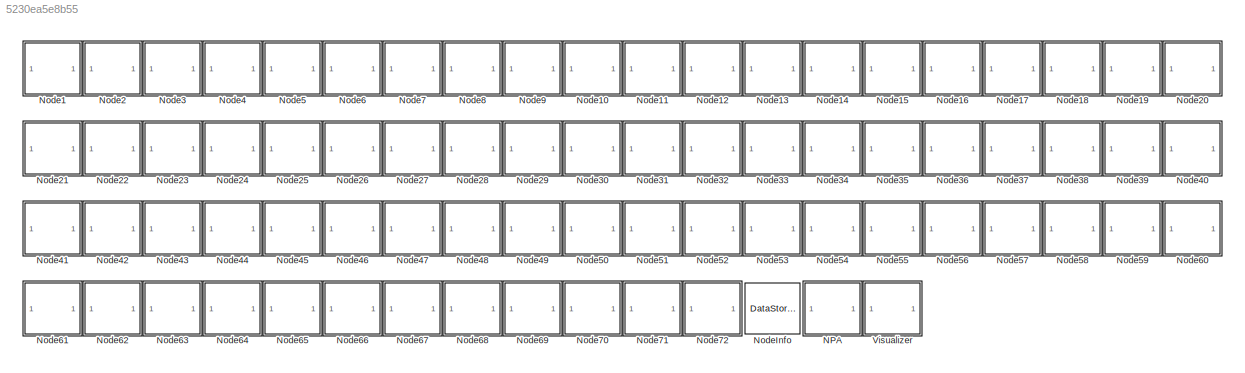
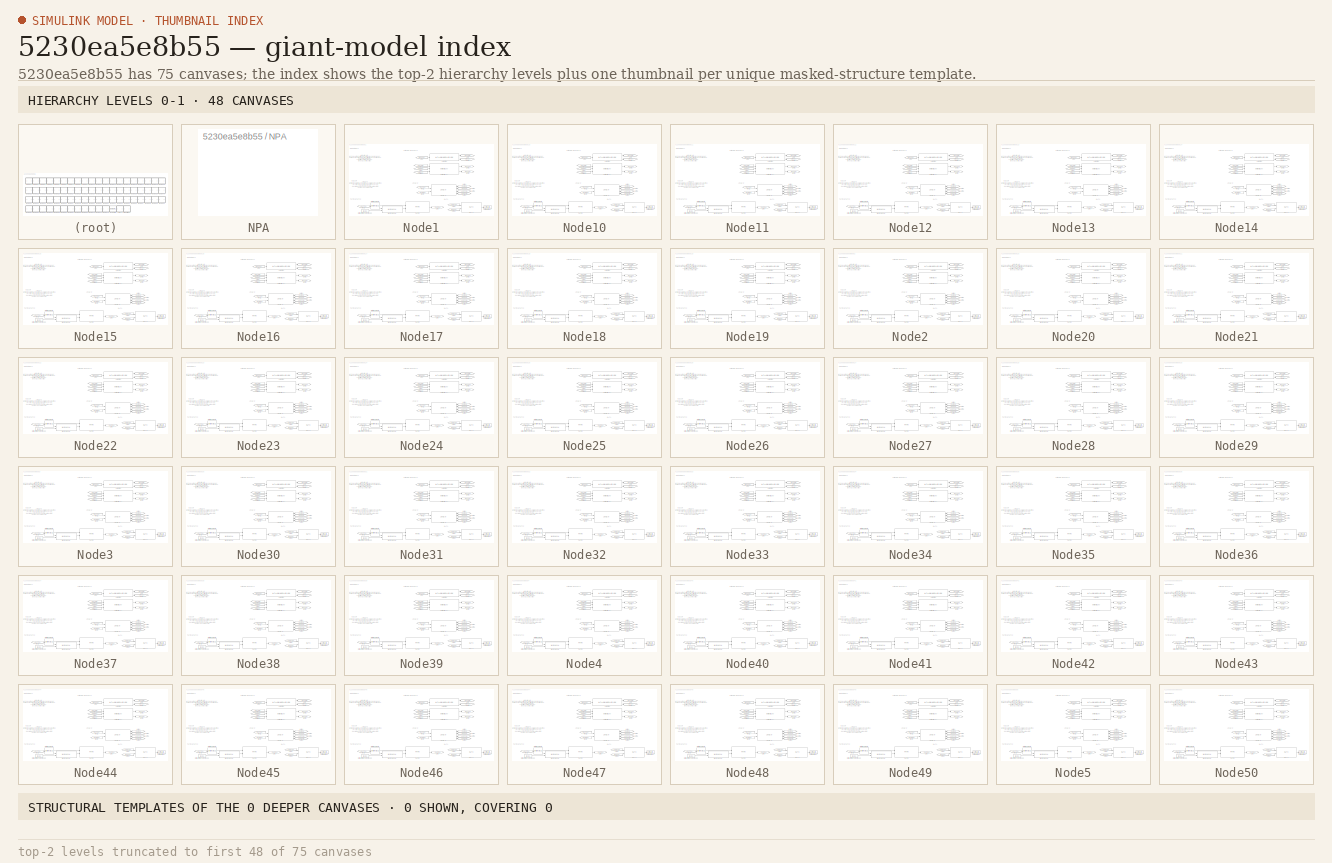
[diagram: thumbnail index - top-2 hierarchy levels (75 canvases (first 48 of 75 shown)) + 0 structural-template representatives of the remaining 0 canvases]
MODEL slx_5230ea5e8b55
KIND model
CONFIG AbsTol = auto
CONFIG EnableMultiTasking = off
CONFIG FixedStep = auto
CONFIG InitFcn = load('bleMeshBusObjects.mat');\nload('bleMeshDESNodePositions.mat');\nModelName = bdroot;\nhelperBLEMeshAssignNodeIDs(ModelName);\nNumberOfNodes = numel(helperBLEMeshGetNodeNamesList(ModelName));\n% Statistics\nopcode = 0; % For creating the table\nhelperBLEMeshUpdateStatistics(opcode);\nmeshNetworkGraph = helperBLEMeshVisualizeNetwork();\nrng('default');
CONFIG MaxStep = inf
CONFIG MinStep = auto
CONFIG PostLoadFcn = load('bleMeshBusObjects.mat');\nload('bleMeshDESNodePositions.mat');\nModelName = bdroot;\nhelperBLEMeshAssignNodeIDs(ModelName);\nNumberOfNodes = numel(helperBLEMeshGetNodeNamesList(ModelName));\n% Statistics\nopcode = 0; % For creating the table\nhelperBLEMeshUpdateStatistics(opcode);\nmeshNetworkGraph = helperBLEMeshVisualizeNetwork();
CONFIG RelTol = 1e-3
CONFIG SampleTimeConstraint = Unconstrained
CONFIG SolverName = VariableStepDiscrete
CONFIG StartFcn = if enableVisualization == 1\nmeshNetworkGraph.createNetwork();\nend
CONFIG StartTime = 0.0
CONFIG StopFcn = % Sort statisticsAtEachNode table\nlist = statisticsAtEachNode.Properties.RowNames;\nnodeNum = cellfun(@(x)sscanf(x,'Node%d'), list);\n[~,sortIdx] = sort(nodeNum);\nstatisticsAtEachNode = statisticsAtEachNode(sortIdx, :);\n\n% Fill node statisticsAtEachNode in a cell array as input to visualization object\nnodeStatistics = cell(1, NumberOfNodes);\nfor idx = 1:NumberOfNodes\n    stats = {\n        'Node Type...<+1389ch>
CONFIG StopTime = 5
BLOCK [SubSystem] NPA
  MaskHideContents = on
  Ports = []
  Priority = 100
  RequestExecContextInheritance = off
  Tag = a
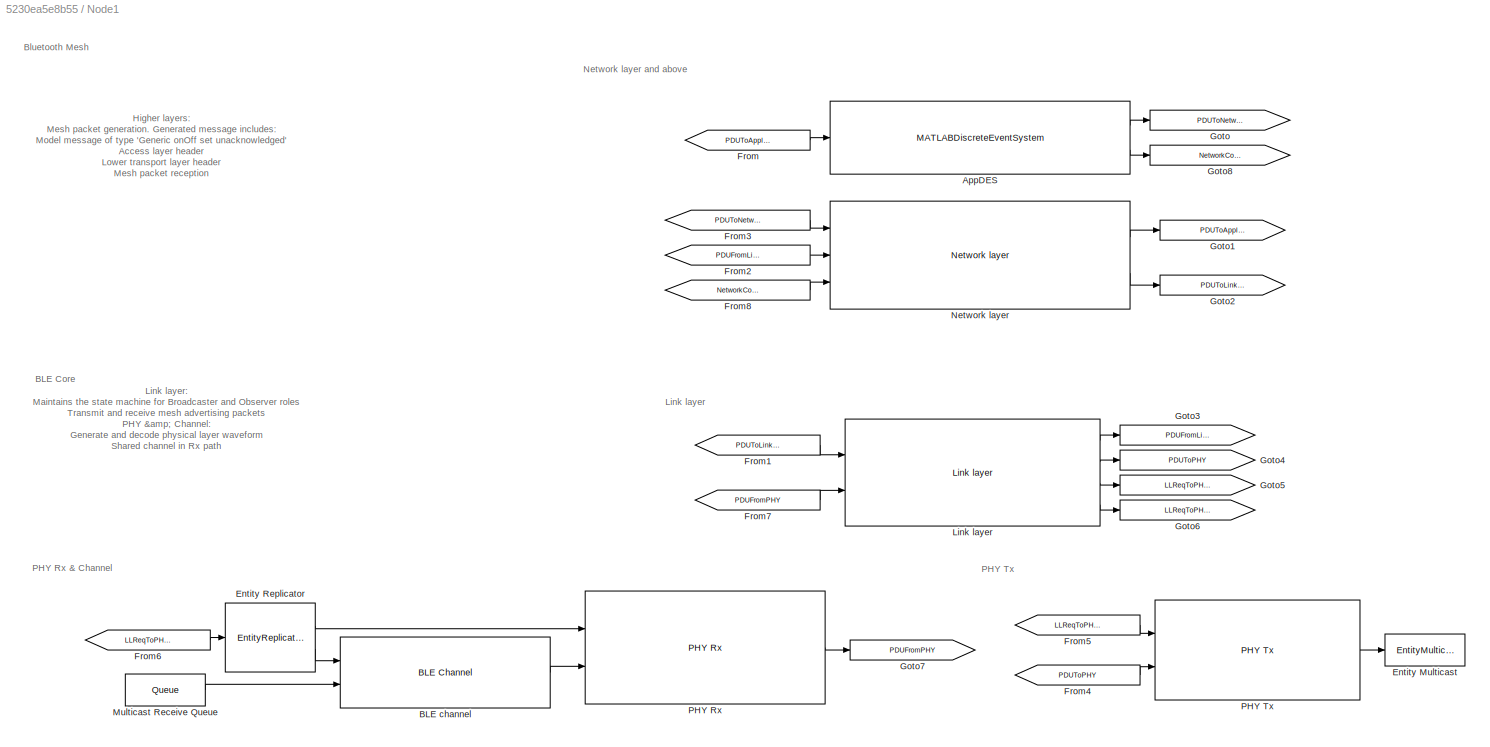
BLOCK [SubSystem] Node1
  Ports = []
  RequestExecContextInheritance = off
BLOCK [MATLABDiscreteEventSystem] Node1/AppDES
  ApplicationState = 0
  DestinationNode = 1
  InputPortMessageModes = m
  MaskDisplay = disp('AppDES');\nport_label('input',1,'transportPDUIn');\nport_label('output',1,'transportPDUOut');\nport_label('output',2,'networkConfig');
  MaskType = AppDES
  NodeID = 1
  OutputPortMessageModes = m,m
  Ports = [1, 2]
  SimulateUsing = Code generation
  SourceRate = 1
  System = AppDES
  TTL = 127
  TotalPackets = 1
BLOCK [Reference] Node1/BLE channel  REF=BLEMeshLib/BLE Channel
  Ports = [2, 1]
  SourceBlock = BLEMeshLib/BLE Channel
  SourceType = helperBLEChannelDES
BLOCK [EntityMulticast] Node1/Entity Multicast
  InputPortMessageModes = m
  MulticastTag = channel
BLOCK [EntityReplicator] Node1/Entity Replicator
  InputPortMap = u0
  InputPortMessageModes = m
  OutputPortMap = o0,o1
  OutputPortMessageModes = m,m
  Ports = [1, 2]
BLOCK [From] Node1/From
  GotoTag = PDUToApplication
BLOCK [From] Node1/From1
  GotoTag = PDUToLinkLayer
BLOCK [From] Node1/From2
  GotoTag = PDUFromLinkLayer
BLOCK [From] Node1/From3
  GotoTag = PDUToNetworkLayer
BLOCK [From] Node1/From4
  GotoTag = PDUToPHY
BLOCK [From] Node1/From5
  GotoTag = LLReqToPHYTx
BLOCK [From] Node1/From6
  GotoTag = LLReqToPHYRx
BLOCK [From] Node1/From7
  GotoTag = PDUFromPHY
BLOCK [From] Node1/From8
  GotoTag = NetworkConfig
BLOCK [Goto] Node1/Goto
  GotoTag = PDUToNetworkLayer
BLOCK [Goto] Node1/Goto1
  GotoTag = PDUToApplication
BLOCK [Goto] Node1/Goto2
  GotoTag = PDUToLinkLayer
BLOCK [Goto] Node1/Goto3
  GotoTag = PDUFromLinkLayer
BLOCK [Goto] Node1/Goto4
  GotoTag = PDUToPHY
BLOCK [Goto] Node1/Goto5
  GotoTag = LLReqToPHYTx
BLOCK [Goto] Node1/Goto6
  GotoTag = LLReqToPHYRx
BLOCK [Goto] Node1/Goto7
  GotoTag = PDUFromPHY
BLOCK [Goto] Node1/Goto8
  GotoTag = NetworkConfig
BLOCK [Reference] Node1/Link layer  REF=BLEMeshLib/Link layer
  Ports = [2, 4]
  SourceBlock = BLEMeshLib/Link layer
  SourceType = helperBLEMeshLinkLayerDES
BLOCK [Queue] Node1/Multicast Receive Queue
  EntityArrivalSource = Multicast
  MulticastTag = channel
  NameLocation = top
  OutputPortMap = o5
  OutputPortMessageModes = m
  Ports = [0, 1]
BLOCK [Reference] Node1/Network layer  REF=BLEMeshLib/Network layer
  Ports = [3, 2]
  SourceBlock = BLEMeshLib/Network layer
  SourceType = helperBLEMeshNetworkLayerDES
BLOCK [Reference] Node1/PHY Rx  REF=BLEMeshLib/PHY Rx
  Ports = [2, 1]
  SourceBlock = BLEMeshLib/PHY Rx
  SourceType = helperBLEPHYRxDES
BLOCK [Reference] Node1/PHY Tx  REF=BLEMeshLib/PHY Tx
  Ports = [2, 1]
  SourceBlock = BLEMeshLib/PHY Tx
  SourceType = helperBLEPHYTxDES
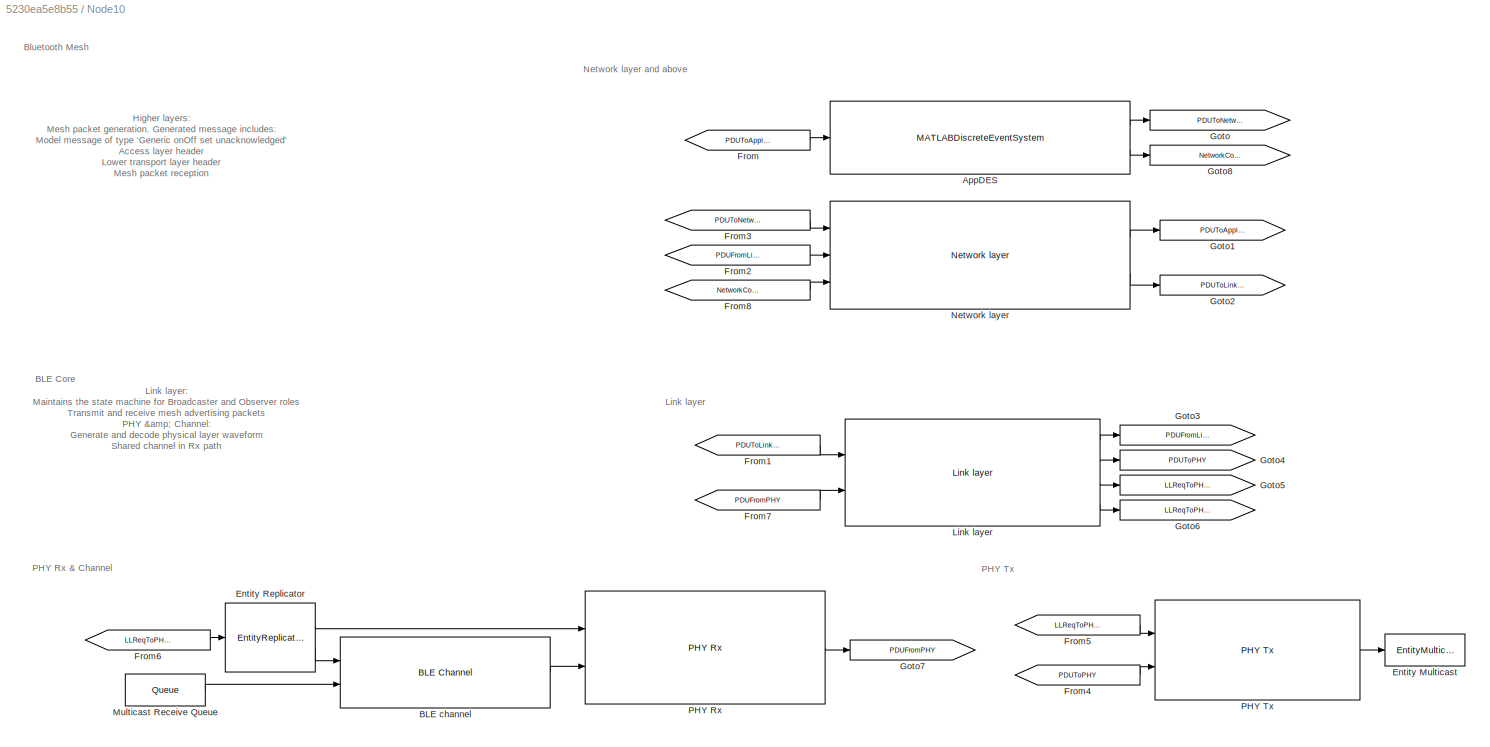
BLOCK [SubSystem] Node10
  Ports = []
  RequestExecContextInheritance = off
BLOCK [MATLABDiscreteEventSystem] Node10/AppDES
  ApplicationState = 0
  DestinationNode = 1
  InputPortMessageModes = m
  MaskDisplay = disp('AppDES');\nport_label('input',1,'transportPDUIn');\nport_label('output',1,'transportPDUOut');\nport_label('output',2,'networkConfig');
  MaskType = AppDES
  NodeID = 1
  OutputPortMessageModes = m,m
  Ports = [1, 2]
  SimulateUsing = Code generation
  SourceRate = 1
  System = AppDES
  TTL = 127
  TotalPackets = 1
BLOCK [Reference] Node10/BLE channel  REF=BLEMeshLib/BLE Channel
  Ports = [2, 1]
  SourceBlock = BLEMeshLib/BLE Channel
  SourceType = helperBLEChannelDES
BLOCK [EntityMulticast] Node10/Entity Multicast
  InputPortMessageModes = m
  MulticastTag = channel
BLOCK [EntityReplicator] Node10/Entity Replicator
  InputPortMap = u0
  InputPortMessageModes = m
  OutputPortMap = o0,o1
  OutputPortMessageModes = m,m
  Ports = [1, 2]
BLOCK [From] Node10/From
  GotoTag = PDUToApplication
BLOCK [From] Node10/From1
  GotoTag = PDUToLinkLayer
BLOCK [From] Node10/From2
  GotoTag = PDUFromLinkLayer
BLOCK [From] Node10/From3
  GotoTag = PDUToNetworkLayer
BLOCK [From] Node10/From4
  GotoTag = PDUToPHY
BLOCK [From] Node10/From5
  GotoTag = LLReqToPHYTx
BLOCK [From] Node10/From6
  GotoTag = LLReqToPHYRx
BLOCK [From] Node10/From7
  GotoTag = PDUFromPHY
BLOCK [From] Node10/From8
  GotoTag = NetworkConfig
BLOCK [Goto] Node10/Goto
  GotoTag = PDUToNetworkLayer
BLOCK [Goto] Node10/Goto1
  GotoTag = PDUToApplication
BLOCK [Goto] Node10/Goto2
  GotoTag = PDUToLinkLayer
BLOCK [Goto] Node10/Goto3
  GotoTag = PDUFromLinkLayer
BLOCK [Goto] Node10/Goto4
  GotoTag = PDUToPHY
BLOCK [Goto] Node10/Goto5
  GotoTag = LLReqToPHYTx
BLOCK [Goto] Node10/Goto6
  GotoTag = LLReqToPHYRx
BLOCK [Goto] Node10/Goto7
  GotoTag = PDUFromPHY
BLOCK [Goto] Node10/Goto8
  GotoTag = NetworkConfig
BLOCK [Reference] Node10/Link layer  REF=BLEMeshLib/Link layer
  Ports = [2, 4]
  SourceBlock = BLEMeshLib/Link layer
  SourceType = helperBLEMeshLinkLayerDES
BLOCK [Queue] Node10/Multicast Receive Queue
  EntityArrivalSource = Multicast
  MulticastTag = channel
  NameLocation = top
  OutputPortMap = o5
  OutputPortMessageModes = m
  Ports = [0, 1]
BLOCK [Reference] Node10/Network layer  REF=BLEMeshLib/Network layer
  Ports = [3, 2]
  SourceBlock = BLEMeshLib/Network layer
  SourceType = helperBLEMeshNetworkLayerDES
BLOCK [Reference] Node10/PHY Rx  REF=BLEMeshLib/PHY Rx
  Ports = [2, 1]
  SourceBlock = BLEMeshLib/PHY Rx
  SourceType = helperBLEPHYRxDES
BLOCK [Reference] Node10/PHY Tx  REF=BLEMeshLib/PHY Tx
  Ports = [2, 1]
  SourceBlock = BLEMeshLib/PHY Tx
  SourceType = helperBLEPHYTxDES
BLOCK [SubSystem] Node11
  Ports = []
  RequestExecContextInheritance = off
BLOCK [MATLABDiscreteEventSystem] Node11/AppDES
  ApplicationState = 0
  DestinationNode = 1
  InputPortMessageModes = m
  MaskDisplay = disp('AppDES');\nport_label('input',1,'transportPDUIn');\nport_label('output',1,'transportPDUOut');\nport_label('output',2,'networkConfig');
  MaskType = AppDES
  NodeID = 1
  OutputPortMessageModes = m,m
  Ports = [1, 2]
  SimulateUsing = Code generation
  SourceRate = 1
  System = AppDES
  TTL = 127
  TotalPackets = 1
BLOCK [Reference] Node11/BLE channel  REF=BLEMeshLib/BLE Channel
  Ports = [2, 1]
  SourceBlock = BLEMeshLib/BLE Channel
  SourceType = helperBLEChannelDES
BLOCK [EntityMulticast] Node11/Entity Multicast
  InputPortMessageModes = m
  MulticastTag = channel
BLOCK [EntityReplicator] Node11/Entity Replicator
  InputPortMap = u0
  InputPortMessageModes = m
  OutputPortMap = o0,o1
  OutputPortMessageModes = m,m
  Ports = [1, 2]
BLOCK [From] Node11/From
  GotoTag = PDUToApplication
BLOCK [From] Node11/From1
  GotoTag = PDUToLinkLayer
BLOCK [From] Node11/From2
  GotoTag = PDUFromLinkLayer
BLOCK [From] Node11/From3
  GotoTag = PDUToNetworkLayer
BLOCK [From] Node11/From4
  GotoTag = PDUToPHY
BLOCK [From] Node11/From5
  GotoTag = LLReqToPHYTx
BLOCK [From] Node11/From6
  GotoTag = LLReqToPHYRx
BLOCK [From] Node11/From7
  GotoTag = PDUFromPHY
BLOCK [From] Node11/From8
  GotoTag = NetworkConfig
BLOCK [Goto] Node11/Goto
  GotoTag = PDUToNetworkLayer
BLOCK [Goto] Node11/Goto1
  GotoTag = PDUToApplication
BLOCK [Goto] Node11/Goto2
  GotoTag = PDUToLinkLayer
BLOCK [Goto] Node11/Goto3
  GotoTag = PDUFromLinkLayer
BLOCK [Goto] Node11/Goto4
  GotoTag = PDUToPHY
BLOCK [Goto] Node11/Goto5
  GotoTag = LLReqToPHYTx
BLOCK [Goto] Node11/Goto6
  GotoTag = LLReqToPHYRx
BLOCK [Goto] Node11/Goto7
  GotoTag = PDUFromPHY
BLOCK [Goto] Node11/Goto8
  GotoTag = NetworkConfig
BLOCK [Reference] Node11/Link layer  REF=BLEMeshLib/Link layer
  Ports = [2, 4]
  SourceBlock = BLEMeshLib/Link layer
  SourceType = helperBLEMeshLinkLayerDES
BLOCK [Queue] Node11/Multicast Receive Queue
  EntityArrivalSource = Multicast
  MulticastTag = channel
  NameLocation = top
  OutputPortMap = o5
  OutputPortMessageModes = m
  Ports = [0, 1]
BLOCK [Reference] Node11/Network layer  REF=BLEMeshLib/Network layer
  Ports = [3, 2]
  SourceBlock = BLEMeshLib/Network layer
  SourceType = helperBLEMeshNetworkLayerDES
BLOCK [Reference] Node11/PHY Rx  REF=BLEMeshLib/PHY Rx
  Ports = [2, 1]
  SourceBlock = BLEMeshLib/PHY Rx
  SourceType = helperBLEPHYRxDES
BLOCK [Reference] Node11/PHY Tx  REF=BLEMeshLib/PHY Tx
  Ports = [2, 1]
  SourceBlock = BLEMeshLib/PHY Tx
  SourceType = helperBLEPHYTxDES
BLOCK [SubSystem] Node12
  Ports = []
  RequestExecContextInheritance = off
BLOCK [MATLABDiscreteEventSystem] Node12/AppDES
  ApplicationState = 0
  DestinationNode = 1
  InputPortMessageModes = m
  MaskDisplay = disp('AppDES');\nport_label('input',1,'transportPDUIn');\nport_label('output',1,'transportPDUOut');\nport_label('output',2,'networkConfig');
  MaskType = AppDES
  NodeID = 1
  OutputPortMessageModes = m,m
  Ports = [1, 2]
  SimulateUsing = Code generation
  SourceRate = 1
  System = AppDES
  TTL = 127
  TotalPackets = 1
BLOCK [Reference] Node12/BLE channel  REF=BLEMeshLib/BLE Channel
  Ports = [2, 1]
  SourceBlock = BLEMeshLib/BLE Channel
  SourceType = helperBLEChannelDES
BLOCK [EntityMulticast] Node12/Entity Multicast
  InputPortMessageModes = m
  MulticastTag = channel
BLOCK [EntityReplicator] Node12/Entity Replicator
  InputPortMap = u0
  InputPortMessageModes = m
  OutputPortMap = o0,o1
  OutputPortMessageModes = m,m
  Ports = [1, 2]
BLOCK [From] Node12/From
  GotoTag = PDUToApplication
BLOCK [From] Node12/From1
  GotoTag = PDUToLinkLayer
BLOCK [From] Node12/From2
  GotoTag = PDUFromLinkLayer
BLOCK [From] Node12/From3
  GotoTag = PDUToNetworkLayer
BLOCK [From] Node12/From4
  GotoTag = PDUToPHY
BLOCK [From] Node12/From5
  GotoTag = LLReqToPHYTx
BLOCK [From] Node12/From6
  GotoTag = LLReqToPHYRx
BLOCK [From] Node12/From7
  GotoTag = PDUFromPHY
BLOCK [From] Node12/From8
  GotoTag = NetworkConfig
BLOCK [Goto] Node12/Goto
  GotoTag = PDUToNetworkLayer
BLOCK [Goto] Node12/Goto1
  GotoTag = PDUToApplication
BLOCK [Goto] Node12/Goto2
  GotoTag = PDUToLinkLayer
BLOCK [Goto] Node12/Goto3
  GotoTag = PDUFromLinkLayer
BLOCK [Goto] Node12/Goto4
  GotoTag = PDUToPHY
BLOCK [Goto] Node12/Goto5
  GotoTag = LLReqToPHYTx
BLOCK [Goto] Node12/Goto6
  GotoTag = LLReqToPHYRx
BLOCK [Goto] Node12/Goto7
  GotoTag = PDUFromPHY
BLOCK [Goto] Node12/Goto8
  GotoTag = NetworkConfig
BLOCK [Reference] Node12/Link layer  REF=BLEMeshLib/Link layer
  Ports = [2, 4]
  SourceBlock = BLEMeshLib/Link layer
  SourceType = helperBLEMeshLinkLayerDES
BLOCK [Queue] Node12/Multicast Receive Queue
  EntityArrivalSource = Multicast
  MulticastTag = channel
  NameLocation = top
  OutputPortMap = o5
  OutputPortMessageModes = m
  Ports = [0, 1]
BLOCK [Reference] Node12/Network layer  REF=BLEMeshLib/Network layer
  Ports = [3, 2]
  SourceBlock = BLEMeshLib/Network layer
  SourceType = helperBLEMeshNetworkLayerDES
BLOCK [Reference] Node12/PHY Rx  REF=BLEMeshLib/PHY Rx
  Ports = [2, 1]
  SourceBlock = BLEMeshLib/PHY Rx
  SourceType = helperBLEPHYRxDES
BLOCK [Reference] Node12/PHY Tx  REF=BLEMeshLib/PHY Tx
  Ports = [2, 1]
  SourceBlock = BLEMeshLib/PHY Tx
  SourceType = helperBLEPHYTxDES
BLOCK [SubSystem] Node13
  Ports = []
  RequestExecContextInheritance = off
BLOCK [MATLABDiscreteEventSystem] Node13/AppDES
  ApplicationState = 0
  DestinationNode = 1
  InputPortMessageModes = m
  MaskDisplay = disp('AppDES');\nport_label('input',1,'transportPDUIn');\nport_label('output',1,'transportPDUOut');\nport_label('output',2,'networkConfig');
  MaskType = AppDES
  NodeID = 1
  OutputPortMessageModes = m,m
  Ports = [1, 2]
  SimulateUsing = Code generation
  SourceRate = 1
  System = AppDES
  TTL = 127
  TotalPackets = 1
BLOCK [Reference] Node13/BLE channel  REF=BLEMeshLib/BLE Channel
  Ports = [2, 1]
  SourceBlock = BLEMeshLib/BLE Channel
  SourceType = helperBLEChannelDES
BLOCK [EntityMulticast] Node13/Entity Multicast
  InputPortMessageModes = m
  MulticastTag = channel
BLOCK [EntityReplicator] Node13/Entity Replicator
  InputPortMap = u0
  InputPortMessageModes = m
  OutputPortMap = o0,o1
  OutputPortMessageModes = m,m
  Ports = [1, 2]
BLOCK [From] Node13/From
  GotoTag = PDUToApplication
BLOCK [From] Node13/From1
  GotoTag = PDUToLinkLayer
BLOCK [From] Node13/From2
  GotoTag = PDUFromLinkLayer
BLOCK [From] Node13/From3
  GotoTag = PDUToNetworkLayer
BLOCK [From] Node13/From4
  GotoTag = PDUToPHY
BLOCK [From] Node13/From5
  GotoTag = LLReqToPHYTx
BLOCK [From] Node13/From6
  GotoTag = LLReqToPHYRx
BLOCK [From] Node13/From7
  GotoTag = PDUFromPHY
BLOCK [From] Node13/From8
  GotoTag = NetworkConfig
BLOCK [Goto] Node13/Goto
  GotoTag = PDUToNetworkLayer
BLOCK [Goto] Node13/Goto1
  GotoTag = PDUToApplication
BLOCK [Goto] Node13/Goto2
  GotoTag = PDUToLinkLayer
BLOCK [Goto] Node13/Goto3
  GotoTag = PDUFromLinkLayer
BLOCK [Goto] Node13/Goto4
  GotoTag = PDUToPHY
BLOCK [Goto] Node13/Goto5
  GotoTag = LLReqToPHYTx
BLOCK [Goto] Node13/Goto6
  GotoTag = LLReqToPHYRx
BLOCK [Goto] Node13/Goto7
  GotoTag = PDUFromPHY
BLOCK [Goto] Node13/Goto8
  GotoTag = NetworkConfig
BLOCK [Reference] Node13/Link layer  REF=BLEMeshLib/Link layer
  Ports = [2, 4]
  SourceBlock = BLEMeshLib/Link layer
  SourceType = helperBLEMeshLinkLayerDES
BLOCK [Queue] Node13/Multicast Receive Queue
  EntityArrivalSource = Multicast
  MulticastTag = channel
  NameLocation = top
  OutputPortMap = o5
  OutputPortMessageModes = m
  Ports = [0, 1]
BLOCK [Reference] Node13/Network layer  REF=BLEMeshLib/Network layer
  Ports = [3, 2]
  SourceBlock = BLEMeshLib/Network layer
  SourceType = helperBLEMeshNetworkLayerDES
BLOCK [Reference] Node13/PHY Rx  REF=BLEMeshLib/PHY Rx
  Ports = [2, 1]
  SourceBlock = BLEMeshLib/PHY Rx
  SourceType = helperBLEPHYRxDES
BLOCK [Reference] Node13/PHY Tx  REF=BLEMeshLib/PHY Tx
  Ports = [2, 1]
  SourceBlock = BLEMeshLib/PHY Tx
  SourceType = helperBLEPHYTxDES
BLOCK [SubSystem] Node14
  Ports = []
  RequestExecContextInheritance = off
BLOCK [MATLABDiscreteEventSystem] Node14/AppDES
  ApplicationState = 0
  DestinationNode = 1
  InputPortMessageModes = m
  MaskDisplay = disp('AppDES');\nport_label('input',1,'transportPDUIn');\nport_label('output',1,'transportPDUOut');\nport_label('output',2,'networkConfig');
  MaskType = AppDES
  NodeID = 1
  OutputPortMessageModes = m,m
  Ports = [1, 2]
  SimulateUsing = Code generation
  SourceRate = 1
  System = AppDES
  TTL = 127
  TotalPackets = 1
BLOCK [Reference] Node14/BLE channel  REF=BLEMeshLib/BLE Channel
  Ports = [2, 1]
  SourceBlock = BLEMeshLib/BLE Channel
  SourceType = helperBLEChannelDES
BLOCK [EntityMulticast] Node14/Entity Multicast
  InputPortMessageModes = m
  MulticastTag = channel
BLOCK [EntityReplicator] Node14/Entity Replicator
  InputPortMap = u0
  InputPortMessageModes = m
  OutputPortMap = o0,o1
  OutputPortMessageModes = m,m
  Ports = [1, 2]
BLOCK [From] Node14/From
  GotoTag = PDUToApplication
BLOCK [From] Node14/From1
  GotoTag = PDUToLinkLayer
BLOCK [From] Node14/From2
  GotoTag = PDUFromLinkLayer
BLOCK [From] Node14/From3
  GotoTag = PDUToNetworkLayer
BLOCK [From] Node14/From4
  GotoTag = PDUToPHY
BLOCK [From] Node14/From5
  GotoTag = LLReqToPHYTx
BLOCK [From] Node14/From6
  GotoTag = LLReqToPHYRx
BLOCK [From] Node14/From7
  GotoTag = PDUFromPHY
BLOCK [From] Node14/From8
  GotoTag = NetworkConfig
BLOCK [Goto] Node14/Goto
  GotoTag = PDUToNetworkLayer
BLOCK [Goto] Node14/Goto1
  GotoTag = PDUToApplication
BLOCK [Goto] Node14/Goto2
  GotoTag = PDUToLinkLayer
BLOCK [Goto] Node14/Goto3
  GotoTag = PDUFromLinkLayer
BLOCK [Goto] Node14/Goto4
  GotoTag = PDUToPHY
BLOCK [Goto] Node14/Goto5
  GotoTag = LLReqToPHYTx
BLOCK [Goto] Node14/Goto6
  GotoTag = LLReqToPHYRx
BLOCK [Goto] Node14/Goto7
  GotoTag = PDUFromPHY
BLOCK [Goto] Node14/Goto8
  GotoTag = NetworkConfig
BLOCK [Reference] Node14/Link layer  REF=BLEMeshLib/Link layer
  Ports = [2, 4]
  SourceBlock = BLEMeshLib/Link layer
  SourceType = helperBLEMeshLinkLayerDES
BLOCK [Queue] Node14/Multicast Receive Queue
  EntityArrivalSource = Multicast
  MulticastTag = channel
  NameLocation = top
  OutputPortMap = o5
  OutputPortMessageModes = m
  Ports = [0, 1]
BLOCK [Reference] Node14/Network layer  REF=BLEMeshLib/Network layer
  Ports = [3, 2]
  SourceBlock = BLEMeshLib/Network layer
  SourceType = helperBLEMeshNetworkLayerDES
BLOCK [Reference] Node14/PHY Rx  REF=BLEMeshLib/PHY Rx
  Ports = [2, 1]
  SourceBlock = BLEMeshLib/PHY Rx
  SourceType = helperBLEPHYRxDES
BLOCK [Reference] Node14/PHY Tx  REF=BLEMeshLib/PHY Tx
  Ports = [2, 1]
  SourceBlock = BLEMeshLib/PHY Tx
  SourceType = helperBLEPHYTxDES
BLOCK [SubSystem] Node15
  Ports = []
  RequestExecContextInheritance = off
BLOCK [MATLABDiscreteEventSystem] Node15/AppDES
  ApplicationState = 0
  DestinationNode = 1
  InputPortMessageModes = m
  MaskDisplay = disp('AppDES');\nport_label('input',1,'transportPDUIn');\nport_label('output',1,'transportPDUOut');\nport_label('output',2,'networkConfig');
  MaskType = AppDES
  NodeID = 1
  OutputPortMessageModes = m,m
  Ports = [1, 2]
  SimulateUsing = Code generation
  SourceRate = 1
  System = AppDES
  TTL = 127
  TotalPackets = 1
BLOCK [Reference] Node15/BLE channel  REF=BLEMeshLib/BLE Channel
  Ports = [2, 1]
  SourceBlock = BLEMeshLib/BLE Channel
  SourceType = helperBLEChannelDES
BLOCK [EntityMulticast] Node15/Entity Multicast
  InputPortMessageModes = m
  MulticastTag = channel
BLOCK [EntityReplicator] Node15/Entity Replicator
  InputPortMap = u0
  InputPortMessageModes = m
  OutputPortMap = o0,o1
  OutputPortMessageModes = m,m
  Ports = [1, 2]
BLOCK [From] Node15/From
  GotoTag = PDUToApplication
BLOCK [From] Node15/From1
  GotoTag = PDUToLinkLayer
BLOCK [From] Node15/From2
  GotoTag = PDUFromLinkLayer
BLOCK [From] Node15/From3
  GotoTag = PDUToNetworkLayer
BLOCK [From] Node15/From4
  GotoTag = PDUToPHY
BLOCK [From] Node15/From5
  GotoTag = LLReqToPHYTx
BLOCK [From] Node15/From6
  GotoTag = LLReqToPHYRx
BLOCK [From] Node15/From7
  GotoTag = PDUFromPHY
BLOCK [From] Node15/From8
  GotoTag = NetworkConfig
BLOCK [Goto] Node15/Goto
  GotoTag = PDUToNetworkLayer
BLOCK [Goto] Node15/Goto1
  GotoTag = PDUToApplication
BLOCK [Goto] Node15/Goto2
  GotoTag = PDUToLinkLayer
BLOCK [Goto] Node15/Goto3
  GotoTag = PDUFromLinkLayer
BLOCK [Goto] Node15/Goto4
  GotoTag = PDUToPHY
BLOCK [Goto] Node15/Goto5
  GotoTag = LLReqToPHYTx
BLOCK [Goto] Node15/Goto6
  GotoTag = LLReqToPHYRx
BLOCK [Goto] Node15/Goto7
  GotoTag = PDUFromPHY
BLOCK [Goto] Node15/Goto8
  GotoTag = NetworkConfig
BLOCK [Reference] Node15/Link layer  REF=BLEMeshLib/Link layer
  Ports = [2, 4]
  SourceBlock = BLEMeshLib/Link layer
  SourceType = helperBLEMeshLinkLayerDES
BLOCK [Queue] Node15/Multicast Receive Queue
  EntityArrivalSource = Multicast
  MulticastTag = channel
  NameLocation = top
  OutputPortMap = o5
  OutputPortMessageModes = m
  Ports = [0, 1]
BLOCK [Reference] Node15/Network layer  REF=BLEMeshLib/Network layer
  Ports = [3, 2]
  SourceBlock = BLEMeshLib/Network layer
  SourceType = helperBLEMeshNetworkLayerDES
BLOCK [Reference] Node15/PHY Rx  REF=BLEMeshLib/PHY Rx
  Ports = [2, 1]
  SourceBlock = BLEMeshLib/PHY Rx
  SourceType = helperBLEPHYRxDES
BLOCK [Reference] Node15/PHY Tx  REF=BLEMeshLib/PHY Tx
  Ports = [2, 1]
  SourceBlock = BLEMeshLib/PHY Tx
  SourceType = helperBLEPHYTxDES
BLOCK [SubSystem] Node16
  Ports = []
  RequestExecContextInheritance = off
BLOCK [MATLABDiscreteEventSystem] Node16/AppDES
  ApplicationState = 0
  DestinationNode = 1
  InputPortMessageModes = m
  MaskDisplay = disp('AppDES');\nport_label('input',1,'transportPDUIn');\nport_label('output',1,'transportPDUOut');\nport_label('output',2,'networkConfig');
  MaskType = AppDES
  NodeID = 1
  OutputPortMessageModes = m,m
  Ports = [1, 2]
  SimulateUsing = Code generation
  SourceRate = 1
  System = AppDES
  TTL = 127
  TotalPackets = 1
BLOCK [Reference] Node16/BLE channel  REF=BLEMeshLib/BLE Channel
  Ports = [2, 1]
  SourceBlock = BLEMeshLib/BLE Channel
  SourceType = helperBLEChannelDES
BLOCK [EntityMulticast] Node16/Entity Multicast
  InputPortMessageModes = m
  MulticastTag = channel
BLOCK [EntityReplicator] Node16/Entity Replicator
  InputPortMap = u0
  InputPortMessageModes = m
  OutputPortMap = o0,o1
  OutputPortMessageModes = m,m
  Ports = [1, 2]
BLOCK [From] Node16/From
  GotoTag = PDUToApplication
BLOCK [From] Node16/From1
  GotoTag = PDUToLinkLayer
BLOCK [From] Node16/From2
  GotoTag = PDUFromLinkLayer
BLOCK [From] Node16/From3
  GotoTag = PDUToNetworkLayer
BLOCK [From] Node16/From4
  GotoTag = PDUToPHY
BLOCK [From] Node16/From5
  GotoTag = LLReqToPHYTx
BLOCK [From] Node16/From6
  GotoTag = LLReqToPHYRx
BLOCK [From] Node16/From7
  GotoTag = PDUFromPHY
BLOCK [From] Node16/From8
  GotoTag = NetworkConfig
BLOCK [Goto] Node16/Goto
  GotoTag = PDUToNetworkLayer
BLOCK [Goto] Node16/Goto1
  GotoTag = PDUToApplication
BLOCK [Goto] Node16/Goto2
  GotoTag = PDUToLinkLayer
BLOCK [Goto] Node16/Goto3
  GotoTag = PDUFromLinkLayer
BLOCK [Goto] Node16/Goto4
  GotoTag = PDUToPHY
BLOCK [Goto] Node16/Goto5
  GotoTag = LLReqToPHYTx
BLOCK [Goto] Node16/Goto6
  GotoTag = LLReqToPHYRx
BLOCK [Goto] Node16/Goto7
  GotoTag = PDUFromPHY
BLOCK [Goto] Node16/Goto8
  GotoTag = NetworkConfig
BLOCK [Reference] Node16/Link layer  REF=BLEMeshLib/Link layer
  Ports = [2, 4]
  SourceBlock = BLEMeshLib/Link layer
  SourceType = helperBLEMeshLinkLayerDES
BLOCK [Queue] Node16/Multicast Receive Queue
  EntityArrivalSource = Multicast
  MulticastTag = channel
  NameLocation = top
  OutputPortMap = o5
  OutputPortMessageModes = m
  Ports = [0, 1]
BLOCK [Reference] Node16/Network layer  REF=BLEMeshLib/Network layer
  Ports = [3, 2]
  SourceBlock = BLEMeshLib/Network layer
  SourceType = helperBLEMeshNetworkLayerDES
BLOCK [Reference] Node16/PHY Rx  REF=BLEMeshLib/PHY Rx
  Ports = [2, 1]
  SourceBlock = BLEMeshLib/PHY Rx
  SourceType = helperBLEPHYRxDES
BLOCK [Reference] Node16/PHY Tx  REF=BLEMeshLib/PHY Tx
  Ports = [2, 1]
  SourceBlock = BLEMeshLib/PHY Tx
  SourceType = helperBLEPHYTxDES
BLOCK [SubSystem] Node17
  Ports = []
  RequestExecContextInheritance = off
BLOCK [MATLABDiscreteEventSystem] Node17/AppDES
  ApplicationState = 0
  DestinationNode = 1
  InputPortMessageModes = m
  MaskDisplay = disp('AppDES');\nport_label('input',1,'transportPDUIn');\nport_label('output',1,'transportPDUOut');\nport_label('output',2,'networkConfig');
  MaskType = AppDES
  NodeID = 1
  OutputPortMessageModes = m,m
  Ports = [1, 2]
  SimulateUsing = Code generation
  SourceRate = 1
  System = AppDES
  TTL = 127
  TotalPackets = 1
BLOCK [Reference] Node17/BLE channel  REF=BLEMeshLib/BLE Channel
  Ports = [2, 1]
  SourceBlock = BLEMeshLib/BLE Channel
  SourceType = helperBLEChannelDES
BLOCK [EntityMulticast] Node17/Entity Multicast
  InputPortMessageModes = m
  MulticastTag = channel
BLOCK [EntityReplicator] Node17/Entity Replicator
  InputPortMap = u0
  InputPortMessageModes = m
  OutputPortMap = o0,o1
  OutputPortMessageModes = m,m
  Ports = [1, 2]
BLOCK [From] Node17/From
  GotoTag = PDUToApplication
BLOCK [From] Node17/From1
  GotoTag = PDUToLinkLayer
BLOCK [From] Node17/From2
  GotoTag = PDUFromLinkLayer
BLOCK [From] Node17/From3
  GotoTag = PDUToNetworkLayer
BLOCK [From] Node17/From4
  GotoTag = PDUToPHY
BLOCK [From] Node17/From5
  GotoTag = LLReqToPHYTx
BLOCK [From] Node17/From6
  GotoTag = LLReqToPHYRx
BLOCK [From] Node17/From7
  GotoTag = PDUFromPHY
BLOCK [From] Node17/From8
  GotoTag = NetworkConfig
BLOCK [Goto] Node17/Goto
  GotoTag = PDUToNetworkLayer
BLOCK [Goto] Node17/Goto1
  GotoTag = PDUToApplication
BLOCK [Goto] Node17/Goto2
  GotoTag = PDUToLinkLayer
BLOCK [Goto] Node17/Goto3
  GotoTag = PDUFromLinkLayer
BLOCK [Goto] Node17/Goto4
  GotoTag = PDUToPHY
BLOCK [Goto] Node17/Goto5
  GotoTag = LLReqToPHYTx
BLOCK [Goto] Node17/Goto6
  GotoTag = LLReqToPHYRx
BLOCK [Goto] Node17/Goto7
  GotoTag = PDUFromPHY
BLOCK [Goto] Node17/Goto8
  GotoTag = NetworkConfig
BLOCK [Reference] Node17/Link layer  REF=BLEMeshLib/Link layer
  Ports = [2, 4]
  SourceBlock = BLEMeshLib/Link layer
  SourceType = helperBLEMeshLinkLayerDES
BLOCK [Queue] Node17/Multicast Receive Queue
  EntityArrivalSource = Multicast
  MulticastTag = channel
  NameLocation = top
  OutputPortMap = o5
  OutputPortMessageModes = m
  Ports = [0, 1]
BLOCK [Reference] Node17/Network layer  REF=BLEMeshLib/Network layer
  Ports = [3, 2]
  SourceBlock = BLEMeshLib/Network layer
  SourceType = helperBLEMeshNetworkLayerDES
BLOCK [Reference] Node17/PHY Rx  REF=BLEMeshLib/PHY Rx
  Ports = [2, 1]
  SourceBlock = BLEMeshLib/PHY Rx
  SourceType = helperBLEPHYRxDES
BLOCK [Reference] Node17/PHY Tx  REF=BLEMeshLib/PHY Tx
  Ports = [2, 1]
  SourceBlock = BLEMeshLib/PHY Tx
  SourceType = helperBLEPHYTxDES
BLOCK [SubSystem] Node18
  Ports = []
  RequestExecContextInheritance = off
BLOCK [MATLABDiscreteEventSystem] Node18/AppDES
  ApplicationState = 0
  DestinationNode = 1
  InputPortMessageModes = m
  MaskDisplay = disp('AppDES');\nport_label('input',1,'transportPDUIn');\nport_label('output',1,'transportPDUOut');\nport_label('output',2,'networkConfig');
  MaskType = AppDES
  NodeID = 1
  OutputPortMessageModes = m,m
  Ports = [1, 2]
  SimulateUsing = Code generation
  SourceRate = 1
  System = AppDES
  TTL = 127
  TotalPackets = 1
BLOCK [Reference] Node18/BLE channel  REF=BLEMeshLib/BLE Channel
  Ports = [2, 1]
  SourceBlock = BLEMeshLib/BLE Channel
  SourceType = helperBLEChannelDES
BLOCK [EntityMulticast] Node18/Entity Multicast
  InputPortMessageModes = m
  MulticastTag = channel
BLOCK [EntityReplicator] Node18/Entity Replicator
  InputPortMap = u0
  InputPortMessageModes = m
  OutputPortMap = o0,o1
  OutputPortMessageModes = m,m
  Ports = [1, 2]
BLOCK [From] Node18/From
  GotoTag = PDUToApplication
BLOCK [From] Node18/From1
  GotoTag = PDUToLinkLayer
BLOCK [From] Node18/From2
  GotoTag = PDUFromLinkLayer
BLOCK [From] Node18/From3
  GotoTag = PDUToNetworkLayer
BLOCK [From] Node18/From4
  GotoTag = PDUToPHY
BLOCK [From] Node18/From5
  GotoTag = LLReqToPHYTx
BLOCK [From] Node18/From6
  GotoTag = LLReqToPHYRx
BLOCK [From] Node18/From7
  GotoTag = PDUFromPHY
BLOCK [From] Node18/From8
  GotoTag = NetworkConfig
BLOCK [Goto] Node18/Goto
  GotoTag = PDUToNetworkLayer
BLOCK [Goto] Node18/Goto1
  GotoTag = PDUToApplication
BLOCK [Goto] Node18/Goto2
  GotoTag = PDUToLinkLayer
BLOCK [Goto] Node18/Goto3
  GotoTag = PDUFromLinkLayer
BLOCK [Goto] Node18/Goto4
  GotoTag = PDUToPHY
BLOCK [Goto] Node18/Goto5
  GotoTag = LLReqToPHYTx
BLOCK [Goto] Node18/Goto6
  GotoTag = LLReqToPHYRx
BLOCK [Goto] Node18/Goto7
  GotoTag = PDUFromPHY
BLOCK [Goto] Node18/Goto8
  GotoTag = NetworkConfig
BLOCK [Reference] Node18/Link layer  REF=BLEMeshLib/Link layer
  Ports = [2, 4]
  SourceBlock = BLEMeshLib/Link layer
  SourceType = helperBLEMeshLinkLayerDES
BLOCK [Queue] Node18/Multicast Receive Queue
  EntityArrivalSource = Multicast
  MulticastTag = channel
  NameLocation = top
  OutputPortMap = o5
  OutputPortMessageModes = m
  Ports = [0, 1]
BLOCK [Reference] Node18/Network layer  REF=BLEMeshLib/Network layer
  Ports = [3, 2]
  SourceBlock = BLEMeshLib/Network layer
  SourceType = helperBLEMeshNetworkLayerDES
BLOCK [Reference] Node18/PHY Rx  REF=BLEMeshLib/PHY Rx
  Ports = [2, 1]
  SourceBlock = BLEMeshLib/PHY Rx
  SourceType = helperBLEPHYRxDES
BLOCK [Reference] Node18/PHY Tx  REF=BLEMeshLib/PHY Tx
  Ports = [2, 1]
  SourceBlock = BLEMeshLib/PHY Tx
  SourceType = helperBLEPHYTxDES
BLOCK [SubSystem] Node19
  Ports = []
  RequestExecContextInheritance = off
BLOCK [MATLABDiscreteEventSystem] Node19/AppDES
  ApplicationState = 0
  DestinationNode = 1
  InputPortMessageModes = m
  MaskDisplay = disp('AppDES');\nport_label('input',1,'transportPDUIn');\nport_label('output',1,'transportPDUOut');\nport_label('output',2,'networkConfig');
  MaskType = AppDES
  NodeID = 1
  OutputPortMessageModes = m,m
  Ports = [1, 2]
  SimulateUsing = Code generation
  SourceRate = 1
  System = AppDES
  TTL = 127
  TotalPackets = 1
BLOCK [Reference] Node19/BLE channel  REF=BLEMeshLib/BLE Channel
  Ports = [2, 1]
  SourceBlock = BLEMeshLib/BLE Channel
  SourceType = helperBLEChannelDES
BLOCK [EntityMulticast] Node19/Entity Multicast
  InputPortMessageModes = m
  MulticastTag = channel
BLOCK [EntityReplicator] Node19/Entity Replicator
  InputPortMap = u0
  InputPortMessageModes = m
  OutputPortMap = o0,o1
  OutputPortMessageModes = m,m
  Ports = [1, 2]
BLOCK [From] Node19/From
  GotoTag = PDUToApplication
BLOCK [From] Node19/From1
  GotoTag = PDUToLinkLayer
BLOCK [From] Node19/From2
  GotoTag = PDUFromLinkLayer
BLOCK [From] Node19/From3
  GotoTag = PDUToNetworkLayer
BLOCK [From] Node19/From4
  GotoTag = PDUToPHY
BLOCK [From] Node19/From5
  GotoTag = LLReqToPHYTx
BLOCK [From] Node19/From6
  GotoTag = LLReqToPHYRx
BLOCK [From] Node19/From7
  GotoTag = PDUFromPHY
BLOCK [From] Node19/From8
  GotoTag = NetworkConfig
BLOCK [Goto] Node19/Goto
  GotoTag = PDUToNetworkLayer
BLOCK [Goto] Node19/Goto1
  GotoTag = PDUToApplication
BLOCK [Goto] Node19/Goto2
  GotoTag = PDUToLinkLayer
BLOCK [Goto] Node19/Goto3
  GotoTag = PDUFromLinkLayer
BLOCK [Goto] Node19/Goto4
  GotoTag = PDUToPHY
BLOCK [Goto] Node19/Goto5
  GotoTag = LLReqToPHYTx
BLOCK [Goto] Node19/Goto6
  GotoTag = LLReqToPHYRx
BLOCK [Goto] Node19/Goto7
  GotoTag = PDUFromPHY
BLOCK [Goto] Node19/Goto8
  GotoTag = NetworkConfig
BLOCK [Reference] Node19/Link layer  REF=BLEMeshLib/Link layer
  Ports = [2, 4]
  SourceBlock = BLEMeshLib/Link layer
  SourceType = helperBLEMeshLinkLayerDES
BLOCK [Queue] Node19/Multicast Receive Queue
  EntityArrivalSource = Multicast
  MulticastTag = channel
  NameLocation = top
  OutputPortMap = o5
  OutputPortMessageModes = m
  Ports = [0, 1]
BLOCK [Reference] Node19/Network layer  REF=BLEMeshLib/Network layer
  Ports = [3, 2]
  SourceBlock = BLEMeshLib/Network layer
  SourceType = helperBLEMeshNetworkLayerDES
BLOCK [Reference] Node19/PHY Rx  REF=BLEMeshLib/PHY Rx
  Ports = [2, 1]
  SourceBlock = BLEMeshLib/PHY Rx
  SourceType = helperBLEPHYRxDES
BLOCK [Reference] Node19/PHY Tx  REF=BLEMeshLib/PHY Tx
  Ports = [2, 1]
  SourceBlock = BLEMeshLib/PHY Tx
  SourceType = helperBLEPHYTxDES
BLOCK [SubSystem] Node2
  Ports = []
  RequestExecContextInheritance = off
BLOCK [MATLABDiscreteEventSystem] Node2/AppDES
  ApplicationState = 0
  DestinationNode = 1
  InputPortMessageModes = m
  MaskDisplay = disp('AppDES');\nport_label('input',1,'transportPDUIn');\nport_label('output',1,'transportPDUOut');\nport_label('output',2,'networkConfig');
  MaskType = AppDES
  NodeID = 1
  OutputPortMessageModes = m,m
  Ports = [1, 2]
  SimulateUsing = Code generation
  SourceRate = 1
  System = AppDES
  TTL = 127
  TotalPackets = 1
BLOCK [Reference] Node2/BLE channel  REF=BLEMeshLib/BLE Channel
  Ports = [2, 1]
  SourceBlock = BLEMeshLib/BLE Channel
  SourceType = helperBLEChannelDES
BLOCK [EntityMulticast] Node2/Entity Multicast
  InputPortMessageModes = m
  MulticastTag = channel
BLOCK [EntityReplicator] Node2/Entity Replicator
  InputPortMap = u0
  InputPortMessageModes = m
  OutputPortMap = o0,o1
  OutputPortMessageModes = m,m
  Ports = [1, 2]
BLOCK [From] Node2/From
  GotoTag = PDUToApplication
BLOCK [From] Node2/From1
  GotoTag = PDUToLinkLayer
BLOCK [From] Node2/From2
  GotoTag = PDUFromLinkLayer
BLOCK [From] Node2/From3
  GotoTag = PDUToNetworkLayer
BLOCK [From] Node2/From4
  GotoTag = PDUToPHY
BLOCK [From] Node2/From5
  GotoTag = LLReqToPHYTx
BLOCK [From] Node2/From6
  GotoTag = LLReqToPHYRx
BLOCK [From] Node2/From7
  GotoTag = PDUFromPHY
BLOCK [From] Node2/From8
  GotoTag = NetworkConfig
BLOCK [Goto] Node2/Goto
  GotoTag = PDUToNetworkLayer
BLOCK [Goto] Node2/Goto1
  GotoTag = PDUToApplication
BLOCK [Goto] Node2/Goto2
  GotoTag = PDUToLinkLayer
BLOCK [Goto] Node2/Goto3
  GotoTag = PDUFromLinkLayer
BLOCK [Goto] Node2/Goto4
  GotoTag = PDUToPHY
BLOCK [Goto] Node2/Goto5
  GotoTag = LLReqToPHYTx
BLOCK [Goto] Node2/Goto6
  GotoTag = LLReqToPHYRx
BLOCK [Goto] Node2/Goto7
  GotoTag = PDUFromPHY
BLOCK [Goto] Node2/Goto8
  GotoTag = NetworkConfig
BLOCK [Reference] Node2/Link layer  REF=BLEMeshLib/Link layer
  Ports = [2, 4]
  SourceBlock = BLEMeshLib/Link layer
  SourceType = helperBLEMeshLinkLayerDES
BLOCK [Queue] Node2/Multicast Receive Queue
  EntityArrivalSource = Multicast
  MulticastTag = channel
  NameLocation = top
  OutputPortMap = o5
  OutputPortMessageModes = m
  Ports = [0, 1]
BLOCK [Reference] Node2/Network layer  REF=BLEMeshLib/Network layer
  Ports = [3, 2]
  SourceBlock = BLEMeshLib/Network layer
  SourceType = helperBLEMeshNetworkLayerDES
BLOCK [Reference] Node2/PHY Rx  REF=BLEMeshLib/PHY Rx
  Ports = [2, 1]
  SourceBlock = BLEMeshLib/PHY Rx
  SourceType = helperBLEPHYRxDES
BLOCK [Reference] Node2/PHY Tx  REF=BLEMeshLib/PHY Tx
  Ports = [2, 1]
  SourceBlock = BLEMeshLib/PHY Tx
  SourceType = helperBLEPHYTxDES
BLOCK [SubSystem] Node20
  Ports = []
  RequestExecContextInheritance = off
BLOCK [MATLABDiscreteEventSystem] Node20/AppDES
  ApplicationState = 0
  DestinationNode = 1
  InputPortMessageModes = m
  MaskDisplay = disp('AppDES');\nport_label('input',1,'transportPDUIn');\nport_label('output',1,'transportPDUOut');\nport_label('output',2,'networkConfig');
  MaskType = AppDES
  NodeID = 1
  OutputPortMessageModes = m,m
  Ports = [1, 2]
  SimulateUsing = Code generation
  SourceRate = 1
  System = AppDES
  TTL = 127
  TotalPackets = 1
BLOCK [Reference] Node20/BLE channel  REF=BLEMeshLib/BLE Channel
  Ports = [2, 1]
  SourceBlock = BLEMeshLib/BLE Channel
  SourceType = helperBLEChannelDES
BLOCK [EntityMulticast] Node20/Entity Multicast
  InputPortMessageModes = m
  MulticastTag = channel
BLOCK [EntityReplicator] Node20/Entity Replicator
  InputPortMap = u0
  InputPortMessageModes = m
  OutputPortMap = o0,o1
  OutputPortMessageModes = m,m
  Ports = [1, 2]
BLOCK [From] Node20/From
  GotoTag = PDUToApplication
BLOCK [From] Node20/From1
  GotoTag = PDUToLinkLayer
BLOCK [From] Node20/From2
  GotoTag = PDUFromLinkLayer
BLOCK [From] Node20/From3
  GotoTag = PDUToNetworkLayer
BLOCK [From] Node20/From4
  GotoTag = PDUToPHY
BLOCK [From] Node20/From5
  GotoTag = LLReqToPHYTx
BLOCK [From] Node20/From6
  GotoTag = LLReqToPHYRx
BLOCK [From] Node20/From7
  GotoTag = PDUFromPHY
BLOCK [From] Node20/From8
  GotoTag = NetworkConfig
BLOCK [Goto] Node20/Goto
  GotoTag = PDUToNetworkLayer
BLOCK [Goto] Node20/Goto1
  GotoTag = PDUToApplication
BLOCK [Goto] Node20/Goto2
  GotoTag = PDUToLinkLayer
BLOCK [Goto] Node20/Goto3
  GotoTag = PDUFromLinkLayer
BLOCK [Goto] Node20/Goto4
  GotoTag = PDUToPHY
BLOCK [Goto] Node20/Goto5
  GotoTag = LLReqToPHYTx
BLOCK [Goto] Node20/Goto6
  GotoTag = LLReqToPHYRx
BLOCK [Goto] Node20/Goto7
  GotoTag = PDUFromPHY
BLOCK [Goto] Node20/Goto8
  GotoTag = NetworkConfig
BLOCK [Reference] Node20/Link layer  REF=BLEMeshLib/Link layer
  Ports = [2, 4]
  SourceBlock = BLEMeshLib/Link layer
  SourceType = helperBLEMeshLinkLayerDES
BLOCK [Queue] Node20/Multicast Receive Queue
  EntityArrivalSource = Multicast
  MulticastTag = channel
  NameLocation = top
  OutputPortMap = o5
  OutputPortMessageModes = m
  Ports = [0, 1]
BLOCK [Reference] Node20/Network layer  REF=BLEMeshLib/Network layer
  Ports = [3, 2]
  SourceBlock = BLEMeshLib/Network layer
  SourceType = helperBLEMeshNetworkLayerDES
BLOCK [Reference] Node20/PHY Rx  REF=BLEMeshLib/PHY Rx
  Ports = [2, 1]
  SourceBlock = BLEMeshLib/PHY Rx
  SourceType = helperBLEPHYRxDES
BLOCK [Reference] Node20/PHY Tx  REF=BLEMeshLib/PHY Tx
  Ports = [2, 1]
  SourceBlock = BLEMeshLib/PHY Tx
  SourceType = helperBLEPHYTxDES
BLOCK [SubSystem] Node21
  Ports = []
  RequestExecContextInheritance = off
BLOCK [MATLABDiscreteEventSystem] Node21/AppDES
  ApplicationState = 0
  DestinationNode = 1
  InputPortMessageModes = m
  MaskDisplay = disp('AppDES');\nport_label('input',1,'transportPDUIn');\nport_label('output',1,'transportPDUOut');\nport_label('output',2,'networkConfig');
  MaskType = AppDES
  NodeID = 1
  OutputPortMessageModes = m,m
  Ports = [1, 2]
  SimulateUsing = Code generation
  SourceRate = 1
  System = AppDES
  TTL = 127
  TotalPackets = 1
BLOCK [Reference] Node21/BLE channel  REF=BLEMeshLib/BLE Channel
  Ports = [2, 1]
  SourceBlock = BLEMeshLib/BLE Channel
  SourceType = helperBLEChannelDES
BLOCK [EntityMulticast] Node21/Entity Multicast
  InputPortMessageModes = m
  MulticastTag = channel
BLOCK [EntityReplicator] Node21/Entity Replicator
  InputPortMap = u0
  InputPortMessageModes = m
  OutputPortMap = o0,o1
  OutputPortMessageModes = m,m
  Ports = [1, 2]
BLOCK [From] Node21/From
  GotoTag = PDUToApplication
BLOCK [From] Node21/From1
  GotoTag = PDUToLinkLayer
BLOCK [From] Node21/From2
  GotoTag = PDUFromLinkLayer
BLOCK [From] Node21/From3
  GotoTag = PDUToNetworkLayer
BLOCK [From] Node21/From4
  GotoTag = PDUToPHY
BLOCK [From] Node21/From5
  GotoTag = LLReqToPHYTx
BLOCK [From] Node21/From6
  GotoTag = LLReqToPHYRx
BLOCK [From] Node21/From7
  GotoTag = PDUFromPHY
BLOCK [From] Node21/From8
  GotoTag = NetworkConfig
BLOCK [Goto] Node21/Goto
  GotoTag = PDUToNetworkLayer
BLOCK [Goto] Node21/Goto1
  GotoTag = PDUToApplication
BLOCK [Goto] Node21/Goto2
  GotoTag = PDUToLinkLayer
BLOCK [Goto] Node21/Goto3
  GotoTag = PDUFromLinkLayer
BLOCK [Goto] Node21/Goto4
  GotoTag = PDUToPHY
BLOCK [Goto] Node21/Goto5
  GotoTag = LLReqToPHYTx
BLOCK [Goto] Node21/Goto6
  GotoTag = LLReqToPHYRx
BLOCK [Goto] Node21/Goto7
  GotoTag = PDUFromPHY
BLOCK [Goto] Node21/Goto8
  GotoTag = NetworkConfig
BLOCK [Reference] Node21/Link layer  REF=BLEMeshLib/Link layer
  Ports = [2, 4]
  SourceBlock = BLEMeshLib/Link layer
  SourceType = helperBLEMeshLinkLayerDES
BLOCK [Queue] Node21/Multicast Receive Queue
  EntityArrivalSource = Multicast
  MulticastTag = channel
  NameLocation = top
  OutputPortMap = o5
  OutputPortMessageModes = m
  Ports = [0, 1]
BLOCK [Reference] Node21/Network layer  REF=BLEMeshLib/Network layer
  Ports = [3, 2]
  SourceBlock = BLEMeshLib/Network layer
  SourceType = helperBLEMeshNetworkLayerDES
BLOCK [Reference] Node21/PHY Rx  REF=BLEMeshLib/PHY Rx
  Ports = [2, 1]
  SourceBlock = BLEMeshLib/PHY Rx
  SourceType = helperBLEPHYRxDES
BLOCK [Reference] Node21/PHY Tx  REF=BLEMeshLib/PHY Tx
  Ports = [2, 1]
  SourceBlock = BLEMeshLib/PHY Tx
  SourceType = helperBLEPHYTxDES
BLOCK [SubSystem] Node22
  Ports = []
  RequestExecContextInheritance = off
BLOCK [MATLABDiscreteEventSystem] Node22/AppDES
  ApplicationState = 0
  DestinationNode = 1
  InputPortMessageModes = m
  MaskDisplay = disp('AppDES');\nport_label('input',1,'transportPDUIn');\nport_label('output',1,'transportPDUOut');\nport_label('output',2,'networkConfig');
  MaskType = AppDES
  NodeID = 1
  OutputPortMessageModes = m,m
  Ports = [1, 2]
  SimulateUsing = Code generation
  SourceRate = 1
  System = AppDES
  TTL = 127
  TotalPackets = 1
BLOCK [Reference] Node22/BLE channel  REF=BLEMeshLib/BLE Channel
  Ports = [2, 1]
  SourceBlock = BLEMeshLib/BLE Channel
  SourceType = helperBLEChannelDES
BLOCK [EntityMulticast] Node22/Entity Multicast
  InputPortMessageModes = m
  MulticastTag = channel
BLOCK [EntityReplicator] Node22/Entity Replicator
  InputPortMap = u0
  InputPortMessageModes = m
  OutputPortMap = o0,o1
  OutputPortMessageModes = m,m
  Ports = [1, 2]
BLOCK [From] Node22/From
  GotoTag = PDUToApplication
BLOCK [From] Node22/From1
  GotoTag = PDUToLinkLayer
BLOCK [From] Node22/From2
  GotoTag = PDUFromLinkLayer
BLOCK [From] Node22/From3
  GotoTag = PDUToNetworkLayer
BLOCK [From] Node22/From4
  GotoTag = PDUToPHY
BLOCK [From] Node22/From5
  GotoTag = LLReqToPHYTx
BLOCK [From] Node22/From6
  GotoTag = LLReqToPHYRx
BLOCK [From] Node22/From7
  GotoTag = PDUFromPHY
BLOCK [From] Node22/From8
  GotoTag = NetworkConfig
BLOCK [Goto] Node22/Goto
  GotoTag = PDUToNetworkLayer
BLOCK [Goto] Node22/Goto1
  GotoTag = PDUToApplication
BLOCK [Goto] Node22/Goto2
  GotoTag = PDUToLinkLayer
BLOCK [Goto] Node22/Goto3
  GotoTag = PDUFromLinkLayer
BLOCK [Goto] Node22/Goto4
  GotoTag = PDUToPHY
BLOCK [Goto] Node22/Goto5
  GotoTag = LLReqToPHYTx
BLOCK [Goto] Node22/Goto6
  GotoTag = LLReqToPHYRx
BLOCK [Goto] Node22/Goto7
  GotoTag = PDUFromPHY
BLOCK [Goto] Node22/Goto8
  GotoTag = NetworkConfig
BLOCK [Reference] Node22/Link layer  REF=BLEMeshLib/Link layer
  Ports = [2, 4]
  SourceBlock = BLEMeshLib/Link layer
  SourceType = helperBLEMeshLinkLayerDES
BLOCK [Queue] Node22/Multicast Receive Queue
  EntityArrivalSource = Multicast
  MulticastTag = channel
  NameLocation = top
  OutputPortMap = o5
  OutputPortMessageModes = m
  Ports = [0, 1]
BLOCK [Reference] Node22/Network layer  REF=BLEMeshLib/Network layer
  Ports = [3, 2]
  SourceBlock = BLEMeshLib/Network layer
  SourceType = helperBLEMeshNetworkLayerDES
BLOCK [Reference] Node22/PHY Rx  REF=BLEMeshLib/PHY Rx
  Ports = [2, 1]
  SourceBlock = BLEMeshLib/PHY Rx
  SourceType = helperBLEPHYRxDES
BLOCK [Reference] Node22/PHY Tx  REF=BLEMeshLib/PHY Tx
  Ports = [2, 1]
  SourceBlock = BLEMeshLib/PHY Tx
  SourceType = helperBLEPHYTxDES
BLOCK [SubSystem] Node23
  Ports = []
  RequestExecContextInheritance = off
BLOCK [MATLABDiscreteEventSystem] Node23/AppDES
  ApplicationState = 0
  DestinationNode = 1
  InputPortMessageModes = m
  MaskDisplay = disp('AppDES');\nport_label('input',1,'transportPDUIn');\nport_label('output',1,'transportPDUOut');\nport_label('output',2,'networkConfig');
  MaskType = AppDES
  NodeID = 1
  OutputPortMessageModes = m,m
  Ports = [1, 2]
  SimulateUsing = Code generation
  SourceRate = 1
  System = AppDES
  TTL = 127
  TotalPackets = 1
BLOCK [Reference] Node23/BLE channel  REF=BLEMeshLib/BLE Channel
  Ports = [2, 1]
  SourceBlock = BLEMeshLib/BLE Channel
  SourceType = helperBLEChannelDES
BLOCK [EntityMulticast] Node23/Entity Multicast
  InputPortMessageModes = m
  MulticastTag = channel
BLOCK [EntityReplicator] Node23/Entity Replicator
  InputPortMap = u0
  InputPortMessageModes = m
  OutputPortMap = o0,o1
  OutputPortMessageModes = m,m
  Ports = [1, 2]
BLOCK [From] Node23/From
  GotoTag = PDUToApplication
BLOCK [From] Node23/From1
  GotoTag = PDUToLinkLayer
BLOCK [From] Node23/From2
  GotoTag = PDUFromLinkLayer
BLOCK [From] Node23/From3
  GotoTag = PDUToNetworkLayer
BLOCK [From] Node23/From4
  GotoTag = PDUToPHY
BLOCK [From] Node23/From5
  GotoTag = LLReqToPHYTx
BLOCK [From] Node23/From6
  GotoTag = LLReqToPHYRx
BLOCK [From] Node23/From7
  GotoTag = PDUFromPHY
BLOCK [From] Node23/From8
  GotoTag = NetworkConfig
BLOCK [Goto] Node23/Goto
  GotoTag = PDUToNetworkLayer
BLOCK [Goto] Node23/Goto1
  GotoTag = PDUToApplication
BLOCK [Goto] Node23/Goto2
  GotoTag = PDUToLinkLayer
BLOCK [Goto] Node23/Goto3
  GotoTag = PDUFromLinkLayer
BLOCK [Goto] Node23/Goto4
  GotoTag = PDUToPHY
BLOCK [Goto] Node23/Goto5
  GotoTag = LLReqToPHYTx
BLOCK [Goto] Node23/Goto6
  GotoTag = LLReqToPHYRx
BLOCK [Goto] Node23/Goto7
  GotoTag = PDUFromPHY
BLOCK [Goto] Node23/Goto8
  GotoTag = NetworkConfig
BLOCK [Reference] Node23/Link layer  REF=BLEMeshLib/Link layer
  Ports = [2, 4]
  SourceBlock = BLEMeshLib/Link layer
  SourceType = helperBLEMeshLinkLayerDES
BLOCK [Queue] Node23/Multicast Receive Queue
  EntityArrivalSource = Multicast
  MulticastTag = channel
  NameLocation = top
  OutputPortMap = o5
  OutputPortMessageModes = m
  Ports = [0, 1]
BLOCK [Reference] Node23/Network layer  REF=BLEMeshLib/Network layer
  Ports = [3, 2]
  SourceBlock = BLEMeshLib/Network layer
  SourceType = helperBLEMeshNetworkLayerDES
BLOCK [Reference] Node23/PHY Rx  REF=BLEMeshLib/PHY Rx
  Ports = [2, 1]
  SourceBlock = BLEMeshLib/PHY Rx
  SourceType = helperBLEPHYRxDES
BLOCK [Reference] Node23/PHY Tx  REF=BLEMeshLib/PHY Tx
  Ports = [2, 1]
  SourceBlock = BLEMeshLib/PHY Tx
  SourceType = helperBLEPHYTxDES
BLOCK [SubSystem] Node24
  Ports = []
  RequestExecContextInheritance = off
BLOCK [MATLABDiscreteEventSystem] Node24/AppDES
  ApplicationState = 0
  DestinationNode = 1
  InputPortMessageModes = m
  MaskDisplay = disp('AppDES');\nport_label('input',1,'transportPDUIn');\nport_label('output',1,'transportPDUOut');\nport_label('output',2,'networkConfig');
  MaskType = AppDES
  NodeID = 1
  OutputPortMessageModes = m,m
  Ports = [1, 2]
  SimulateUsing = Code generation
  SourceRate = 1
  System = AppDES
  TTL = 127
  TotalPackets = 1
BLOCK [Reference] Node24/BLE channel  REF=BLEMeshLib/BLE Channel
  Ports = [2, 1]
  SourceBlock = BLEMeshLib/BLE Channel
  SourceType = helperBLEChannelDES
BLOCK [EntityMulticast] Node24/Entity Multicast
  InputPortMessageModes = m
  MulticastTag = channel
BLOCK [EntityReplicator] Node24/Entity Replicator
  InputPortMap = u0
  InputPortMessageModes = m
  OutputPortMap = o0,o1
  OutputPortMessageModes = m,m
  Ports = [1, 2]
BLOCK [From] Node24/From
  GotoTag = PDUToApplication
BLOCK [From] Node24/From1
  GotoTag = PDUToLinkLayer
BLOCK [From] Node24/From2
  GotoTag = PDUFromLinkLayer
BLOCK [From] Node24/From3
  GotoTag = PDUToNetworkLayer
BLOCK [From] Node24/From4
  GotoTag = PDUToPHY
BLOCK [From] Node24/From5
  GotoTag = LLReqToPHYTx
BLOCK [From] Node24/From6
  GotoTag = LLReqToPHYRx
BLOCK [From] Node24/From7
  GotoTag = PDUFromPHY
BLOCK [From] Node24/From8
  GotoTag = NetworkConfig
BLOCK [Goto] Node24/Goto
  GotoTag = PDUToNetworkLayer
BLOCK [Goto] Node24/Goto1
  GotoTag = PDUToApplication
BLOCK [Goto] Node24/Goto2
  GotoTag = PDUToLinkLayer
BLOCK [Goto] Node24/Goto3
  GotoTag = PDUFromLinkLayer
BLOCK [Goto] Node24/Goto4
  GotoTag = PDUToPHY
BLOCK [Goto] Node24/Goto5
  GotoTag = LLReqToPHYTx
BLOCK [Goto] Node24/Goto6
  GotoTag = LLReqToPHYRx
BLOCK [Goto] Node24/Goto7
  GotoTag = PDUFromPHY
BLOCK [Goto] Node24/Goto8
  GotoTag = NetworkConfig
BLOCK [Reference] Node24/Link layer  REF=BLEMeshLib/Link layer
  Ports = [2, 4]
  SourceBlock = BLEMeshLib/Link layer
  SourceType = helperBLEMeshLinkLayerDES
BLOCK [Queue] Node24/Multicast Receive Queue
  EntityArrivalSource = Multicast
  MulticastTag = channel
  NameLocation = top
  OutputPortMap = o5
  OutputPortMessageModes = m
  Ports = [0, 1]
BLOCK [Reference] Node24/Network layer  REF=BLEMeshLib/Network layer
  Ports = [3, 2]
  SourceBlock = BLEMeshLib/Network layer
  SourceType = helperBLEMeshNetworkLayerDES
BLOCK [Reference] Node24/PHY Rx  REF=BLEMeshLib/PHY Rx
  Ports = [2, 1]
  SourceBlock = BLEMeshLib/PHY Rx
  SourceType = helperBLEPHYRxDES
BLOCK [Reference] Node24/PHY Tx  REF=BLEMeshLib/PHY Tx
  Ports = [2, 1]
  SourceBlock = BLEMeshLib/PHY Tx
  SourceType = helperBLEPHYTxDES
BLOCK [SubSystem] Node25
  Ports = []
  RequestExecContextInheritance = off
BLOCK [MATLABDiscreteEventSystem] Node25/AppDES
  ApplicationState = 0
  DestinationNode = 1
  InputPortMessageModes = m
  MaskDisplay = disp('AppDES');\nport_label('input',1,'transportPDUIn');\nport_label('output',1,'transportPDUOut');\nport_label('output',2,'networkConfig');
  MaskType = AppDES
  NodeID = 1
  OutputPortMessageModes = m,m
  Ports = [1, 2]
  SimulateUsing = Code generation
  SourceRate = 1
  System = AppDES
  TTL = 127
  TotalPackets = 1
BLOCK [Reference] Node25/BLE channel  REF=BLEMeshLib/BLE Channel
  Ports = [2, 1]
  SourceBlock = BLEMeshLib/BLE Channel
  SourceType = helperBLEChannelDES
BLOCK [EntityMulticast] Node25/Entity Multicast
  InputPortMessageModes = m
  MulticastTag = channel
BLOCK [EntityReplicator] Node25/Entity Replicator
  InputPortMap = u0
  InputPortMessageModes = m
  OutputPortMap = o0,o1
  OutputPortMessageModes = m,m
  Ports = [1, 2]
BLOCK [From] Node25/From
  GotoTag = PDUToApplication
BLOCK [From] Node25/From1
  GotoTag = PDUToLinkLayer
BLOCK [From] Node25/From2
  GotoTag = PDUFromLinkLayer
BLOCK [From] Node25/From3
  GotoTag = PDUToNetworkLayer
BLOCK [From] Node25/From4
  GotoTag = PDUToPHY
BLOCK [From] Node25/From5
  GotoTag = LLReqToPHYTx
BLOCK [From] Node25/From6
  GotoTag = LLReqToPHYRx
BLOCK [From] Node25/From7
  GotoTag = PDUFromPHY
BLOCK [From] Node25/From8
  GotoTag = NetworkConfig
BLOCK [Goto] Node25/Goto
  GotoTag = PDUToNetworkLayer
BLOCK [Goto] Node25/Goto1
  GotoTag = PDUToApplication
BLOCK [Goto] Node25/Goto2
  GotoTag = PDUToLinkLayer
BLOCK [Goto] Node25/Goto3
  GotoTag = PDUFromLinkLayer
BLOCK [Goto] Node25/Goto4
  GotoTag = PDUToPHY
BLOCK [Goto] Node25/Goto5
  GotoTag = LLReqToPHYTx
BLOCK [Goto] Node25/Goto6
  GotoTag = LLReqToPHYRx
BLOCK [Goto] Node25/Goto7
  GotoTag = PDUFromPHY
BLOCK [Goto] Node25/Goto8
  GotoTag = NetworkConfig
BLOCK [Reference] Node25/Link layer  REF=BLEMeshLib/Link layer
  Ports = [2, 4]
  SourceBlock = BLEMeshLib/Link layer
  SourceType = helperBLEMeshLinkLayerDES
BLOCK [Queue] Node25/Multicast Receive Queue
  EntityArrivalSource = Multicast
  MulticastTag = channel
  NameLocation = top
  OutputPortMap = o5
  OutputPortMessageModes = m
  Ports = [0, 1]
BLOCK [Reference] Node25/Network layer  REF=BLEMeshLib/Network layer
  Ports = [3, 2]
  SourceBlock = BLEMeshLib/Network layer
  SourceType = helperBLEMeshNetworkLayerDES
BLOCK [Reference] Node25/PHY Rx  REF=BLEMeshLib/PHY Rx
  Ports = [2, 1]
  SourceBlock = BLEMeshLib/PHY Rx
  SourceType = helperBLEPHYRxDES
BLOCK [Reference] Node25/PHY Tx  REF=BLEMeshLib/PHY Tx
  Ports = [2, 1]
  SourceBlock = BLEMeshLib/PHY Tx
  SourceType = helperBLEPHYTxDES
BLOCK [SubSystem] Node26
  Ports = []
  RequestExecContextInheritance = off
BLOCK [MATLABDiscreteEventSystem] Node26/AppDES
  ApplicationState = 0
  DestinationNode = 1
  InputPortMessageModes = m
  MaskDisplay = disp('AppDES');\nport_label('input',1,'transportPDUIn');\nport_label('output',1,'transportPDUOut');\nport_label('output',2,'networkConfig');
  MaskType = AppDES
  NodeID = 1
  OutputPortMessageModes = m,m
  Ports = [1, 2]
  SimulateUsing = Code generation
  SourceRate = 1
  System = AppDES
  TTL = 127
  TotalPackets = 1
BLOCK [Reference] Node26/BLE channel  REF=BLEMeshLib/BLE Channel
  Ports = [2, 1]
  SourceBlock = BLEMeshLib/BLE Channel
  SourceType = helperBLEChannelDES
BLOCK [EntityMulticast] Node26/Entity Multicast
  InputPortMessageModes = m
  MulticastTag = channel
BLOCK [EntityReplicator] Node26/Entity Replicator
  InputPortMap = u0
  InputPortMessageModes = m
  OutputPortMap = o0,o1
  OutputPortMessageModes = m,m
  Ports = [1, 2]
BLOCK [From] Node26/From
  GotoTag = PDUToApplication
BLOCK [From] Node26/From1
  GotoTag = PDUToLinkLayer
BLOCK [From] Node26/From2
  GotoTag = PDUFromLinkLayer
BLOCK [From] Node26/From3
  GotoTag = PDUToNetworkLayer
BLOCK [From] Node26/From4
  GotoTag = PDUToPHY
BLOCK [From] Node26/From5
  GotoTag = LLReqToPHYTx
BLOCK [From] Node26/From6
  GotoTag = LLReqToPHYRx
BLOCK [From] Node26/From7
  GotoTag = PDUFromPHY
BLOCK [From] Node26/From8
  GotoTag = NetworkConfig
BLOCK [Goto] Node26/Goto
  GotoTag = PDUToNetworkLayer
BLOCK [Goto] Node26/Goto1
  GotoTag = PDUToApplication
BLOCK [Goto] Node26/Goto2
  GotoTag = PDUToLinkLayer
BLOCK [Goto] Node26/Goto3
  GotoTag = PDUFromLinkLayer
BLOCK [Goto] Node26/Goto4
  GotoTag = PDUToPHY
BLOCK [Goto] Node26/Goto5
  GotoTag = LLReqToPHYTx
BLOCK [Goto] Node26/Goto6
  GotoTag = LLReqToPHYRx
BLOCK [Goto] Node26/Goto7
  GotoTag = PDUFromPHY
BLOCK [Goto] Node26/Goto8
  GotoTag = NetworkConfig
BLOCK [Reference] Node26/Link layer  REF=BLEMeshLib/Link layer
  Ports = [2, 4]
  SourceBlock = BLEMeshLib/Link layer
  SourceType = helperBLEMeshLinkLayerDES
BLOCK [Queue] Node26/Multicast Receive Queue
  EntityArrivalSource = Multicast
  MulticastTag = channel
  NameLocation = top
  OutputPortMap = o5
  OutputPortMessageModes = m
  Ports = [0, 1]
BLOCK [Reference] Node26/Network layer  REF=BLEMeshLib/Network layer
  Ports = [3, 2]
  SourceBlock = BLEMeshLib/Network layer
  SourceType = helperBLEMeshNetworkLayerDES
BLOCK [Reference] Node26/PHY Rx  REF=BLEMeshLib/PHY Rx
  Ports = [2, 1]
  SourceBlock = BLEMeshLib/PHY Rx
  SourceType = helperBLEPHYRxDES
BLOCK [Reference] Node26/PHY Tx  REF=BLEMeshLib/PHY Tx
  Ports = [2, 1]
  SourceBlock = BLEMeshLib/PHY Tx
  SourceType = helperBLEPHYTxDES
BLOCK [SubSystem] Node27
  Ports = []
  RequestExecContextInheritance = off
BLOCK [MATLABDiscreteEventSystem] Node27/AppDES
  ApplicationState = 0
  DestinationNode = 1
  InputPortMessageModes = m
  MaskDisplay = disp('AppDES');\nport_label('input',1,'transportPDUIn');\nport_label('output',1,'transportPDUOut');\nport_label('output',2,'networkConfig');
  MaskType = AppDES
  NodeID = 1
  OutputPortMessageModes = m,m
  Ports = [1, 2]
  SimulateUsing = Code generation
  SourceRate = 1
  System = AppDES
  TTL = 127
  TotalPackets = 1
BLOCK [Reference] Node27/BLE channel  REF=BLEMeshLib/BLE Channel
  Ports = [2, 1]
  SourceBlock = BLEMeshLib/BLE Channel
  SourceType = helperBLEChannelDES
BLOCK [EntityMulticast] Node27/Entity Multicast
  InputPortMessageModes = m
  MulticastTag = channel
BLOCK [EntityReplicator] Node27/Entity Replicator
  InputPortMap = u0
  InputPortMessageModes = m
  OutputPortMap = o0,o1
  OutputPortMessageModes = m,m
  Ports = [1, 2]
BLOCK [From] Node27/From
  GotoTag = PDUToApplication
BLOCK [From] Node27/From1
  GotoTag = PDUToLinkLayer
BLOCK [From] Node27/From2
  GotoTag = PDUFromLinkLayer
BLOCK [From] Node27/From3
  GotoTag = PDUToNetworkLayer
BLOCK [From] Node27/From4
  GotoTag = PDUToPHY
BLOCK [From] Node27/From5
  GotoTag = LLReqToPHYTx
BLOCK [From] Node27/From6
  GotoTag = LLReqToPHYRx
BLOCK [From] Node27/From7
  GotoTag = PDUFromPHY
BLOCK [From] Node27/From8
  GotoTag = NetworkConfig
BLOCK [Goto] Node27/Goto
  GotoTag = PDUToNetworkLayer
BLOCK [Goto] Node27/Goto1
  GotoTag = PDUToApplication
BLOCK [Goto] Node27/Goto2
  GotoTag = PDUToLinkLayer
BLOCK [Goto] Node27/Goto3
  GotoTag = PDUFromLinkLayer
BLOCK [Goto] Node27/Goto4
  GotoTag = PDUToPHY
BLOCK [Goto] Node27/Goto5
  GotoTag = LLReqToPHYTx
BLOCK [Goto] Node27/Goto6
  GotoTag = LLReqToPHYRx
BLOCK [Goto] Node27/Goto7
  GotoTag = PDUFromPHY
BLOCK [Goto] Node27/Goto8
  GotoTag = NetworkConfig
BLOCK [Reference] Node27/Link layer  REF=BLEMeshLib/Link layer
  Ports = [2, 4]
  SourceBlock = BLEMeshLib/Link layer
  SourceType = helperBLEMeshLinkLayerDES
BLOCK [Queue] Node27/Multicast Receive Queue
  EntityArrivalSource = Multicast
  MulticastTag = channel
  NameLocation = top
  OutputPortMap = o5
  OutputPortMessageModes = m
  Ports = [0, 1]
BLOCK [Reference] Node27/Network layer  REF=BLEMeshLib/Network layer
  Ports = [3, 2]
  SourceBlock = BLEMeshLib/Network layer
  SourceType = helperBLEMeshNetworkLayerDES
BLOCK [Reference] Node27/PHY Rx  REF=BLEMeshLib/PHY Rx
  Ports = [2, 1]
  SourceBlock = BLEMeshLib/PHY Rx
  SourceType = helperBLEPHYRxDES
BLOCK [Reference] Node27/PHY Tx  REF=BLEMeshLib/PHY Tx
  Ports = [2, 1]
  SourceBlock = BLEMeshLib/PHY Tx
  SourceType = helperBLEPHYTxDES
BLOCK [SubSystem] Node28
  Ports = []
  RequestExecContextInheritance = off
BLOCK [MATLABDiscreteEventSystem] Node28/AppDES
  ApplicationState = 0
  DestinationNode = 1
  InputPortMessageModes = m
  MaskDisplay = disp('AppDES');\nport_label('input',1,'transportPDUIn');\nport_label('output',1,'transportPDUOut');\nport_label('output',2,'networkConfig');
  MaskType = AppDES
  NodeID = 1
  OutputPortMessageModes = m,m
  Ports = [1, 2]
  SimulateUsing = Code generation
  SourceRate = 1
  System = AppDES
  TTL = 127
  TotalPackets = 1
BLOCK [Reference] Node28/BLE channel  REF=BLEMeshLib/BLE Channel
  Ports = [2, 1]
  SourceBlock = BLEMeshLib/BLE Channel
  SourceType = helperBLEChannelDES
BLOCK [EntityMulticast] Node28/Entity Multicast
  InputPortMessageModes = m
  MulticastTag = channel
BLOCK [EntityReplicator] Node28/Entity Replicator
  InputPortMap = u0
  InputPortMessageModes = m
  OutputPortMap = o0,o1
  OutputPortMessageModes = m,m
  Ports = [1, 2]
BLOCK [From] Node28/From
  GotoTag = PDUToApplication
BLOCK [From] Node28/From1
  GotoTag = PDUToLinkLayer
BLOCK [From] Node28/From2
  GotoTag = PDUFromLinkLayer
BLOCK [From] Node28/From3
  GotoTag = PDUToNetworkLayer
BLOCK [From] Node28/From4
  GotoTag = PDUToPHY
BLOCK [From] Node28/From5
  GotoTag = LLReqToPHYTx
BLOCK [From] Node28/From6
  GotoTag = LLReqToPHYRx
BLOCK [From] Node28/From7
  GotoTag = PDUFromPHY
BLOCK [From] Node28/From8
  GotoTag = NetworkConfig
BLOCK [Goto] Node28/Goto
  GotoTag = PDUToNetworkLayer
BLOCK [Goto] Node28/Goto1
  GotoTag = PDUToApplication
BLOCK [Goto] Node28/Goto2
  GotoTag = PDUToLinkLayer
BLOCK [Goto] Node28/Goto3
  GotoTag = PDUFromLinkLayer
BLOCK [Goto] Node28/Goto4
  GotoTag = PDUToPHY
BLOCK [Goto] Node28/Goto5
  GotoTag = LLReqToPHYTx
BLOCK [Goto] Node28/Goto6
  GotoTag = LLReqToPHYRx
BLOCK [Goto] Node28/Goto7
  GotoTag = PDUFromPHY
BLOCK [Goto] Node28/Goto8
  GotoTag = NetworkConfig
BLOCK [Reference] Node28/Link layer  REF=BLEMeshLib/Link layer
  Ports = [2, 4]
  SourceBlock = BLEMeshLib/Link layer
  SourceType = helperBLEMeshLinkLayerDES
BLOCK [Queue] Node28/Multicast Receive Queue
  EntityArrivalSource = Multicast
  MulticastTag = channel
  NameLocation = top
  OutputPortMap = o5
  OutputPortMessageModes = m
  Ports = [0, 1]
BLOCK [Reference] Node28/Network layer  REF=BLEMeshLib/Network layer
  Ports = [3, 2]
  SourceBlock = BLEMeshLib/Network layer
  SourceType = helperBLEMeshNetworkLayerDES
BLOCK [Reference] Node28/PHY Rx  REF=BLEMeshLib/PHY Rx
  Ports = [2, 1]
  SourceBlock = BLEMeshLib/PHY Rx
  SourceType = helperBLEPHYRxDES
BLOCK [Reference] Node28/PHY Tx  REF=BLEMeshLib/PHY Tx
  Ports = [2, 1]
  SourceBlock = BLEMeshLib/PHY Tx
  SourceType = helperBLEPHYTxDES
BLOCK [SubSystem] Node29
  Ports = []
  RequestExecContextInheritance = off
BLOCK [MATLABDiscreteEventSystem] Node29/AppDES
  ApplicationState = 0
  DestinationNode = 1
  InputPortMessageModes = m
  MaskDisplay = disp('AppDES');\nport_label('input',1,'transportPDUIn');\nport_label('output',1,'transportPDUOut');\nport_label('output',2,'networkConfig');
  MaskType = AppDES
  NodeID = 1
  OutputPortMessageModes = m,m
  Ports = [1, 2]
  SimulateUsing = Code generation
  SourceRate = 1
  System = AppDES
  TTL = 127
  TotalPackets = 1
BLOCK [Reference] Node29/BLE channel  REF=BLEMeshLib/BLE Channel
  Ports = [2, 1]
  SourceBlock = BLEMeshLib/BLE Channel
  SourceType = helperBLEChannelDES
BLOCK [EntityMulticast] Node29/Entity Multicast
  InputPortMessageModes = m
  MulticastTag = channel
BLOCK [EntityReplicator] Node29/Entity Replicator
  InputPortMap = u0
  InputPortMessageModes = m
  OutputPortMap = o0,o1
  OutputPortMessageModes = m,m
  Ports = [1, 2]
BLOCK [From] Node29/From
  GotoTag = PDUToApplication
BLOCK [From] Node29/From1
  GotoTag = PDUToLinkLayer
BLOCK [From] Node29/From2
  GotoTag = PDUFromLinkLayer
BLOCK [From] Node29/From3
  GotoTag = PDUToNetworkLayer
BLOCK [From] Node29/From4
  GotoTag = PDUToPHY
BLOCK [From] Node29/From5
  GotoTag = LLReqToPHYTx
BLOCK [From] Node29/From6
  GotoTag = LLReqToPHYRx
BLOCK [From] Node29/From7
  GotoTag = PDUFromPHY
BLOCK [From] Node29/From8
  GotoTag = NetworkConfig
BLOCK [Goto] Node29/Goto
  GotoTag = PDUToNetworkLayer
BLOCK [Goto] Node29/Goto1
  GotoTag = PDUToApplication
BLOCK [Goto] Node29/Goto2
  GotoTag = PDUToLinkLayer
BLOCK [Goto] Node29/Goto3
  GotoTag = PDUFromLinkLayer
BLOCK [Goto] Node29/Goto4
  GotoTag = PDUToPHY
BLOCK [Goto] Node29/Goto5
  GotoTag = LLReqToPHYTx
BLOCK [Goto] Node29/Goto6
  GotoTag = LLReqToPHYRx
BLOCK [Goto] Node29/Goto7
  GotoTag = PDUFromPHY
BLOCK [Goto] Node29/Goto8
  GotoTag = NetworkConfig
BLOCK [Reference] Node29/Link layer  REF=BLEMeshLib/Link layer
  Ports = [2, 4]
  SourceBlock = BLEMeshLib/Link layer
  SourceType = helperBLEMeshLinkLayerDES
BLOCK [Queue] Node29/Multicast Receive Queue
  EntityArrivalSource = Multicast
  MulticastTag = channel
  NameLocation = top
  OutputPortMap = o5
  OutputPortMessageModes = m
  Ports = [0, 1]
BLOCK [Reference] Node29/Network layer  REF=BLEMeshLib/Network layer
  Ports = [3, 2]
  SourceBlock = BLEMeshLib/Network layer
  SourceType = helperBLEMeshNetworkLayerDES
BLOCK [Reference] Node29/PHY Rx  REF=BLEMeshLib/PHY Rx
  Ports = [2, 1]
  SourceBlock = BLEMeshLib/PHY Rx
  SourceType = helperBLEPHYRxDES
BLOCK [Reference] Node29/PHY Tx  REF=BLEMeshLib/PHY Tx
  Ports = [2, 1]
  SourceBlock = BLEMeshLib/PHY Tx
  SourceType = helperBLEPHYTxDES
BLOCK [SubSystem] Node3
  Ports = []
  RequestExecContextInheritance = off
BLOCK [MATLABDiscreteEventSystem] Node3/AppDES
  ApplicationState = 0
  DestinationNode = 1
  InputPortMessageModes = m
  MaskDisplay = disp('AppDES');\nport_label('input',1,'transportPDUIn');\nport_label('output',1,'transportPDUOut');\nport_label('output',2,'networkConfig');
  MaskType = AppDES
  NodeID = 1
  OutputPortMessageModes = m,m
  Ports = [1, 2]
  SimulateUsing = Code generation
  SourceRate = 1
  System = AppDES
  TTL = 127
  TotalPackets = 1
BLOCK [Reference] Node3/BLE channel  REF=BLEMeshLib/BLE Channel
  Ports = [2, 1]
  SourceBlock = BLEMeshLib/BLE Channel
  SourceType = helperBLEChannelDES
BLOCK [EntityMulticast] Node3/Entity Multicast
  InputPortMessageModes = m
  MulticastTag = channel
BLOCK [EntityReplicator] Node3/Entity Replicator
  InputPortMap = u0
  InputPortMessageModes = m
  OutputPortMap = o0,o1
  OutputPortMessageModes = m,m
  Ports = [1, 2]
BLOCK [From] Node3/From
  GotoTag = PDUToApplication
BLOCK [From] Node3/From1
  GotoTag = PDUToLinkLayer
BLOCK [From] Node3/From2
  GotoTag = PDUFromLinkLayer
BLOCK [From] Node3/From3
  GotoTag = PDUToNetworkLayer
BLOCK [From] Node3/From4
  GotoTag = PDUToPHY
BLOCK [From] Node3/From5
  GotoTag = LLReqToPHYTx
BLOCK [From] Node3/From6
  GotoTag = LLReqToPHYRx
BLOCK [From] Node3/From7
  GotoTag = PDUFromPHY
BLOCK [From] Node3/From8
  GotoTag = NetworkConfig
BLOCK [Goto] Node3/Goto
  GotoTag = PDUToNetworkLayer
BLOCK [Goto] Node3/Goto1
  GotoTag = PDUToApplication
BLOCK [Goto] Node3/Goto2
  GotoTag = PDUToLinkLayer
BLOCK [Goto] Node3/Goto3
  GotoTag = PDUFromLinkLayer
BLOCK [Goto] Node3/Goto4
  GotoTag = PDUToPHY
BLOCK [Goto] Node3/Goto5
  GotoTag = LLReqToPHYTx
BLOCK [Goto] Node3/Goto6
  GotoTag = LLReqToPHYRx
BLOCK [Goto] Node3/Goto7
  GotoTag = PDUFromPHY
BLOCK [Goto] Node3/Goto8
  GotoTag = NetworkConfig
BLOCK [Reference] Node3/Link layer  REF=BLEMeshLib/Link layer
  Ports = [2, 4]
  SourceBlock = BLEMeshLib/Link layer
  SourceType = helperBLEMeshLinkLayerDES
BLOCK [Queue] Node3/Multicast Receive Queue
  EntityArrivalSource = Multicast
  MulticastTag = channel
  NameLocation = top
  OutputPortMap = o5
  OutputPortMessageModes = m
  Ports = [0, 1]
BLOCK [Reference] Node3/Network layer  REF=BLEMeshLib/Network layer
  Ports = [3, 2]
  SourceBlock = BLEMeshLib/Network layer
  SourceType = helperBLEMeshNetworkLayerDES
BLOCK [Reference] Node3/PHY Rx  REF=BLEMeshLib/PHY Rx
  Ports = [2, 1]
  SourceBlock = BLEMeshLib/PHY Rx
  SourceType = helperBLEPHYRxDES
BLOCK [Reference] Node3/PHY Tx  REF=BLEMeshLib/PHY Tx
  Ports = [2, 1]
  SourceBlock = BLEMeshLib/PHY Tx
  SourceType = helperBLEPHYTxDES
BLOCK [SubSystem] Node30
  Ports = []
  RequestExecContextInheritance = off
BLOCK [MATLABDiscreteEventSystem] Node30/AppDES
  ApplicationState = 0
  DestinationNode = 1
  InputPortMessageModes = m
  MaskDisplay = disp('AppDES');\nport_label('input',1,'transportPDUIn');\nport_label('output',1,'transportPDUOut');\nport_label('output',2,'networkConfig');
  MaskType = AppDES
  NodeID = 1
  OutputPortMessageModes = m,m
  Ports = [1, 2]
  SimulateUsing = Code generation
  SourceRate = 1
  System = AppDES
  TTL = 127
  TotalPackets = 1
BLOCK [Reference] Node30/BLE channel  REF=BLEMeshLib/BLE Channel
  Ports = [2, 1]
  SourceBlock = BLEMeshLib/BLE Channel
  SourceType = helperBLEChannelDES
BLOCK [EntityMulticast] Node30/Entity Multicast
  InputPortMessageModes = m
  MulticastTag = channel
BLOCK [EntityReplicator] Node30/Entity Replicator
  InputPortMap = u0
  InputPortMessageModes = m
  OutputPortMap = o0,o1
  OutputPortMessageModes = m,m
  Ports = [1, 2]
BLOCK [From] Node30/From
  GotoTag = PDUToApplication
BLOCK [From] Node30/From1
  GotoTag = PDUToLinkLayer
BLOCK [From] Node30/From2
  GotoTag = PDUFromLinkLayer
BLOCK [From] Node30/From3
  GotoTag = PDUToNetworkLayer
BLOCK [From] Node30/From4
  GotoTag = PDUToPHY
BLOCK [From] Node30/From5
  GotoTag = LLReqToPHYTx
BLOCK [From] Node30/From6
  GotoTag = LLReqToPHYRx
BLOCK [From] Node30/From7
  GotoTag = PDUFromPHY
BLOCK [From] Node30/From8
  GotoTag = NetworkConfig
BLOCK [Goto] Node30/Goto
  GotoTag = PDUToNetworkLayer
BLOCK [Goto] Node30/Goto1
  GotoTag = PDUToApplication
BLOCK [Goto] Node30/Goto2
  GotoTag = PDUToLinkLayer
BLOCK [Goto] Node30/Goto3
  GotoTag = PDUFromLinkLayer
BLOCK [Goto] Node30/Goto4
  GotoTag = PDUToPHY
BLOCK [Goto] Node30/Goto5
  GotoTag = LLReqToPHYTx
BLOCK [Goto] Node30/Goto6
  GotoTag = LLReqToPHYRx
BLOCK [Goto] Node30/Goto7
  GotoTag = PDUFromPHY
BLOCK [Goto] Node30/Goto8
  GotoTag = NetworkConfig
BLOCK [Reference] Node30/Link layer  REF=BLEMeshLib/Link layer
  Ports = [2, 4]
  SourceBlock = BLEMeshLib/Link layer
  SourceType = helperBLEMeshLinkLayerDES
BLOCK [Queue] Node30/Multicast Receive Queue
  EntityArrivalSource = Multicast
  MulticastTag = channel
  NameLocation = top
  OutputPortMap = o5
  OutputPortMessageModes = m
  Ports = [0, 1]
BLOCK [Reference] Node30/Network layer  REF=BLEMeshLib/Network layer
  Ports = [3, 2]
  SourceBlock = BLEMeshLib/Network layer
  SourceType = helperBLEMeshNetworkLayerDES
BLOCK [Reference] Node30/PHY Rx  REF=BLEMeshLib/PHY Rx
  Ports = [2, 1]
  SourceBlock = BLEMeshLib/PHY Rx
  SourceType = helperBLEPHYRxDES
BLOCK [Reference] Node30/PHY Tx  REF=BLEMeshLib/PHY Tx
  Ports = [2, 1]
  SourceBlock = BLEMeshLib/PHY Tx
  SourceType = helperBLEPHYTxDES
BLOCK [SubSystem] Node31
  Ports = []
  RequestExecContextInheritance = off
BLOCK [MATLABDiscreteEventSystem] Node31/AppDES
  ApplicationState = 0
  DestinationNode = 1
  InputPortMessageModes = m
  MaskDisplay = disp('AppDES');\nport_label('input',1,'transportPDUIn');\nport_label('output',1,'transportPDUOut');\nport_label('output',2,'networkConfig');
  MaskType = AppDES
  NodeID = 1
  OutputPortMessageModes = m,m
  Ports = [1, 2]
  SimulateUsing = Code generation
  SourceRate = 1
  System = AppDES
  TTL = 127
  TotalPackets = 1
BLOCK [Reference] Node31/BLE channel  REF=BLEMeshLib/BLE Channel
  Ports = [2, 1]
  SourceBlock = BLEMeshLib/BLE Channel
  SourceType = helperBLEChannelDES
BLOCK [EntityMulticast] Node31/Entity Multicast
  InputPortMessageModes = m
  MulticastTag = channel
BLOCK [EntityReplicator] Node31/Entity Replicator
  InputPortMap = u0
  InputPortMessageModes = m
  OutputPortMap = o0,o1
  OutputPortMessageModes = m,m
  Ports = [1, 2]
BLOCK [From] Node31/From
  GotoTag = PDUToApplication
BLOCK [From] Node31/From1
  GotoTag = PDUToLinkLayer
BLOCK [From] Node31/From2
  GotoTag = PDUFromLinkLayer
BLOCK [From] Node31/From3
  GotoTag = PDUToNetworkLayer
BLOCK [From] Node31/From4
  GotoTag = PDUToPHY
BLOCK [From] Node31/From5
  GotoTag = LLReqToPHYTx
BLOCK [From] Node31/From6
  GotoTag = LLReqToPHYRx
BLOCK [From] Node31/From7
  GotoTag = PDUFromPHY
BLOCK [From] Node31/From8
  GotoTag = NetworkConfig
BLOCK [Goto] Node31/Goto
  GotoTag = PDUToNetworkLayer
BLOCK [Goto] Node31/Goto1
  GotoTag = PDUToApplication
BLOCK [Goto] Node31/Goto2
  GotoTag = PDUToLinkLayer
BLOCK [Goto] Node31/Goto3
  GotoTag = PDUFromLinkLayer
BLOCK [Goto] Node31/Goto4
  GotoTag = PDUToPHY
BLOCK [Goto] Node31/Goto5
  GotoTag = LLReqToPHYTx
BLOCK [Goto] Node31/Goto6
  GotoTag = LLReqToPHYRx
BLOCK [Goto] Node31/Goto7
  GotoTag = PDUFromPHY
BLOCK [Goto] Node31/Goto8
  GotoTag = NetworkConfig
BLOCK [Reference] Node31/Link layer  REF=BLEMeshLib/Link layer
  Ports = [2, 4]
  SourceBlock = BLEMeshLib/Link layer
  SourceType = helperBLEMeshLinkLayerDES
BLOCK [Queue] Node31/Multicast Receive Queue
  EntityArrivalSource = Multicast
  MulticastTag = channel
  NameLocation = top
  OutputPortMap = o5
  OutputPortMessageModes = m
  Ports = [0, 1]
BLOCK [Reference] Node31/Network layer  REF=BLEMeshLib/Network layer
  Ports = [3, 2]
  SourceBlock = BLEMeshLib/Network layer
  SourceType = helperBLEMeshNetworkLayerDES
BLOCK [Reference] Node31/PHY Rx  REF=BLEMeshLib/PHY Rx
  Ports = [2, 1]
  SourceBlock = BLEMeshLib/PHY Rx
  SourceType = helperBLEPHYRxDES
BLOCK [Reference] Node31/PHY Tx  REF=BLEMeshLib/PHY Tx
  Ports = [2, 1]
  SourceBlock = BLEMeshLib/PHY Tx
  SourceType = helperBLEPHYTxDES
BLOCK [SubSystem] Node32
  Ports = []
  RequestExecContextInheritance = off
BLOCK [MATLABDiscreteEventSystem] Node32/AppDES
  ApplicationState = 0
  DestinationNode = 1
  InputPortMessageModes = m
  MaskDisplay = disp('AppDES');\nport_label('input',1,'transportPDUIn');\nport_label('output',1,'transportPDUOut');\nport_label('output',2,'networkConfig');
  MaskType = AppDES
  NodeID = 1
  OutputPortMessageModes = m,m
  Ports = [1, 2]
  SimulateUsing = Code generation
  SourceRate = 1
  System = AppDES
  TTL = 127
  TotalPackets = 1
BLOCK [Reference] Node32/BLE channel  REF=BLEMeshLib/BLE Channel
  Ports = [2, 1]
  SourceBlock = BLEMeshLib/BLE Channel
  SourceType = helperBLEChannelDES
BLOCK [EntityMulticast] Node32/Entity Multicast
  InputPortMessageModes = m
  MulticastTag = channel
BLOCK [EntityReplicator] Node32/Entity Replicator
  InputPortMap = u0
  InputPortMessageModes = m
  OutputPortMap = o0,o1
  OutputPortMessageModes = m,m
  Ports = [1, 2]
BLOCK [From] Node32/From
  GotoTag = PDUToApplication
BLOCK [From] Node32/From1
  GotoTag = PDUToLinkLayer
BLOCK [From] Node32/From2
  GotoTag = PDUFromLinkLayer
BLOCK [From] Node32/From3
  GotoTag = PDUToNetworkLayer
BLOCK [From] Node32/From4
  GotoTag = PDUToPHY
BLOCK [From] Node32/From5
  GotoTag = LLReqToPHYTx
BLOCK [From] Node32/From6
  GotoTag = LLReqToPHYRx
BLOCK [From] Node32/From7
  GotoTag = PDUFromPHY
BLOCK [From] Node32/From8
  GotoTag = NetworkConfig
BLOCK [Goto] Node32/Goto
  GotoTag = PDUToNetworkLayer
BLOCK [Goto] Node32/Goto1
  GotoTag = PDUToApplication
BLOCK [Goto] Node32/Goto2
  GotoTag = PDUToLinkLayer
BLOCK [Goto] Node32/Goto3
  GotoTag = PDUFromLinkLayer
BLOCK [Goto] Node32/Goto4
  GotoTag = PDUToPHY
BLOCK [Goto] Node32/Goto5
  GotoTag = LLReqToPHYTx
BLOCK [Goto] Node32/Goto6
  GotoTag = LLReqToPHYRx
BLOCK [Goto] Node32/Goto7
  GotoTag = PDUFromPHY
BLOCK [Goto] Node32/Goto8
  GotoTag = NetworkConfig
BLOCK [Reference] Node32/Link layer  REF=BLEMeshLib/Link layer
  Ports = [2, 4]
  SourceBlock = BLEMeshLib/Link layer
  SourceType = helperBLEMeshLinkLayerDES
BLOCK [Queue] Node32/Multicast Receive Queue
  EntityArrivalSource = Multicast
  MulticastTag = channel
  NameLocation = top
  OutputPortMap = o5
  OutputPortMessageModes = m
  Ports = [0, 1]
BLOCK [Reference] Node32/Network layer  REF=BLEMeshLib/Network layer
  Ports = [3, 2]
  SourceBlock = BLEMeshLib/Network layer
  SourceType = helperBLEMeshNetworkLayerDES
BLOCK [Reference] Node32/PHY Rx  REF=BLEMeshLib/PHY Rx
  Ports = [2, 1]
  SourceBlock = BLEMeshLib/PHY Rx
  SourceType = helperBLEPHYRxDES
BLOCK [Reference] Node32/PHY Tx  REF=BLEMeshLib/PHY Tx
  Ports = [2, 1]
  SourceBlock = BLEMeshLib/PHY Tx
  SourceType = helperBLEPHYTxDES
BLOCK [SubSystem] Node33
  Ports = []
  RequestExecContextInheritance = off
BLOCK [MATLABDiscreteEventSystem] Node33/AppDES
  ApplicationState = 0
  DestinationNode = 1
  InputPortMessageModes = m
  MaskDisplay = disp('AppDES');\nport_label('input',1,'transportPDUIn');\nport_label('output',1,'transportPDUOut');\nport_label('output',2,'networkConfig');
  MaskType = AppDES
  NodeID = 1
  OutputPortMessageModes = m,m
  Ports = [1, 2]
  SimulateUsing = Code generation
  SourceRate = 1
  System = AppDES
  TTL = 127
  TotalPackets = 1
BLOCK [Reference] Node33/BLE channel  REF=BLEMeshLib/BLE Channel
  Ports = [2, 1]
  SourceBlock = BLEMeshLib/BLE Channel
  SourceType = helperBLEChannelDES
BLOCK [EntityMulticast] Node33/Entity Multicast
  InputPortMessageModes = m
  MulticastTag = channel
BLOCK [EntityReplicator] Node33/Entity Replicator
  InputPortMap = u0
  InputPortMessageModes = m
  OutputPortMap = o0,o1
  OutputPortMessageModes = m,m
  Ports = [1, 2]
BLOCK [From] Node33/From
  GotoTag = PDUToApplication
BLOCK [From] Node33/From1
  GotoTag = PDUToLinkLayer
BLOCK [From] Node33/From2
  GotoTag = PDUFromLinkLayer
BLOCK [From] Node33/From3
  GotoTag = PDUToNetworkLayer
BLOCK [From] Node33/From4
  GotoTag = PDUToPHY
BLOCK [From] Node33/From5
  GotoTag = LLReqToPHYTx
BLOCK [From] Node33/From6
  GotoTag = LLReqToPHYRx
BLOCK [From] Node33/From7
  GotoTag = PDUFromPHY
BLOCK [From] Node33/From8
  GotoTag = NetworkConfig
BLOCK [Goto] Node33/Goto
  GotoTag = PDUToNetworkLayer
BLOCK [Goto] Node33/Goto1
  GotoTag = PDUToApplication
BLOCK [Goto] Node33/Goto2
  GotoTag = PDUToLinkLayer
BLOCK [Goto] Node33/Goto3
  GotoTag = PDUFromLinkLayer
BLOCK [Goto] Node33/Goto4
  GotoTag = PDUToPHY
BLOCK [Goto] Node33/Goto5
  GotoTag = LLReqToPHYTx
BLOCK [Goto] Node33/Goto6
  GotoTag = LLReqToPHYRx
BLOCK [Goto] Node33/Goto7
  GotoTag = PDUFromPHY
BLOCK [Goto] Node33/Goto8
  GotoTag = NetworkConfig
BLOCK [Reference] Node33/Link layer  REF=BLEMeshLib/Link layer
  Ports = [2, 4]
  SourceBlock = BLEMeshLib/Link layer
  SourceType = helperBLEMeshLinkLayerDES
BLOCK [Queue] Node33/Multicast Receive Queue
  EntityArrivalSource = Multicast
  MulticastTag = channel
  NameLocation = top
  OutputPortMap = o5
  OutputPortMessageModes = m
  Ports = [0, 1]
BLOCK [Reference] Node33/Network layer  REF=BLEMeshLib/Network layer
  Ports = [3, 2]
  SourceBlock = BLEMeshLib/Network layer
  SourceType = helperBLEMeshNetworkLayerDES
BLOCK [Reference] Node33/PHY Rx  REF=BLEMeshLib/PHY Rx
  Ports = [2, 1]
  SourceBlock = BLEMeshLib/PHY Rx
  SourceType = helperBLEPHYRxDES
BLOCK [Reference] Node33/PHY Tx  REF=BLEMeshLib/PHY Tx
  Ports = [2, 1]
  SourceBlock = BLEMeshLib/PHY Tx
  SourceType = helperBLEPHYTxDES
BLOCK [SubSystem] Node34
  Ports = []
  RequestExecContextInheritance = off
BLOCK [MATLABDiscreteEventSystem] Node34/AppDES
  ApplicationState = 0
  DestinationNode = 1
  InputPortMessageModes = m
  MaskDisplay = disp('AppDES');\nport_label('input',1,'transportPDUIn');\nport_label('output',1,'transportPDUOut');\nport_label('output',2,'networkConfig');
  MaskType = AppDES
  NodeID = 1
  OutputPortMessageModes = m,m
  Ports = [1, 2]
  SimulateUsing = Code generation
  SourceRate = 1
  System = AppDES
  TTL = 127
  TotalPackets = 1
BLOCK [Reference] Node34/BLE channel  REF=BLEMeshLib/BLE Channel
  Ports = [2, 1]
  SourceBlock = BLEMeshLib/BLE Channel
  SourceType = helperBLEChannelDES
BLOCK [EntityMulticast] Node34/Entity Multicast
  InputPortMessageModes = m
  MulticastTag = channel
BLOCK [EntityReplicator] Node34/Entity Replicator
  InputPortMap = u0
  InputPortMessageModes = m
  OutputPortMap = o0,o1
  OutputPortMessageModes = m,m
  Ports = [1, 2]
BLOCK [From] Node34/From
  GotoTag = PDUToApplication
BLOCK [From] Node34/From1
  GotoTag = PDUToLinkLayer
BLOCK [From] Node34/From2
  GotoTag = PDUFromLinkLayer
BLOCK [From] Node34/From3
  GotoTag = PDUToNetworkLayer
BLOCK [From] Node34/From4
  GotoTag = PDUToPHY
BLOCK [From] Node34/From5
  GotoTag = LLReqToPHYTx
BLOCK [From] Node34/From6
  GotoTag = LLReqToPHYRx
BLOCK [From] Node34/From7
  GotoTag = PDUFromPHY
BLOCK [From] Node34/From8
  GotoTag = NetworkConfig
BLOCK [Goto] Node34/Goto
  GotoTag = PDUToNetworkLayer
BLOCK [Goto] Node34/Goto1
  GotoTag = PDUToApplication
BLOCK [Goto] Node34/Goto2
  GotoTag = PDUToLinkLayer
BLOCK [Goto] Node34/Goto3
  GotoTag = PDUFromLinkLayer
BLOCK [Goto] Node34/Goto4
  GotoTag = PDUToPHY
BLOCK [Goto] Node34/Goto5
  GotoTag = LLReqToPHYTx
BLOCK [Goto] Node34/Goto6
  GotoTag = LLReqToPHYRx
BLOCK [Goto] Node34/Goto7
  GotoTag = PDUFromPHY
BLOCK [Goto] Node34/Goto8
  GotoTag = NetworkConfig
BLOCK [Reference] Node34/Link layer  REF=BLEMeshLib/Link layer
  Ports = [2, 4]
  SourceBlock = BLEMeshLib/Link layer
  SourceType = helperBLEMeshLinkLayerDES
BLOCK [Queue] Node34/Multicast Receive Queue
  EntityArrivalSource = Multicast
  MulticastTag = channel
  NameLocation = top
  OutputPortMap = o5
  OutputPortMessageModes = m
  Ports = [0, 1]
BLOCK [Reference] Node34/Network layer  REF=BLEMeshLib/Network layer
  Ports = [3, 2]
  SourceBlock = BLEMeshLib/Network layer
  SourceType = helperBLEMeshNetworkLayerDES
BLOCK [Reference] Node34/PHY Rx  REF=BLEMeshLib/PHY Rx
  Ports = [2, 1]
  SourceBlock = BLEMeshLib/PHY Rx
  SourceType = helperBLEPHYRxDES
BLOCK [Reference] Node34/PHY Tx  REF=BLEMeshLib/PHY Tx
  Ports = [2, 1]
  SourceBlock = BLEMeshLib/PHY Tx
  SourceType = helperBLEPHYTxDES
BLOCK [SubSystem] Node35
  Ports = []
  RequestExecContextInheritance = off
BLOCK [MATLABDiscreteEventSystem] Node35/AppDES
  ApplicationState = 0
  DestinationNode = 1
  InputPortMessageModes = m
  MaskDisplay = disp('AppDES');\nport_label('input',1,'transportPDUIn');\nport_label('output',1,'transportPDUOut');\nport_label('output',2,'networkConfig');
  MaskType = AppDES
  NodeID = 1
  OutputPortMessageModes = m,m
  Ports = [1, 2]
  SimulateUsing = Code generation
  SourceRate = 1
  System = AppDES
  TTL = 127
  TotalPackets = 1
BLOCK [Reference] Node35/BLE channel  REF=BLEMeshLib/BLE Channel
  Ports = [2, 1]
  SourceBlock = BLEMeshLib/BLE Channel
  SourceType = helperBLEChannelDES
BLOCK [EntityMulticast] Node35/Entity Multicast
  InputPortMessageModes = m
  MulticastTag = channel
BLOCK [EntityReplicator] Node35/Entity Replicator
  InputPortMap = u0
  InputPortMessageModes = m
  OutputPortMap = o0,o1
  OutputPortMessageModes = m,m
  Ports = [1, 2]
BLOCK [From] Node35/From
  GotoTag = PDUToApplication
BLOCK [From] Node35/From1
  GotoTag = PDUToLinkLayer
BLOCK [From] Node35/From2
  GotoTag = PDUFromLinkLayer
BLOCK [From] Node35/From3
  GotoTag = PDUToNetworkLayer
BLOCK [From] Node35/From4
  GotoTag = PDUToPHY
BLOCK [From] Node35/From5
  GotoTag = LLReqToPHYTx
BLOCK [From] Node35/From6
  GotoTag = LLReqToPHYRx
BLOCK [From] Node35/From7
  GotoTag = PDUFromPHY
BLOCK [From] Node35/From8
  GotoTag = NetworkConfig
BLOCK [Goto] Node35/Goto
  GotoTag = PDUToNetworkLayer
BLOCK [Goto] Node35/Goto1
  GotoTag = PDUToApplication
BLOCK [Goto] Node35/Goto2
  GotoTag = PDUToLinkLayer
BLOCK [Goto] Node35/Goto3
  GotoTag = PDUFromLinkLayer
BLOCK [Goto] Node35/Goto4
  GotoTag = PDUToPHY
BLOCK [Goto] Node35/Goto5
  GotoTag = LLReqToPHYTx
BLOCK [Goto] Node35/Goto6
  GotoTag = LLReqToPHYRx
BLOCK [Goto] Node35/Goto7
  GotoTag = PDUFromPHY
BLOCK [Goto] Node35/Goto8
  GotoTag = NetworkConfig
BLOCK [Reference] Node35/Link layer  REF=BLEMeshLib/Link layer
  Ports = [2, 4]
  SourceBlock = BLEMeshLib/Link layer
  SourceType = helperBLEMeshLinkLayerDES
BLOCK [Queue] Node35/Multicast Receive Queue
  EntityArrivalSource = Multicast
  MulticastTag = channel
  NameLocation = top
  OutputPortMap = o5
  OutputPortMessageModes = m
  Ports = [0, 1]
BLOCK [Reference] Node35/Network layer  REF=BLEMeshLib/Network layer
  Ports = [3, 2]
  SourceBlock = BLEMeshLib/Network layer
  SourceType = helperBLEMeshNetworkLayerDES
BLOCK [Reference] Node35/PHY Rx  REF=BLEMeshLib/PHY Rx
  Ports = [2, 1]
  SourceBlock = BLEMeshLib/PHY Rx
  SourceType = helperBLEPHYRxDES
BLOCK [Reference] Node35/PHY Tx  REF=BLEMeshLib/PHY Tx
  Ports = [2, 1]
  SourceBlock = BLEMeshLib/PHY Tx
  SourceType = helperBLEPHYTxDES
BLOCK [SubSystem] Node36
  Ports = []
  RequestExecContextInheritance = off
BLOCK [MATLABDiscreteEventSystem] Node36/AppDES
  ApplicationState = 0
  DestinationNode = 1
  InputPortMessageModes = m
  MaskDisplay = disp('AppDES');\nport_label('input',1,'transportPDUIn');\nport_label('output',1,'transportPDUOut');\nport_label('output',2,'networkConfig');
  MaskType = AppDES
  NodeID = 1
  OutputPortMessageModes = m,m
  Ports = [1, 2]
  SimulateUsing = Code generation
  SourceRate = 1
  System = AppDES
  TTL = 127
  TotalPackets = 1
BLOCK [Reference] Node36/BLE channel  REF=BLEMeshLib/BLE Channel
  Ports = [2, 1]
  SourceBlock = BLEMeshLib/BLE Channel
  SourceType = helperBLEChannelDES
BLOCK [EntityMulticast] Node36/Entity Multicast
  InputPortMessageModes = m
  MulticastTag = channel
BLOCK [EntityReplicator] Node36/Entity Replicator
  InputPortMap = u0
  InputPortMessageModes = m
  OutputPortMap = o0,o1
  OutputPortMessageModes = m,m
  Ports = [1, 2]
BLOCK [From] Node36/From
  GotoTag = PDUToApplication
BLOCK [From] Node36/From1
  GotoTag = PDUToLinkLayer
BLOCK [From] Node36/From2
  GotoTag = PDUFromLinkLayer
BLOCK [From] Node36/From3
  GotoTag = PDUToNetworkLayer
BLOCK [From] Node36/From4
  GotoTag = PDUToPHY
BLOCK [From] Node36/From5
  GotoTag = LLReqToPHYTx
BLOCK [From] Node36/From6
  GotoTag = LLReqToPHYRx
BLOCK [From] Node36/From7
  GotoTag = PDUFromPHY
BLOCK [From] Node36/From8
  GotoTag = NetworkConfig
BLOCK [Goto] Node36/Goto
  GotoTag = PDUToNetworkLayer
BLOCK [Goto] Node36/Goto1
  GotoTag = PDUToApplication
BLOCK [Goto] Node36/Goto2
  GotoTag = PDUToLinkLayer
BLOCK [Goto] Node36/Goto3
  GotoTag = PDUFromLinkLayer
BLOCK [Goto] Node36/Goto4
  GotoTag = PDUToPHY
BLOCK [Goto] Node36/Goto5
  GotoTag = LLReqToPHYTx
BLOCK [Goto] Node36/Goto6
  GotoTag = LLReqToPHYRx
BLOCK [Goto] Node36/Goto7
  GotoTag = PDUFromPHY
BLOCK [Goto] Node36/Goto8
  GotoTag = NetworkConfig
BLOCK [Reference] Node36/Link layer  REF=BLEMeshLib/Link layer
  Ports = [2, 4]
  SourceBlock = BLEMeshLib/Link layer
  SourceType = helperBLEMeshLinkLayerDES
BLOCK [Queue] Node36/Multicast Receive Queue
  EntityArrivalSource = Multicast
  MulticastTag = channel
  NameLocation = top
  OutputPortMap = o5
  OutputPortMessageModes = m
  Ports = [0, 1]
BLOCK [Reference] Node36/Network layer  REF=BLEMeshLib/Network layer
  Ports = [3, 2]
  SourceBlock = BLEMeshLib/Network layer
  SourceType = helperBLEMeshNetworkLayerDES
BLOCK [Reference] Node36/PHY Rx  REF=BLEMeshLib/PHY Rx
  Ports = [2, 1]
  SourceBlock = BLEMeshLib/PHY Rx
  SourceType = helperBLEPHYRxDES
BLOCK [Reference] Node36/PHY Tx  REF=BLEMeshLib/PHY Tx
  Ports = [2, 1]
  SourceBlock = BLEMeshLib/PHY Tx
  SourceType = helperBLEPHYTxDES
BLOCK [SubSystem] Node37
  Ports = []
  RequestExecContextInheritance = off
BLOCK [MATLABDiscreteEventSystem] Node37/AppDES
  ApplicationState = 0
  DestinationNode = 1
  InputPortMessageModes = m
  MaskDisplay = disp('AppDES');\nport_label('input',1,'transportPDUIn');\nport_label('output',1,'transportPDUOut');\nport_label('output',2,'networkConfig');
  MaskType = AppDES
  NodeID = 1
  OutputPortMessageModes = m,m
  Ports = [1, 2]
  SimulateUsing = Code generation
  SourceRate = 1
  System = AppDES
  TTL = 127
  TotalPackets = 1
BLOCK [Reference] Node37/BLE channel  REF=BLEMeshLib/BLE Channel
  Ports = [2, 1]
  SourceBlock = BLEMeshLib/BLE Channel
  SourceType = helperBLEChannelDES
BLOCK [EntityMulticast] Node37/Entity Multicast
  InputPortMessageModes = m
  MulticastTag = channel
BLOCK [EntityReplicator] Node37/Entity Replicator
  InputPortMap = u0
  InputPortMessageModes = m
  OutputPortMap = o0,o1
  OutputPortMessageModes = m,m
  Ports = [1, 2]
BLOCK [From] Node37/From
  GotoTag = PDUToApplication
BLOCK [From] Node37/From1
  GotoTag = PDUToLinkLayer
BLOCK [From] Node37/From2
  GotoTag = PDUFromLinkLayer
BLOCK [From] Node37/From3
  GotoTag = PDUToNetworkLayer
BLOCK [From] Node37/From4
  GotoTag = PDUToPHY
BLOCK [From] Node37/From5
  GotoTag = LLReqToPHYTx
BLOCK [From] Node37/From6
  GotoTag = LLReqToPHYRx
BLOCK [From] Node37/From7
  GotoTag = PDUFromPHY
BLOCK [From] Node37/From8
  GotoTag = NetworkConfig
BLOCK [Goto] Node37/Goto
  GotoTag = PDUToNetworkLayer
BLOCK [Goto] Node37/Goto1
  GotoTag = PDUToApplication
BLOCK [Goto] Node37/Goto2
  GotoTag = PDUToLinkLayer
BLOCK [Goto] Node37/Goto3
  GotoTag = PDUFromLinkLayer
BLOCK [Goto] Node37/Goto4
  GotoTag = PDUToPHY
BLOCK [Goto] Node37/Goto5
  GotoTag = LLReqToPHYTx
BLOCK [Goto] Node37/Goto6
  GotoTag = LLReqToPHYRx
BLOCK [Goto] Node37/Goto7
  GotoTag = PDUFromPHY
BLOCK [Goto] Node37/Goto8
  GotoTag = NetworkConfig
BLOCK [Reference] Node37/Link layer  REF=BLEMeshLib/Link layer
  Ports = [2, 4]
  SourceBlock = BLEMeshLib/Link layer
  SourceType = helperBLEMeshLinkLayerDES
BLOCK [Queue] Node37/Multicast Receive Queue
  EntityArrivalSource = Multicast
  MulticastTag = channel
  NameLocation = top
  OutputPortMap = o5
  OutputPortMessageModes = m
  Ports = [0, 1]
BLOCK [Reference] Node37/Network layer  REF=BLEMeshLib/Network layer
  Ports = [3, 2]
  SourceBlock = BLEMeshLib/Network layer
  SourceType = helperBLEMeshNetworkLayerDES
BLOCK [Reference] Node37/PHY Rx  REF=BLEMeshLib/PHY Rx
  Ports = [2, 1]
  SourceBlock = BLEMeshLib/PHY Rx
  SourceType = helperBLEPHYRxDES
BLOCK [Reference] Node37/PHY Tx  REF=BLEMeshLib/PHY Tx
  Ports = [2, 1]
  SourceBlock = BLEMeshLib/PHY Tx
  SourceType = helperBLEPHYTxDES
BLOCK [SubSystem] Node38
  Ports = []
  RequestExecContextInheritance = off
BLOCK [MATLABDiscreteEventSystem] Node38/AppDES
  ApplicationState = 0
  DestinationNode = 1
  InputPortMessageModes = m
  MaskDisplay = disp('AppDES');\nport_label('input',1,'transportPDUIn');\nport_label('output',1,'transportPDUOut');\nport_label('output',2,'networkConfig');
  MaskType = AppDES
  NodeID = 1
  OutputPortMessageModes = m,m
  Ports = [1, 2]
  SimulateUsing = Code generation
  SourceRate = 1
  System = AppDES
  TTL = 127
  TotalPackets = 1
BLOCK [Reference] Node38/BLE channel  REF=BLEMeshLib/BLE Channel
  Ports = [2, 1]
  SourceBlock = BLEMeshLib/BLE Channel
  SourceType = helperBLEChannelDES
BLOCK [EntityMulticast] Node38/Entity Multicast
  InputPortMessageModes = m
  MulticastTag = channel
BLOCK [EntityReplicator] Node38/Entity Replicator
  InputPortMap = u0
  InputPortMessageModes = m
  OutputPortMap = o0,o1
  OutputPortMessageModes = m,m
  Ports = [1, 2]
BLOCK [From] Node38/From
  GotoTag = PDUToApplication
BLOCK [From] Node38/From1
  GotoTag = PDUToLinkLayer
BLOCK [From] Node38/From2
  GotoTag = PDUFromLinkLayer
BLOCK [From] Node38/From3
  GotoTag = PDUToNetworkLayer
BLOCK [From] Node38/From4
  GotoTag = PDUToPHY
BLOCK [From] Node38/From5
  GotoTag = LLReqToPHYTx
BLOCK [From] Node38/From6
  GotoTag = LLReqToPHYRx
BLOCK [From] Node38/From7
  GotoTag = PDUFromPHY
BLOCK [From] Node38/From8
  GotoTag = NetworkConfig
BLOCK [Goto] Node38/Goto
  GotoTag = PDUToNetworkLayer
BLOCK [Goto] Node38/Goto1
  GotoTag = PDUToApplication
BLOCK [Goto] Node38/Goto2
  GotoTag = PDUToLinkLayer
BLOCK [Goto] Node38/Goto3
  GotoTag = PDUFromLinkLayer
BLOCK [Goto] Node38/Goto4
  GotoTag = PDUToPHY
BLOCK [Goto] Node38/Goto5
  GotoTag = LLReqToPHYTx
BLOCK [Goto] Node38/Goto6
  GotoTag = LLReqToPHYRx
BLOCK [Goto] Node38/Goto7
  GotoTag = PDUFromPHY
BLOCK [Goto] Node38/Goto8
  GotoTag = NetworkConfig
BLOCK [Reference] Node38/Link layer  REF=BLEMeshLib/Link layer
  Ports = [2, 4]
  SourceBlock = BLEMeshLib/Link layer
  SourceType = helperBLEMeshLinkLayerDES
BLOCK [Queue] Node38/Multicast Receive Queue
  EntityArrivalSource = Multicast
  MulticastTag = channel
  NameLocation = top
  OutputPortMap = o5
  OutputPortMessageModes = m
  Ports = [0, 1]
BLOCK [Reference] Node38/Network layer  REF=BLEMeshLib/Network layer
  Ports = [3, 2]
  SourceBlock = BLEMeshLib/Network layer
  SourceType = helperBLEMeshNetworkLayerDES
BLOCK [Reference] Node38/PHY Rx  REF=BLEMeshLib/PHY Rx
  Ports = [2, 1]
  SourceBlock = BLEMeshLib/PHY Rx
  SourceType = helperBLEPHYRxDES
BLOCK [Reference] Node38/PHY Tx  REF=BLEMeshLib/PHY Tx
  Ports = [2, 1]
  SourceBlock = BLEMeshLib/PHY Tx
  SourceType = helperBLEPHYTxDES
BLOCK [SubSystem] Node39
  Ports = []
  RequestExecContextInheritance = off
BLOCK [MATLABDiscreteEventSystem] Node39/AppDES
  ApplicationState = 0
  DestinationNode = 1
  InputPortMessageModes = m
  MaskDisplay = disp('AppDES');\nport_label('input',1,'transportPDUIn');\nport_label('output',1,'transportPDUOut');\nport_label('output',2,'networkConfig');
  MaskType = AppDES
  NodeID = 1
  OutputPortMessageModes = m,m
  Ports = [1, 2]
  SimulateUsing = Code generation
  SourceRate = 1
  System = AppDES
  TTL = 127
  TotalPackets = 1
BLOCK [Reference] Node39/BLE channel  REF=BLEMeshLib/BLE Channel
  Ports = [2, 1]
  SourceBlock = BLEMeshLib/BLE Channel
  SourceType = helperBLEChannelDES
BLOCK [EntityMulticast] Node39/Entity Multicast
  InputPortMessageModes = m
  MulticastTag = channel
BLOCK [EntityReplicator] Node39/Entity Replicator
  InputPortMap = u0
  InputPortMessageModes = m
  OutputPortMap = o0,o1
  OutputPortMessageModes = m,m
  Ports = [1, 2]
BLOCK [From] Node39/From
  GotoTag = PDUToApplication
BLOCK [From] Node39/From1
  GotoTag = PDUToLinkLayer
BLOCK [From] Node39/From2
  GotoTag = PDUFromLinkLayer
BLOCK [From] Node39/From3
  GotoTag = PDUToNetworkLayer
BLOCK [From] Node39/From4
  GotoTag = PDUToPHY
BLOCK [From] Node39/From5
  GotoTag = LLReqToPHYTx
BLOCK [From] Node39/From6
  GotoTag = LLReqToPHYRx
BLOCK [From] Node39/From7
  GotoTag = PDUFromPHY
BLOCK [From] Node39/From8
  GotoTag = NetworkConfig
BLOCK [Goto] Node39/Goto
  GotoTag = PDUToNetworkLayer
BLOCK [Goto] Node39/Goto1
  GotoTag = PDUToApplication
BLOCK [Goto] Node39/Goto2
  GotoTag = PDUToLinkLayer
BLOCK [Goto] Node39/Goto3
  GotoTag = PDUFromLinkLayer
BLOCK [Goto] Node39/Goto4
  GotoTag = PDUToPHY
BLOCK [Goto] Node39/Goto5
  GotoTag = LLReqToPHYTx
BLOCK [Goto] Node39/Goto6
  GotoTag = LLReqToPHYRx
BLOCK [Goto] Node39/Goto7
  GotoTag = PDUFromPHY
BLOCK [Goto] Node39/Goto8
  GotoTag = NetworkConfig
BLOCK [Reference] Node39/Link layer  REF=BLEMeshLib/Link layer
  Ports = [2, 4]
  SourceBlock = BLEMeshLib/Link layer
  SourceType = helperBLEMeshLinkLayerDES
BLOCK [Queue] Node39/Multicast Receive Queue
  EntityArrivalSource = Multicast
  MulticastTag = channel
  NameLocation = top
  OutputPortMap = o5
  OutputPortMessageModes = m
  Ports = [0, 1]
BLOCK [Reference] Node39/Network layer  REF=BLEMeshLib/Network layer
  Ports = [3, 2]
  SourceBlock = BLEMeshLib/Network layer
  SourceType = helperBLEMeshNetworkLayerDES
BLOCK [Reference] Node39/PHY Rx  REF=BLEMeshLib/PHY Rx
  Ports = [2, 1]
  SourceBlock = BLEMeshLib/PHY Rx
  SourceType = helperBLEPHYRxDES
BLOCK [Reference] Node39/PHY Tx  REF=BLEMeshLib/PHY Tx
  Ports = [2, 1]
  SourceBlock = BLEMeshLib/PHY Tx
  SourceType = helperBLEPHYTxDES
BLOCK [SubSystem] Node4
  Ports = []
  RequestExecContextInheritance = off
BLOCK [MATLABDiscreteEventSystem] Node4/AppDES
  ApplicationState = 0
  DestinationNode = 1
  InputPortMessageModes = m
  MaskDisplay = disp('AppDES');\nport_label('input',1,'transportPDUIn');\nport_label('output',1,'transportPDUOut');\nport_label('output',2,'networkConfig');
  MaskType = AppDES
  NodeID = 1
  OutputPortMessageModes = m,m
  Ports = [1, 2]
  SimulateUsing = Code generation
  SourceRate = 1
  System = AppDES
  TTL = 127
  TotalPackets = 1
BLOCK [Reference] Node4/BLE channel  REF=BLEMeshLib/BLE Channel
  Ports = [2, 1]
  SourceBlock = BLEMeshLib/BLE Channel
  SourceType = helperBLEChannelDES
BLOCK [EntityMulticast] Node4/Entity Multicast
  InputPortMessageModes = m
  MulticastTag = channel
BLOCK [EntityReplicator] Node4/Entity Replicator
  InputPortMap = u0
  InputPortMessageModes = m
  OutputPortMap = o0,o1
  OutputPortMessageModes = m,m
  Ports = [1, 2]
BLOCK [From] Node4/From
  GotoTag = PDUToApplication
BLOCK [From] Node4/From1
  GotoTag = PDUToLinkLayer
BLOCK [From] Node4/From2
  GotoTag = PDUFromLinkLayer
BLOCK [From] Node4/From3
  GotoTag = PDUToNetworkLayer
BLOCK [From] Node4/From4
  GotoTag = PDUToPHY
BLOCK [From] Node4/From5
  GotoTag = LLReqToPHYTx
BLOCK [From] Node4/From6
  GotoTag = LLReqToPHYRx
BLOCK [From] Node4/From7
  GotoTag = PDUFromPHY
BLOCK [From] Node4/From8
  GotoTag = NetworkConfig
BLOCK [Goto] Node4/Goto
  GotoTag = PDUToNetworkLayer
BLOCK [Goto] Node4/Goto1
  GotoTag = PDUToApplication
BLOCK [Goto] Node4/Goto2
  GotoTag = PDUToLinkLayer
BLOCK [Goto] Node4/Goto3
  GotoTag = PDUFromLinkLayer
BLOCK [Goto] Node4/Goto4
  GotoTag = PDUToPHY
BLOCK [Goto] Node4/Goto5
  GotoTag = LLReqToPHYTx
BLOCK [Goto] Node4/Goto6
  GotoTag = LLReqToPHYRx
BLOCK [Goto] Node4/Goto7
  GotoTag = PDUFromPHY
BLOCK [Goto] Node4/Goto8
  GotoTag = NetworkConfig
BLOCK [Reference] Node4/Link layer  REF=BLEMeshLib/Link layer
  Ports = [2, 4]
  SourceBlock = BLEMeshLib/Link layer
  SourceType = helperBLEMeshLinkLayerDES
BLOCK [Queue] Node4/Multicast Receive Queue
  EntityArrivalSource = Multicast
  MulticastTag = channel
  NameLocation = top
  OutputPortMap = o5
  OutputPortMessageModes = m
  Ports = [0, 1]
BLOCK [Reference] Node4/Network layer  REF=BLEMeshLib/Network layer
  Ports = [3, 2]
  SourceBlock = BLEMeshLib/Network layer
  SourceType = helperBLEMeshNetworkLayerDES
BLOCK [Reference] Node4/PHY Rx  REF=BLEMeshLib/PHY Rx
  Ports = [2, 1]
  SourceBlock = BLEMeshLib/PHY Rx
  SourceType = helperBLEPHYRxDES
BLOCK [Reference] Node4/PHY Tx  REF=BLEMeshLib/PHY Tx
  Ports = [2, 1]
  SourceBlock = BLEMeshLib/PHY Tx
  SourceType = helperBLEPHYTxDES
BLOCK [SubSystem] Node40
  Ports = []
  RequestExecContextInheritance = off
BLOCK [MATLABDiscreteEventSystem] Node40/AppDES
  ApplicationState = 0
  DestinationNode = 1
  InputPortMessageModes = m
  MaskDisplay = disp('AppDES');\nport_label('input',1,'transportPDUIn');\nport_label('output',1,'transportPDUOut');\nport_label('output',2,'networkConfig');
  MaskType = AppDES
  NodeID = 1
  OutputPortMessageModes = m,m
  Ports = [1, 2]
  SimulateUsing = Code generation
  SourceRate = 1
  System = AppDES
  TTL = 127
  TotalPackets = 1
BLOCK [Reference] Node40/BLE channel  REF=BLEMeshLib/BLE Channel
  Ports = [2, 1]
  SourceBlock = BLEMeshLib/BLE Channel
  SourceType = helperBLEChannelDES
BLOCK [EntityMulticast] Node40/Entity Multicast
  InputPortMessageModes = m
  MulticastTag = channel
BLOCK [EntityReplicator] Node40/Entity Replicator
  InputPortMap = u0
  InputPortMessageModes = m
  OutputPortMap = o0,o1
  OutputPortMessageModes = m,m
  Ports = [1, 2]
BLOCK [From] Node40/From
  GotoTag = PDUToApplication
BLOCK [From] Node40/From1
  GotoTag = PDUToLinkLayer
BLOCK [From] Node40/From2
  GotoTag = PDUFromLinkLayer
BLOCK [From] Node40/From3
  GotoTag = PDUToNetworkLayer
BLOCK [From] Node40/From4
  GotoTag = PDUToPHY
BLOCK [From] Node40/From5
  GotoTag = LLReqToPHYTx
BLOCK [From] Node40/From6
  GotoTag = LLReqToPHYRx
BLOCK [From] Node40/From7
  GotoTag = PDUFromPHY
BLOCK [From] Node40/From8
  GotoTag = NetworkConfig
BLOCK [Goto] Node40/Goto
  GotoTag = PDUToNetworkLayer
BLOCK [Goto] Node40/Goto1
  GotoTag = PDUToApplication
BLOCK [Goto] Node40/Goto2
  GotoTag = PDUToLinkLayer
BLOCK [Goto] Node40/Goto3
  GotoTag = PDUFromLinkLayer
BLOCK [Goto] Node40/Goto4
  GotoTag = PDUToPHY
BLOCK [Goto] Node40/Goto5
  GotoTag = LLReqToPHYTx
BLOCK [Goto] Node40/Goto6
  GotoTag = LLReqToPHYRx
BLOCK [Goto] Node40/Goto7
  GotoTag = PDUFromPHY
BLOCK [Goto] Node40/Goto8
  GotoTag = NetworkConfig
BLOCK [Reference] Node40/Link layer  REF=BLEMeshLib/Link layer
  Ports = [2, 4]
  SourceBlock = BLEMeshLib/Link layer
  SourceType = helperBLEMeshLinkLayerDES
BLOCK [Queue] Node40/Multicast Receive Queue
  EntityArrivalSource = Multicast
  MulticastTag = channel
  NameLocation = top
  OutputPortMap = o5
  OutputPortMessageModes = m
  Ports = [0, 1]
BLOCK [Reference] Node40/Network layer  REF=BLEMeshLib/Network layer
  Ports = [3, 2]
  SourceBlock = BLEMeshLib/Network layer
  SourceType = helperBLEMeshNetworkLayerDES
BLOCK [Reference] Node40/PHY Rx  REF=BLEMeshLib/PHY Rx
  Ports = [2, 1]
  SourceBlock = BLEMeshLib/PHY Rx
  SourceType = helperBLEPHYRxDES
BLOCK [Reference] Node40/PHY Tx  REF=BLEMeshLib/PHY Tx
  Ports = [2, 1]
  SourceBlock = BLEMeshLib/PHY Tx
  SourceType = helperBLEPHYTxDES
BLOCK [SubSystem] Node41
  Ports = []
  RequestExecContextInheritance = off
BLOCK [MATLABDiscreteEventSystem] Node41/AppDES
  ApplicationState = 0
  DestinationNode = 1
  InputPortMessageModes = m
  MaskDisplay = disp('AppDES');\nport_label('input',1,'transportPDUIn');\nport_label('output',1,'transportPDUOut');\nport_label('output',2,'networkConfig');
  MaskType = AppDES
  NodeID = 1
  OutputPortMessageModes = m,m
  Ports = [1, 2]
  SimulateUsing = Code generation
  SourceRate = 1
  System = AppDES
  TTL = 127
  TotalPackets = 1
BLOCK [Reference] Node41/BLE channel  REF=BLEMeshLib/BLE Channel
  Ports = [2, 1]
  SourceBlock = BLEMeshLib/BLE Channel
  SourceType = helperBLEChannelDES
BLOCK [EntityMulticast] Node41/Entity Multicast
  InputPortMessageModes = m
  MulticastTag = channel
BLOCK [EntityReplicator] Node41/Entity Replicator
  InputPortMap = u0
  InputPortMessageModes = m
  OutputPortMap = o0,o1
  OutputPortMessageModes = m,m
  Ports = [1, 2]
BLOCK [From] Node41/From
  GotoTag = PDUToApplication
BLOCK [From] Node41/From1
  GotoTag = PDUToLinkLayer
BLOCK [From] Node41/From2
  GotoTag = PDUFromLinkLayer
BLOCK [From] Node41/From3
  GotoTag = PDUToNetworkLayer
BLOCK [From] Node41/From4
  GotoTag = PDUToPHY
BLOCK [From] Node41/From5
  GotoTag = LLReqToPHYTx
BLOCK [From] Node41/From6
  GotoTag = LLReqToPHYRx
BLOCK [From] Node41/From7
  GotoTag = PDUFromPHY
BLOCK [From] Node41/From8
  GotoTag = NetworkConfig
BLOCK [Goto] Node41/Goto
  GotoTag = PDUToNetworkLayer
BLOCK [Goto] Node41/Goto1
  GotoTag = PDUToApplication
BLOCK [Goto] Node41/Goto2
  GotoTag = PDUToLinkLayer
BLOCK [Goto] Node41/Goto3
  GotoTag = PDUFromLinkLayer
BLOCK [Goto] Node41/Goto4
  GotoTag = PDUToPHY
BLOCK [Goto] Node41/Goto5
  GotoTag = LLReqToPHYTx
BLOCK [Goto] Node41/Goto6
  GotoTag = LLReqToPHYRx
BLOCK [Goto] Node41/Goto7
  GotoTag = PDUFromPHY
BLOCK [Goto] Node41/Goto8
  GotoTag = NetworkConfig
BLOCK [Reference] Node41/Link layer  REF=BLEMeshLib/Link layer
  Ports = [2, 4]
  SourceBlock = BLEMeshLib/Link layer
  SourceType = helperBLEMeshLinkLayerDES
BLOCK [Queue] Node41/Multicast Receive Queue
  EntityArrivalSource = Multicast
  MulticastTag = channel
  NameLocation = top
  OutputPortMap = o5
  OutputPortMessageModes = m
  Ports = [0, 1]
BLOCK [Reference] Node41/Network layer  REF=BLEMeshLib/Network layer
  Ports = [3, 2]
  SourceBlock = BLEMeshLib/Network layer
  SourceType = helperBLEMeshNetworkLayerDES
BLOCK [Reference] Node41/PHY Rx  REF=BLEMeshLib/PHY Rx
  Ports = [2, 1]
  SourceBlock = BLEMeshLib/PHY Rx
  SourceType = helperBLEPHYRxDES
BLOCK [Reference] Node41/PHY Tx  REF=BLEMeshLib/PHY Tx
  Ports = [2, 1]
  SourceBlock = BLEMeshLib/PHY Tx
  SourceType = helperBLEPHYTxDES
BLOCK [SubSystem] Node42
  Ports = []
  RequestExecContextInheritance = off
BLOCK [MATLABDiscreteEventSystem] Node42/AppDES
  ApplicationState = 0
  DestinationNode = 1
  InputPortMessageModes = m
  MaskDisplay = disp('AppDES');\nport_label('input',1,'transportPDUIn');\nport_label('output',1,'transportPDUOut');\nport_label('output',2,'networkConfig');
  MaskType = AppDES
  NodeID = 1
  OutputPortMessageModes = m,m
  Ports = [1, 2]
  SimulateUsing = Code generation
  SourceRate = 1
  System = AppDES
  TTL = 127
  TotalPackets = 1
BLOCK [Reference] Node42/BLE channel  REF=BLEMeshLib/BLE Channel
  Ports = [2, 1]
  SourceBlock = BLEMeshLib/BLE Channel
  SourceType = helperBLEChannelDES
BLOCK [EntityMulticast] Node42/Entity Multicast
  InputPortMessageModes = m
  MulticastTag = channel
BLOCK [EntityReplicator] Node42/Entity Replicator
  InputPortMap = u0
  InputPortMessageModes = m
  OutputPortMap = o0,o1
  OutputPortMessageModes = m,m
  Ports = [1, 2]
BLOCK [From] Node42/From
  GotoTag = PDUToApplication
BLOCK [From] Node42/From1
  GotoTag = PDUToLinkLayer
BLOCK [From] Node42/From2
  GotoTag = PDUFromLinkLayer
BLOCK [From] Node42/From3
  GotoTag = PDUToNetworkLayer
BLOCK [From] Node42/From4
  GotoTag = PDUToPHY
BLOCK [From] Node42/From5
  GotoTag = LLReqToPHYTx
BLOCK [From] Node42/From6
  GotoTag = LLReqToPHYRx
BLOCK [From] Node42/From7
  GotoTag = PDUFromPHY
BLOCK [From] Node42/From8
  GotoTag = NetworkConfig
BLOCK [Goto] Node42/Goto
  GotoTag = PDUToNetworkLayer
BLOCK [Goto] Node42/Goto1
  GotoTag = PDUToApplication
BLOCK [Goto] Node42/Goto2
  GotoTag = PDUToLinkLayer
BLOCK [Goto] Node42/Goto3
  GotoTag = PDUFromLinkLayer
BLOCK [Goto] Node42/Goto4
  GotoTag = PDUToPHY
BLOCK [Goto] Node42/Goto5
  GotoTag = LLReqToPHYTx
BLOCK [Goto] Node42/Goto6
  GotoTag = LLReqToPHYRx
BLOCK [Goto] Node42/Goto7
  GotoTag = PDUFromPHY
BLOCK [Goto] Node42/Goto8
  GotoTag = NetworkConfig
BLOCK [Reference] Node42/Link layer  REF=BLEMeshLib/Link layer
  Ports = [2, 4]
  SourceBlock = BLEMeshLib/Link layer
  SourceType = helperBLEMeshLinkLayerDES
BLOCK [Queue] Node42/Multicast Receive Queue
  EntityArrivalSource = Multicast
  MulticastTag = channel
  NameLocation = top
  OutputPortMap = o5
  OutputPortMessageModes = m
  Ports = [0, 1]
BLOCK [Reference] Node42/Network layer  REF=BLEMeshLib/Network layer
  Ports = [3, 2]
  SourceBlock = BLEMeshLib/Network layer
  SourceType = helperBLEMeshNetworkLayerDES
BLOCK [Reference] Node42/PHY Rx  REF=BLEMeshLib/PHY Rx
  Ports = [2, 1]
  SourceBlock = BLEMeshLib/PHY Rx
  SourceType = helperBLEPHYRxDES
BLOCK [Reference] Node42/PHY Tx  REF=BLEMeshLib/PHY Tx
  Ports = [2, 1]
  SourceBlock = BLEMeshLib/PHY Tx
  SourceType = helperBLEPHYTxDES
BLOCK [SubSystem] Node43
  Ports = []
  RequestExecContextInheritance = off
BLOCK [MATLABDiscreteEventSystem] Node43/AppDES
  ApplicationState = 0
  DestinationNode = 1
  InputPortMessageModes = m
  MaskDisplay = disp('AppDES');\nport_label('input',1,'transportPDUIn');\nport_label('output',1,'transportPDUOut');\nport_label('output',2,'networkConfig');
  MaskType = AppDES
  NodeID = 1
  OutputPortMessageModes = m,m
  Ports = [1, 2]
  SimulateUsing = Code generation
  SourceRate = 1
  System = AppDES
  TTL = 127
  TotalPackets = 1
BLOCK [Reference] Node43/BLE channel  REF=BLEMeshLib/BLE Channel
  Ports = [2, 1]
  SourceBlock = BLEMeshLib/BLE Channel
  SourceType = helperBLEChannelDES
BLOCK [EntityMulticast] Node43/Entity Multicast
  InputPortMessageModes = m
  MulticastTag = channel
BLOCK [EntityReplicator] Node43/Entity Replicator
  InputPortMap = u0
  InputPortMessageModes = m
  OutputPortMap = o0,o1
  OutputPortMessageModes = m,m
  Ports = [1, 2]
BLOCK [From] Node43/From
  GotoTag = PDUToApplication
BLOCK [From] Node43/From1
  GotoTag = PDUToLinkLayer
BLOCK [From] Node43/From2
  GotoTag = PDUFromLinkLayer
BLOCK [From] Node43/From3
  GotoTag = PDUToNetworkLayer
BLOCK [From] Node43/From4
  GotoTag = PDUToPHY
BLOCK [From] Node43/From5
  GotoTag = LLReqToPHYTx
BLOCK [From] Node43/From6
  GotoTag = LLReqToPHYRx
BLOCK [From] Node43/From7
  GotoTag = PDUFromPHY
BLOCK [From] Node43/From8
  GotoTag = NetworkConfig
BLOCK [Goto] Node43/Goto
  GotoTag = PDUToNetworkLayer
BLOCK [Goto] Node43/Goto1
  GotoTag = PDUToApplication
BLOCK [Goto] Node43/Goto2
  GotoTag = PDUToLinkLayer
BLOCK [Goto] Node43/Goto3
  GotoTag = PDUFromLinkLayer
BLOCK [Goto] Node43/Goto4
  GotoTag = PDUToPHY
BLOCK [Goto] Node43/Goto5
  GotoTag = LLReqToPHYTx
BLOCK [Goto] Node43/Goto6
  GotoTag = LLReqToPHYRx
BLOCK [Goto] Node43/Goto7
  GotoTag = PDUFromPHY
BLOCK [Goto] Node43/Goto8
  GotoTag = NetworkConfig
BLOCK [Reference] Node43/Link layer  REF=BLEMeshLib/Link layer
  Ports = [2, 4]
  SourceBlock = BLEMeshLib/Link layer
  SourceType = helperBLEMeshLinkLayerDES
BLOCK [Queue] Node43/Multicast Receive Queue
  EntityArrivalSource = Multicast
  MulticastTag = channel
  NameLocation = top
  OutputPortMap = o5
  OutputPortMessageModes = m
  Ports = [0, 1]
BLOCK [Reference] Node43/Network layer  REF=BLEMeshLib/Network layer
  Ports = [3, 2]
  SourceBlock = BLEMeshLib/Network layer
  SourceType = helperBLEMeshNetworkLayerDES
BLOCK [Reference] Node43/PHY Rx  REF=BLEMeshLib/PHY Rx
  Ports = [2, 1]
  SourceBlock = BLEMeshLib/PHY Rx
  SourceType = helperBLEPHYRxDES
BLOCK [Reference] Node43/PHY Tx  REF=BLEMeshLib/PHY Tx
  Ports = [2, 1]
  SourceBlock = BLEMeshLib/PHY Tx
  SourceType = helperBLEPHYTxDES
BLOCK [SubSystem] Node44
  Ports = []
  RequestExecContextInheritance = off
BLOCK [MATLABDiscreteEventSystem] Node44/AppDES
  ApplicationState = 0
  DestinationNode = 1
  InputPortMessageModes = m
  MaskDisplay = disp('AppDES');\nport_label('input',1,'transportPDUIn');\nport_label('output',1,'transportPDUOut');\nport_label('output',2,'networkConfig');
  MaskType = AppDES
  NodeID = 1
  OutputPortMessageModes = m,m
  Ports = [1, 2]
  SimulateUsing = Code generation
  SourceRate = 1
  System = AppDES
  TTL = 127
  TotalPackets = 1
BLOCK [Reference] Node44/BLE channel  REF=BLEMeshLib/BLE Channel
  Ports = [2, 1]
  SourceBlock = BLEMeshLib/BLE Channel
  SourceType = helperBLEChannelDES
BLOCK [EntityMulticast] Node44/Entity Multicast
  InputPortMessageModes = m
  MulticastTag = channel
BLOCK [EntityReplicator] Node44/Entity Replicator
  InputPortMap = u0
  InputPortMessageModes = m
  OutputPortMap = o0,o1
  OutputPortMessageModes = m,m
  Ports = [1, 2]
BLOCK [From] Node44/From
  GotoTag = PDUToApplication
BLOCK [From] Node44/From1
  GotoTag = PDUToLinkLayer
BLOCK [From] Node44/From2
  GotoTag = PDUFromLinkLayer
BLOCK [From] Node44/From3
  GotoTag = PDUToNetworkLayer
BLOCK [From] Node44/From4
  GotoTag = PDUToPHY
BLOCK [From] Node44/From5
  GotoTag = LLReqToPHYTx
BLOCK [From] Node44/From6
  GotoTag = LLReqToPHYRx
BLOCK [From] Node44/From7
  GotoTag = PDUFromPHY
BLOCK [From] Node44/From8
  GotoTag = NetworkConfig
BLOCK [Goto] Node44/Goto
  GotoTag = PDUToNetworkLayer
BLOCK [Goto] Node44/Goto1
  GotoTag = PDUToApplication
BLOCK [Goto] Node44/Goto2
  GotoTag = PDUToLinkLayer
BLOCK [Goto] Node44/Goto3
  GotoTag = PDUFromLinkLayer
BLOCK [Goto] Node44/Goto4
  GotoTag = PDUToPHY
BLOCK [Goto] Node44/Goto5
  GotoTag = LLReqToPHYTx
BLOCK [Goto] Node44/Goto6
  GotoTag = LLReqToPHYRx
BLOCK [Goto] Node44/Goto7
  GotoTag = PDUFromPHY
BLOCK [Goto] Node44/Goto8
  GotoTag = NetworkConfig
BLOCK [Reference] Node44/Link layer  REF=BLEMeshLib/Link layer
  Ports = [2, 4]
  SourceBlock = BLEMeshLib/Link layer
  SourceType = helperBLEMeshLinkLayerDES
BLOCK [Queue] Node44/Multicast Receive Queue
  EntityArrivalSource = Multicast
  MulticastTag = channel
  NameLocation = top
  OutputPortMap = o5
  OutputPortMessageModes = m
  Ports = [0, 1]
BLOCK [Reference] Node44/Network layer  REF=BLEMeshLib/Network layer
  Ports = [3, 2]
  SourceBlock = BLEMeshLib/Network layer
  SourceType = helperBLEMeshNetworkLayerDES
BLOCK [Reference] Node44/PHY Rx  REF=BLEMeshLib/PHY Rx
  Ports = [2, 1]
  SourceBlock = BLEMeshLib/PHY Rx
  SourceType = helperBLEPHYRxDES
BLOCK [Reference] Node44/PHY Tx  REF=BLEMeshLib/PHY Tx
  Ports = [2, 1]
  SourceBlock = BLEMeshLib/PHY Tx
  SourceType = helperBLEPHYTxDES
BLOCK [SubSystem] Node45
  Ports = []
  RequestExecContextInheritance = off
BLOCK [MATLABDiscreteEventSystem] Node45/AppDES
  ApplicationState = 0
  DestinationNode = 1
  InputPortMessageModes = m
  MaskDisplay = disp('AppDES');\nport_label('input',1,'transportPDUIn');\nport_label('output',1,'transportPDUOut');\nport_label('output',2,'networkConfig');
  MaskType = AppDES
  NodeID = 1
  OutputPortMessageModes = m,m
  Ports = [1, 2]
  SimulateUsing = Code generation
  SourceRate = 1
  System = AppDES
  TTL = 127
  TotalPackets = 1
BLOCK [Reference] Node45/BLE channel  REF=BLEMeshLib/BLE Channel
  Ports = [2, 1]
  SourceBlock = BLEMeshLib/BLE Channel
  SourceType = helperBLEChannelDES
BLOCK [EntityMulticast] Node45/Entity Multicast
  InputPortMessageModes = m
  MulticastTag = channel
BLOCK [EntityReplicator] Node45/Entity Replicator
  InputPortMap = u0
  InputPortMessageModes = m
  OutputPortMap = o0,o1
  OutputPortMessageModes = m,m
  Ports = [1, 2]
BLOCK [From] Node45/From
  GotoTag = PDUToApplication
BLOCK [From] Node45/From1
  GotoTag = PDUToLinkLayer
BLOCK [From] Node45/From2
  GotoTag = PDUFromLinkLayer
BLOCK [From] Node45/From3
  GotoTag = PDUToNetworkLayer
BLOCK [From] Node45/From4
  GotoTag = PDUToPHY
BLOCK [From] Node45/From5
  GotoTag = LLReqToPHYTx
BLOCK [From] Node45/From6
  GotoTag = LLReqToPHYRx
BLOCK [From] Node45/From7
  GotoTag = PDUFromPHY
BLOCK [From] Node45/From8
  GotoTag = NetworkConfig
BLOCK [Goto] Node45/Goto
  GotoTag = PDUToNetworkLayer
BLOCK [Goto] Node45/Goto1
  GotoTag = PDUToApplication
BLOCK [Goto] Node45/Goto2
  GotoTag = PDUToLinkLayer
BLOCK [Goto] Node45/Goto3
  GotoTag = PDUFromLinkLayer
BLOCK [Goto] Node45/Goto4
  GotoTag = PDUToPHY
BLOCK [Goto] Node45/Goto5
  GotoTag = LLReqToPHYTx
BLOCK [Goto] Node45/Goto6
  GotoTag = LLReqToPHYRx
BLOCK [Goto] Node45/Goto7
  GotoTag = PDUFromPHY
BLOCK [Goto] Node45/Goto8
  GotoTag = NetworkConfig
BLOCK [Reference] Node45/Link layer  REF=BLEMeshLib/Link layer
  Ports = [2, 4]
  SourceBlock = BLEMeshLib/Link layer
  SourceType = helperBLEMeshLinkLayerDES
BLOCK [Queue] Node45/Multicast Receive Queue
  EntityArrivalSource = Multicast
  MulticastTag = channel
  NameLocation = top
  OutputPortMap = o5
  OutputPortMessageModes = m
  Ports = [0, 1]
BLOCK [Reference] Node45/Network layer  REF=BLEMeshLib/Network layer
  Ports = [3, 2]
  SourceBlock = BLEMeshLib/Network layer
  SourceType = helperBLEMeshNetworkLayerDES
BLOCK [Reference] Node45/PHY Rx  REF=BLEMeshLib/PHY Rx
  Ports = [2, 1]
  SourceBlock = BLEMeshLib/PHY Rx
  SourceType = helperBLEPHYRxDES
BLOCK [Reference] Node45/PHY Tx  REF=BLEMeshLib/PHY Tx
  Ports = [2, 1]
  SourceBlock = BLEMeshLib/PHY Tx
  SourceType = helperBLEPHYTxDES
BLOCK [SubSystem] Node46
  Ports = []
  RequestExecContextInheritance = off
BLOCK [MATLABDiscreteEventSystem] Node46/AppDES
  ApplicationState = 0
  DestinationNode = 1
  InputPortMessageModes = m
  MaskDisplay = disp('AppDES');\nport_label('input',1,'transportPDUIn');\nport_label('output',1,'transportPDUOut');\nport_label('output',2,'networkConfig');
  MaskType = AppDES
  NodeID = 1
  OutputPortMessageModes = m,m
  Ports = [1, 2]
  SimulateUsing = Code generation
  SourceRate = 1
  System = AppDES
  TTL = 127
  TotalPackets = 1
BLOCK [Reference] Node46/BLE channel  REF=BLEMeshLib/BLE Channel
  Ports = [2, 1]
  SourceBlock = BLEMeshLib/BLE Channel
  SourceType = helperBLEChannelDES
BLOCK [EntityMulticast] Node46/Entity Multicast
  InputPortMessageModes = m
  MulticastTag = channel
BLOCK [EntityReplicator] Node46/Entity Replicator
  InputPortMap = u0
  InputPortMessageModes = m
  OutputPortMap = o0,o1
  OutputPortMessageModes = m,m
  Ports = [1, 2]
BLOCK [From] Node46/From
  GotoTag = PDUToApplication
BLOCK [From] Node46/From1
  GotoTag = PDUToLinkLayer
BLOCK [From] Node46/From2
  GotoTag = PDUFromLinkLayer
BLOCK [From] Node46/From3
  GotoTag = PDUToNetworkLayer
BLOCK [From] Node46/From4
  GotoTag = PDUToPHY
BLOCK [From] Node46/From5
  GotoTag = LLReqToPHYTx
BLOCK [From] Node46/From6
  GotoTag = LLReqToPHYRx
BLOCK [From] Node46/From7
  GotoTag = PDUFromPHY
BLOCK [From] Node46/From8
  GotoTag = NetworkConfig
BLOCK [Goto] Node46/Goto
  GotoTag = PDUToNetworkLayer
BLOCK [Goto] Node46/Goto1
  GotoTag = PDUToApplication
BLOCK [Goto] Node46/Goto2
  GotoTag = PDUToLinkLayer
BLOCK [Goto] Node46/Goto3
  GotoTag = PDUFromLinkLayer
BLOCK [Goto] Node46/Goto4
  GotoTag = PDUToPHY
BLOCK [Goto] Node46/Goto5
  GotoTag = LLReqToPHYTx
BLOCK [Goto] Node46/Goto6
  GotoTag = LLReqToPHYRx
BLOCK [Goto] Node46/Goto7
  GotoTag = PDUFromPHY
BLOCK [Goto] Node46/Goto8
  GotoTag = NetworkConfig
BLOCK [Reference] Node46/Link layer  REF=BLEMeshLib/Link layer
  Ports = [2, 4]
  SourceBlock = BLEMeshLib/Link layer
  SourceType = helperBLEMeshLinkLayerDES
BLOCK [Queue] Node46/Multicast Receive Queue
  EntityArrivalSource = Multicast
  MulticastTag = channel
  NameLocation = top
  OutputPortMap = o5
  OutputPortMessageModes = m
  Ports = [0, 1]
BLOCK [Reference] Node46/Network layer  REF=BLEMeshLib/Network layer
  Ports = [3, 2]
  SourceBlock = BLEMeshLib/Network layer
  SourceType = helperBLEMeshNetworkLayerDES
BLOCK [Reference] Node46/PHY Rx  REF=BLEMeshLib/PHY Rx
  Ports = [2, 1]
  SourceBlock = BLEMeshLib/PHY Rx
  SourceType = helperBLEPHYRxDES
BLOCK [Reference] Node46/PHY Tx  REF=BLEMeshLib/PHY Tx
  Ports = [2, 1]
  SourceBlock = BLEMeshLib/PHY Tx
  SourceType = helperBLEPHYTxDES
BLOCK [SubSystem] Node47
  Ports = []
  RequestExecContextInheritance = off
BLOCK [MATLABDiscreteEventSystem] Node47/AppDES
  ApplicationState = 0
  DestinationNode = 1
  InputPortMessageModes = m
  MaskDisplay = disp('AppDES');\nport_label('input',1,'transportPDUIn');\nport_label('output',1,'transportPDUOut');\nport_label('output',2,'networkConfig');
  MaskType = AppDES
  NodeID = 1
  OutputPortMessageModes = m,m
  Ports = [1, 2]
  SimulateUsing = Code generation
  SourceRate = 1
  System = AppDES
  TTL = 127
  TotalPackets = 1
BLOCK [Reference] Node47/BLE channel  REF=BLEMeshLib/BLE Channel
  Ports = [2, 1]
  SourceBlock = BLEMeshLib/BLE Channel
  SourceType = helperBLEChannelDES
BLOCK [EntityMulticast] Node47/Entity Multicast
  InputPortMessageModes = m
  MulticastTag = channel
BLOCK [EntityReplicator] Node47/Entity Replicator
  InputPortMap = u0
  InputPortMessageModes = m
  OutputPortMap = o0,o1
  OutputPortMessageModes = m,m
  Ports = [1, 2]
BLOCK [From] Node47/From
  GotoTag = PDUToApplication
BLOCK [From] Node47/From1
  GotoTag = PDUToLinkLayer
BLOCK [From] Node47/From2
  GotoTag = PDUFromLinkLayer
BLOCK [From] Node47/From3
  GotoTag = PDUToNetworkLayer
BLOCK [From] Node47/From4
  GotoTag = PDUToPHY
BLOCK [From] Node47/From5
  GotoTag = LLReqToPHYTx
BLOCK [From] Node47/From6
  GotoTag = LLReqToPHYRx
BLOCK [From] Node47/From7
  GotoTag = PDUFromPHY
BLOCK [From] Node47/From8
  GotoTag = NetworkConfig
BLOCK [Goto] Node47/Goto
  GotoTag = PDUToNetworkLayer
BLOCK [Goto] Node47/Goto1
  GotoTag = PDUToApplication
BLOCK [Goto] Node47/Goto2
  GotoTag = PDUToLinkLayer
BLOCK [Goto] Node47/Goto3
  GotoTag = PDUFromLinkLayer
BLOCK [Goto] Node47/Goto4
  GotoTag = PDUToPHY
BLOCK [Goto] Node47/Goto5
  GotoTag = LLReqToPHYTx
BLOCK [Goto] Node47/Goto6
  GotoTag = LLReqToPHYRx
BLOCK [Goto] Node47/Goto7
  GotoTag = PDUFromPHY
BLOCK [Goto] Node47/Goto8
  GotoTag = NetworkConfig
BLOCK [Reference] Node47/Link layer  REF=BLEMeshLib/Link layer
  Ports = [2, 4]
  SourceBlock = BLEMeshLib/Link layer
  SourceType = helperBLEMeshLinkLayerDES
BLOCK [Queue] Node47/Multicast Receive Queue
  EntityArrivalSource = Multicast
  MulticastTag = channel
  NameLocation = top
  OutputPortMap = o5
  OutputPortMessageModes = m
  Ports = [0, 1]
BLOCK [Reference] Node47/Network layer  REF=BLEMeshLib/Network layer
  Ports = [3, 2]
  SourceBlock = BLEMeshLib/Network layer
  SourceType = helperBLEMeshNetworkLayerDES
BLOCK [Reference] Node47/PHY Rx  REF=BLEMeshLib/PHY Rx
  Ports = [2, 1]
  SourceBlock = BLEMeshLib/PHY Rx
  SourceType = helperBLEPHYRxDES
BLOCK [Reference] Node47/PHY Tx  REF=BLEMeshLib/PHY Tx
  Ports = [2, 1]
  SourceBlock = BLEMeshLib/PHY Tx
  SourceType = helperBLEPHYTxDES
BLOCK [SubSystem] Node48
  Ports = []
  RequestExecContextInheritance = off
BLOCK [MATLABDiscreteEventSystem] Node48/AppDES
  ApplicationState = 0
  DestinationNode = 1
  InputPortMessageModes = m
  MaskDisplay = disp('AppDES');\nport_label('input',1,'transportPDUIn');\nport_label('output',1,'transportPDUOut');\nport_label('output',2,'networkConfig');
  MaskType = AppDES
  NodeID = 1
  OutputPortMessageModes = m,m
  Ports = [1, 2]
  SimulateUsing = Code generation
  SourceRate = 1
  System = AppDES
  TTL = 127
  TotalPackets = 1
BLOCK [Reference] Node48/BLE channel  REF=BLEMeshLib/BLE Channel
  Ports = [2, 1]
  SourceBlock = BLEMeshLib/BLE Channel
  SourceType = helperBLEChannelDES
BLOCK [EntityMulticast] Node48/Entity Multicast
  InputPortMessageModes = m
  MulticastTag = channel
BLOCK [EntityReplicator] Node48/Entity Replicator
  InputPortMap = u0
  InputPortMessageModes = m
  OutputPortMap = o0,o1
  OutputPortMessageModes = m,m
  Ports = [1, 2]
BLOCK [From] Node48/From
  GotoTag = PDUToApplication
BLOCK [From] Node48/From1
  GotoTag = PDUToLinkLayer
BLOCK [From] Node48/From2
  GotoTag = PDUFromLinkLayer
BLOCK [From] Node48/From3
  GotoTag = PDUToNetworkLayer
BLOCK [From] Node48/From4
  GotoTag = PDUToPHY
BLOCK [From] Node48/From5
  GotoTag = LLReqToPHYTx
BLOCK [From] Node48/From6
  GotoTag = LLReqToPHYRx
BLOCK [From] Node48/From7
  GotoTag = PDUFromPHY
BLOCK [From] Node48/From8
  GotoTag = NetworkConfig
BLOCK [Goto] Node48/Goto
  GotoTag = PDUToNetworkLayer
BLOCK [Goto] Node48/Goto1
  GotoTag = PDUToApplication
BLOCK [Goto] Node48/Goto2
  GotoTag = PDUToLinkLayer
BLOCK [Goto] Node48/Goto3
  GotoTag = PDUFromLinkLayer
BLOCK [Goto] Node48/Goto4
  GotoTag = PDUToPHY
BLOCK [Goto] Node48/Goto5
  GotoTag = LLReqToPHYTx
BLOCK [Goto] Node48/Goto6
  GotoTag = LLReqToPHYRx
BLOCK [Goto] Node48/Goto7
  GotoTag = PDUFromPHY
BLOCK [Goto] Node48/Goto8
  GotoTag = NetworkConfig
BLOCK [Reference] Node48/Link layer  REF=BLEMeshLib/Link layer
  Ports = [2, 4]
  SourceBlock = BLEMeshLib/Link layer
  SourceType = helperBLEMeshLinkLayerDES
BLOCK [Queue] Node48/Multicast Receive Queue
  EntityArrivalSource = Multicast
  MulticastTag = channel
  NameLocation = top
  OutputPortMap = o5
  OutputPortMessageModes = m
  Ports = [0, 1]
BLOCK [Reference] Node48/Network layer  REF=BLEMeshLib/Network layer
  Ports = [3, 2]
  SourceBlock = BLEMeshLib/Network layer
  SourceType = helperBLEMeshNetworkLayerDES
BLOCK [Reference] Node48/PHY Rx  REF=BLEMeshLib/PHY Rx
  Ports = [2, 1]
  SourceBlock = BLEMeshLib/PHY Rx
  SourceType = helperBLEPHYRxDES
BLOCK [Reference] Node48/PHY Tx  REF=BLEMeshLib/PHY Tx
  Ports = [2, 1]
  SourceBlock = BLEMeshLib/PHY Tx
  SourceType = helperBLEPHYTxDES
BLOCK [SubSystem] Node49
  Ports = []
  RequestExecContextInheritance = off
BLOCK [MATLABDiscreteEventSystem] Node49/AppDES
  ApplicationState = 0
  DestinationNode = 1
  InputPortMessageModes = m
  MaskDisplay = disp('AppDES');\nport_label('input',1,'transportPDUIn');\nport_label('output',1,'transportPDUOut');\nport_label('output',2,'networkConfig');
  MaskType = AppDES
  NodeID = 1
  OutputPortMessageModes = m,m
  Ports = [1, 2]
  SimulateUsing = Code generation
  SourceRate = 1
  System = AppDES
  TTL = 127
  TotalPackets = 1
BLOCK [Reference] Node49/BLE channel  REF=BLEMeshLib/BLE Channel
  Ports = [2, 1]
  SourceBlock = BLEMeshLib/BLE Channel
  SourceType = helperBLEChannelDES
BLOCK [EntityMulticast] Node49/Entity Multicast
  InputPortMessageModes = m
  MulticastTag = channel
BLOCK [EntityReplicator] Node49/Entity Replicator
  InputPortMap = u0
  InputPortMessageModes = m
  OutputPortMap = o0,o1
  OutputPortMessageModes = m,m
  Ports = [1, 2]
BLOCK [From] Node49/From
  GotoTag = PDUToApplication
BLOCK [From] Node49/From1
  GotoTag = PDUToLinkLayer
BLOCK [From] Node49/From2
  GotoTag = PDUFromLinkLayer
BLOCK [From] Node49/From3
  GotoTag = PDUToNetworkLayer
BLOCK [From] Node49/From4
  GotoTag = PDUToPHY
BLOCK [From] Node49/From5
  GotoTag = LLReqToPHYTx
BLOCK [From] Node49/From6
  GotoTag = LLReqToPHYRx
BLOCK [From] Node49/From7
  GotoTag = PDUFromPHY
BLOCK [From] Node49/From8
  GotoTag = NetworkConfig
BLOCK [Goto] Node49/Goto
  GotoTag = PDUToNetworkLayer
BLOCK [Goto] Node49/Goto1
  GotoTag = PDUToApplication
BLOCK [Goto] Node49/Goto2
  GotoTag = PDUToLinkLayer
BLOCK [Goto] Node49/Goto3
  GotoTag = PDUFromLinkLayer
BLOCK [Goto] Node49/Goto4
  GotoTag = PDUToPHY
BLOCK [Goto] Node49/Goto5
  GotoTag = LLReqToPHYTx
BLOCK [Goto] Node49/Goto6
  GotoTag = LLReqToPHYRx
BLOCK [Goto] Node49/Goto7
  GotoTag = PDUFromPHY
BLOCK [Goto] Node49/Goto8
  GotoTag = NetworkConfig
BLOCK [Reference] Node49/Link layer  REF=BLEMeshLib/Link layer
  Ports = [2, 4]
  SourceBlock = BLEMeshLib/Link layer
  SourceType = helperBLEMeshLinkLayerDES
BLOCK [Queue] Node49/Multicast Receive Queue
  EntityArrivalSource = Multicast
  MulticastTag = channel
  NameLocation = top
  OutputPortMap = o5
  OutputPortMessageModes = m
  Ports = [0, 1]
BLOCK [Reference] Node49/Network layer  REF=BLEMeshLib/Network layer
  Ports = [3, 2]
  SourceBlock = BLEMeshLib/Network layer
  SourceType = helperBLEMeshNetworkLayerDES
BLOCK [Reference] Node49/PHY Rx  REF=BLEMeshLib/PHY Rx
  Ports = [2, 1]
  SourceBlock = BLEMeshLib/PHY Rx
  SourceType = helperBLEPHYRxDES
BLOCK [Reference] Node49/PHY Tx  REF=BLEMeshLib/PHY Tx
  Ports = [2, 1]
  SourceBlock = BLEMeshLib/PHY Tx
  SourceType = helperBLEPHYTxDES
BLOCK [SubSystem] Node5
  Ports = []
  RequestExecContextInheritance = off
BLOCK [MATLABDiscreteEventSystem] Node5/AppDES
  ApplicationState = 0
  DestinationNode = 1
  InputPortMessageModes = m
  MaskDisplay = disp('AppDES');\nport_label('input',1,'transportPDUIn');\nport_label('output',1,'transportPDUOut');\nport_label('output',2,'networkConfig');
  MaskType = AppDES
  NodeID = 1
  OutputPortMessageModes = m,m
  Ports = [1, 2]
  SimulateUsing = Code generation
  SourceRate = 1
  System = AppDES
  TTL = 127
  TotalPackets = 1
BLOCK [Reference] Node5/BLE channel  REF=BLEMeshLib/BLE Channel
  Ports = [2, 1]
  SourceBlock = BLEMeshLib/BLE Channel
  SourceType = helperBLEChannelDES
BLOCK [EntityMulticast] Node5/Entity Multicast
  InputPortMessageModes = m
  MulticastTag = channel
BLOCK [EntityReplicator] Node5/Entity Replicator
  InputPortMap = u0
  InputPortMessageModes = m
  OutputPortMap = o0,o1
  OutputPortMessageModes = m,m
  Ports = [1, 2]
BLOCK [From] Node5/From
  GotoTag = PDUToApplication
BLOCK [From] Node5/From1
  GotoTag = PDUToLinkLayer
BLOCK [From] Node5/From2
  GotoTag = PDUFromLinkLayer
BLOCK [From] Node5/From3
  GotoTag = PDUToNetworkLayer
BLOCK [From] Node5/From4
  GotoTag = PDUToPHY
BLOCK [From] Node5/From5
  GotoTag = LLReqToPHYTx
BLOCK [From] Node5/From6
  GotoTag = LLReqToPHYRx
BLOCK [From] Node5/From7
  GotoTag = PDUFromPHY
BLOCK [From] Node5/From8
  GotoTag = NetworkConfig
BLOCK [Goto] Node5/Goto
  GotoTag = PDUToNetworkLayer
BLOCK [Goto] Node5/Goto1
  GotoTag = PDUToApplication
BLOCK [Goto] Node5/Goto2
  GotoTag = PDUToLinkLayer
BLOCK [Goto] Node5/Goto3
  GotoTag = PDUFromLinkLayer
BLOCK [Goto] Node5/Goto4
  GotoTag = PDUToPHY
BLOCK [Goto] Node5/Goto5
  GotoTag = LLReqToPHYTx
BLOCK [Goto] Node5/Goto6
  GotoTag = LLReqToPHYRx
BLOCK [Goto] Node5/Goto7
  GotoTag = PDUFromPHY
BLOCK [Goto] Node5/Goto8
  GotoTag = NetworkConfig
BLOCK [Reference] Node5/Link layer  REF=BLEMeshLib/Link layer
  Ports = [2, 4]
  SourceBlock = BLEMeshLib/Link layer
  SourceType = helperBLEMeshLinkLayerDES
BLOCK [Queue] Node5/Multicast Receive Queue
  EntityArrivalSource = Multicast
  MulticastTag = channel
  NameLocation = top
  OutputPortMap = o5
  OutputPortMessageModes = m
  Ports = [0, 1]
BLOCK [Reference] Node5/Network layer  REF=BLEMeshLib/Network layer
  Ports = [3, 2]
  SourceBlock = BLEMeshLib/Network layer
  SourceType = helperBLEMeshNetworkLayerDES
BLOCK [Reference] Node5/PHY Rx  REF=BLEMeshLib/PHY Rx
  Ports = [2, 1]
  SourceBlock = BLEMeshLib/PHY Rx
  SourceType = helperBLEPHYRxDES
BLOCK [Reference] Node5/PHY Tx  REF=BLEMeshLib/PHY Tx
  Ports = [2, 1]
  SourceBlock = BLEMeshLib/PHY Tx
  SourceType = helperBLEPHYTxDES
BLOCK [SubSystem] Node50
  Ports = []
  RequestExecContextInheritance = off
BLOCK [MATLABDiscreteEventSystem] Node50/AppDES
  ApplicationState = 0
  DestinationNode = 1
  InputPortMessageModes = m
  MaskDisplay = disp('AppDES');\nport_label('input',1,'transportPDUIn');\nport_label('output',1,'transportPDUOut');\nport_label('output',2,'networkConfig');
  MaskType = AppDES
  NodeID = 1
  OutputPortMessageModes = m,m
  Ports = [1, 2]
  SimulateUsing = Code generation
  SourceRate = 1
  System = AppDES
  TTL = 127
  TotalPackets = 1
BLOCK [Reference] Node50/BLE channel  REF=BLEMeshLib/BLE Channel
  Ports = [2, 1]
  SourceBlock = BLEMeshLib/BLE Channel
  SourceType = helperBLEChannelDES
BLOCK [EntityMulticast] Node50/Entity Multicast
  InputPortMessageModes = m
  MulticastTag = channel
BLOCK [EntityReplicator] Node50/Entity Replicator
  InputPortMap = u0
  InputPortMessageModes = m
  OutputPortMap = o0,o1
  OutputPortMessageModes = m,m
  Ports = [1, 2]
BLOCK [From] Node50/From
  GotoTag = PDUToApplication
BLOCK [From] Node50/From1
  GotoTag = PDUToLinkLayer
BLOCK [From] Node50/From2
  GotoTag = PDUFromLinkLayer
BLOCK [From] Node50/From3
  GotoTag = PDUToNetworkLayer
BLOCK [From] Node50/From4
  GotoTag = PDUToPHY
BLOCK [From] Node50/From5
  GotoTag = LLReqToPHYTx
BLOCK [From] Node50/From6
  GotoTag = LLReqToPHYRx
BLOCK [From] Node50/From7
  GotoTag = PDUFromPHY
BLOCK [From] Node50/From8
  GotoTag = NetworkConfig
BLOCK [Goto] Node50/Goto
  GotoTag = PDUToNetworkLayer
BLOCK [Goto] Node50/Goto1
  GotoTag = PDUToApplication
BLOCK [Goto] Node50/Goto2
  GotoTag = PDUToLinkLayer
BLOCK [Goto] Node50/Goto3
  GotoTag = PDUFromLinkLayer
BLOCK [Goto] Node50/Goto4
  GotoTag = PDUToPHY
BLOCK [Goto] Node50/Goto5
  GotoTag = LLReqToPHYTx
BLOCK [Goto] Node50/Goto6
  GotoTag = LLReqToPHYRx
BLOCK [Goto] Node50/Goto7
  GotoTag = PDUFromPHY
BLOCK [Goto] Node50/Goto8
  GotoTag = NetworkConfig
BLOCK [Reference] Node50/Link layer  REF=BLEMeshLib/Link layer
  Ports = [2, 4]
  SourceBlock = BLEMeshLib/Link layer
  SourceType = helperBLEMeshLinkLayerDES
BLOCK [Queue] Node50/Multicast Receive Queue
  EntityArrivalSource = Multicast
  MulticastTag = channel
  NameLocation = top
  OutputPortMap = o5
  OutputPortMessageModes = m
  Ports = [0, 1]
BLOCK [Reference] Node50/Network layer  REF=BLEMeshLib/Network layer
  Ports = [3, 2]
  SourceBlock = BLEMeshLib/Network layer
  SourceType = helperBLEMeshNetworkLayerDES
BLOCK [Reference] Node50/PHY Rx  REF=BLEMeshLib/PHY Rx
  Ports = [2, 1]
  SourceBlock = BLEMeshLib/PHY Rx
  SourceType = helperBLEPHYRxDES
BLOCK [Reference] Node50/PHY Tx  REF=BLEMeshLib/PHY Tx
  Ports = [2, 1]
  SourceBlock = BLEMeshLib/PHY Tx
  SourceType = helperBLEPHYTxDES
BLOCK [SubSystem] Node51
  Ports = []
  RequestExecContextInheritance = off
BLOCK [MATLABDiscreteEventSystem] Node51/AppDES
  ApplicationState = 0
  DestinationNode = 1
  InputPortMessageModes = m
  MaskDisplay = disp('AppDES');\nport_label('input',1,'transportPDUIn');\nport_label('output',1,'transportPDUOut');\nport_label('output',2,'networkConfig');
  MaskType = AppDES
  NodeID = 1
  OutputPortMessageModes = m,m
  Ports = [1, 2]
  SimulateUsing = Code generation
  SourceRate = 1
  System = AppDES
  TTL = 127
  TotalPackets = 1
BLOCK [Reference] Node51/BLE channel  REF=BLEMeshLib/BLE Channel
  Ports = [2, 1]
  SourceBlock = BLEMeshLib/BLE Channel
  SourceType = helperBLEChannelDES
BLOCK [EntityMulticast] Node51/Entity Multicast
  InputPortMessageModes = m
  MulticastTag = channel
BLOCK [EntityReplicator] Node51/Entity Replicator
  InputPortMap = u0
  InputPortMessageModes = m
  OutputPortMap = o0,o1
  OutputPortMessageModes = m,m
  Ports = [1, 2]
BLOCK [From] Node51/From
  GotoTag = PDUToApplication
BLOCK [From] Node51/From1
  GotoTag = PDUToLinkLayer
BLOCK [From] Node51/From2
  GotoTag = PDUFromLinkLayer
BLOCK [From] Node51/From3
  GotoTag = PDUToNetworkLayer
BLOCK [From] Node51/From4
  GotoTag = PDUToPHY
BLOCK [From] Node51/From5
  GotoTag = LLReqToPHYTx
BLOCK [From] Node51/From6
  GotoTag = LLReqToPHYRx
BLOCK [From] Node51/From7
  GotoTag = PDUFromPHY
BLOCK [From] Node51/From8
  GotoTag = NetworkConfig
BLOCK [Goto] Node51/Goto
  GotoTag = PDUToNetworkLayer
BLOCK [Goto] Node51/Goto1
  GotoTag = PDUToApplication
BLOCK [Goto] Node51/Goto2
  GotoTag = PDUToLinkLayer
BLOCK [Goto] Node51/Goto3
  GotoTag = PDUFromLinkLayer
BLOCK [Goto] Node51/Goto4
  GotoTag = PDUToPHY
BLOCK [Goto] Node51/Goto5
  GotoTag = LLReqToPHYTx
BLOCK [Goto] Node51/Goto6
  GotoTag = LLReqToPHYRx
BLOCK [Goto] Node51/Goto7
  GotoTag = PDUFromPHY
BLOCK [Goto] Node51/Goto8
  GotoTag = NetworkConfig
BLOCK [Reference] Node51/Link layer  REF=BLEMeshLib/Link layer
  Ports = [2, 4]
  SourceBlock = BLEMeshLib/Link layer
  SourceType = helperBLEMeshLinkLayerDES
BLOCK [Queue] Node51/Multicast Receive Queue
  EntityArrivalSource = Multicast
  MulticastTag = channel
  NameLocation = top
  OutputPortMap = o5
  OutputPortMessageModes = m
  Ports = [0, 1]
BLOCK [Reference] Node51/Network layer  REF=BLEMeshLib/Network layer
  Ports = [3, 2]
  SourceBlock = BLEMeshLib/Network layer
  SourceType = helperBLEMeshNetworkLayerDES
BLOCK [Reference] Node51/PHY Rx  REF=BLEMeshLib/PHY Rx
  Ports = [2, 1]
  SourceBlock = BLEMeshLib/PHY Rx
  SourceType = helperBLEPHYRxDES
BLOCK [Reference] Node51/PHY Tx  REF=BLEMeshLib/PHY Tx
  Ports = [2, 1]
  SourceBlock = BLEMeshLib/PHY Tx
  SourceType = helperBLEPHYTxDES
BLOCK [SubSystem] Node52
  Ports = []
  RequestExecContextInheritance = off
BLOCK [MATLABDiscreteEventSystem] Node52/AppDES
  ApplicationState = 0
  DestinationNode = 1
  InputPortMessageModes = m
  MaskDisplay = disp('AppDES');\nport_label('input',1,'transportPDUIn');\nport_label('output',1,'transportPDUOut');\nport_label('output',2,'networkConfig');
  MaskType = AppDES
  NodeID = 1
  OutputPortMessageModes = m,m
  Ports = [1, 2]
  SimulateUsing = Code generation
  SourceRate = 1
  System = AppDES
  TTL = 127
  TotalPackets = 1
BLOCK [Reference] Node52/BLE channel  REF=BLEMeshLib/BLE Channel
  Ports = [2, 1]
  SourceBlock = BLEMeshLib/BLE Channel
  SourceType = helperBLEChannelDES
BLOCK [EntityMulticast] Node52/Entity Multicast
  InputPortMessageModes = m
  MulticastTag = channel
BLOCK [EntityReplicator] Node52/Entity Replicator
  InputPortMap = u0
  InputPortMessageModes = m
  OutputPortMap = o0,o1
  OutputPortMessageModes = m,m
  Ports = [1, 2]
BLOCK [From] Node52/From
  GotoTag = PDUToApplication
BLOCK [From] Node52/From1
  GotoTag = PDUToLinkLayer
BLOCK [From] Node52/From2
  GotoTag = PDUFromLinkLayer
BLOCK [From] Node52/From3
  GotoTag = PDUToNetworkLayer
BLOCK [From] Node52/From4
  GotoTag = PDUToPHY
BLOCK [From] Node52/From5
  GotoTag = LLReqToPHYTx
BLOCK [From] Node52/From6
  GotoTag = LLReqToPHYRx
BLOCK [From] Node52/From7
  GotoTag = PDUFromPHY
BLOCK [From] Node52/From8
  GotoTag = NetworkConfig
BLOCK [Goto] Node52/Goto
  GotoTag = PDUToNetworkLayer
BLOCK [Goto] Node52/Goto1
  GotoTag = PDUToApplication
BLOCK [Goto] Node52/Goto2
  GotoTag = PDUToLinkLayer
BLOCK [Goto] Node52/Goto3
  GotoTag = PDUFromLinkLayer
BLOCK [Goto] Node52/Goto4
  GotoTag = PDUToPHY
BLOCK [Goto] Node52/Goto5
  GotoTag = LLReqToPHYTx
BLOCK [Goto] Node52/Goto6
  GotoTag = LLReqToPHYRx
BLOCK [Goto] Node52/Goto7
  GotoTag = PDUFromPHY
BLOCK [Goto] Node52/Goto8
  GotoTag = NetworkConfig
BLOCK [Reference] Node52/Link layer  REF=BLEMeshLib/Link layer
  Ports = [2, 4]
  SourceBlock = BLEMeshLib/Link layer
  SourceType = helperBLEMeshLinkLayerDES
BLOCK [Queue] Node52/Multicast Receive Queue
  EntityArrivalSource = Multicast
  MulticastTag = channel
  NameLocation = top
  OutputPortMap = o5
  OutputPortMessageModes = m
  Ports = [0, 1]
BLOCK [Reference] Node52/Network layer  REF=BLEMeshLib/Network layer
  Ports = [3, 2]
  SourceBlock = BLEMeshLib/Network layer
  SourceType = helperBLEMeshNetworkLayerDES
BLOCK [Reference] Node52/PHY Rx  REF=BLEMeshLib/PHY Rx
  Ports = [2, 1]
  SourceBlock = BLEMeshLib/PHY Rx
  SourceType = helperBLEPHYRxDES
BLOCK [Reference] Node52/PHY Tx  REF=BLEMeshLib/PHY Tx
  Ports = [2, 1]
  SourceBlock = BLEMeshLib/PHY Tx
  SourceType = helperBLEPHYTxDES
BLOCK [SubSystem] Node53
  Ports = []
  RequestExecContextInheritance = off
BLOCK [MATLABDiscreteEventSystem] Node53/AppDES
  ApplicationState = 0
  DestinationNode = 1
  InputPortMessageModes = m
  MaskDisplay = disp('AppDES');\nport_label('input',1,'transportPDUIn');\nport_label('output',1,'transportPDUOut');\nport_label('output',2,'networkConfig');
  MaskType = AppDES
  NodeID = 1
  OutputPortMessageModes = m,m
  Ports = [1, 2]
  SimulateUsing = Code generation
  SourceRate = 1
  System = AppDES
  TTL = 127
  TotalPackets = 1
BLOCK [Reference] Node53/BLE channel  REF=BLEMeshLib/BLE Channel
  Ports = [2, 1]
  SourceBlock = BLEMeshLib/BLE Channel
  SourceType = helperBLEChannelDES
BLOCK [EntityMulticast] Node53/Entity Multicast
  InputPortMessageModes = m
  MulticastTag = channel
BLOCK [EntityReplicator] Node53/Entity Replicator
  InputPortMap = u0
  InputPortMessageModes = m
  OutputPortMap = o0,o1
  OutputPortMessageModes = m,m
  Ports = [1, 2]
BLOCK [From] Node53/From
  GotoTag = PDUToApplication
BLOCK [From] Node53/From1
  GotoTag = PDUToLinkLayer
BLOCK [From] Node53/From2
  GotoTag = PDUFromLinkLayer
BLOCK [From] Node53/From3
  GotoTag = PDUToNetworkLayer
BLOCK [From] Node53/From4
  GotoTag = PDUToPHY
BLOCK [From] Node53/From5
  GotoTag = LLReqToPHYTx
BLOCK [From] Node53/From6
  GotoTag = LLReqToPHYRx
BLOCK [From] Node53/From7
  GotoTag = PDUFromPHY
BLOCK [From] Node53/From8
  GotoTag = NetworkConfig
BLOCK [Goto] Node53/Goto
  GotoTag = PDUToNetworkLayer
BLOCK [Goto] Node53/Goto1
  GotoTag = PDUToApplication
BLOCK [Goto] Node53/Goto2
  GotoTag = PDUToLinkLayer
BLOCK [Goto] Node53/Goto3
  GotoTag = PDUFromLinkLayer
BLOCK [Goto] Node53/Goto4
  GotoTag = PDUToPHY
BLOCK [Goto] Node53/Goto5
  GotoTag = LLReqToPHYTx
BLOCK [Goto] Node53/Goto6
  GotoTag = LLReqToPHYRx
BLOCK [Goto] Node53/Goto7
  GotoTag = PDUFromPHY
BLOCK [Goto] Node53/Goto8
  GotoTag = NetworkConfig
BLOCK [Reference] Node53/Link layer  REF=BLEMeshLib/Link layer
  Ports = [2, 4]
  SourceBlock = BLEMeshLib/Link layer
  SourceType = helperBLEMeshLinkLayerDES
BLOCK [Queue] Node53/Multicast Receive Queue
  EntityArrivalSource = Multicast
  MulticastTag = channel
  NameLocation = top
  OutputPortMap = o5
  OutputPortMessageModes = m
  Ports = [0, 1]
BLOCK [Reference] Node53/Network layer  REF=BLEMeshLib/Network layer
  Ports = [3, 2]
  SourceBlock = BLEMeshLib/Network layer
  SourceType = helperBLEMeshNetworkLayerDES
BLOCK [Reference] Node53/PHY Rx  REF=BLEMeshLib/PHY Rx
  Ports = [2, 1]
  SourceBlock = BLEMeshLib/PHY Rx
  SourceType = helperBLEPHYRxDES
BLOCK [Reference] Node53/PHY Tx  REF=BLEMeshLib/PHY Tx
  Ports = [2, 1]
  SourceBlock = BLEMeshLib/PHY Tx
  SourceType = helperBLEPHYTxDES
BLOCK [SubSystem] Node54
  Ports = []
  RequestExecContextInheritance = off
BLOCK [MATLABDiscreteEventSystem] Node54/AppDES
  ApplicationState = 0
  DestinationNode = 1
  InputPortMessageModes = m
  MaskDisplay = disp('AppDES');\nport_label('input',1,'transportPDUIn');\nport_label('output',1,'transportPDUOut');\nport_label('output',2,'networkConfig');
  MaskType = AppDES
  NodeID = 1
  OutputPortMessageModes = m,m
  Ports = [1, 2]
  SimulateUsing = Code generation
  SourceRate = 1
  System = AppDES
  TTL = 127
  TotalPackets = 1
BLOCK [Reference] Node54/BLE channel  REF=BLEMeshLib/BLE Channel
  Ports = [2, 1]
  SourceBlock = BLEMeshLib/BLE Channel
  SourceType = helperBLEChannelDES
BLOCK [EntityMulticast] Node54/Entity Multicast
  InputPortMessageModes = m
  MulticastTag = channel
BLOCK [EntityReplicator] Node54/Entity Replicator
  InputPortMap = u0
  InputPortMessageModes = m
  OutputPortMap = o0,o1
  OutputPortMessageModes = m,m
  Ports = [1, 2]
BLOCK [From] Node54/From
  GotoTag = PDUToApplication
BLOCK [From] Node54/From1
  GotoTag = PDUToLinkLayer
BLOCK [From] Node54/From2
  GotoTag = PDUFromLinkLayer
BLOCK [From] Node54/From3
  GotoTag = PDUToNetworkLayer
BLOCK [From] Node54/From4
  GotoTag = PDUToPHY
BLOCK [From] Node54/From5
  GotoTag = LLReqToPHYTx
BLOCK [From] Node54/From6
  GotoTag = LLReqToPHYRx
BLOCK [From] Node54/From7
  GotoTag = PDUFromPHY
BLOCK [From] Node54/From8
  GotoTag = NetworkConfig
BLOCK [Goto] Node54/Goto
  GotoTag = PDUToNetworkLayer
BLOCK [Goto] Node54/Goto1
  GotoTag = PDUToApplication
BLOCK [Goto] Node54/Goto2
  GotoTag = PDUToLinkLayer
BLOCK [Goto] Node54/Goto3
  GotoTag = PDUFromLinkLayer
BLOCK [Goto] Node54/Goto4
  GotoTag = PDUToPHY
BLOCK [Goto] Node54/Goto5
  GotoTag = LLReqToPHYTx
BLOCK [Goto] Node54/Goto6
  GotoTag = LLReqToPHYRx
BLOCK [Goto] Node54/Goto7
  GotoTag = PDUFromPHY
BLOCK [Goto] Node54/Goto8
  GotoTag = NetworkConfig
BLOCK [Reference] Node54/Link layer  REF=BLEMeshLib/Link layer
  Ports = [2, 4]
  SourceBlock = BLEMeshLib/Link layer
  SourceType = helperBLEMeshLinkLayerDES
BLOCK [Queue] Node54/Multicast Receive Queue
  EntityArrivalSource = Multicast
  MulticastTag = channel
  NameLocation = top
  OutputPortMap = o5
  OutputPortMessageModes = m
  Ports = [0, 1]
BLOCK [Reference] Node54/Network layer  REF=BLEMeshLib/Network layer
  Ports = [3, 2]
  SourceBlock = BLEMeshLib/Network layer
  SourceType = helperBLEMeshNetworkLayerDES
BLOCK [Reference] Node54/PHY Rx  REF=BLEMeshLib/PHY Rx
  Ports = [2, 1]
  SourceBlock = BLEMeshLib/PHY Rx
  SourceType = helperBLEPHYRxDES
BLOCK [Reference] Node54/PHY Tx  REF=BLEMeshLib/PHY Tx
  Ports = [2, 1]
  SourceBlock = BLEMeshLib/PHY Tx
  SourceType = helperBLEPHYTxDES
BLOCK [SubSystem] Node55
  Ports = []
  RequestExecContextInheritance = off
BLOCK [MATLABDiscreteEventSystem] Node55/AppDES
  ApplicationState = 0
  DestinationNode = 1
  InputPortMessageModes = m
  MaskDisplay = disp('AppDES');\nport_label('input',1,'transportPDUIn');\nport_label('output',1,'transportPDUOut');\nport_label('output',2,'networkConfig');
  MaskType = AppDES
  NodeID = 1
  OutputPortMessageModes = m,m
  Ports = [1, 2]
  SimulateUsing = Code generation
  SourceRate = 1
  System = AppDES
  TTL = 127
  TotalPackets = 1
BLOCK [Reference] Node55/BLE channel  REF=BLEMeshLib/BLE Channel
  Ports = [2, 1]
  SourceBlock = BLEMeshLib/BLE Channel
  SourceType = helperBLEChannelDES
BLOCK [EntityMulticast] Node55/Entity Multicast
  InputPortMessageModes = m
  MulticastTag = channel
BLOCK [EntityReplicator] Node55/Entity Replicator
  InputPortMap = u0
  InputPortMessageModes = m
  OutputPortMap = o0,o1
  OutputPortMessageModes = m,m
  Ports = [1, 2]
BLOCK [From] Node55/From
  GotoTag = PDUToApplication
BLOCK [From] Node55/From1
  GotoTag = PDUToLinkLayer
BLOCK [From] Node55/From2
  GotoTag = PDUFromLinkLayer
BLOCK [From] Node55/From3
  GotoTag = PDUToNetworkLayer
BLOCK [From] Node55/From4
  GotoTag = PDUToPHY
BLOCK [From] Node55/From5
  GotoTag = LLReqToPHYTx
BLOCK [From] Node55/From6
  GotoTag = LLReqToPHYRx
BLOCK [From] Node55/From7
  GotoTag = PDUFromPHY
BLOCK [From] Node55/From8
  GotoTag = NetworkConfig
BLOCK [Goto] Node55/Goto
  GotoTag = PDUToNetworkLayer
BLOCK [Goto] Node55/Goto1
  GotoTag = PDUToApplication
BLOCK [Goto] Node55/Goto2
  GotoTag = PDUToLinkLayer
BLOCK [Goto] Node55/Goto3
  GotoTag = PDUFromLinkLayer
BLOCK [Goto] Node55/Goto4
  GotoTag = PDUToPHY
BLOCK [Goto] Node55/Goto5
  GotoTag = LLReqToPHYTx
BLOCK [Goto] Node55/Goto6
  GotoTag = LLReqToPHYRx
BLOCK [Goto] Node55/Goto7
  GotoTag = PDUFromPHY
BLOCK [Goto] Node55/Goto8
  GotoTag = NetworkConfig
BLOCK [Reference] Node55/Link layer  REF=BLEMeshLib/Link layer
  Ports = [2, 4]
  SourceBlock = BLEMeshLib/Link layer
  SourceType = helperBLEMeshLinkLayerDES
BLOCK [Queue] Node55/Multicast Receive Queue
  EntityArrivalSource = Multicast
  MulticastTag = channel
  NameLocation = top
  OutputPortMap = o5
  OutputPortMessageModes = m
  Ports = [0, 1]
BLOCK [Reference] Node55/Network layer  REF=BLEMeshLib/Network layer
  Ports = [3, 2]
  SourceBlock = BLEMeshLib/Network layer
  SourceType = helperBLEMeshNetworkLayerDES
BLOCK [Reference] Node55/PHY Rx  REF=BLEMeshLib/PHY Rx
  Ports = [2, 1]
  SourceBlock = BLEMeshLib/PHY Rx
  SourceType = helperBLEPHYRxDES
BLOCK [Reference] Node55/PHY Tx  REF=BLEMeshLib/PHY Tx
  Ports = [2, 1]
  SourceBlock = BLEMeshLib/PHY Tx
  SourceType = helperBLEPHYTxDES
BLOCK [SubSystem] Node56
  Ports = []
  RequestExecContextInheritance = off
BLOCK [MATLABDiscreteEventSystem] Node56/AppDES
  ApplicationState = 0
  DestinationNode = 1
  InputPortMessageModes = m
  MaskDisplay = disp('AppDES');\nport_label('input',1,'transportPDUIn');\nport_label('output',1,'transportPDUOut');\nport_label('output',2,'networkConfig');
  MaskType = AppDES
  NodeID = 1
  OutputPortMessageModes = m,m
  Ports = [1, 2]
  SimulateUsing = Code generation
  SourceRate = 1
  System = AppDES
  TTL = 127
  TotalPackets = 1
BLOCK [Reference] Node56/BLE channel  REF=BLEMeshLib/BLE Channel
  Ports = [2, 1]
  SourceBlock = BLEMeshLib/BLE Channel
  SourceType = helperBLEChannelDES
BLOCK [EntityMulticast] Node56/Entity Multicast
  InputPortMessageModes = m
  MulticastTag = channel
BLOCK [EntityReplicator] Node56/Entity Replicator
  InputPortMap = u0
  InputPortMessageModes = m
  OutputPortMap = o0,o1
  OutputPortMessageModes = m,m
  Ports = [1, 2]
BLOCK [From] Node56/From
  GotoTag = PDUToApplication
BLOCK [From] Node56/From1
  GotoTag = PDUToLinkLayer
BLOCK [From] Node56/From2
  GotoTag = PDUFromLinkLayer
BLOCK [From] Node56/From3
  GotoTag = PDUToNetworkLayer
BLOCK [From] Node56/From4
  GotoTag = PDUToPHY
BLOCK [From] Node56/From5
  GotoTag = LLReqToPHYTx
BLOCK [From] Node56/From6
  GotoTag = LLReqToPHYRx
BLOCK [From] Node56/From7
  GotoTag = PDUFromPHY
BLOCK [From] Node56/From8
  GotoTag = NetworkConfig
BLOCK [Goto] Node56/Goto
  GotoTag = PDUToNetworkLayer
BLOCK [Goto] Node56/Goto1
  GotoTag = PDUToApplication
BLOCK [Goto] Node56/Goto2
  GotoTag = PDUToLinkLayer
BLOCK [Goto] Node56/Goto3
  GotoTag = PDUFromLinkLayer
BLOCK [Goto] Node56/Goto4
  GotoTag = PDUToPHY
BLOCK [Goto] Node56/Goto5
  GotoTag = LLReqToPHYTx
BLOCK [Goto] Node56/Goto6
  GotoTag = LLReqToPHYRx
BLOCK [Goto] Node56/Goto7
  GotoTag = PDUFromPHY
BLOCK [Goto] Node56/Goto8
  GotoTag = NetworkConfig
BLOCK [Reference] Node56/Link layer  REF=BLEMeshLib/Link layer
  Ports = [2, 4]
  SourceBlock = BLEMeshLib/Link layer
  SourceType = helperBLEMeshLinkLayerDES
BLOCK [Queue] Node56/Multicast Receive Queue
  EntityArrivalSource = Multicast
  MulticastTag = channel
  NameLocation = top
  OutputPortMap = o5
  OutputPortMessageModes = m
  Ports = [0, 1]
BLOCK [Reference] Node56/Network layer  REF=BLEMeshLib/Network layer
  Ports = [3, 2]
  SourceBlock = BLEMeshLib/Network layer
  SourceType = helperBLEMeshNetworkLayerDES
BLOCK [Reference] Node56/PHY Rx  REF=BLEMeshLib/PHY Rx
  Ports = [2, 1]
  SourceBlock = BLEMeshLib/PHY Rx
  SourceType = helperBLEPHYRxDES
BLOCK [Reference] Node56/PHY Tx  REF=BLEMeshLib/PHY Tx
  Ports = [2, 1]
  SourceBlock = BLEMeshLib/PHY Tx
  SourceType = helperBLEPHYTxDES
BLOCK [SubSystem] Node57
  Ports = []
  RequestExecContextInheritance = off
BLOCK [MATLABDiscreteEventSystem] Node57/AppDES
  ApplicationState = 0
  DestinationNode = 1
  InputPortMessageModes = m
  MaskDisplay = disp('AppDES');\nport_label('input',1,'transportPDUIn');\nport_label('output',1,'transportPDUOut');\nport_label('output',2,'networkConfig');
  MaskType = AppDES
  NodeID = 1
  OutputPortMessageModes = m,m
  Ports = [1, 2]
  SimulateUsing = Code generation
  SourceRate = 1
  System = AppDES
  TTL = 127
  TotalPackets = 1
BLOCK [Reference] Node57/BLE channel  REF=BLEMeshLib/BLE Channel
  Ports = [2, 1]
  SourceBlock = BLEMeshLib/BLE Channel
  SourceType = helperBLEChannelDES
BLOCK [EntityMulticast] Node57/Entity Multicast
  InputPortMessageModes = m
  MulticastTag = channel
BLOCK [EntityReplicator] Node57/Entity Replicator
  InputPortMap = u0
  InputPortMessageModes = m
  OutputPortMap = o0,o1
  OutputPortMessageModes = m,m
  Ports = [1, 2]
BLOCK [From] Node57/From
  GotoTag = PDUToApplication
BLOCK [From] Node57/From1
  GotoTag = PDUToLinkLayer
BLOCK [From] Node57/From2
  GotoTag = PDUFromLinkLayer
BLOCK [From] Node57/From3
  GotoTag = PDUToNetworkLayer
BLOCK [From] Node57/From4
  GotoTag = PDUToPHY
BLOCK [From] Node57/From5
  GotoTag = LLReqToPHYTx
BLOCK [From] Node57/From6
  GotoTag = LLReqToPHYRx
BLOCK [From] Node57/From7
  GotoTag = PDUFromPHY
BLOCK [From] Node57/From8
  GotoTag = NetworkConfig
BLOCK [Goto] Node57/Goto
  GotoTag = PDUToNetworkLayer
BLOCK [Goto] Node57/Goto1
  GotoTag = PDUToApplication
BLOCK [Goto] Node57/Goto2
  GotoTag = PDUToLinkLayer
BLOCK [Goto] Node57/Goto3
  GotoTag = PDUFromLinkLayer
BLOCK [Goto] Node57/Goto4
  GotoTag = PDUToPHY
BLOCK [Goto] Node57/Goto5
  GotoTag = LLReqToPHYTx
BLOCK [Goto] Node57/Goto6
  GotoTag = LLReqToPHYRx
BLOCK [Goto] Node57/Goto7
  GotoTag = PDUFromPHY
BLOCK [Goto] Node57/Goto8
  GotoTag = NetworkConfig
BLOCK [Reference] Node57/Link layer  REF=BLEMeshLib/Link layer
  Ports = [2, 4]
  SourceBlock = BLEMeshLib/Link layer
  SourceType = helperBLEMeshLinkLayerDES
BLOCK [Queue] Node57/Multicast Receive Queue
  EntityArrivalSource = Multicast
  MulticastTag = channel
  NameLocation = top
  OutputPortMap = o5
  OutputPortMessageModes = m
  Ports = [0, 1]
BLOCK [Reference] Node57/Network layer  REF=BLEMeshLib/Network layer
  Ports = [3, 2]
  SourceBlock = BLEMeshLib/Network layer
  SourceType = helperBLEMeshNetworkLayerDES
BLOCK [Reference] Node57/PHY Rx  REF=BLEMeshLib/PHY Rx
  Ports = [2, 1]
  SourceBlock = BLEMeshLib/PHY Rx
  SourceType = helperBLEPHYRxDES
BLOCK [Reference] Node57/PHY Tx  REF=BLEMeshLib/PHY Tx
  Ports = [2, 1]
  SourceBlock = BLEMeshLib/PHY Tx
  SourceType = helperBLEPHYTxDES
BLOCK [SubSystem] Node58
  Ports = []
  RequestExecContextInheritance = off
BLOCK [MATLABDiscreteEventSystem] Node58/AppDES
  ApplicationState = 0
  DestinationNode = 1
  InputPortMessageModes = m
  MaskDisplay = disp('AppDES');\nport_label('input',1,'transportPDUIn');\nport_label('output',1,'transportPDUOut');\nport_label('output',2,'networkConfig');
  MaskType = AppDES
  NodeID = 1
  OutputPortMessageModes = m,m
  Ports = [1, 2]
  SimulateUsing = Code generation
  SourceRate = 1
  System = AppDES
  TTL = 127
  TotalPackets = 1
BLOCK [Reference] Node58/BLE channel  REF=BLEMeshLib/BLE Channel
  Ports = [2, 1]
  SourceBlock = BLEMeshLib/BLE Channel
  SourceType = helperBLEChannelDES
BLOCK [EntityMulticast] Node58/Entity Multicast
  InputPortMessageModes = m
  MulticastTag = channel
BLOCK [EntityReplicator] Node58/Entity Replicator
  InputPortMap = u0
  InputPortMessageModes = m
  OutputPortMap = o0,o1
  OutputPortMessageModes = m,m
  Ports = [1, 2]
BLOCK [From] Node58/From
  GotoTag = PDUToApplication
BLOCK [From] Node58/From1
  GotoTag = PDUToLinkLayer
BLOCK [From] Node58/From2
  GotoTag = PDUFromLinkLayer
BLOCK [From] Node58/From3
  GotoTag = PDUToNetworkLayer
BLOCK [From] Node58/From4
  GotoTag = PDUToPHY
BLOCK [From] Node58/From5
  GotoTag = LLReqToPHYTx
BLOCK [From] Node58/From6
  GotoTag = LLReqToPHYRx
BLOCK [From] Node58/From7
  GotoTag = PDUFromPHY
BLOCK [From] Node58/From8
  GotoTag = NetworkConfig
BLOCK [Goto] Node58/Goto
  GotoTag = PDUToNetworkLayer
BLOCK [Goto] Node58/Goto1
  GotoTag = PDUToApplication
BLOCK [Goto] Node58/Goto2
  GotoTag = PDUToLinkLayer
BLOCK [Goto] Node58/Goto3
  GotoTag = PDUFromLinkLayer
BLOCK [Goto] Node58/Goto4
  GotoTag = PDUToPHY
BLOCK [Goto] Node58/Goto5
  GotoTag = LLReqToPHYTx
BLOCK [Goto] Node58/Goto6
  GotoTag = LLReqToPHYRx
BLOCK [Goto] Node58/Goto7
  GotoTag = PDUFromPHY
BLOCK [Goto] Node58/Goto8
  GotoTag = NetworkConfig
BLOCK [Reference] Node58/Link layer  REF=BLEMeshLib/Link layer
  Ports = [2, 4]
  SourceBlock = BLEMeshLib/Link layer
  SourceType = helperBLEMeshLinkLayerDES
BLOCK [Queue] Node58/Multicast Receive Queue
  EntityArrivalSource = Multicast
  MulticastTag = channel
  NameLocation = top
  OutputPortMap = o5
  OutputPortMessageModes = m
  Ports = [0, 1]
BLOCK [Reference] Node58/Network layer  REF=BLEMeshLib/Network layer
  Ports = [3, 2]
  SourceBlock = BLEMeshLib/Network layer
  SourceType = helperBLEMeshNetworkLayerDES
BLOCK [Reference] Node58/PHY Rx  REF=BLEMeshLib/PHY Rx
  Ports = [2, 1]
  SourceBlock = BLEMeshLib/PHY Rx
  SourceType = helperBLEPHYRxDES
BLOCK [Reference] Node58/PHY Tx  REF=BLEMeshLib/PHY Tx
  Ports = [2, 1]
  SourceBlock = BLEMeshLib/PHY Tx
  SourceType = helperBLEPHYTxDES
BLOCK [SubSystem] Node59
  Ports = []
  RequestExecContextInheritance = off
BLOCK [MATLABDiscreteEventSystem] Node59/AppDES
  ApplicationState = 0
  DestinationNode = 1
  InputPortMessageModes = m
  MaskDisplay = disp('AppDES');\nport_label('input',1,'transportPDUIn');\nport_label('output',1,'transportPDUOut');\nport_label('output',2,'networkConfig');
  MaskType = AppDES
  NodeID = 1
  OutputPortMessageModes = m,m
  Ports = [1, 2]
  SimulateUsing = Code generation
  SourceRate = 1
  System = AppDES
  TTL = 127
  TotalPackets = 1
BLOCK [Reference] Node59/BLE channel  REF=BLEMeshLib/BLE Channel
  Ports = [2, 1]
  SourceBlock = BLEMeshLib/BLE Channel
  SourceType = helperBLEChannelDES
BLOCK [EntityMulticast] Node59/Entity Multicast
  InputPortMessageModes = m
  MulticastTag = channel
BLOCK [EntityReplicator] Node59/Entity Replicator
  InputPortMap = u0
  InputPortMessageModes = m
  OutputPortMap = o0,o1
  OutputPortMessageModes = m,m
  Ports = [1, 2]
BLOCK [From] Node59/From
  GotoTag = PDUToApplication
BLOCK [From] Node59/From1
  GotoTag = PDUToLinkLayer
BLOCK [From] Node59/From2
  GotoTag = PDUFromLinkLayer
BLOCK [From] Node59/From3
  GotoTag = PDUToNetworkLayer
BLOCK [From] Node59/From4
  GotoTag = PDUToPHY
BLOCK [From] Node59/From5
  GotoTag = LLReqToPHYTx
BLOCK [From] Node59/From6
  GotoTag = LLReqToPHYRx
BLOCK [From] Node59/From7
  GotoTag = PDUFromPHY
BLOCK [From] Node59/From8
  GotoTag = NetworkConfig
BLOCK [Goto] Node59/Goto
  GotoTag = PDUToNetworkLayer
BLOCK [Goto] Node59/Goto1
  GotoTag = PDUToApplication
BLOCK [Goto] Node59/Goto2
  GotoTag = PDUToLinkLayer
BLOCK [Goto] Node59/Goto3
  GotoTag = PDUFromLinkLayer
BLOCK [Goto] Node59/Goto4
  GotoTag = PDUToPHY
BLOCK [Goto] Node59/Goto5
  GotoTag = LLReqToPHYTx
BLOCK [Goto] Node59/Goto6
  GotoTag = LLReqToPHYRx
BLOCK [Goto] Node59/Goto7
  GotoTag = PDUFromPHY
BLOCK [Goto] Node59/Goto8
  GotoTag = NetworkConfig
BLOCK [Reference] Node59/Link layer  REF=BLEMeshLib/Link layer
  Ports = [2, 4]
  SourceBlock = BLEMeshLib/Link layer
  SourceType = helperBLEMeshLinkLayerDES
BLOCK [Queue] Node59/Multicast Receive Queue
  EntityArrivalSource = Multicast
  MulticastTag = channel
  NameLocation = top
  OutputPortMap = o5
  OutputPortMessageModes = m
  Ports = [0, 1]
BLOCK [Reference] Node59/Network layer  REF=BLEMeshLib/Network layer
  Ports = [3, 2]
  SourceBlock = BLEMeshLib/Network layer
  SourceType = helperBLEMeshNetworkLayerDES
BLOCK [Reference] Node59/PHY Rx  REF=BLEMeshLib/PHY Rx
  Ports = [2, 1]
  SourceBlock = BLEMeshLib/PHY Rx
  SourceType = helperBLEPHYRxDES
BLOCK [Reference] Node59/PHY Tx  REF=BLEMeshLib/PHY Tx
  Ports = [2, 1]
  SourceBlock = BLEMeshLib/PHY Tx
  SourceType = helperBLEPHYTxDES
BLOCK [SubSystem] Node6
  Ports = []
  RequestExecContextInheritance = off
BLOCK [MATLABDiscreteEventSystem] Node6/AppDES
  ApplicationState = 0
  DestinationNode = 1
  InputPortMessageModes = m
  MaskDisplay = disp('AppDES');\nport_label('input',1,'transportPDUIn');\nport_label('output',1,'transportPDUOut');\nport_label('output',2,'networkConfig');
  MaskType = AppDES
  NodeID = 1
  OutputPortMessageModes = m,m
  Ports = [1, 2]
  SimulateUsing = Code generation
  SourceRate = 1
  System = AppDES
  TTL = 127
  TotalPackets = 1
BLOCK [Reference] Node6/BLE channel  REF=BLEMeshLib/BLE Channel
  Ports = [2, 1]
  SourceBlock = BLEMeshLib/BLE Channel
  SourceType = helperBLEChannelDES
BLOCK [EntityMulticast] Node6/Entity Multicast
  InputPortMessageModes = m
  MulticastTag = channel
BLOCK [EntityReplicator] Node6/Entity Replicator
  InputPortMap = u0
  InputPortMessageModes = m
  OutputPortMap = o0,o1
  OutputPortMessageModes = m,m
  Ports = [1, 2]
BLOCK [From] Node6/From
  GotoTag = PDUToApplication
BLOCK [From] Node6/From1
  GotoTag = PDUToLinkLayer
BLOCK [From] Node6/From2
  GotoTag = PDUFromLinkLayer
BLOCK [From] Node6/From3
  GotoTag = PDUToNetworkLayer
BLOCK [From] Node6/From4
  GotoTag = PDUToPHY
BLOCK [From] Node6/From5
  GotoTag = LLReqToPHYTx
BLOCK [From] Node6/From6
  GotoTag = LLReqToPHYRx
BLOCK [From] Node6/From7
  GotoTag = PDUFromPHY
BLOCK [From] Node6/From8
  GotoTag = NetworkConfig
BLOCK [Goto] Node6/Goto
  GotoTag = PDUToNetworkLayer
BLOCK [Goto] Node6/Goto1
  GotoTag = PDUToApplication
BLOCK [Goto] Node6/Goto2
  GotoTag = PDUToLinkLayer
BLOCK [Goto] Node6/Goto3
  GotoTag = PDUFromLinkLayer
BLOCK [Goto] Node6/Goto4
  GotoTag = PDUToPHY
BLOCK [Goto] Node6/Goto5
  GotoTag = LLReqToPHYTx
BLOCK [Goto] Node6/Goto6
  GotoTag = LLReqToPHYRx
BLOCK [Goto] Node6/Goto7
  GotoTag = PDUFromPHY
BLOCK [Goto] Node6/Goto8
  GotoTag = NetworkConfig
BLOCK [Reference] Node6/Link layer  REF=BLEMeshLib/Link layer
  Ports = [2, 4]
  SourceBlock = BLEMeshLib/Link layer
  SourceType = helperBLEMeshLinkLayerDES
BLOCK [Queue] Node6/Multicast Receive Queue
  EntityArrivalSource = Multicast
  MulticastTag = channel
  NameLocation = top
  OutputPortMap = o5
  OutputPortMessageModes = m
  Ports = [0, 1]
BLOCK [Reference] Node6/Network layer  REF=BLEMeshLib/Network layer
  Ports = [3, 2]
  SourceBlock = BLEMeshLib/Network layer
  SourceType = helperBLEMeshNetworkLayerDES
BLOCK [Reference] Node6/PHY Rx  REF=BLEMeshLib/PHY Rx
  Ports = [2, 1]
  SourceBlock = BLEMeshLib/PHY Rx
  SourceType = helperBLEPHYRxDES
BLOCK [Reference] Node6/PHY Tx  REF=BLEMeshLib/PHY Tx
  Ports = [2, 1]
  SourceBlock = BLEMeshLib/PHY Tx
  SourceType = helperBLEPHYTxDES
BLOCK [SubSystem] Node60
  Ports = []
  RequestExecContextInheritance = off
BLOCK [MATLABDiscreteEventSystem] Node60/AppDES
  ApplicationState = 0
  DestinationNode = 1
  InputPortMessageModes = m
  MaskDisplay = disp('AppDES');\nport_label('input',1,'transportPDUIn');\nport_label('output',1,'transportPDUOut');\nport_label('output',2,'networkConfig');
  MaskType = AppDES
  NodeID = 1
  OutputPortMessageModes = m,m
  Ports = [1, 2]
  SimulateUsing = Code generation
  SourceRate = 1
  System = AppDES
  TTL = 127
  TotalPackets = 1
BLOCK [Reference] Node60/BLE channel  REF=BLEMeshLib/BLE Channel
  Ports = [2, 1]
  SourceBlock = BLEMeshLib/BLE Channel
  SourceType = helperBLEChannelDES
BLOCK [EntityMulticast] Node60/Entity Multicast
  InputPortMessageModes = m
  MulticastTag = channel
BLOCK [EntityReplicator] Node60/Entity Replicator
  InputPortMap = u0
  InputPortMessageModes = m
  OutputPortMap = o0,o1
  OutputPortMessageModes = m,m
  Ports = [1, 2]
BLOCK [From] Node60/From
  GotoTag = PDUToApplication
BLOCK [From] Node60/From1
  GotoTag = PDUToLinkLayer
BLOCK [From] Node60/From2
  GotoTag = PDUFromLinkLayer
BLOCK [From] Node60/From3
  GotoTag = PDUToNetworkLayer
BLOCK [From] Node60/From4
  GotoTag = PDUToPHY
BLOCK [From] Node60/From5
  GotoTag = LLReqToPHYTx
BLOCK [From] Node60/From6
  GotoTag = LLReqToPHYRx
BLOCK [From] Node60/From7
  GotoTag = PDUFromPHY
BLOCK [From] Node60/From8
  GotoTag = NetworkConfig
BLOCK [Goto] Node60/Goto
  GotoTag = PDUToNetworkLayer
BLOCK [Goto] Node60/Goto1
  GotoTag = PDUToApplication
BLOCK [Goto] Node60/Goto2
  GotoTag = PDUToLinkLayer
BLOCK [Goto] Node60/Goto3
  GotoTag = PDUFromLinkLayer
BLOCK [Goto] Node60/Goto4
  GotoTag = PDUToPHY
BLOCK [Goto] Node60/Goto5
  GotoTag = LLReqToPHYTx
BLOCK [Goto] Node60/Goto6
  GotoTag = LLReqToPHYRx
BLOCK [Goto] Node60/Goto7
  GotoTag = PDUFromPHY
BLOCK [Goto] Node60/Goto8
  GotoTag = NetworkConfig
BLOCK [Reference] Node60/Link layer  REF=BLEMeshLib/Link layer
  Ports = [2, 4]
  SourceBlock = BLEMeshLib/Link layer
  SourceType = helperBLEMeshLinkLayerDES
BLOCK [Queue] Node60/Multicast Receive Queue
  EntityArrivalSource = Multicast
  MulticastTag = channel
  NameLocation = top
  OutputPortMap = o5
  OutputPortMessageModes = m
  Ports = [0, 1]
BLOCK [Reference] Node60/Network layer  REF=BLEMeshLib/Network layer
  Ports = [3, 2]
  SourceBlock = BLEMeshLib/Network layer
  SourceType = helperBLEMeshNetworkLayerDES
BLOCK [Reference] Node60/PHY Rx  REF=BLEMeshLib/PHY Rx
  Ports = [2, 1]
  SourceBlock = BLEMeshLib/PHY Rx
  SourceType = helperBLEPHYRxDES
BLOCK [Reference] Node60/PHY Tx  REF=BLEMeshLib/PHY Tx
  Ports = [2, 1]
  SourceBlock = BLEMeshLib/PHY Tx
  SourceType = helperBLEPHYTxDES
BLOCK [SubSystem] Node61
  Ports = []
  RequestExecContextInheritance = off
BLOCK [MATLABDiscreteEventSystem] Node61/AppDES
  ApplicationState = 0
  DestinationNode = 1
  InputPortMessageModes = m
  MaskDisplay = disp('AppDES');\nport_label('input',1,'transportPDUIn');\nport_label('output',1,'transportPDUOut');\nport_label('output',2,'networkConfig');
  MaskType = AppDES
  NodeID = 1
  OutputPortMessageModes = m,m
  Ports = [1, 2]
  SimulateUsing = Code generation
  SourceRate = 1
  System = AppDES
  TTL = 127
  TotalPackets = 1
BLOCK [Reference] Node61/BLE channel  REF=BLEMeshLib/BLE Channel
  Ports = [2, 1]
  SourceBlock = BLEMeshLib/BLE Channel
  SourceType = helperBLEChannelDES
BLOCK [EntityMulticast] Node61/Entity Multicast
  InputPortMessageModes = m
  MulticastTag = channel
BLOCK [EntityReplicator] Node61/Entity Replicator
  InputPortMap = u0
  InputPortMessageModes = m
  OutputPortMap = o0,o1
  OutputPortMessageModes = m,m
  Ports = [1, 2]
BLOCK [From] Node61/From
  GotoTag = PDUToApplication
BLOCK [From] Node61/From1
  GotoTag = PDUToLinkLayer
BLOCK [From] Node61/From2
  GotoTag = PDUFromLinkLayer
BLOCK [From] Node61/From3
  GotoTag = PDUToNetworkLayer
BLOCK [From] Node61/From4
  GotoTag = PDUToPHY
BLOCK [From] Node61/From5
  GotoTag = LLReqToPHYTx
BLOCK [From] Node61/From6
  GotoTag = LLReqToPHYRx
BLOCK [From] Node61/From7
  GotoTag = PDUFromPHY
BLOCK [From] Node61/From8
  GotoTag = NetworkConfig
BLOCK [Goto] Node61/Goto
  GotoTag = PDUToNetworkLayer
BLOCK [Goto] Node61/Goto1
  GotoTag = PDUToApplication
BLOCK [Goto] Node61/Goto2
  GotoTag = PDUToLinkLayer
BLOCK [Goto] Node61/Goto3
  GotoTag = PDUFromLinkLayer
BLOCK [Goto] Node61/Goto4
  GotoTag = PDUToPHY
BLOCK [Goto] Node61/Goto5
  GotoTag = LLReqToPHYTx
BLOCK [Goto] Node61/Goto6
  GotoTag = LLReqToPHYRx
BLOCK [Goto] Node61/Goto7
  GotoTag = PDUFromPHY
BLOCK [Goto] Node61/Goto8
  GotoTag = NetworkConfig
BLOCK [Reference] Node61/Link layer  REF=BLEMeshLib/Link layer
  Ports = [2, 4]
  SourceBlock = BLEMeshLib/Link layer
  SourceType = helperBLEMeshLinkLayerDES
BLOCK [Queue] Node61/Multicast Receive Queue
  EntityArrivalSource = Multicast
  MulticastTag = channel
  NameLocation = top
  OutputPortMap = o5
  OutputPortMessageModes = m
  Ports = [0, 1]
BLOCK [Reference] Node61/Network layer  REF=BLEMeshLib/Network layer
  Ports = [3, 2]
  SourceBlock = BLEMeshLib/Network layer
  SourceType = helperBLEMeshNetworkLayerDES
BLOCK [Reference] Node61/PHY Rx  REF=BLEMeshLib/PHY Rx
  Ports = [2, 1]
  SourceBlock = BLEMeshLib/PHY Rx
  SourceType = helperBLEPHYRxDES
BLOCK [Reference] Node61/PHY Tx  REF=BLEMeshLib/PHY Tx
  Ports = [2, 1]
  SourceBlock = BLEMeshLib/PHY Tx
  SourceType = helperBLEPHYTxDES
BLOCK [SubSystem] Node62
  Ports = []
  RequestExecContextInheritance = off
BLOCK [MATLABDiscreteEventSystem] Node62/AppDES
  ApplicationState = 0
  DestinationNode = 1
  InputPortMessageModes = m
  MaskDisplay = disp('AppDES');\nport_label('input',1,'transportPDUIn');\nport_label('output',1,'transportPDUOut');\nport_label('output',2,'networkConfig');
  MaskType = AppDES
  NodeID = 1
  OutputPortMessageModes = m,m
  Ports = [1, 2]
  SimulateUsing = Code generation
  SourceRate = 1
  System = AppDES
  TTL = 127
  TotalPackets = 1
BLOCK [Reference] Node62/BLE channel  REF=BLEMeshLib/BLE Channel
  Ports = [2, 1]
  SourceBlock = BLEMeshLib/BLE Channel
  SourceType = helperBLEChannelDES
BLOCK [EntityMulticast] Node62/Entity Multicast
  InputPortMessageModes = m
  MulticastTag = channel
BLOCK [EntityReplicator] Node62/Entity Replicator
  InputPortMap = u0
  InputPortMessageModes = m
  OutputPortMap = o0,o1
  OutputPortMessageModes = m,m
  Ports = [1, 2]
BLOCK [From] Node62/From
  GotoTag = PDUToApplication
BLOCK [From] Node62/From1
  GotoTag = PDUToLinkLayer
BLOCK [From] Node62/From2
  GotoTag = PDUFromLinkLayer
BLOCK [From] Node62/From3
  GotoTag = PDUToNetworkLayer
BLOCK [From] Node62/From4
  GotoTag = PDUToPHY
BLOCK [From] Node62/From5
  GotoTag = LLReqToPHYTx
BLOCK [From] Node62/From6
  GotoTag = LLReqToPHYRx
BLOCK [From] Node62/From7
  GotoTag = PDUFromPHY
BLOCK [From] Node62/From8
  GotoTag = NetworkConfig
BLOCK [Goto] Node62/Goto
  GotoTag = PDUToNetworkLayer
BLOCK [Goto] Node62/Goto1
  GotoTag = PDUToApplication
BLOCK [Goto] Node62/Goto2
  GotoTag = PDUToLinkLayer
BLOCK [Goto] Node62/Goto3
  GotoTag = PDUFromLinkLayer
BLOCK [Goto] Node62/Goto4
  GotoTag = PDUToPHY
BLOCK [Goto] Node62/Goto5
  GotoTag = LLReqToPHYTx
BLOCK [Goto] Node62/Goto6
  GotoTag = LLReqToPHYRx
BLOCK [Goto] Node62/Goto7
  GotoTag = PDUFromPHY
BLOCK [Goto] Node62/Goto8
  GotoTag = NetworkConfig
BLOCK [Reference] Node62/Link layer  REF=BLEMeshLib/Link layer
  Ports = [2, 4]
  SourceBlock = BLEMeshLib/Link layer
  SourceType = helperBLEMeshLinkLayerDES
BLOCK [Queue] Node62/Multicast Receive Queue
  EntityArrivalSource = Multicast
  MulticastTag = channel
  NameLocation = top
  OutputPortMap = o5
  OutputPortMessageModes = m
  Ports = [0, 1]
BLOCK [Reference] Node62/Network layer  REF=BLEMeshLib/Network layer
  Ports = [3, 2]
  SourceBlock = BLEMeshLib/Network layer
  SourceType = helperBLEMeshNetworkLayerDES
BLOCK [Reference] Node62/PHY Rx  REF=BLEMeshLib/PHY Rx
  Ports = [2, 1]
  SourceBlock = BLEMeshLib/PHY Rx
  SourceType = helperBLEPHYRxDES
BLOCK [Reference] Node62/PHY Tx  REF=BLEMeshLib/PHY Tx
  Ports = [2, 1]
  SourceBlock = BLEMeshLib/PHY Tx
  SourceType = helperBLEPHYTxDES
BLOCK [SubSystem] Node63
  Ports = []
  RequestExecContextInheritance = off
BLOCK [MATLABDiscreteEventSystem] Node63/AppDES
  ApplicationState = 0
  DestinationNode = 1
  InputPortMessageModes = m
  MaskDisplay = disp('AppDES');\nport_label('input',1,'transportPDUIn');\nport_label('output',1,'transportPDUOut');\nport_label('output',2,'networkConfig');
  MaskType = AppDES
  NodeID = 1
  OutputPortMessageModes = m,m
  Ports = [1, 2]
  SimulateUsing = Code generation
  SourceRate = 1
  System = AppDES
  TTL = 127
  TotalPackets = 1
BLOCK [Reference] Node63/BLE channel  REF=BLEMeshLib/BLE Channel
  Ports = [2, 1]
  SourceBlock = BLEMeshLib/BLE Channel
  SourceType = helperBLEChannelDES
BLOCK [EntityMulticast] Node63/Entity Multicast
  InputPortMessageModes = m
  MulticastTag = channel
BLOCK [EntityReplicator] Node63/Entity Replicator
  InputPortMap = u0
  InputPortMessageModes = m
  OutputPortMap = o0,o1
  OutputPortMessageModes = m,m
  Ports = [1, 2]
BLOCK [From] Node63/From
  GotoTag = PDUToApplication
BLOCK [From] Node63/From1
  GotoTag = PDUToLinkLayer
BLOCK [From] Node63/From2
  GotoTag = PDUFromLinkLayer
BLOCK [From] Node63/From3
  GotoTag = PDUToNetworkLayer
BLOCK [From] Node63/From4
  GotoTag = PDUToPHY
BLOCK [From] Node63/From5
  GotoTag = LLReqToPHYTx
BLOCK [From] Node63/From6
  GotoTag = LLReqToPHYRx
BLOCK [From] Node63/From7
  GotoTag = PDUFromPHY
BLOCK [From] Node63/From8
  GotoTag = NetworkConfig
BLOCK [Goto] Node63/Goto
  GotoTag = PDUToNetworkLayer
BLOCK [Goto] Node63/Goto1
  GotoTag = PDUToApplication
BLOCK [Goto] Node63/Goto2
  GotoTag = PDUToLinkLayer
BLOCK [Goto] Node63/Goto3
  GotoTag = PDUFromLinkLayer
BLOCK [Goto] Node63/Goto4
  GotoTag = PDUToPHY
BLOCK [Goto] Node63/Goto5
  GotoTag = LLReqToPHYTx
BLOCK [Goto] Node63/Goto6
  GotoTag = LLReqToPHYRx
BLOCK [Goto] Node63/Goto7
  GotoTag = PDUFromPHY
BLOCK [Goto] Node63/Goto8
  GotoTag = NetworkConfig
BLOCK [Reference] Node63/Link layer  REF=BLEMeshLib/Link layer
  Ports = [2, 4]
  SourceBlock = BLEMeshLib/Link layer
  SourceType = helperBLEMeshLinkLayerDES
BLOCK [Queue] Node63/Multicast Receive Queue
  EntityArrivalSource = Multicast
  MulticastTag = channel
  NameLocation = top
  OutputPortMap = o5
  OutputPortMessageModes = m
  Ports = [0, 1]
BLOCK [Reference] Node63/Network layer  REF=BLEMeshLib/Network layer
  Ports = [3, 2]
  SourceBlock = BLEMeshLib/Network layer
  SourceType = helperBLEMeshNetworkLayerDES
BLOCK [Reference] Node63/PHY Rx  REF=BLEMeshLib/PHY Rx
  Ports = [2, 1]
  SourceBlock = BLEMeshLib/PHY Rx
  SourceType = helperBLEPHYRxDES
BLOCK [Reference] Node63/PHY Tx  REF=BLEMeshLib/PHY Tx
  Ports = [2, 1]
  SourceBlock = BLEMeshLib/PHY Tx
  SourceType = helperBLEPHYTxDES
BLOCK [SubSystem] Node64
  Ports = []
  RequestExecContextInheritance = off
BLOCK [MATLABDiscreteEventSystem] Node64/AppDES
  ApplicationState = 0
  DestinationNode = 1
  InputPortMessageModes = m
  MaskDisplay = disp('AppDES');\nport_label('input',1,'transportPDUIn');\nport_label('output',1,'transportPDUOut');\nport_label('output',2,'networkConfig');
  MaskType = AppDES
  NodeID = 1
  OutputPortMessageModes = m,m
  Ports = [1, 2]
  SimulateUsing = Code generation
  SourceRate = 1
  System = AppDES
  TTL = 127
  TotalPackets = 1
BLOCK [Reference] Node64/BLE channel  REF=BLEMeshLib/BLE Channel
  Ports = [2, 1]
  SourceBlock = BLEMeshLib/BLE Channel
  SourceType = helperBLEChannelDES
BLOCK [EntityMulticast] Node64/Entity Multicast
  InputPortMessageModes = m
  MulticastTag = channel
BLOCK [EntityReplicator] Node64/Entity Replicator
  InputPortMap = u0
  InputPortMessageModes = m
  OutputPortMap = o0,o1
  OutputPortMessageModes = m,m
  Ports = [1, 2]
BLOCK [From] Node64/From
  GotoTag = PDUToApplication
BLOCK [From] Node64/From1
  GotoTag = PDUToLinkLayer
BLOCK [From] Node64/From2
  GotoTag = PDUFromLinkLayer
BLOCK [From] Node64/From3
  GotoTag = PDUToNetworkLayer
BLOCK [From] Node64/From4
  GotoTag = PDUToPHY
BLOCK [From] Node64/From5
  GotoTag = LLReqToPHYTx
BLOCK [From] Node64/From6
  GotoTag = LLReqToPHYRx
BLOCK [From] Node64/From7
  GotoTag = PDUFromPHY
BLOCK [From] Node64/From8
  GotoTag = NetworkConfig
BLOCK [Goto] Node64/Goto
  GotoTag = PDUToNetworkLayer
BLOCK [Goto] Node64/Goto1
  GotoTag = PDUToApplication
BLOCK [Goto] Node64/Goto2
  GotoTag = PDUToLinkLayer
BLOCK [Goto] Node64/Goto3
  GotoTag = PDUFromLinkLayer
BLOCK [Goto] Node64/Goto4
  GotoTag = PDUToPHY
BLOCK [Goto] Node64/Goto5
  GotoTag = LLReqToPHYTx
BLOCK [Goto] Node64/Goto6
  GotoTag = LLReqToPHYRx
BLOCK [Goto] Node64/Goto7
  GotoTag = PDUFromPHY
BLOCK [Goto] Node64/Goto8
  GotoTag = NetworkConfig
BLOCK [Reference] Node64/Link layer  REF=BLEMeshLib/Link layer
  Ports = [2, 4]
  SourceBlock = BLEMeshLib/Link layer
  SourceType = helperBLEMeshLinkLayerDES
BLOCK [Queue] Node64/Multicast Receive Queue
  EntityArrivalSource = Multicast
  MulticastTag = channel
  NameLocation = top
  OutputPortMap = o5
  OutputPortMessageModes = m
  Ports = [0, 1]
BLOCK [Reference] Node64/Network layer  REF=BLEMeshLib/Network layer
  Ports = [3, 2]
  SourceBlock = BLEMeshLib/Network layer
  SourceType = helperBLEMeshNetworkLayerDES
BLOCK [Reference] Node64/PHY Rx  REF=BLEMeshLib/PHY Rx
  Ports = [2, 1]
  SourceBlock = BLEMeshLib/PHY Rx
  SourceType = helperBLEPHYRxDES
BLOCK [Reference] Node64/PHY Tx  REF=BLEMeshLib/PHY Tx
  Ports = [2, 1]
  SourceBlock = BLEMeshLib/PHY Tx
  SourceType = helperBLEPHYTxDES
BLOCK [SubSystem] Node65
  Ports = []
  RequestExecContextInheritance = off
BLOCK [MATLABDiscreteEventSystem] Node65/AppDES
  ApplicationState = 0
  DestinationNode = 1
  InputPortMessageModes = m
  MaskDisplay = disp('AppDES');\nport_label('input',1,'transportPDUIn');\nport_label('output',1,'transportPDUOut');\nport_label('output',2,'networkConfig');
  MaskType = AppDES
  NodeID = 1
  OutputPortMessageModes = m,m
  Ports = [1, 2]
  SimulateUsing = Code generation
  SourceRate = 1
  System = AppDES
  TTL = 127
  TotalPackets = 1
BLOCK [Reference] Node65/BLE channel  REF=BLEMeshLib/BLE Channel
  Ports = [2, 1]
  SourceBlock = BLEMeshLib/BLE Channel
  SourceType = helperBLEChannelDES
BLOCK [EntityMulticast] Node65/Entity Multicast
  InputPortMessageModes = m
  MulticastTag = channel
BLOCK [EntityReplicator] Node65/Entity Replicator
  InputPortMap = u0
  InputPortMessageModes = m
  OutputPortMap = o0,o1
  OutputPortMessageModes = m,m
  Ports = [1, 2]
BLOCK [From] Node65/From
  GotoTag = PDUToApplication
BLOCK [From] Node65/From1
  GotoTag = PDUToLinkLayer
BLOCK [From] Node65/From2
  GotoTag = PDUFromLinkLayer
BLOCK [From] Node65/From3
  GotoTag = PDUToNetworkLayer
BLOCK [From] Node65/From4
  GotoTag = PDUToPHY
BLOCK [From] Node65/From5
  GotoTag = LLReqToPHYTx
BLOCK [From] Node65/From6
  GotoTag = LLReqToPHYRx
BLOCK [From] Node65/From7
  GotoTag = PDUFromPHY
BLOCK [From] Node65/From8
  GotoTag = NetworkConfig
BLOCK [Goto] Node65/Goto
  GotoTag = PDUToNetworkLayer
BLOCK [Goto] Node65/Goto1
  GotoTag = PDUToApplication
BLOCK [Goto] Node65/Goto2
  GotoTag = PDUToLinkLayer
BLOCK [Goto] Node65/Goto3
  GotoTag = PDUFromLinkLayer
BLOCK [Goto] Node65/Goto4
  GotoTag = PDUToPHY
BLOCK [Goto] Node65/Goto5
  GotoTag = LLReqToPHYTx
BLOCK [Goto] Node65/Goto6
  GotoTag = LLReqToPHYRx
BLOCK [Goto] Node65/Goto7
  GotoTag = PDUFromPHY
BLOCK [Goto] Node65/Goto8
  GotoTag = NetworkConfig
BLOCK [Reference] Node65/Link layer  REF=BLEMeshLib/Link layer
  Ports = [2, 4]
  SourceBlock = BLEMeshLib/Link layer
  SourceType = helperBLEMeshLinkLayerDES
BLOCK [Queue] Node65/Multicast Receive Queue
  EntityArrivalSource = Multicast
  MulticastTag = channel
  NameLocation = top
  OutputPortMap = o5
  OutputPortMessageModes = m
  Ports = [0, 1]
BLOCK [Reference] Node65/Network layer  REF=BLEMeshLib/Network layer
  Ports = [3, 2]
  SourceBlock = BLEMeshLib/Network layer
  SourceType = helperBLEMeshNetworkLayerDES
BLOCK [Reference] Node65/PHY Rx  REF=BLEMeshLib/PHY Rx
  Ports = [2, 1]
  SourceBlock = BLEMeshLib/PHY Rx
  SourceType = helperBLEPHYRxDES
BLOCK [Reference] Node65/PHY Tx  REF=BLEMeshLib/PHY Tx
  Ports = [2, 1]
  SourceBlock = BLEMeshLib/PHY Tx
  SourceType = helperBLEPHYTxDES
BLOCK [SubSystem] Node66
  Ports = []
  RequestExecContextInheritance = off
BLOCK [MATLABDiscreteEventSystem] Node66/AppDES
  ApplicationState = 0
  DestinationNode = 1
  InputPortMessageModes = m
  MaskDisplay = disp('AppDES');\nport_label('input',1,'transportPDUIn');\nport_label('output',1,'transportPDUOut');\nport_label('output',2,'networkConfig');
  MaskType = AppDES
  NodeID = 1
  OutputPortMessageModes = m,m
  Ports = [1, 2]
  SimulateUsing = Code generation
  SourceRate = 1
  System = AppDES
  TTL = 127
  TotalPackets = 1
BLOCK [Reference] Node66/BLE channel  REF=BLEMeshLib/BLE Channel
  Ports = [2, 1]
  SourceBlock = BLEMeshLib/BLE Channel
  SourceType = helperBLEChannelDES
BLOCK [EntityMulticast] Node66/Entity Multicast
  InputPortMessageModes = m
  MulticastTag = channel
BLOCK [EntityReplicator] Node66/Entity Replicator
  InputPortMap = u0
  InputPortMessageModes = m
  OutputPortMap = o0,o1
  OutputPortMessageModes = m,m
  Ports = [1, 2]
BLOCK [From] Node66/From
  GotoTag = PDUToApplication
BLOCK [From] Node66/From1
  GotoTag = PDUToLinkLayer
BLOCK [From] Node66/From2
  GotoTag = PDUFromLinkLayer
BLOCK [From] Node66/From3
  GotoTag = PDUToNetworkLayer
BLOCK [From] Node66/From4
  GotoTag = PDUToPHY
BLOCK [From] Node66/From5
  GotoTag = LLReqToPHYTx
BLOCK [From] Node66/From6
  GotoTag = LLReqToPHYRx
BLOCK [From] Node66/From7
  GotoTag = PDUFromPHY
BLOCK [From] Node66/From8
  GotoTag = NetworkConfig
BLOCK [Goto] Node66/Goto
  GotoTag = PDUToNetworkLayer
BLOCK [Goto] Node66/Goto1
  GotoTag = PDUToApplication
BLOCK [Goto] Node66/Goto2
  GotoTag = PDUToLinkLayer
BLOCK [Goto] Node66/Goto3
  GotoTag = PDUFromLinkLayer
BLOCK [Goto] Node66/Goto4
  GotoTag = PDUToPHY
BLOCK [Goto] Node66/Goto5
  GotoTag = LLReqToPHYTx
BLOCK [Goto] Node66/Goto6
  GotoTag = LLReqToPHYRx
BLOCK [Goto] Node66/Goto7
  GotoTag = PDUFromPHY
BLOCK [Goto] Node66/Goto8
  GotoTag = NetworkConfig
BLOCK [Reference] Node66/Link layer  REF=BLEMeshLib/Link layer
  Ports = [2, 4]
  SourceBlock = BLEMeshLib/Link layer
  SourceType = helperBLEMeshLinkLayerDES
BLOCK [Queue] Node66/Multicast Receive Queue
  EntityArrivalSource = Multicast
  MulticastTag = channel
  NameLocation = top
  OutputPortMap = o5
  OutputPortMessageModes = m
  Ports = [0, 1]
BLOCK [Reference] Node66/Network layer  REF=BLEMeshLib/Network layer
  Ports = [3, 2]
  SourceBlock = BLEMeshLib/Network layer
  SourceType = helperBLEMeshNetworkLayerDES
BLOCK [Reference] Node66/PHY Rx  REF=BLEMeshLib/PHY Rx
  Ports = [2, 1]
  SourceBlock = BLEMeshLib/PHY Rx
  SourceType = helperBLEPHYRxDES
BLOCK [Reference] Node66/PHY Tx  REF=BLEMeshLib/PHY Tx
  Ports = [2, 1]
  SourceBlock = BLEMeshLib/PHY Tx
  SourceType = helperBLEPHYTxDES
BLOCK [SubSystem] Node67
  Ports = []
  RequestExecContextInheritance = off
BLOCK [MATLABDiscreteEventSystem] Node67/AppDES
  ApplicationState = 0
  DestinationNode = 1
  InputPortMessageModes = m
  MaskDisplay = disp('AppDES');\nport_label('input',1,'transportPDUIn');\nport_label('output',1,'transportPDUOut');\nport_label('output',2,'networkConfig');
  MaskType = AppDES
  NodeID = 1
  OutputPortMessageModes = m,m
  Ports = [1, 2]
  SimulateUsing = Code generation
  SourceRate = 1
  System = AppDES
  TTL = 127
  TotalPackets = 1
BLOCK [Reference] Node67/BLE channel  REF=BLEMeshLib/BLE Channel
  Ports = [2, 1]
  SourceBlock = BLEMeshLib/BLE Channel
  SourceType = helperBLEChannelDES
BLOCK [EntityMulticast] Node67/Entity Multicast
  InputPortMessageModes = m
  MulticastTag = channel
BLOCK [EntityReplicator] Node67/Entity Replicator
  InputPortMap = u0
  InputPortMessageModes = m
  OutputPortMap = o0,o1
  OutputPortMessageModes = m,m
  Ports = [1, 2]
BLOCK [From] Node67/From
  GotoTag = PDUToApplication
BLOCK [From] Node67/From1
  GotoTag = PDUToLinkLayer
BLOCK [From] Node67/From2
  GotoTag = PDUFromLinkLayer
BLOCK [From] Node67/From3
  GotoTag = PDUToNetworkLayer
BLOCK [From] Node67/From4
  GotoTag = PDUToPHY
BLOCK [From] Node67/From5
  GotoTag = LLReqToPHYTx
BLOCK [From] Node67/From6
  GotoTag = LLReqToPHYRx
BLOCK [From] Node67/From7
  GotoTag = PDUFromPHY
BLOCK [From] Node67/From8
  GotoTag = NetworkConfig
BLOCK [Goto] Node67/Goto
  GotoTag = PDUToNetworkLayer
BLOCK [Goto] Node67/Goto1
  GotoTag = PDUToApplication
BLOCK [Goto] Node67/Goto2
  GotoTag = PDUToLinkLayer
BLOCK [Goto] Node67/Goto3
  GotoTag = PDUFromLinkLayer
BLOCK [Goto] Node67/Goto4
  GotoTag = PDUToPHY
BLOCK [Goto] Node67/Goto5
  GotoTag = LLReqToPHYTx
BLOCK [Goto] Node67/Goto6
  GotoTag = LLReqToPHYRx
BLOCK [Goto] Node67/Goto7
  GotoTag = PDUFromPHY
BLOCK [Goto] Node67/Goto8
  GotoTag = NetworkConfig
BLOCK [Reference] Node67/Link layer  REF=BLEMeshLib/Link layer
  Ports = [2, 4]
  SourceBlock = BLEMeshLib/Link layer
  SourceType = helperBLEMeshLinkLayerDES
BLOCK [Queue] Node67/Multicast Receive Queue
  EntityArrivalSource = Multicast
  MulticastTag = channel
  NameLocation = top
  OutputPortMap = o5
  OutputPortMessageModes = m
  Ports = [0, 1]
BLOCK [Reference] Node67/Network layer  REF=BLEMeshLib/Network layer
  Ports = [3, 2]
  SourceBlock = BLEMeshLib/Network layer
  SourceType = helperBLEMeshNetworkLayerDES
BLOCK [Reference] Node67/PHY Rx  REF=BLEMeshLib/PHY Rx
  Ports = [2, 1]
  SourceBlock = BLEMeshLib/PHY Rx
  SourceType = helperBLEPHYRxDES
BLOCK [Reference] Node67/PHY Tx  REF=BLEMeshLib/PHY Tx
  Ports = [2, 1]
  SourceBlock = BLEMeshLib/PHY Tx
  SourceType = helperBLEPHYTxDES
BLOCK [SubSystem] Node68
  Ports = []
  RequestExecContextInheritance = off
BLOCK [MATLABDiscreteEventSystem] Node68/AppDES
  ApplicationState = 0
  DestinationNode = 1
  InputPortMessageModes = m
  MaskDisplay = disp('AppDES');\nport_label('input',1,'transportPDUIn');\nport_label('output',1,'transportPDUOut');\nport_label('output',2,'networkConfig');
  MaskType = AppDES
  NodeID = 1
  OutputPortMessageModes = m,m
  Ports = [1, 2]
  SimulateUsing = Code generation
  SourceRate = 1
  System = AppDES
  TTL = 127
  TotalPackets = 1
BLOCK [Reference] Node68/BLE channel  REF=BLEMeshLib/BLE Channel
  Ports = [2, 1]
  SourceBlock = BLEMeshLib/BLE Channel
  SourceType = helperBLEChannelDES
BLOCK [EntityMulticast] Node68/Entity Multicast
  InputPortMessageModes = m
  MulticastTag = channel
BLOCK [EntityReplicator] Node68/Entity Replicator
  InputPortMap = u0
  InputPortMessageModes = m
  OutputPortMap = o0,o1
  OutputPortMessageModes = m,m
  Ports = [1, 2]
BLOCK [From] Node68/From
  GotoTag = PDUToApplication
BLOCK [From] Node68/From1
  GotoTag = PDUToLinkLayer
BLOCK [From] Node68/From2
  GotoTag = PDUFromLinkLayer
BLOCK [From] Node68/From3
  GotoTag = PDUToNetworkLayer
BLOCK [From] Node68/From4
  GotoTag = PDUToPHY
BLOCK [From] Node68/From5
  GotoTag = LLReqToPHYTx
BLOCK [From] Node68/From6
  GotoTag = LLReqToPHYRx
BLOCK [From] Node68/From7
  GotoTag = PDUFromPHY
BLOCK [From] Node68/From8
  GotoTag = NetworkConfig
BLOCK [Goto] Node68/Goto
  GotoTag = PDUToNetworkLayer
BLOCK [Goto] Node68/Goto1
  GotoTag = PDUToApplication
BLOCK [Goto] Node68/Goto2
  GotoTag = PDUToLinkLayer
BLOCK [Goto] Node68/Goto3
  GotoTag = PDUFromLinkLayer
BLOCK [Goto] Node68/Goto4
  GotoTag = PDUToPHY
BLOCK [Goto] Node68/Goto5
  GotoTag = LLReqToPHYTx
BLOCK [Goto] Node68/Goto6
  GotoTag = LLReqToPHYRx
BLOCK [Goto] Node68/Goto7
  GotoTag = PDUFromPHY
BLOCK [Goto] Node68/Goto8
  GotoTag = NetworkConfig
BLOCK [Reference] Node68/Link layer  REF=BLEMeshLib/Link layer
  Ports = [2, 4]
  SourceBlock = BLEMeshLib/Link layer
  SourceType = helperBLEMeshLinkLayerDES
BLOCK [Queue] Node68/Multicast Receive Queue
  EntityArrivalSource = Multicast
  MulticastTag = channel
  NameLocation = top
  OutputPortMap = o5
  OutputPortMessageModes = m
  Ports = [0, 1]
BLOCK [Reference] Node68/Network layer  REF=BLEMeshLib/Network layer
  Ports = [3, 2]
  SourceBlock = BLEMeshLib/Network layer
  SourceType = helperBLEMeshNetworkLayerDES
BLOCK [Reference] Node68/PHY Rx  REF=BLEMeshLib/PHY Rx
  Ports = [2, 1]
  SourceBlock = BLEMeshLib/PHY Rx
  SourceType = helperBLEPHYRxDES
BLOCK [Reference] Node68/PHY Tx  REF=BLEMeshLib/PHY Tx
  Ports = [2, 1]
  SourceBlock = BLEMeshLib/PHY Tx
  SourceType = helperBLEPHYTxDES
BLOCK [SubSystem] Node69
  Ports = []
  RequestExecContextInheritance = off
BLOCK [MATLABDiscreteEventSystem] Node69/AppDES
  ApplicationState = 0
  DestinationNode = 1
  InputPortMessageModes = m
  MaskDisplay = disp('AppDES');\nport_label('input',1,'transportPDUIn');\nport_label('output',1,'transportPDUOut');\nport_label('output',2,'networkConfig');
  MaskType = AppDES
  NodeID = 1
  OutputPortMessageModes = m,m
  Ports = [1, 2]
  SimulateUsing = Code generation
  SourceRate = 1
  System = AppDES
  TTL = 127
  TotalPackets = 1
BLOCK [Reference] Node69/BLE channel  REF=BLEMeshLib/BLE Channel
  Ports = [2, 1]
  SourceBlock = BLEMeshLib/BLE Channel
  SourceType = helperBLEChannelDES
BLOCK [EntityMulticast] Node69/Entity Multicast
  InputPortMessageModes = m
  MulticastTag = channel
BLOCK [EntityReplicator] Node69/Entity Replicator
  InputPortMap = u0
  InputPortMessageModes = m
  OutputPortMap = o0,o1
  OutputPortMessageModes = m,m
  Ports = [1, 2]
BLOCK [From] Node69/From
  GotoTag = PDUToApplication
BLOCK [From] Node69/From1
  GotoTag = PDUToLinkLayer
BLOCK [From] Node69/From2
  GotoTag = PDUFromLinkLayer
BLOCK [From] Node69/From3
  GotoTag = PDUToNetworkLayer
BLOCK [From] Node69/From4
  GotoTag = PDUToPHY
BLOCK [From] Node69/From5
  GotoTag = LLReqToPHYTx
BLOCK [From] Node69/From6
  GotoTag = LLReqToPHYRx
BLOCK [From] Node69/From7
  GotoTag = PDUFromPHY
BLOCK [From] Node69/From8
  GotoTag = NetworkConfig
BLOCK [Goto] Node69/Goto
  GotoTag = PDUToNetworkLayer
BLOCK [Goto] Node69/Goto1
  GotoTag = PDUToApplication
BLOCK [Goto] Node69/Goto2
  GotoTag = PDUToLinkLayer
BLOCK [Goto] Node69/Goto3
  GotoTag = PDUFromLinkLayer
BLOCK [Goto] Node69/Goto4
  GotoTag = PDUToPHY
BLOCK [Goto] Node69/Goto5
  GotoTag = LLReqToPHYTx
BLOCK [Goto] Node69/Goto6
  GotoTag = LLReqToPHYRx
BLOCK [Goto] Node69/Goto7
  GotoTag = PDUFromPHY
BLOCK [Goto] Node69/Goto8
  GotoTag = NetworkConfig
BLOCK [Reference] Node69/Link layer  REF=BLEMeshLib/Link layer
  Ports = [2, 4]
  SourceBlock = BLEMeshLib/Link layer
  SourceType = helperBLEMeshLinkLayerDES
BLOCK [Queue] Node69/Multicast Receive Queue
  EntityArrivalSource = Multicast
  MulticastTag = channel
  NameLocation = top
  OutputPortMap = o5
  OutputPortMessageModes = m
  Ports = [0, 1]
BLOCK [Reference] Node69/Network layer  REF=BLEMeshLib/Network layer
  Ports = [3, 2]
  SourceBlock = BLEMeshLib/Network layer
  SourceType = helperBLEMeshNetworkLayerDES
BLOCK [Reference] Node69/PHY Rx  REF=BLEMeshLib/PHY Rx
  Ports = [2, 1]
  SourceBlock = BLEMeshLib/PHY Rx
  SourceType = helperBLEPHYRxDES
BLOCK [Reference] Node69/PHY Tx  REF=BLEMeshLib/PHY Tx
  Ports = [2, 1]
  SourceBlock = BLEMeshLib/PHY Tx
  SourceType = helperBLEPHYTxDES
BLOCK [SubSystem] Node7
  Ports = []
  RequestExecContextInheritance = off
BLOCK [MATLABDiscreteEventSystem] Node7/AppDES
  ApplicationState = 0
  DestinationNode = 1
  InputPortMessageModes = m
  MaskDisplay = disp('AppDES');\nport_label('input',1,'transportPDUIn');\nport_label('output',1,'transportPDUOut');\nport_label('output',2,'networkConfig');
  MaskType = AppDES
  NodeID = 1
  OutputPortMessageModes = m,m
  Ports = [1, 2]
  SimulateUsing = Code generation
  SourceRate = 1
  System = AppDES
  TTL = 127
  TotalPackets = 1
BLOCK [Reference] Node7/BLE channel  REF=BLEMeshLib/BLE Channel
  Ports = [2, 1]
  SourceBlock = BLEMeshLib/BLE Channel
  SourceType = helperBLEChannelDES
BLOCK [EntityMulticast] Node7/Entity Multicast
  InputPortMessageModes = m
  MulticastTag = channel
BLOCK [EntityReplicator] Node7/Entity Replicator
  InputPortMap = u0
  InputPortMessageModes = m
  OutputPortMap = o0,o1
  OutputPortMessageModes = m,m
  Ports = [1, 2]
BLOCK [From] Node7/From
  GotoTag = PDUToApplication
BLOCK [From] Node7/From1
  GotoTag = PDUToLinkLayer
BLOCK [From] Node7/From2
  GotoTag = PDUFromLinkLayer
BLOCK [From] Node7/From3
  GotoTag = PDUToNetworkLayer
BLOCK [From] Node7/From4
  GotoTag = PDUToPHY
BLOCK [From] Node7/From5
  GotoTag = LLReqToPHYTx
BLOCK [From] Node7/From6
  GotoTag = LLReqToPHYRx
BLOCK [From] Node7/From7
  GotoTag = PDUFromPHY
BLOCK [From] Node7/From8
  GotoTag = NetworkConfig
BLOCK [Goto] Node7/Goto
  GotoTag = PDUToNetworkLayer
BLOCK [Goto] Node7/Goto1
  GotoTag = PDUToApplication
BLOCK [Goto] Node7/Goto2
  GotoTag = PDUToLinkLayer
BLOCK [Goto] Node7/Goto3
  GotoTag = PDUFromLinkLayer
BLOCK [Goto] Node7/Goto4
  GotoTag = PDUToPHY
BLOCK [Goto] Node7/Goto5
  GotoTag = LLReqToPHYTx
BLOCK [Goto] Node7/Goto6
  GotoTag = LLReqToPHYRx
BLOCK [Goto] Node7/Goto7
  GotoTag = PDUFromPHY
BLOCK [Goto] Node7/Goto8
  GotoTag = NetworkConfig
BLOCK [Reference] Node7/Link layer  REF=BLEMeshLib/Link layer
  Ports = [2, 4]
  SourceBlock = BLEMeshLib/Link layer
  SourceType = helperBLEMeshLinkLayerDES
BLOCK [Queue] Node7/Multicast Receive Queue
  EntityArrivalSource = Multicast
  MulticastTag = channel
  NameLocation = top
  OutputPortMap = o5
  OutputPortMessageModes = m
  Ports = [0, 1]
BLOCK [Reference] Node7/Network layer  REF=BLEMeshLib/Network layer
  Ports = [3, 2]
  SourceBlock = BLEMeshLib/Network layer
  SourceType = helperBLEMeshNetworkLayerDES
BLOCK [Reference] Node7/PHY Rx  REF=BLEMeshLib/PHY Rx
  Ports = [2, 1]
  SourceBlock = BLEMeshLib/PHY Rx
  SourceType = helperBLEPHYRxDES
BLOCK [Reference] Node7/PHY Tx  REF=BLEMeshLib/PHY Tx
  Ports = [2, 1]
  SourceBlock = BLEMeshLib/PHY Tx
  SourceType = helperBLEPHYTxDES
BLOCK [SubSystem] Node70
  Ports = []
  RequestExecContextInheritance = off
BLOCK [MATLABDiscreteEventSystem] Node70/AppDES
  ApplicationState = 0
  DestinationNode = 1
  InputPortMessageModes = m
  MaskDisplay = disp('AppDES');\nport_label('input',1,'transportPDUIn');\nport_label('output',1,'transportPDUOut');\nport_label('output',2,'networkConfig');
  MaskType = AppDES
  NodeID = 1
  OutputPortMessageModes = m,m
  Ports = [1, 2]
  SimulateUsing = Code generation
  SourceRate = 1
  System = AppDES
  TTL = 127
  TotalPackets = 1
BLOCK [Reference] Node70/BLE channel  REF=BLEMeshLib/BLE Channel
  Ports = [2, 1]
  SourceBlock = BLEMeshLib/BLE Channel
  SourceType = helperBLEChannelDES
BLOCK [EntityMulticast] Node70/Entity Multicast
  InputPortMessageModes = m
  MulticastTag = channel
BLOCK [EntityReplicator] Node70/Entity Replicator
  InputPortMap = u0
  InputPortMessageModes = m
  OutputPortMap = o0,o1
  OutputPortMessageModes = m,m
  Ports = [1, 2]
BLOCK [From] Node70/From
  GotoTag = PDUToApplication
BLOCK [From] Node70/From1
  GotoTag = PDUToLinkLayer
BLOCK [From] Node70/From2
  GotoTag = PDUFromLinkLayer
BLOCK [From] Node70/From3
  GotoTag = PDUToNetworkLayer
BLOCK [From] Node70/From4
  GotoTag = PDUToPHY
BLOCK [From] Node70/From5
  GotoTag = LLReqToPHYTx
BLOCK [From] Node70/From6
  GotoTag = LLReqToPHYRx
BLOCK [From] Node70/From7
  GotoTag = PDUFromPHY
BLOCK [From] Node70/From8
  GotoTag = NetworkConfig
BLOCK [Goto] Node70/Goto
  GotoTag = PDUToNetworkLayer
BLOCK [Goto] Node70/Goto1
  GotoTag = PDUToApplication
BLOCK [Goto] Node70/Goto2
  GotoTag = PDUToLinkLayer
BLOCK [Goto] Node70/Goto3
  GotoTag = PDUFromLinkLayer
BLOCK [Goto] Node70/Goto4
  GotoTag = PDUToPHY
BLOCK [Goto] Node70/Goto5
  GotoTag = LLReqToPHYTx
BLOCK [Goto] Node70/Goto6
  GotoTag = LLReqToPHYRx
BLOCK [Goto] Node70/Goto7
  GotoTag = PDUFromPHY
BLOCK [Goto] Node70/Goto8
  GotoTag = NetworkConfig
BLOCK [Reference] Node70/Link layer  REF=BLEMeshLib/Link layer
  Ports = [2, 4]
  SourceBlock = BLEMeshLib/Link layer
  SourceType = helperBLEMeshLinkLayerDES
BLOCK [Queue] Node70/Multicast Receive Queue
  EntityArrivalSource = Multicast
  MulticastTag = channel
  NameLocation = top
  OutputPortMap = o5
  OutputPortMessageModes = m
  Ports = [0, 1]
BLOCK [Reference] Node70/Network layer  REF=BLEMeshLib/Network layer
  Ports = [3, 2]
  SourceBlock = BLEMeshLib/Network layer
  SourceType = helperBLEMeshNetworkLayerDES
BLOCK [Reference] Node70/PHY Rx  REF=BLEMeshLib/PHY Rx
  Ports = [2, 1]
  SourceBlock = BLEMeshLib/PHY Rx
  SourceType = helperBLEPHYRxDES
BLOCK [Reference] Node70/PHY Tx  REF=BLEMeshLib/PHY Tx
  Ports = [2, 1]
  SourceBlock = BLEMeshLib/PHY Tx
  SourceType = helperBLEPHYTxDES
BLOCK [SubSystem] Node71
  Ports = []
  RequestExecContextInheritance = off
BLOCK [MATLABDiscreteEventSystem] Node71/AppDES
  ApplicationState = 0
  DestinationNode = 1
  InputPortMessageModes = m
  MaskDisplay = disp('AppDES');\nport_label('input',1,'transportPDUIn');\nport_label('output',1,'transportPDUOut');\nport_label('output',2,'networkConfig');
  MaskType = AppDES
  NodeID = 1
  OutputPortMessageModes = m,m
  Ports = [1, 2]
  SimulateUsing = Code generation
  SourceRate = 1
  System = AppDES
  TTL = 127
  TotalPackets = 1
BLOCK [Reference] Node71/BLE channel  REF=BLEMeshLib/BLE Channel
  Ports = [2, 1]
  SourceBlock = BLEMeshLib/BLE Channel
  SourceType = helperBLEChannelDES
BLOCK [EntityMulticast] Node71/Entity Multicast
  InputPortMessageModes = m
  MulticastTag = channel
BLOCK [EntityReplicator] Node71/Entity Replicator
  InputPortMap = u0
  InputPortMessageModes = m
  OutputPortMap = o0,o1
  OutputPortMessageModes = m,m
  Ports = [1, 2]
BLOCK [From] Node71/From
  GotoTag = PDUToApplication
BLOCK [From] Node71/From1
  GotoTag = PDUToLinkLayer
BLOCK [From] Node71/From2
  GotoTag = PDUFromLinkLayer
BLOCK [From] Node71/From3
  GotoTag = PDUToNetworkLayer
BLOCK [From] Node71/From4
  GotoTag = PDUToPHY
BLOCK [From] Node71/From5
  GotoTag = LLReqToPHYTx
BLOCK [From] Node71/From6
  GotoTag = LLReqToPHYRx
BLOCK [From] Node71/From7
  GotoTag = PDUFromPHY
BLOCK [From] Node71/From8
  GotoTag = NetworkConfig
BLOCK [Goto] Node71/Goto
  GotoTag = PDUToNetworkLayer
BLOCK [Goto] Node71/Goto1
  GotoTag = PDUToApplication
BLOCK [Goto] Node71/Goto2
  GotoTag = PDUToLinkLayer
BLOCK [Goto] Node71/Goto3
  GotoTag = PDUFromLinkLayer
BLOCK [Goto] Node71/Goto4
  GotoTag = PDUToPHY
BLOCK [Goto] Node71/Goto5
  GotoTag = LLReqToPHYTx
BLOCK [Goto] Node71/Goto6
  GotoTag = LLReqToPHYRx
BLOCK [Goto] Node71/Goto7
  GotoTag = PDUFromPHY
BLOCK [Goto] Node71/Goto8
  GotoTag = NetworkConfig
BLOCK [Reference] Node71/Link layer  REF=BLEMeshLib/Link layer
  Ports = [2, 4]
  SourceBlock = BLEMeshLib/Link layer
  SourceType = helperBLEMeshLinkLayerDES
BLOCK [Queue] Node71/Multicast Receive Queue
  EntityArrivalSource = Multicast
  MulticastTag = channel
  NameLocation = top
  OutputPortMap = o5
  OutputPortMessageModes = m
  Ports = [0, 1]
BLOCK [Reference] Node71/Network layer  REF=BLEMeshLib/Network layer
  Ports = [3, 2]
  SourceBlock = BLEMeshLib/Network layer
  SourceType = helperBLEMeshNetworkLayerDES
BLOCK [Reference] Node71/PHY Rx  REF=BLEMeshLib/PHY Rx
  Ports = [2, 1]
  SourceBlock = BLEMeshLib/PHY Rx
  SourceType = helperBLEPHYRxDES
BLOCK [Reference] Node71/PHY Tx  REF=BLEMeshLib/PHY Tx
  Ports = [2, 1]
  SourceBlock = BLEMeshLib/PHY Tx
  SourceType = helperBLEPHYTxDES
BLOCK [SubSystem] Node72
  Ports = []
  RequestExecContextInheritance = off
BLOCK [MATLABDiscreteEventSystem] Node72/AppDES
  ApplicationState = 0
  DestinationNode = 1
  InputPortMessageModes = m
  MaskDisplay = disp('AppDES');\nport_label('input',1,'transportPDUIn');\nport_label('output',1,'transportPDUOut');\nport_label('output',2,'networkConfig');
  MaskType = AppDES
  NodeID = 1
  OutputPortMessageModes = m,m
  Ports = [1, 2]
  SimulateUsing = Code generation
  SourceRate = 1
  System = AppDES
  TTL = 127
  TotalPackets = 1
BLOCK [Reference] Node72/BLE channel  REF=BLEMeshLib/BLE Channel
  Ports = [2, 1]
  SourceBlock = BLEMeshLib/BLE Channel
  SourceType = helperBLEChannelDES
BLOCK [EntityMulticast] Node72/Entity Multicast
  InputPortMessageModes = m
  MulticastTag = channel
BLOCK [EntityReplicator] Node72/Entity Replicator
  InputPortMap = u0
  InputPortMessageModes = m
  OutputPortMap = o0,o1
  OutputPortMessageModes = m,m
  Ports = [1, 2]
BLOCK [From] Node72/From
  GotoTag = PDUToApplication
BLOCK [From] Node72/From1
  GotoTag = PDUToLinkLayer
BLOCK [From] Node72/From2
  GotoTag = PDUFromLinkLayer
BLOCK [From] Node72/From3
  GotoTag = PDUToNetworkLayer
BLOCK [From] Node72/From4
  GotoTag = PDUToPHY
BLOCK [From] Node72/From5
  GotoTag = LLReqToPHYTx
BLOCK [From] Node72/From6
  GotoTag = LLReqToPHYRx
BLOCK [From] Node72/From7
  GotoTag = PDUFromPHY
BLOCK [From] Node72/From8
  GotoTag = NetworkConfig
BLOCK [Goto] Node72/Goto
  GotoTag = PDUToNetworkLayer
BLOCK [Goto] Node72/Goto1
  GotoTag = PDUToApplication
BLOCK [Goto] Node72/Goto2
  GotoTag = PDUToLinkLayer
BLOCK [Goto] Node72/Goto3
  GotoTag = PDUFromLinkLayer
BLOCK [Goto] Node72/Goto4
  GotoTag = PDUToPHY
BLOCK [Goto] Node72/Goto5
  GotoTag = LLReqToPHYTx
BLOCK [Goto] Node72/Goto6
  GotoTag = LLReqToPHYRx
BLOCK [Goto] Node72/Goto7
  GotoTag = PDUFromPHY
BLOCK [Goto] Node72/Goto8
  GotoTag = NetworkConfig
BLOCK [Reference] Node72/Link layer  REF=BLEMeshLib/Link layer
  Ports = [2, 4]
  SourceBlock = BLEMeshLib/Link layer
  SourceType = helperBLEMeshLinkLayerDES
BLOCK [Queue] Node72/Multicast Receive Queue
  EntityArrivalSource = Multicast
  MulticastTag = channel
  NameLocation = top
  OutputPortMap = o5
  OutputPortMessageModes = m
  Ports = [0, 1]
BLOCK [Reference] Node72/Network layer  REF=BLEMeshLib/Network layer
  Ports = [3, 2]
  SourceBlock = BLEMeshLib/Network layer
  SourceType = helperBLEMeshNetworkLayerDES
BLOCK [Reference] Node72/PHY Rx  REF=BLEMeshLib/PHY Rx
  Ports = [2, 1]
  SourceBlock = BLEMeshLib/PHY Rx
  SourceType = helperBLEPHYRxDES
BLOCK [Reference] Node72/PHY Tx  REF=BLEMeshLib/PHY Tx
  Ports = [2, 1]
  SourceBlock = BLEMeshLib/PHY Tx
  SourceType = helperBLEPHYTxDES
BLOCK [SubSystem] Node8
  Ports = []
  RequestExecContextInheritance = off
BLOCK [MATLABDiscreteEventSystem] Node8/AppDES
  ApplicationState = 0
  DestinationNode = 1
  InputPortMessageModes = m
  MaskDisplay = disp('AppDES');\nport_label('input',1,'transportPDUIn');\nport_label('output',1,'transportPDUOut');\nport_label('output',2,'networkConfig');
  MaskType = AppDES
  NodeID = 1
  OutputPortMessageModes = m,m
  Ports = [1, 2]
  SimulateUsing = Code generation
  SourceRate = 1
  System = AppDES
  TTL = 127
  TotalPackets = 1
BLOCK [Reference] Node8/BLE channel  REF=BLEMeshLib/BLE Channel
  Ports = [2, 1]
  SourceBlock = BLEMeshLib/BLE Channel
  SourceType = helperBLEChannelDES
BLOCK [EntityMulticast] Node8/Entity Multicast
  InputPortMessageModes = m
  MulticastTag = channel
BLOCK [EntityReplicator] Node8/Entity Replicator
  InputPortMap = u0
  InputPortMessageModes = m
  OutputPortMap = o0,o1
  OutputPortMessageModes = m,m
  Ports = [1, 2]
BLOCK [From] Node8/From
  GotoTag = PDUToApplication
BLOCK [From] Node8/From1
  GotoTag = PDUToLinkLayer
BLOCK [From] Node8/From2
  GotoTag = PDUFromLinkLayer
BLOCK [From] Node8/From3
  GotoTag = PDUToNetworkLayer
BLOCK [From] Node8/From4
  GotoTag = PDUToPHY
BLOCK [From] Node8/From5
  GotoTag = LLReqToPHYTx
BLOCK [From] Node8/From6
  GotoTag = LLReqToPHYRx
BLOCK [From] Node8/From7
  GotoTag = PDUFromPHY
BLOCK [From] Node8/From8
  GotoTag = NetworkConfig
BLOCK [Goto] Node8/Goto
  GotoTag = PDUToNetworkLayer
BLOCK [Goto] Node8/Goto1
  GotoTag = PDUToApplication
BLOCK [Goto] Node8/Goto2
  GotoTag = PDUToLinkLayer
BLOCK [Goto] Node8/Goto3
  GotoTag = PDUFromLinkLayer
BLOCK [Goto] Node8/Goto4
  GotoTag = PDUToPHY
BLOCK [Goto] Node8/Goto5
  GotoTag = LLReqToPHYTx
BLOCK [Goto] Node8/Goto6
  GotoTag = LLReqToPHYRx
BLOCK [Goto] Node8/Goto7
  GotoTag = PDUFromPHY
BLOCK [Goto] Node8/Goto8
  GotoTag = NetworkConfig
BLOCK [Reference] Node8/Link layer  REF=BLEMeshLib/Link layer
  Ports = [2, 4]
  SourceBlock = BLEMeshLib/Link layer
  SourceType = helperBLEMeshLinkLayerDES
BLOCK [Queue] Node8/Multicast Receive Queue
  EntityArrivalSource = Multicast
  MulticastTag = channel
  NameLocation = top
  OutputPortMap = o5
  OutputPortMessageModes = m
  Ports = [0, 1]
BLOCK [Reference] Node8/Network layer  REF=BLEMeshLib/Network layer
  Ports = [3, 2]
  SourceBlock = BLEMeshLib/Network layer
  SourceType = helperBLEMeshNetworkLayerDES
BLOCK [Reference] Node8/PHY Rx  REF=BLEMeshLib/PHY Rx
  Ports = [2, 1]
  SourceBlock = BLEMeshLib/PHY Rx
  SourceType = helperBLEPHYRxDES
BLOCK [Reference] Node8/PHY Tx  REF=BLEMeshLib/PHY Tx
  Ports = [2, 1]
  SourceBlock = BLEMeshLib/PHY Tx
  SourceType = helperBLEPHYTxDES
BLOCK [SubSystem] Node9
  Ports = []
  RequestExecContextInheritance = off
BLOCK [MATLABDiscreteEventSystem] Node9/AppDES
  ApplicationState = 0
  DestinationNode = 1
  InputPortMessageModes = m
  MaskDisplay = disp('AppDES');\nport_label('input',1,'transportPDUIn');\nport_label('output',1,'transportPDUOut');\nport_label('output',2,'networkConfig');
  MaskType = AppDES
  NodeID = 1
  OutputPortMessageModes = m,m
  Ports = [1, 2]
  SimulateUsing = Code generation
  SourceRate = 1
  System = AppDES
  TTL = 127
  TotalPackets = 1
BLOCK [Reference] Node9/BLE channel  REF=BLEMeshLib/BLE Channel
  Ports = [2, 1]
  SourceBlock = BLEMeshLib/BLE Channel
  SourceType = helperBLEChannelDES
BLOCK [EntityMulticast] Node9/Entity Multicast
  InputPortMessageModes = m
  MulticastTag = channel
BLOCK [EntityReplicator] Node9/Entity Replicator
  InputPortMap = u0
  InputPortMessageModes = m
  OutputPortMap = o0,o1
  OutputPortMessageModes = m,m
  Ports = [1, 2]
BLOCK [From] Node9/From
  GotoTag = PDUToApplication
BLOCK [From] Node9/From1
  GotoTag = PDUToLinkLayer
BLOCK [From] Node9/From2
  GotoTag = PDUFromLinkLayer
BLOCK [From] Node9/From3
  GotoTag = PDUToNetworkLayer
BLOCK [From] Node9/From4
  GotoTag = PDUToPHY
BLOCK [From] Node9/From5
  GotoTag = LLReqToPHYTx
BLOCK [From] Node9/From6
  GotoTag = LLReqToPHYRx
BLOCK [From] Node9/From7
  GotoTag = PDUFromPHY
BLOCK [From] Node9/From8
  GotoTag = NetworkConfig
BLOCK [Goto] Node9/Goto
  GotoTag = PDUToNetworkLayer
BLOCK [Goto] Node9/Goto1
  GotoTag = PDUToApplication
BLOCK [Goto] Node9/Goto2
  GotoTag = PDUToLinkLayer
BLOCK [Goto] Node9/Goto3
  GotoTag = PDUFromLinkLayer
BLOCK [Goto] Node9/Goto4
  GotoTag = PDUToPHY
BLOCK [Goto] Node9/Goto5
  GotoTag = LLReqToPHYTx
BLOCK [Goto] Node9/Goto6
  GotoTag = LLReqToPHYRx
BLOCK [Goto] Node9/Goto7
  GotoTag = PDUFromPHY
BLOCK [Goto] Node9/Goto8
  GotoTag = NetworkConfig
BLOCK [Reference] Node9/Link layer  REF=BLEMeshLib/Link layer
  Ports = [2, 4]
  SourceBlock = BLEMeshLib/Link layer
  SourceType = helperBLEMeshLinkLayerDES
BLOCK [Queue] Node9/Multicast Receive Queue
  EntityArrivalSource = Multicast
  MulticastTag = channel
  NameLocation = top
  OutputPortMap = o5
  OutputPortMessageModes = m
  Ports = [0, 1]
BLOCK [Reference] Node9/Network layer  REF=BLEMeshLib/Network layer
  Ports = [3, 2]
  SourceBlock = BLEMeshLib/Network layer
  SourceType = helperBLEMeshNetworkLayerDES
BLOCK [Reference] Node9/PHY Rx  REF=BLEMeshLib/PHY Rx
  Ports = [2, 1]
  SourceBlock = BLEMeshLib/PHY Rx
  SourceType = helperBLEPHYRxDES
BLOCK [Reference] Node9/PHY Tx  REF=BLEMeshLib/PHY Tx
  Ports = [2, 1]
  SourceBlock = BLEMeshLib/PHY Tx
  SourceType = helperBLEPHYTxDES
BLOCK [DataStoreMemory] NodeInfo
  DataStoreName = NodeInfo
  Dimensions = NumberOfNodes
  OutDataTypeStr = Bus: NodeInfo
  ReadBeforeWriteMsg = warning
  ShowAdditionalParam = off
  WriteAfterReadMsg = warning
  WriteAfterWriteMsg = warning
BLOCK [SubSystem] Visualizer
  MaskHideContents = on
  Ports = []
  Priority = 100
  RequestExecContextInheritance = off
  Tag = a
ANNOTATION Node1: Higher layers: Mesh packet generation. Generated message includes: Model message of type 'Generic onOff set unacknowledged' Access layer header Lower transport layer header Mesh packet reception Network layer: Generate and decode network PDU Transmit network PDU using advertising bearer network interface Relays network PDU using advertising bearer network interface Send decoded information to lowe...<+17ch>
ANNOTATION Node1: Link layer: Maintains the state machine for Broadcaster and Observer roles Transmit and receive mesh advertising packets PHY & Channel: Generate and decode physical layer waveform Shared channel in Rx path Channel impairments Free-space path loss Range propagation loss Interference
ANNOTATION Node1: BLE Core
ANNOTATION Node1: Bluetooth Mesh
ANNOTATION Node1: Link layer
ANNOTATION Node1: Network layer and above
ANNOTATION Node1: PHY Rx & Channel
ANNOTATION Node1: PHY Tx
ANNOTATION Node10: Higher layers: Mesh packet generation. Generated message includes: Model message of type 'Generic onOff set unacknowledged' Access layer header Lower transport layer header Mesh packet reception Network layer: Generate and decode network PDU Transmit network PDU using advertising bearer network interface Relays network PDU using advertising bearer network interface Send decoded information to lowe...<+17ch>
ANNOTATION Node10: Link layer: Maintains the state machine for Broadcaster and Observer roles Transmit and receive mesh advertising packets PHY & Channel: Generate and decode physical layer waveform Shared channel in Rx path Channel impairments Free-space path loss Range propagation loss Interference
ANNOTATION Node10: BLE Core
ANNOTATION Node10: Bluetooth Mesh
ANNOTATION Node10: Link layer
ANNOTATION Node10: Network layer and above
ANNOTATION Node10: PHY Rx & Channel
ANNOTATION Node10: PHY Tx
ANNOTATION Node11: Higher layers: Mesh packet generation. Generated message includes: Model message of type 'Generic onOff set unacknowledged' Access layer header Lower transport layer header Mesh packet reception Network layer: Generate and decode network PDU Transmit network PDU using advertising bearer network interface Relays network PDU using advertising bearer network interface Send decoded information to lowe...<+17ch>
ANNOTATION Node11: Link layer: Maintains the state machine for Broadcaster and Observer roles Transmit and receive mesh advertising packets PHY & Channel: Generate and decode physical layer waveform Shared channel in Rx path Channel impairments Free-space path loss Range propagation loss Interference
ANNOTATION Node11: BLE Core
ANNOTATION Node11: Bluetooth Mesh
ANNOTATION Node11: Link layer
ANNOTATION Node11: Network layer and above
ANNOTATION Node11: PHY Rx & Channel
ANNOTATION Node11: PHY Tx
ANNOTATION Node12: Higher layers: Mesh packet generation. Generated message includes: Model message of type 'Generic onOff set unacknowledged' Access layer header Lower transport layer header Mesh packet reception Network layer: Generate and decode network PDU Transmit network PDU using advertising bearer network interface Relays network PDU using advertising bearer network interface Send decoded information to lowe...<+17ch>
ANNOTATION Node12: Link layer: Maintains the state machine for Broadcaster and Observer roles Transmit and receive mesh advertising packets PHY & Channel: Generate and decode physical layer waveform Shared channel in Rx path Channel impairments Free-space path loss Range propagation loss Interference
ANNOTATION Node12: BLE Core
ANNOTATION Node12: Bluetooth Mesh
ANNOTATION Node12: Link layer
ANNOTATION Node12: Network layer and above
ANNOTATION Node12: PHY Rx & Channel
ANNOTATION Node12: PHY Tx
ANNOTATION Node13: Higher layers: Mesh packet generation. Generated message includes: Model message of type 'Generic onOff set unacknowledged' Access layer header Lower transport layer header Mesh packet reception Network layer: Generate and decode network PDU Transmit network PDU using advertising bearer network interface Relays network PDU using advertising bearer network interface Send decoded information to lowe...<+17ch>
ANNOTATION Node13: Link layer: Maintains the state machine for Broadcaster and Observer roles Transmit and receive mesh advertising packets PHY & Channel: Generate and decode physical layer waveform Shared channel in Rx path Channel impairments Free-space path loss Range propagation loss Interference
ANNOTATION Node13: BLE Core
ANNOTATION Node13: Bluetooth Mesh
ANNOTATION Node13: Link layer
ANNOTATION Node13: Network layer and above
ANNOTATION Node13: PHY Rx & Channel
ANNOTATION Node13: PHY Tx
ANNOTATION Node14: Higher layers: Mesh packet generation. Generated message includes: Model message of type 'Generic onOff set unacknowledged' Access layer header Lower transport layer header Mesh packet reception Network layer: Generate and decode network PDU Transmit network PDU using advertising bearer network interface Relays network PDU using advertising bearer network interface Send decoded information to lowe...<+17ch>
ANNOTATION Node14: Link layer: Maintains the state machine for Broadcaster and Observer roles Transmit and receive mesh advertising packets PHY & Channel: Generate and decode physical layer waveform Shared channel in Rx path Channel impairments Free-space path loss Range propagation loss Interference
ANNOTATION Node14: BLE Core
ANNOTATION Node14: Bluetooth Mesh
ANNOTATION Node14: Link layer
ANNOTATION Node14: Network layer and above
ANNOTATION Node14: PHY Rx & Channel
ANNOTATION Node14: PHY Tx
ANNOTATION Node15: Higher layers: Mesh packet generation. Generated message includes: Model message of type 'Generic onOff set unacknowledged' Access layer header Lower transport layer header Mesh packet reception Network layer: Generate and decode network PDU Transmit network PDU using advertising bearer network interface Relays network PDU using advertising bearer network interface Send decoded information to lowe...<+17ch>
ANNOTATION Node15: Link layer: Maintains the state machine for Broadcaster and Observer roles Transmit and receive mesh advertising packets PHY & Channel: Generate and decode physical layer waveform Shared channel in Rx path Channel impairments Free-space path loss Range propagation loss Interference
ANNOTATION Node15: BLE Core
ANNOTATION Node15: Bluetooth Mesh
ANNOTATION Node15: Link layer
ANNOTATION Node15: Network layer and above
ANNOTATION Node15: PHY Rx & Channel
ANNOTATION Node15: PHY Tx
ANNOTATION Node16: Higher layers: Mesh packet generation. Generated message includes: Model message of type 'Generic onOff set unacknowledged' Access layer header Lower transport layer header Mesh packet reception Network layer: Generate and decode network PDU Transmit network PDU using advertising bearer network interface Relays network PDU using advertising bearer network interface Send decoded information to lowe...<+17ch>
ANNOTATION Node16: Link layer: Maintains the state machine for Broadcaster and Observer roles Transmit and receive mesh advertising packets PHY & Channel: Generate and decode physical layer waveform Shared channel in Rx path Channel impairments Free-space path loss Range propagation loss Interference
ANNOTATION Node16: BLE Core
ANNOTATION Node16: Bluetooth Mesh
ANNOTATION Node16: Link layer
ANNOTATION Node16: Network layer and above
ANNOTATION Node16: PHY Rx & Channel
ANNOTATION Node16: PHY Tx
ANNOTATION Node17: Higher layers: Mesh packet generation. Generated message includes: Model message of type 'Generic onOff set unacknowledged' Access layer header Lower transport layer header Mesh packet reception Network layer: Generate and decode network PDU Transmit network PDU using advertising bearer network interface Relays network PDU using advertising bearer network interface Send decoded information to lowe...<+17ch>
ANNOTATION Node17: Link layer: Maintains the state machine for Broadcaster and Observer roles Transmit and receive mesh advertising packets PHY & Channel: Generate and decode physical layer waveform Shared channel in Rx path Channel impairments Free-space path loss Range propagation loss Interference
ANNOTATION Node17: BLE Core
ANNOTATION Node17: Bluetooth Mesh
ANNOTATION Node17: Link layer
ANNOTATION Node17: Network layer and above
ANNOTATION Node17: PHY Rx & Channel
ANNOTATION Node17: PHY Tx
ANNOTATION Node18: Higher layers: Mesh packet generation. Generated message includes: Model message of type 'Generic onOff set unacknowledged' Access layer header Lower transport layer header Mesh packet reception Network layer: Generate and decode network PDU Transmit network PDU using advertising bearer network interface Relays network PDU using advertising bearer network interface Send decoded information to lowe...<+17ch>
ANNOTATION Node18: Link layer: Maintains the state machine for Broadcaster and Observer roles Transmit and receive mesh advertising packets PHY & Channel: Generate and decode physical layer waveform Shared channel in Rx path Channel impairments Free-space path loss Range propagation loss Interference
ANNOTATION Node18: BLE Core
ANNOTATION Node18: Bluetooth Mesh
ANNOTATION Node18: Link layer
ANNOTATION Node18: Network layer and above
ANNOTATION Node18: PHY Rx & Channel
ANNOTATION Node18: PHY Tx
ANNOTATION Node19: Higher layers: Mesh packet generation. Generated message includes: Model message of type 'Generic onOff set unacknowledged' Access layer header Lower transport layer header Mesh packet reception Network layer: Generate and decode network PDU Transmit network PDU using advertising bearer network interface Relays network PDU using advertising bearer network interface Send decoded information to lowe...<+17ch>
ANNOTATION Node19: Link layer: Maintains the state machine for Broadcaster and Observer roles Transmit and receive mesh advertising packets PHY & Channel: Generate and decode physical layer waveform Shared channel in Rx path Channel impairments Free-space path loss Range propagation loss Interference
ANNOTATION Node19: BLE Core
ANNOTATION Node19: Bluetooth Mesh
ANNOTATION Node19: Link layer
ANNOTATION Node19: Network layer and above
ANNOTATION Node19: PHY Rx & Channel
ANNOTATION Node19: PHY Tx
ANNOTATION Node2: Higher layers: Mesh packet generation. Generated message includes: Model message of type 'Generic onOff set unacknowledged' Access layer header Lower transport layer header Mesh packet reception Network layer: Generate and decode network PDU Transmit network PDU using advertising bearer network interface Relays network PDU using advertising bearer network interface Send decoded information to lowe...<+17ch>
ANNOTATION Node2: Link layer: Maintains the state machine for Broadcaster and Observer roles Transmit and receive mesh advertising packets PHY & Channel: Generate and decode physical layer waveform Shared channel in Rx path Channel impairments Free-space path loss Range propagation loss Interference
ANNOTATION Node2: BLE Core
ANNOTATION Node2: Bluetooth Mesh
ANNOTATION Node2: Link layer
ANNOTATION Node2: Network layer and above
ANNOTATION Node2: PHY Rx & Channel
ANNOTATION Node2: PHY Tx
ANNOTATION Node20: Higher layers: Mesh packet generation. Generated message includes: Model message of type 'Generic onOff set unacknowledged' Access layer header Lower transport layer header Mesh packet reception Network layer: Generate and decode network PDU Transmit network PDU using advertising bearer network interface Relays network PDU using advertising bearer network interface Send decoded information to lowe...<+17ch>
ANNOTATION Node20: Link layer: Maintains the state machine for Broadcaster and Observer roles Transmit and receive mesh advertising packets PHY & Channel: Generate and decode physical layer waveform Shared channel in Rx path Channel impairments Free-space path loss Range propagation loss Interference
ANNOTATION Node20: BLE Core
ANNOTATION Node20: Bluetooth Mesh
ANNOTATION Node20: Link layer
ANNOTATION Node20: Network layer and above
ANNOTATION Node20: PHY Rx & Channel
ANNOTATION Node20: PHY Tx
ANNOTATION Node21: Higher layers: Mesh packet generation. Generated message includes: Model message of type 'Generic onOff set unacknowledged' Access layer header Lower transport layer header Mesh packet reception Network layer: Generate and decode network PDU Transmit network PDU using advertising bearer network interface Relays network PDU using advertising bearer network interface Send decoded information to lowe...<+17ch>
ANNOTATION Node21: Link layer: Maintains the state machine for Broadcaster and Observer roles Transmit and receive mesh advertising packets PHY & Channel: Generate and decode physical layer waveform Shared channel in Rx path Channel impairments Free-space path loss Range propagation loss Interference
ANNOTATION Node21: BLE Core
ANNOTATION Node21: Bluetooth Mesh
ANNOTATION Node21: Link layer
ANNOTATION Node21: Network layer and above
ANNOTATION Node21: PHY Rx & Channel
ANNOTATION Node21: PHY Tx
ANNOTATION Node22: Higher layers: Mesh packet generation. Generated message includes: Model message of type 'Generic onOff set unacknowledged' Access layer header Lower transport layer header Mesh packet reception Network layer: Generate and decode network PDU Transmit network PDU using advertising bearer network interface Relays network PDU using advertising bearer network interface Send decoded information to lowe...<+17ch>
ANNOTATION Node22: Link layer: Maintains the state machine for Broadcaster and Observer roles Transmit and receive mesh advertising packets PHY & Channel: Generate and decode physical layer waveform Shared channel in Rx path Channel impairments Free-space path loss Range propagation loss Interference
ANNOTATION Node22: BLE Core
ANNOTATION Node22: Bluetooth Mesh
ANNOTATION Node22: Link layer
ANNOTATION Node22: Network layer and above
ANNOTATION Node22: PHY Rx & Channel
ANNOTATION Node22: PHY Tx
ANNOTATION Node23: Higher layers: Mesh packet generation. Generated message includes: Model message of type 'Generic onOff set unacknowledged' Access layer header Lower transport layer header Mesh packet reception Network layer: Generate and decode network PDU Transmit network PDU using advertising bearer network interface Relays network PDU using advertising bearer network interface Send decoded information to lowe...<+17ch>
ANNOTATION Node23: Link layer: Maintains the state machine for Broadcaster and Observer roles Transmit and receive mesh advertising packets PHY & Channel: Generate and decode physical layer waveform Shared channel in Rx path Channel impairments Free-space path loss Range propagation loss Interference
ANNOTATION Node23: BLE Core
ANNOTATION Node23: Bluetooth Mesh
ANNOTATION Node23: Link layer
ANNOTATION Node23: Network layer and above
ANNOTATION Node23: PHY Rx & Channel
ANNOTATION Node23: PHY Tx
ANNOTATION Node24: Higher layers: Mesh packet generation. Generated message includes: Model message of type 'Generic onOff set unacknowledged' Access layer header Lower transport layer header Mesh packet reception Network layer: Generate and decode network PDU Transmit network PDU using advertising bearer network interface Relays network PDU using advertising bearer network interface Send decoded information to lowe...<+17ch>
ANNOTATION Node24: Link layer: Maintains the state machine for Broadcaster and Observer roles Transmit and receive mesh advertising packets PHY & Channel: Generate and decode physical layer waveform Shared channel in Rx path Channel impairments Free-space path loss Range propagation loss Interference
ANNOTATION Node24: BLE Core
ANNOTATION Node24: Bluetooth Mesh
ANNOTATION Node24: Link layer
ANNOTATION Node24: Network layer and above
ANNOTATION Node24: PHY Rx & Channel
ANNOTATION Node24: PHY Tx
ANNOTATION Node25: Higher layers: Mesh packet generation. Generated message includes: Model message of type 'Generic onOff set unacknowledged' Access layer header Lower transport layer header Mesh packet reception Network layer: Generate and decode network PDU Transmit network PDU using advertising bearer network interface Relays network PDU using advertising bearer network interface Send decoded information to lowe...<+17ch>
ANNOTATION Node25: Link layer: Maintains the state machine for Broadcaster and Observer roles Transmit and receive mesh advertising packets PHY & Channel: Generate and decode physical layer waveform Shared channel in Rx path Channel impairments Free-space path loss Range propagation loss Interference
ANNOTATION Node25: BLE Core
ANNOTATION Node25: Bluetooth Mesh
ANNOTATION Node25: Link layer
ANNOTATION Node25: Network layer and above
ANNOTATION Node25: PHY Rx & Channel
ANNOTATION Node25: PHY Tx
ANNOTATION Node26: Higher layers: Mesh packet generation. Generated message includes: Model message of type 'Generic onOff set unacknowledged' Access layer header Lower transport layer header Mesh packet reception Network layer: Generate and decode network PDU Transmit network PDU using advertising bearer network interface Relays network PDU using advertising bearer network interface Send decoded information to lowe...<+17ch>
ANNOTATION Node26: Link layer: Maintains the state machine for Broadcaster and Observer roles Transmit and receive mesh advertising packets PHY & Channel: Generate and decode physical layer waveform Shared channel in Rx path Channel impairments Free-space path loss Range propagation loss Interference
ANNOTATION Node26: BLE Core
ANNOTATION Node26: Bluetooth Mesh
ANNOTATION Node26: Link layer
ANNOTATION Node26: Network layer and above
ANNOTATION Node26: PHY Rx & Channel
ANNOTATION Node26: PHY Tx
ANNOTATION Node27: Higher layers: Mesh packet generation. Generated message includes: Model message of type 'Generic onOff set unacknowledged' Access layer header Lower transport layer header Mesh packet reception Network layer: Generate and decode network PDU Transmit network PDU using advertising bearer network interface Relays network PDU using advertising bearer network interface Send decoded information to lowe...<+17ch>
ANNOTATION Node27: Link layer: Maintains the state machine for Broadcaster and Observer roles Transmit and receive mesh advertising packets PHY & Channel: Generate and decode physical layer waveform Shared channel in Rx path Channel impairments Free-space path loss Range propagation loss Interference
ANNOTATION Node27: BLE Core
ANNOTATION Node27: Bluetooth Mesh
ANNOTATION Node27: Link layer
ANNOTATION Node27: Network layer and above
ANNOTATION Node27: PHY Rx & Channel
ANNOTATION Node27: PHY Tx
ANNOTATION Node28: Higher layers: Mesh packet generation. Generated message includes: Model message of type 'Generic onOff set unacknowledged' Access layer header Lower transport layer header Mesh packet reception Network layer: Generate and decode network PDU Transmit network PDU using advertising bearer network interface Relays network PDU using advertising bearer network interface Send decoded information to lowe...<+17ch>
ANNOTATION Node28: Link layer: Maintains the state machine for Broadcaster and Observer roles Transmit and receive mesh advertising packets PHY & Channel: Generate and decode physical layer waveform Shared channel in Rx path Channel impairments Free-space path loss Range propagation loss Interference
ANNOTATION Node28: BLE Core
ANNOTATION Node28: Bluetooth Mesh
ANNOTATION Node28: Link layer
ANNOTATION Node28: Network layer and above
ANNOTATION Node28: PHY Rx & Channel
ANNOTATION Node28: PHY Tx
ANNOTATION Node29: Higher layers: Mesh packet generation. Generated message includes: Model message of type 'Generic onOff set unacknowledged' Access layer header Lower transport layer header Mesh packet reception Network layer: Generate and decode network PDU Transmit network PDU using advertising bearer network interface Relays network PDU using advertising bearer network interface Send decoded information to lowe...<+17ch>
ANNOTATION Node29: Link layer: Maintains the state machine for Broadcaster and Observer roles Transmit and receive mesh advertising packets PHY & Channel: Generate and decode physical layer waveform Shared channel in Rx path Channel impairments Free-space path loss Range propagation loss Interference
ANNOTATION Node29: BLE Core
ANNOTATION Node29: Bluetooth Mesh
ANNOTATION Node29: Link layer
ANNOTATION Node29: Network layer and above
ANNOTATION Node29: PHY Rx & Channel
ANNOTATION Node29: PHY Tx
ANNOTATION Node3: Higher layers: Mesh packet generation. Generated message includes: Model message of type 'Generic onOff set unacknowledged' Access layer header Lower transport layer header Mesh packet reception Network layer: Generate and decode network PDU Transmit network PDU using advertising bearer network interface Relays network PDU using advertising bearer network interface Send decoded information to lowe...<+17ch>
ANNOTATION Node3: Link layer: Maintains the state machine for Broadcaster and Observer roles Transmit and receive mesh advertising packets PHY & Channel: Generate and decode physical layer waveform Shared channel in Rx path Channel impairments Free-space path loss Range propagation loss Interference
ANNOTATION Node3: BLE Core
ANNOTATION Node3: Bluetooth Mesh
ANNOTATION Node3: Link layer
ANNOTATION Node3: Network layer and above
ANNOTATION Node3: PHY Rx & Channel
ANNOTATION Node3: PHY Tx
ANNOTATION Node30: Higher layers: Mesh packet generation. Generated message includes: Model message of type 'Generic onOff set unacknowledged' Access layer header Lower transport layer header Mesh packet reception Network layer: Generate and decode network PDU Transmit network PDU using advertising bearer network interface Relays network PDU using advertising bearer network interface Send decoded information to lowe...<+17ch>
ANNOTATION Node30: Link layer: Maintains the state machine for Broadcaster and Observer roles Transmit and receive mesh advertising packets PHY & Channel: Generate and decode physical layer waveform Shared channel in Rx path Channel impairments Free-space path loss Range propagation loss Interference
ANNOTATION Node30: BLE Core
ANNOTATION Node30: Bluetooth Mesh
ANNOTATION Node30: Link layer
ANNOTATION Node30: Network layer and above
ANNOTATION Node30: PHY Rx & Channel
ANNOTATION Node30: PHY Tx
ANNOTATION Node31: Higher layers: Mesh packet generation. Generated message includes: Model message of type 'Generic onOff set unacknowledged' Access layer header Lower transport layer header Mesh packet reception Network layer: Generate and decode network PDU Transmit network PDU using advertising bearer network interface Relays network PDU using advertising bearer network interface Send decoded information to lowe...<+17ch>
ANNOTATION Node31: Link layer: Maintains the state machine for Broadcaster and Observer roles Transmit and receive mesh advertising packets PHY & Channel: Generate and decode physical layer waveform Shared channel in Rx path Channel impairments Free-space path loss Range propagation loss Interference
ANNOTATION Node31: BLE Core
ANNOTATION Node31: Bluetooth Mesh
ANNOTATION Node31: Link layer
ANNOTATION Node31: Network layer and above
ANNOTATION Node31: PHY Rx & Channel
ANNOTATION Node31: PHY Tx
ANNOTATION Node32: Higher layers: Mesh packet generation. Generated message includes: Model message of type 'Generic onOff set unacknowledged' Access layer header Lower transport layer header Mesh packet reception Network layer: Generate and decode network PDU Transmit network PDU using advertising bearer network interface Relays network PDU using advertising bearer network interface Send decoded information to lowe...<+17ch>
ANNOTATION Node32: Link layer: Maintains the state machine for Broadcaster and Observer roles Transmit and receive mesh advertising packets PHY & Channel: Generate and decode physical layer waveform Shared channel in Rx path Channel impairments Free-space path loss Range propagation loss Interference
ANNOTATION Node32: BLE Core
ANNOTATION Node32: Bluetooth Mesh
ANNOTATION Node32: Link layer
ANNOTATION Node32: Network layer and above
ANNOTATION Node32: PHY Rx & Channel
ANNOTATION Node32: PHY Tx
ANNOTATION Node33: Higher layers: Mesh packet generation. Generated message includes: Model message of type 'Generic onOff set unacknowledged' Access layer header Lower transport layer header Mesh packet reception Network layer: Generate and decode network PDU Transmit network PDU using advertising bearer network interface Relays network PDU using advertising bearer network interface Send decoded information to lowe...<+17ch>
ANNOTATION Node33: Link layer: Maintains the state machine for Broadcaster and Observer roles Transmit and receive mesh advertising packets PHY & Channel: Generate and decode physical layer waveform Shared channel in Rx path Channel impairments Free-space path loss Range propagation loss Interference
ANNOTATION Node33: BLE Core
ANNOTATION Node33: Bluetooth Mesh
ANNOTATION Node33: Link layer
ANNOTATION Node33: Network layer and above
ANNOTATION Node33: PHY Rx & Channel
ANNOTATION Node33: PHY Tx
ANNOTATION Node34: Higher layers: Mesh packet generation. Generated message includes: Model message of type 'Generic onOff set unacknowledged' Access layer header Lower transport layer header Mesh packet reception Network layer: Generate and decode network PDU Transmit network PDU using advertising bearer network interface Relays network PDU using advertising bearer network interface Send decoded information to lowe...<+17ch>
ANNOTATION Node34: Link layer: Maintains the state machine for Broadcaster and Observer roles Transmit and receive mesh advertising packets PHY & Channel: Generate and decode physical layer waveform Shared channel in Rx path Channel impairments Free-space path loss Range propagation loss Interference
ANNOTATION Node34: BLE Core
ANNOTATION Node34: Bluetooth Mesh
ANNOTATION Node34: Link layer
ANNOTATION Node34: Network layer and above
ANNOTATION Node34: PHY Rx & Channel
ANNOTATION Node34: PHY Tx
ANNOTATION Node35: Higher layers: Mesh packet generation. Generated message includes: Model message of type 'Generic onOff set unacknowledged' Access layer header Lower transport layer header Mesh packet reception Network layer: Generate and decode network PDU Transmit network PDU using advertising bearer network interface Relays network PDU using advertising bearer network interface Send decoded information to lowe...<+17ch>
ANNOTATION Node35: Link layer: Maintains the state machine for Broadcaster and Observer roles Transmit and receive mesh advertising packets PHY & Channel: Generate and decode physical layer waveform Shared channel in Rx path Channel impairments Free-space path loss Range propagation loss Interference
ANNOTATION Node35: BLE Core
ANNOTATION Node35: Bluetooth Mesh
ANNOTATION Node35: Link layer
ANNOTATION Node35: Network layer and above
ANNOTATION Node35: PHY Rx & Channel
ANNOTATION Node35: PHY Tx
ANNOTATION Node36: Higher layers: Mesh packet generation. Generated message includes: Model message of type 'Generic onOff set unacknowledged' Access layer header Lower transport layer header Mesh packet reception Network layer: Generate and decode network PDU Transmit network PDU using advertising bearer network interface Relays network PDU using advertising bearer network interface Send decoded information to lowe...<+17ch>
ANNOTATION Node36: Link layer: Maintains the state machine for Broadcaster and Observer roles Transmit and receive mesh advertising packets PHY & Channel: Generate and decode physical layer waveform Shared channel in Rx path Channel impairments Free-space path loss Range propagation loss Interference
ANNOTATION Node36: BLE Core
ANNOTATION Node36: Bluetooth Mesh
ANNOTATION Node36: Link layer
ANNOTATION Node36: Network layer and above
ANNOTATION Node36: PHY Rx & Channel
ANNOTATION Node36: PHY Tx
ANNOTATION Node37: Higher layers: Mesh packet generation. Generated message includes: Model message of type 'Generic onOff set unacknowledged' Access layer header Lower transport layer header Mesh packet reception Network layer: Generate and decode network PDU Transmit network PDU using advertising bearer network interface Relays network PDU using advertising bearer network interface Send decoded information to lowe...<+17ch>
ANNOTATION Node37: Link layer: Maintains the state machine for Broadcaster and Observer roles Transmit and receive mesh advertising packets PHY & Channel: Generate and decode physical layer waveform Shared channel in Rx path Channel impairments Free-space path loss Range propagation loss Interference
ANNOTATION Node37: BLE Core
ANNOTATION Node37: Bluetooth Mesh
ANNOTATION Node37: Link layer
ANNOTATION Node37: Network layer and above
ANNOTATION Node37: PHY Rx & Channel
ANNOTATION Node37: PHY Tx
ANNOTATION Node38: Higher layers: Mesh packet generation. Generated message includes: Model message of type 'Generic onOff set unacknowledged' Access layer header Lower transport layer header Mesh packet reception Network layer: Generate and decode network PDU Transmit network PDU using advertising bearer network interface Relays network PDU using advertising bearer network interface Send decoded information to lowe...<+17ch>
ANNOTATION Node38: Link layer: Maintains the state machine for Broadcaster and Observer roles Transmit and receive mesh advertising packets PHY & Channel: Generate and decode physical layer waveform Shared channel in Rx path Channel impairments Free-space path loss Range propagation loss Interference
ANNOTATION Node38: BLE Core
ANNOTATION Node38: Bluetooth Mesh
ANNOTATION Node38: Link layer
ANNOTATION Node38: Network layer and above
ANNOTATION Node38: PHY Rx & Channel
ANNOTATION Node38: PHY Tx
ANNOTATION Node39: Higher layers: Mesh packet generation. Generated message includes: Model message of type 'Generic onOff set unacknowledged' Access layer header Lower transport layer header Mesh packet reception Network layer: Generate and decode network PDU Transmit network PDU using advertising bearer network interface Relays network PDU using advertising bearer network interface Send decoded information to lowe...<+17ch>
ANNOTATION Node39: Link layer: Maintains the state machine for Broadcaster and Observer roles Transmit and receive mesh advertising packets PHY & Channel: Generate and decode physical layer waveform Shared channel in Rx path Channel impairments Free-space path loss Range propagation loss Interference
ANNOTATION Node39: BLE Core
ANNOTATION Node39: Bluetooth Mesh
ANNOTATION Node39: Link layer
ANNOTATION Node39: Network layer and above
ANNOTATION Node39: PHY Rx & Channel
ANNOTATION Node39: PHY Tx
ANNOTATION Node4: Higher layers: Mesh packet generation. Generated message includes: Model message of type 'Generic onOff set unacknowledged' Access layer header Lower transport layer header Mesh packet reception Network layer: Generate and decode network PDU Transmit network PDU using advertising bearer network interface Relays network PDU using advertising bearer network interface Send decoded information to lowe...<+17ch>
ANNOTATION Node4: Link layer: Maintains the state machine for Broadcaster and Observer roles Transmit and receive mesh advertising packets PHY & Channel: Generate and decode physical layer waveform Shared channel in Rx path Channel impairments Free-space path loss Range propagation loss Interference
ANNOTATION Node4: BLE Core
ANNOTATION Node4: Bluetooth Mesh
ANNOTATION Node4: Link layer
ANNOTATION Node4: Network layer and above
ANNOTATION Node4: PHY Rx & Channel
ANNOTATION Node4: PHY Tx
ANNOTATION Node40: Higher layers: Mesh packet generation. Generated message includes: Model message of type 'Generic onOff set unacknowledged' Access layer header Lower transport layer header Mesh packet reception Network layer: Generate and decode network PDU Transmit network PDU using advertising bearer network interface Relays network PDU using advertising bearer network interface Send decoded information to lowe...<+17ch>
ANNOTATION Node40: Link layer: Maintains the state machine for Broadcaster and Observer roles Transmit and receive mesh advertising packets PHY & Channel: Generate and decode physical layer waveform Shared channel in Rx path Channel impairments Free-space path loss Range propagation loss Interference
ANNOTATION Node40: BLE Core
ANNOTATION Node40: Bluetooth Mesh
ANNOTATION Node40: Link layer
ANNOTATION Node40: Network layer and above
ANNOTATION Node40: PHY Rx & Channel
ANNOTATION Node40: PHY Tx
ANNOTATION Node41: Higher layers: Mesh packet generation. Generated message includes: Model message of type 'Generic onOff set unacknowledged' Access layer header Lower transport layer header Mesh packet reception Network layer: Generate and decode network PDU Transmit network PDU using advertising bearer network interface Relays network PDU using advertising bearer network interface Send decoded information to lowe...<+17ch>
ANNOTATION Node41: Link layer: Maintains the state machine for Broadcaster and Observer roles Transmit and receive mesh advertising packets PHY & Channel: Generate and decode physical layer waveform Shared channel in Rx path Channel impairments Free-space path loss Range propagation loss Interference
ANNOTATION Node41: BLE Core
ANNOTATION Node41: Bluetooth Mesh
ANNOTATION Node41: Link layer
ANNOTATION Node41: Network layer and above
ANNOTATION Node41: PHY Rx & Channel
ANNOTATION Node41: PHY Tx
ANNOTATION Node42: Higher layers: Mesh packet generation. Generated message includes: Model message of type 'Generic onOff set unacknowledged' Access layer header Lower transport layer header Mesh packet reception Network layer: Generate and decode network PDU Transmit network PDU using advertising bearer network interface Relays network PDU using advertising bearer network interface Send decoded information to lowe...<+17ch>
ANNOTATION Node42: Link layer: Maintains the state machine for Broadcaster and Observer roles Transmit and receive mesh advertising packets PHY & Channel: Generate and decode physical layer waveform Shared channel in Rx path Channel impairments Free-space path loss Range propagation loss Interference
ANNOTATION Node42: BLE Core
ANNOTATION Node42: Bluetooth Mesh
ANNOTATION Node42: Link layer
ANNOTATION Node42: Network layer and above
ANNOTATION Node42: PHY Rx & Channel
ANNOTATION Node42: PHY Tx
ANNOTATION Node43: Higher layers: Mesh packet generation. Generated message includes: Model message of type 'Generic onOff set unacknowledged' Access layer header Lower transport layer header Mesh packet reception Network layer: Generate and decode network PDU Transmit network PDU using advertising bearer network interface Relays network PDU using advertising bearer network interface Send decoded information to lowe...<+17ch>
ANNOTATION Node43: Link layer: Maintains the state machine for Broadcaster and Observer roles Transmit and receive mesh advertising packets PHY & Channel: Generate and decode physical layer waveform Shared channel in Rx path Channel impairments Free-space path loss Range propagation loss Interference
ANNOTATION Node43: BLE Core
ANNOTATION Node43: Bluetooth Mesh
ANNOTATION Node43: Link layer
ANNOTATION Node43: Network layer and above
ANNOTATION Node43: PHY Rx & Channel
ANNOTATION Node43: PHY Tx
ANNOTATION Node44: Higher layers: Mesh packet generation. Generated message includes: Model message of type 'Generic onOff set unacknowledged' Access layer header Lower transport layer header Mesh packet reception Network layer: Generate and decode network PDU Transmit network PDU using advertising bearer network interface Relays network PDU using advertising bearer network interface Send decoded information to lowe...<+17ch>
ANNOTATION Node44: Link layer: Maintains the state machine for Broadcaster and Observer roles Transmit and receive mesh advertising packets PHY & Channel: Generate and decode physical layer waveform Shared channel in Rx path Channel impairments Free-space path loss Range propagation loss Interference
ANNOTATION Node44: BLE Core
ANNOTATION Node44: Bluetooth Mesh
ANNOTATION Node44: Link layer
ANNOTATION Node44: Network layer and above
ANNOTATION Node44: PHY Rx & Channel
ANNOTATION Node44: PHY Tx
ANNOTATION Node45: Higher layers: Mesh packet generation. Generated message includes: Model message of type 'Generic onOff set unacknowledged' Access layer header Lower transport layer header Mesh packet reception Network layer: Generate and decode network PDU Transmit network PDU using advertising bearer network interface Relays network PDU using advertising bearer network interface Send decoded information to lowe...<+17ch>
ANNOTATION Node45: Link layer: Maintains the state machine for Broadcaster and Observer roles Transmit and receive mesh advertising packets PHY & Channel: Generate and decode physical layer waveform Shared channel in Rx path Channel impairments Free-space path loss Range propagation loss Interference
ANNOTATION Node45: BLE Core
ANNOTATION Node45: Bluetooth Mesh
ANNOTATION Node45: Link layer
ANNOTATION Node45: Network layer and above
ANNOTATION Node45: PHY Rx & Channel
ANNOTATION Node45: PHY Tx
ANNOTATION Node46: Higher layers: Mesh packet generation. Generated message includes: Model message of type 'Generic onOff set unacknowledged' Access layer header Lower transport layer header Mesh packet reception Network layer: Generate and decode network PDU Transmit network PDU using advertising bearer network interface Relays network PDU using advertising bearer network interface Send decoded information to lowe...<+17ch>
ANNOTATION Node46: Link layer: Maintains the state machine for Broadcaster and Observer roles Transmit and receive mesh advertising packets PHY & Channel: Generate and decode physical layer waveform Shared channel in Rx path Channel impairments Free-space path loss Range propagation loss Interference
ANNOTATION Node46: BLE Core
ANNOTATION Node46: Bluetooth Mesh
ANNOTATION Node46: Link layer
ANNOTATION Node46: Network layer and above
ANNOTATION Node46: PHY Rx & Channel
ANNOTATION Node46: PHY Tx
ANNOTATION Node47: Higher layers: Mesh packet generation. Generated message includes: Model message of type 'Generic onOff set unacknowledged' Access layer header Lower transport layer header Mesh packet reception Network layer: Generate and decode network PDU Transmit network PDU using advertising bearer network interface Relays network PDU using advertising bearer network interface Send decoded information to lowe...<+17ch>
ANNOTATION Node47: Link layer: Maintains the state machine for Broadcaster and Observer roles Transmit and receive mesh advertising packets PHY & Channel: Generate and decode physical layer waveform Shared channel in Rx path Channel impairments Free-space path loss Range propagation loss Interference
ANNOTATION Node47: BLE Core
ANNOTATION Node47: Bluetooth Mesh
ANNOTATION Node47: Link layer
ANNOTATION Node47: Network layer and above
ANNOTATION Node47: PHY Rx & Channel
ANNOTATION Node47: PHY Tx
ANNOTATION Node48: Higher layers: Mesh packet generation. Generated message includes: Model message of type 'Generic onOff set unacknowledged' Access layer header Lower transport layer header Mesh packet reception Network layer: Generate and decode network PDU Transmit network PDU using advertising bearer network interface Relays network PDU using advertising bearer network interface Send decoded information to lowe...<+17ch>
ANNOTATION Node48: Link layer: Maintains the state machine for Broadcaster and Observer roles Transmit and receive mesh advertising packets PHY & Channel: Generate and decode physical layer waveform Shared channel in Rx path Channel impairments Free-space path loss Range propagation loss Interference
ANNOTATION Node48: BLE Core
ANNOTATION Node48: Bluetooth Mesh
ANNOTATION Node48: Link layer
ANNOTATION Node48: Network layer and above
ANNOTATION Node48: PHY Rx & Channel
ANNOTATION Node48: PHY Tx
ANNOTATION Node49: Higher layers: Mesh packet generation. Generated message includes: Model message of type 'Generic onOff set unacknowledged' Access layer header Lower transport layer header Mesh packet reception Network layer: Generate and decode network PDU Transmit network PDU using advertising bearer network interface Relays network PDU using advertising bearer network interface Send decoded information to lowe...<+17ch>
ANNOTATION Node49: Link layer: Maintains the state machine for Broadcaster and Observer roles Transmit and receive mesh advertising packets PHY & Channel: Generate and decode physical layer waveform Shared channel in Rx path Channel impairments Free-space path loss Range propagation loss Interference
ANNOTATION Node49: BLE Core
ANNOTATION Node49: Bluetooth Mesh
ANNOTATION Node49: Link layer
ANNOTATION Node49: Network layer and above
ANNOTATION Node49: PHY Rx & Channel
ANNOTATION Node49: PHY Tx
ANNOTATION Node5: Higher layers: Mesh packet generation. Generated message includes: Model message of type 'Generic onOff set unacknowledged' Access layer header Lower transport layer header Mesh packet reception Network layer: Generate and decode network PDU Transmit network PDU using advertising bearer network interface Relays network PDU using advertising bearer network interface Send decoded information to lowe...<+17ch>
ANNOTATION Node5: Link layer: Maintains the state machine for Broadcaster and Observer roles Transmit and receive mesh advertising packets PHY & Channel: Generate and decode physical layer waveform Shared channel in Rx path Channel impairments Free-space path loss Range propagation loss Interference
ANNOTATION Node5: BLE Core
ANNOTATION Node5: Bluetooth Mesh
ANNOTATION Node5: Link layer
ANNOTATION Node5: Network layer and above
ANNOTATION Node5: PHY Rx & Channel
ANNOTATION Node5: PHY Tx
ANNOTATION Node50: Higher layers: Mesh packet generation. Generated message includes: Model message of type 'Generic onOff set unacknowledged' Access layer header Lower transport layer header Mesh packet reception Network layer: Generate and decode network PDU Transmit network PDU using advertising bearer network interface Relays network PDU using advertising bearer network interface Send decoded information to lowe...<+17ch>
ANNOTATION Node50: Link layer: Maintains the state machine for Broadcaster and Observer roles Transmit and receive mesh advertising packets PHY & Channel: Generate and decode physical layer waveform Shared channel in Rx path Channel impairments Free-space path loss Range propagation loss Interference
ANNOTATION Node50: BLE Core
ANNOTATION Node50: Bluetooth Mesh
ANNOTATION Node50: Link layer
ANNOTATION Node50: Network layer and above
ANNOTATION Node50: PHY Rx & Channel
ANNOTATION Node50: PHY Tx
ANNOTATION Node51: Higher layers: Mesh packet generation. Generated message includes: Model message of type 'Generic onOff set unacknowledged' Access layer header Lower transport layer header Mesh packet reception Network layer: Generate and decode network PDU Transmit network PDU using advertising bearer network interface Relays network PDU using advertising bearer network interface Send decoded information to lowe...<+17ch>
ANNOTATION Node51: Link layer: Maintains the state machine for Broadcaster and Observer roles Transmit and receive mesh advertising packets PHY & Channel: Generate and decode physical layer waveform Shared channel in Rx path Channel impairments Free-space path loss Range propagation loss Interference
ANNOTATION Node51: BLE Core
ANNOTATION Node51: Bluetooth Mesh
ANNOTATION Node51: Link layer
ANNOTATION Node51: Network layer and above
ANNOTATION Node51: PHY Rx & Channel
ANNOTATION Node51: PHY Tx
ANNOTATION Node52: Higher layers: Mesh packet generation. Generated message includes: Model message of type 'Generic onOff set unacknowledged' Access layer header Lower transport layer header Mesh packet reception Network layer: Generate and decode network PDU Transmit network PDU using advertising bearer network interface Relays network PDU using advertising bearer network interface Send decoded information to lowe...<+17ch>
ANNOTATION Node52: Link layer: Maintains the state machine for Broadcaster and Observer roles Transmit and receive mesh advertising packets PHY & Channel: Generate and decode physical layer waveform Shared channel in Rx path Channel impairments Free-space path loss Range propagation loss Interference
ANNOTATION Node52: BLE Core
ANNOTATION Node52: Bluetooth Mesh
ANNOTATION Node52: Link layer
ANNOTATION Node52: Network layer and above
ANNOTATION Node52: PHY Rx & Channel
ANNOTATION Node52: PHY Tx
ANNOTATION Node53: Higher layers: Mesh packet generation. Generated message includes: Model message of type 'Generic onOff set unacknowledged' Access layer header Lower transport layer header Mesh packet reception Network layer: Generate and decode network PDU Transmit network PDU using advertising bearer network interface Relays network PDU using advertising bearer network interface Send decoded information to lowe...<+17ch>
ANNOTATION Node53: Link layer: Maintains the state machine for Broadcaster and Observer roles Transmit and receive mesh advertising packets PHY & Channel: Generate and decode physical layer waveform Shared channel in Rx path Channel impairments Free-space path loss Range propagation loss Interference
ANNOTATION Node53: BLE Core
ANNOTATION Node53: Bluetooth Mesh
ANNOTATION Node53: Link layer
ANNOTATION Node53: Network layer and above
ANNOTATION Node53: PHY Rx & Channel
ANNOTATION Node53: PHY Tx
ANNOTATION Node54: Higher layers: Mesh packet generation. Generated message includes: Model message of type 'Generic onOff set unacknowledged' Access layer header Lower transport layer header Mesh packet reception Network layer: Generate and decode network PDU Transmit network PDU using advertising bearer network interface Relays network PDU using advertising bearer network interface Send decoded information to lowe...<+17ch>
ANNOTATION Node54: Link layer: Maintains the state machine for Broadcaster and Observer roles Transmit and receive mesh advertising packets PHY & Channel: Generate and decode physical layer waveform Shared channel in Rx path Channel impairments Free-space path loss Range propagation loss Interference
ANNOTATION Node54: BLE Core
ANNOTATION Node54: Bluetooth Mesh
ANNOTATION Node54: Link layer
ANNOTATION Node54: Network layer and above
ANNOTATION Node54: PHY Rx & Channel
ANNOTATION Node54: PHY Tx
ANNOTATION Node55: Higher layers: Mesh packet generation. Generated message includes: Model message of type 'Generic onOff set unacknowledged' Access layer header Lower transport layer header Mesh packet reception Network layer: Generate and decode network PDU Transmit network PDU using advertising bearer network interface Relays network PDU using advertising bearer network interface Send decoded information to lowe...<+17ch>
ANNOTATION Node55: Link layer: Maintains the state machine for Broadcaster and Observer roles Transmit and receive mesh advertising packets PHY & Channel: Generate and decode physical layer waveform Shared channel in Rx path Channel impairments Free-space path loss Range propagation loss Interference
ANNOTATION Node55: BLE Core
ANNOTATION Node55: Bluetooth Mesh
ANNOTATION Node55: Link layer
ANNOTATION Node55: Network layer and above
ANNOTATION Node55: PHY Rx & Channel
ANNOTATION Node55: PHY Tx
ANNOTATION Node56: Higher layers: Mesh packet generation. Generated message includes: Model message of type 'Generic onOff set unacknowledged' Access layer header Lower transport layer header Mesh packet reception Network layer: Generate and decode network PDU Transmit network PDU using advertising bearer network interface Relays network PDU using advertising bearer network interface Send decoded information to lowe...<+17ch>
ANNOTATION Node56: Link layer: Maintains the state machine for Broadcaster and Observer roles Transmit and receive mesh advertising packets PHY & Channel: Generate and decode physical layer waveform Shared channel in Rx path Channel impairments Free-space path loss Range propagation loss Interference
ANNOTATION Node56: BLE Core
ANNOTATION Node56: Bluetooth Mesh
ANNOTATION Node56: Link layer
ANNOTATION Node56: Network layer and above
ANNOTATION Node56: PHY Rx & Channel
ANNOTATION Node56: PHY Tx
ANNOTATION Node57: Higher layers: Mesh packet generation. Generated message includes: Model message of type 'Generic onOff set unacknowledged' Access layer header Lower transport layer header Mesh packet reception Network layer: Generate and decode network PDU Transmit network PDU using advertising bearer network interface Relays network PDU using advertising bearer network interface Send decoded information to lowe...<+17ch>
ANNOTATION Node57: Link layer: Maintains the state machine for Broadcaster and Observer roles Transmit and receive mesh advertising packets PHY & Channel: Generate and decode physical layer waveform Shared channel in Rx path Channel impairments Free-space path loss Range propagation loss Interference
ANNOTATION Node57: BLE Core
ANNOTATION Node57: Bluetooth Mesh
ANNOTATION Node57: Link layer
ANNOTATION Node57: Network layer and above
ANNOTATION Node57: PHY Rx & Channel
ANNOTATION Node57: PHY Tx
ANNOTATION Node58: Higher layers: Mesh packet generation. Generated message includes: Model message of type 'Generic onOff set unacknowledged' Access layer header Lower transport layer header Mesh packet reception Network layer: Generate and decode network PDU Transmit network PDU using advertising bearer network interface Relays network PDU using advertising bearer network interface Send decoded information to lowe...<+17ch>
ANNOTATION Node58: Link layer: Maintains the state machine for Broadcaster and Observer roles Transmit and receive mesh advertising packets PHY & Channel: Generate and decode physical layer waveform Shared channel in Rx path Channel impairments Free-space path loss Range propagation loss Interference
ANNOTATION Node58: BLE Core
ANNOTATION Node58: Bluetooth Mesh
ANNOTATION Node58: Link layer
ANNOTATION Node58: Network layer and above
ANNOTATION Node58: PHY Rx & Channel
ANNOTATION Node58: PHY Tx
ANNOTATION Node59: Higher layers: Mesh packet generation. Generated message includes: Model message of type 'Generic onOff set unacknowledged' Access layer header Lower transport layer header Mesh packet reception Network layer: Generate and decode network PDU Transmit network PDU using advertising bearer network interface Relays network PDU using advertising bearer network interface Send decoded information to lowe...<+17ch>
ANNOTATION Node59: Link layer: Maintains the state machine for Broadcaster and Observer roles Transmit and receive mesh advertising packets PHY & Channel: Generate and decode physical layer waveform Shared channel in Rx path Channel impairments Free-space path loss Range propagation loss Interference
ANNOTATION Node59: BLE Core
ANNOTATION Node59: Bluetooth Mesh
ANNOTATION Node59: Link layer
ANNOTATION Node59: Network layer and above
ANNOTATION Node59: PHY Rx & Channel
ANNOTATION Node59: PHY Tx
ANNOTATION Node6: Higher layers: Mesh packet generation. Generated message includes: Model message of type 'Generic onOff set unacknowledged' Access layer header Lower transport layer header Mesh packet reception Network layer: Generate and decode network PDU Transmit network PDU using advertising bearer network interface Relays network PDU using advertising bearer network interface Send decoded information to lowe...<+17ch>
ANNOTATION Node6: Link layer: Maintains the state machine for Broadcaster and Observer roles Transmit and receive mesh advertising packets PHY & Channel: Generate and decode physical layer waveform Shared channel in Rx path Channel impairments Free-space path loss Range propagation loss Interference
ANNOTATION Node6: BLE Core
ANNOTATION Node6: Bluetooth Mesh
ANNOTATION Node6: Link layer
ANNOTATION Node6: Network layer and above
ANNOTATION Node6: PHY Rx & Channel
ANNOTATION Node6: PHY Tx
ANNOTATION Node60: Higher layers: Mesh packet generation. Generated message includes: Model message of type 'Generic onOff set unacknowledged' Access layer header Lower transport layer header Mesh packet reception Network layer: Generate and decode network PDU Transmit network PDU using advertising bearer network interface Relays network PDU using advertising bearer network interface Send decoded information to lowe...<+17ch>
ANNOTATION Node60: Link layer: Maintains the state machine for Broadcaster and Observer roles Transmit and receive mesh advertising packets PHY & Channel: Generate and decode physical layer waveform Shared channel in Rx path Channel impairments Free-space path loss Range propagation loss Interference
ANNOTATION Node60: BLE Core
ANNOTATION Node60: Bluetooth Mesh
ANNOTATION Node60: Link layer
ANNOTATION Node60: Network layer and above
ANNOTATION Node60: PHY Rx & Channel
ANNOTATION Node60: PHY Tx
ANNOTATION Node61: Higher layers: Mesh packet generation. Generated message includes: Model message of type 'Generic onOff set unacknowledged' Access layer header Lower transport layer header Mesh packet reception Network layer: Generate and decode network PDU Transmit network PDU using advertising bearer network interface Relays network PDU using advertising bearer network interface Send decoded information to lowe...<+17ch>
ANNOTATION Node61: Link layer: Maintains the state machine for Broadcaster and Observer roles Transmit and receive mesh advertising packets PHY & Channel: Generate and decode physical layer waveform Shared channel in Rx path Channel impairments Free-space path loss Range propagation loss Interference
ANNOTATION Node61: BLE Core
ANNOTATION Node61: Bluetooth Mesh
ANNOTATION Node61: Link layer
ANNOTATION Node61: Network layer and above
ANNOTATION Node61: PHY Rx & Channel
ANNOTATION Node61: PHY Tx
ANNOTATION Node62: Higher layers: Mesh packet generation. Generated message includes: Model message of type 'Generic onOff set unacknowledged' Access layer header Lower transport layer header Mesh packet reception Network layer: Generate and decode network PDU Transmit network PDU using advertising bearer network interface Relays network PDU using advertising bearer network interface Send decoded information to lowe...<+17ch>
ANNOTATION Node62: Link layer: Maintains the state machine for Broadcaster and Observer roles Transmit and receive mesh advertising packets PHY & Channel: Generate and decode physical layer waveform Shared channel in Rx path Channel impairments Free-space path loss Range propagation loss Interference
ANNOTATION Node62: BLE Core
ANNOTATION Node62: Bluetooth Mesh
ANNOTATION Node62: Link layer
ANNOTATION Node62: Network layer and above
ANNOTATION Node62: PHY Rx & Channel
ANNOTATION Node62: PHY Tx
ANNOTATION Node63: Higher layers: Mesh packet generation. Generated message includes: Model message of type 'Generic onOff set unacknowledged' Access layer header Lower transport layer header Mesh packet reception Network layer: Generate and decode network PDU Transmit network PDU using advertising bearer network interface Relays network PDU using advertising bearer network interface Send decoded information to lowe...<+17ch>
ANNOTATION Node63: Link layer: Maintains the state machine for Broadcaster and Observer roles Transmit and receive mesh advertising packets PHY & Channel: Generate and decode physical layer waveform Shared channel in Rx path Channel impairments Free-space path loss Range propagation loss Interference
ANNOTATION Node63: BLE Core
ANNOTATION Node63: Bluetooth Mesh
ANNOTATION Node63: Link layer
ANNOTATION Node63: Network layer and above
ANNOTATION Node63: PHY Rx & Channel
ANNOTATION Node63: PHY Tx
ANNOTATION Node64: Higher layers: Mesh packet generation. Generated message includes: Model message of type 'Generic onOff set unacknowledged' Access layer header Lower transport layer header Mesh packet reception Network layer: Generate and decode network PDU Transmit network PDU using advertising bearer network interface Relays network PDU using advertising bearer network interface Send decoded information to lowe...<+17ch>
ANNOTATION Node64: Link layer: Maintains the state machine for Broadcaster and Observer roles Transmit and receive mesh advertising packets PHY & Channel: Generate and decode physical layer waveform Shared channel in Rx path Channel impairments Free-space path loss Range propagation loss Interference
ANNOTATION Node64: BLE Core
ANNOTATION Node64: Bluetooth Mesh
ANNOTATION Node64: Link layer
ANNOTATION Node64: Network layer and above
ANNOTATION Node64: PHY Rx & Channel
ANNOTATION Node64: PHY Tx
ANNOTATION Node65: Higher layers: Mesh packet generation. Generated message includes: Model message of type 'Generic onOff set unacknowledged' Access layer header Lower transport layer header Mesh packet reception Network layer: Generate and decode network PDU Transmit network PDU using advertising bearer network interface Relays network PDU using advertising bearer network interface Send decoded information to lowe...<+17ch>
ANNOTATION Node65: Link layer: Maintains the state machine for Broadcaster and Observer roles Transmit and receive mesh advertising packets PHY & Channel: Generate and decode physical layer waveform Shared channel in Rx path Channel impairments Free-space path loss Range propagation loss Interference
ANNOTATION Node65: BLE Core
ANNOTATION Node65: Bluetooth Mesh
ANNOTATION Node65: Link layer
ANNOTATION Node65: Network layer and above
ANNOTATION Node65: PHY Rx & Channel
ANNOTATION Node65: PHY Tx
ANNOTATION Node66: Higher layers: Mesh packet generation. Generated message includes: Model message of type 'Generic onOff set unacknowledged' Access layer header Lower transport layer header Mesh packet reception Network layer: Generate and decode network PDU Transmit network PDU using advertising bearer network interface Relays network PDU using advertising bearer network interface Send decoded information to lowe...<+17ch>
ANNOTATION Node66: Link layer: Maintains the state machine for Broadcaster and Observer roles Transmit and receive mesh advertising packets PHY & Channel: Generate and decode physical layer waveform Shared channel in Rx path Channel impairments Free-space path loss Range propagation loss Interference
ANNOTATION Node66: BLE Core
ANNOTATION Node66: Bluetooth Mesh
ANNOTATION Node66: Link layer
ANNOTATION Node66: Network layer and above
ANNOTATION Node66: PHY Rx & Channel
ANNOTATION Node66: PHY Tx
ANNOTATION Node67: Higher layers: Mesh packet generation. Generated message includes: Model message of type 'Generic onOff set unacknowledged' Access layer header Lower transport layer header Mesh packet reception Network layer: Generate and decode network PDU Transmit network PDU using advertising bearer network interface Relays network PDU using advertising bearer network interface Send decoded information to lowe...<+17ch>
ANNOTATION Node67: Link layer: Maintains the state machine for Broadcaster and Observer roles Transmit and receive mesh advertising packets PHY & Channel: Generate and decode physical layer waveform Shared channel in Rx path Channel impairments Free-space path loss Range propagation loss Interference
ANNOTATION Node67: BLE Core
ANNOTATION Node67: Bluetooth Mesh
ANNOTATION Node67: Link layer
ANNOTATION Node67: Network layer and above
ANNOTATION Node67: PHY Rx & Channel
ANNOTATION Node67: PHY Tx
ANNOTATION Node68: Higher layers: Mesh packet generation. Generated message includes: Model message of type 'Generic onOff set unacknowledged' Access layer header Lower transport layer header Mesh packet reception Network layer: Generate and decode network PDU Transmit network PDU using advertising bearer network interface Relays network PDU using advertising bearer network interface Send decoded information to lowe...<+17ch>
ANNOTATION Node68: Link layer: Maintains the state machine for Broadcaster and Observer roles Transmit and receive mesh advertising packets PHY & Channel: Generate and decode physical layer waveform Shared channel in Rx path Channel impairments Free-space path loss Range propagation loss Interference
ANNOTATION Node68: BLE Core
ANNOTATION Node68: Bluetooth Mesh
ANNOTATION Node68: Link layer
ANNOTATION Node68: Network layer and above
ANNOTATION Node68: PHY Rx & Channel
ANNOTATION Node68: PHY Tx
ANNOTATION Node69: Higher layers: Mesh packet generation. Generated message includes: Model message of type 'Generic onOff set unacknowledged' Access layer header Lower transport layer header Mesh packet reception Network layer: Generate and decode network PDU Transmit network PDU using advertising bearer network interface Relays network PDU using advertising bearer network interface Send decoded information to lowe...<+17ch>
ANNOTATION Node69: Link layer: Maintains the state machine for Broadcaster and Observer roles Transmit and receive mesh advertising packets PHY & Channel: Generate and decode physical layer waveform Shared channel in Rx path Channel impairments Free-space path loss Range propagation loss Interference
ANNOTATION Node69: BLE Core
ANNOTATION Node69: Bluetooth Mesh
ANNOTATION Node69: Link layer
ANNOTATION Node69: Network layer and above
ANNOTATION Node69: PHY Rx & Channel
ANNOTATION Node69: PHY Tx
ANNOTATION Node7: Higher layers: Mesh packet generation. Generated message includes: Model message of type 'Generic onOff set unacknowledged' Access layer header Lower transport layer header Mesh packet reception Network layer: Generate and decode network PDU Transmit network PDU using advertising bearer network interface Relays network PDU using advertising bearer network interface Send decoded information to lowe...<+17ch>
ANNOTATION Node7: Link layer: Maintains the state machine for Broadcaster and Observer roles Transmit and receive mesh advertising packets PHY & Channel: Generate and decode physical layer waveform Shared channel in Rx path Channel impairments Free-space path loss Range propagation loss Interference
ANNOTATION Node7: BLE Core
ANNOTATION Node7: Bluetooth Mesh
ANNOTATION Node7: Link layer
ANNOTATION Node7: Network layer and above
ANNOTATION Node7: PHY Rx & Channel
ANNOTATION Node7: PHY Tx
ANNOTATION Node70: Higher layers: Mesh packet generation. Generated message includes: Model message of type 'Generic onOff set unacknowledged' Access layer header Lower transport layer header Mesh packet reception Network layer: Generate and decode network PDU Transmit network PDU using advertising bearer network interface Relays network PDU using advertising bearer network interface Send decoded information to lowe...<+17ch>
ANNOTATION Node70: Link layer: Maintains the state machine for Broadcaster and Observer roles Transmit and receive mesh advertising packets PHY & Channel: Generate and decode physical layer waveform Shared channel in Rx path Channel impairments Free-space path loss Range propagation loss Interference
ANNOTATION Node70: BLE Core
ANNOTATION Node70: Bluetooth Mesh
ANNOTATION Node70: Link layer
ANNOTATION Node70: Network layer and above
ANNOTATION Node70: PHY Rx & Channel
ANNOTATION Node70: PHY Tx
ANNOTATION Node71: Higher layers: Mesh packet generation. Generated message includes: Model message of type 'Generic onOff set unacknowledged' Access layer header Lower transport layer header Mesh packet reception Network layer: Generate and decode network PDU Transmit network PDU using advertising bearer network interface Relays network PDU using advertising bearer network interface Send decoded information to lowe...<+17ch>
ANNOTATION Node71: Link layer: Maintains the state machine for Broadcaster and Observer roles Transmit and receive mesh advertising packets PHY & Channel: Generate and decode physical layer waveform Shared channel in Rx path Channel impairments Free-space path loss Range propagation loss Interference
ANNOTATION Node71: BLE Core
ANNOTATION Node71: Bluetooth Mesh
ANNOTATION Node71: Link layer
ANNOTATION Node71: Network layer and above
ANNOTATION Node71: PHY Rx & Channel
ANNOTATION Node71: PHY Tx
ANNOTATION Node72: Higher layers: Mesh packet generation. Generated message includes: Model message of type 'Generic onOff set unacknowledged' Access layer header Lower transport layer header Mesh packet reception Network layer: Generate and decode network PDU Transmit network PDU using advertising bearer network interface Relays network PDU using advertising bearer network interface Send decoded information to lowe...<+17ch>
ANNOTATION Node72: Link layer: Maintains the state machine for Broadcaster and Observer roles Transmit and receive mesh advertising packets PHY & Channel: Generate and decode physical layer waveform Shared channel in Rx path Channel impairments Free-space path loss Range propagation loss Interference
ANNOTATION Node72: BLE Core
ANNOTATION Node72: Bluetooth Mesh
ANNOTATION Node72: Link layer
ANNOTATION Node72: Network layer and above
ANNOTATION Node72: PHY Rx & Channel
ANNOTATION Node72: PHY Tx
ANNOTATION Node8: Higher layers: Mesh packet generation. Generated message includes: Model message of type 'Generic onOff set unacknowledged' Access layer header Lower transport layer header Mesh packet reception Network layer: Generate and decode network PDU Transmit network PDU using advertising bearer network interface Relays network PDU using advertising bearer network interface Send decoded information to lowe...<+17ch>
ANNOTATION Node8: Link layer: Maintains the state machine for Broadcaster and Observer roles Transmit and receive mesh advertising packets PHY & Channel: Generate and decode physical layer waveform Shared channel in Rx path Channel impairments Free-space path loss Range propagation loss Interference
ANNOTATION Node8: BLE Core
ANNOTATION Node8: Bluetooth Mesh
ANNOTATION Node8: Link layer
ANNOTATION Node8: Network layer and above
ANNOTATION Node8: PHY Rx & Channel
ANNOTATION Node8: PHY Tx
ANNOTATION Node9: Higher layers: Mesh packet generation. Generated message includes: Model message of type 'Generic onOff set unacknowledged' Access layer header Lower transport layer header Mesh packet reception Network layer: Generate and decode network PDU Transmit network PDU using advertising bearer network interface Relays network PDU using advertising bearer network interface Send decoded information to lowe...<+17ch>
ANNOTATION Node9: Link layer: Maintains the state machine for Broadcaster and Observer roles Transmit and receive mesh advertising packets PHY & Channel: Generate and decode physical layer waveform Shared channel in Rx path Channel impairments Free-space path loss Range propagation loss Interference
ANNOTATION Node9: BLE Core
ANNOTATION Node9: Bluetooth Mesh
ANNOTATION Node9: Link layer
ANNOTATION Node9: Network layer and above
ANNOTATION Node9: PHY Rx & Channel
ANNOTATION Node9: PHY Tx
LINE Node1/AppDES:1 -> Node1/Goto:1
LINE Node1/AppDES:2 -> Node1/Goto8:1
LINE Node1/BLE channel:1 -> Node1/PHY Rx:2
LINE Node1/Entity Replicator:1 -> Node1/PHY Rx:1
LINE Node1/Entity Replicator:2 -> Node1/BLE channel:1
LINE Node1/From1:1 -> Node1/Link layer:1
LINE Node1/From2:1 -> Node1/Network layer:2
LINE Node1/From3:1 -> Node1/Network layer:1
LINE Node1/From4:1 -> Node1/PHY Tx:2
LINE Node1/From5:1 -> Node1/PHY Tx:1
LINE Node1/From6:1 -> Node1/Entity Replicator:1
LINE Node1/From7:1 -> Node1/Link layer:2
LINE Node1/From8:1 -> Node1/Network layer:3
LINE Node1/From:1 -> Node1/AppDES:1
LINE Node1/Link layer:1 -> Node1/Goto3:1
LINE Node1/Link layer:2 -> Node1/Goto4:1
LINE Node1/Link layer:3 -> Node1/Goto5:1
LINE Node1/Link layer:4 -> Node1/Goto6:1
LINE Node1/Multicast Receive Queue:1 -> Node1/BLE channel:2
LINE Node1/Network layer:1 -> Node1/Goto1:1
LINE Node1/Network layer:2 -> Node1/Goto2:1
LINE Node1/PHY Rx:1 -> Node1/Goto7:1
LINE Node1/PHY Tx:1 -> Node1/Entity Multicast:1
LINE Node10/AppDES:1 -> Node10/Goto:1
LINE Node10/AppDES:2 -> Node10/Goto8:1
LINE Node10/BLE channel:1 -> Node10/PHY Rx:2
LINE Node10/Entity Replicator:1 -> Node10/PHY Rx:1
LINE Node10/Entity Replicator:2 -> Node10/BLE channel:1
LINE Node10/From1:1 -> Node10/Link layer:1
LINE Node10/From2:1 -> Node10/Network layer:2
LINE Node10/From3:1 -> Node10/Network layer:1
LINE Node10/From4:1 -> Node10/PHY Tx:2
LINE Node10/From5:1 -> Node10/PHY Tx:1
LINE Node10/From6:1 -> Node10/Entity Replicator:1
LINE Node10/From7:1 -> Node10/Link layer:2
LINE Node10/From8:1 -> Node10/Network layer:3
LINE Node10/From:1 -> Node10/AppDES:1
LINE Node10/Link layer:1 -> Node10/Goto3:1
LINE Node10/Link layer:2 -> Node10/Goto4:1
LINE Node10/Link layer:3 -> Node10/Goto5:1
LINE Node10/Link layer:4 -> Node10/Goto6:1
LINE Node10/Multicast Receive Queue:1 -> Node10/BLE channel:2
LINE Node10/Network layer:1 -> Node10/Goto1:1
LINE Node10/Network layer:2 -> Node10/Goto2:1
LINE Node10/PHY Rx:1 -> Node10/Goto7:1
LINE Node10/PHY Tx:1 -> Node10/Entity Multicast:1
LINE Node11/AppDES:1 -> Node11/Goto:1
LINE Node11/AppDES:2 -> Node11/Goto8:1
LINE Node11/BLE channel:1 -> Node11/PHY Rx:2
LINE Node11/Entity Replicator:1 -> Node11/PHY Rx:1
LINE Node11/Entity Replicator:2 -> Node11/BLE channel:1
LINE Node11/From1:1 -> Node11/Link layer:1
LINE Node11/From2:1 -> Node11/Network layer:2
LINE Node11/From3:1 -> Node11/Network layer:1
LINE Node11/From4:1 -> Node11/PHY Tx:2
LINE Node11/From5:1 -> Node11/PHY Tx:1
LINE Node11/From6:1 -> Node11/Entity Replicator:1
LINE Node11/From7:1 -> Node11/Link layer:2
LINE Node11/From8:1 -> Node11/Network layer:3
LINE Node11/From:1 -> Node11/AppDES:1
LINE Node11/Link layer:1 -> Node11/Goto3:1
LINE Node11/Link layer:2 -> Node11/Goto4:1
LINE Node11/Link layer:3 -> Node11/Goto5:1
LINE Node11/Link layer:4 -> Node11/Goto6:1
LINE Node11/Multicast Receive Queue:1 -> Node11/BLE channel:2
LINE Node11/Network layer:1 -> Node11/Goto1:1
LINE Node11/Network layer:2 -> Node11/Goto2:1
LINE Node11/PHY Rx:1 -> Node11/Goto7:1
LINE Node11/PHY Tx:1 -> Node11/Entity Multicast:1
LINE Node12/AppDES:1 -> Node12/Goto:1
LINE Node12/AppDES:2 -> Node12/Goto8:1
LINE Node12/BLE channel:1 -> Node12/PHY Rx:2
LINE Node12/Entity Replicator:1 -> Node12/PHY Rx:1
LINE Node12/Entity Replicator:2 -> Node12/BLE channel:1
LINE Node12/From1:1 -> Node12/Link layer:1
LINE Node12/From2:1 -> Node12/Network layer:2
LINE Node12/From3:1 -> Node12/Network layer:1
LINE Node12/From4:1 -> Node12/PHY Tx:2
LINE Node12/From5:1 -> Node12/PHY Tx:1
LINE Node12/From6:1 -> Node12/Entity Replicator:1
LINE Node12/From7:1 -> Node12/Link layer:2
LINE Node12/From8:1 -> Node12/Network layer:3
LINE Node12/From:1 -> Node12/AppDES:1
LINE Node12/Link layer:1 -> Node12/Goto3:1
LINE Node12/Link layer:2 -> Node12/Goto4:1
LINE Node12/Link layer:3 -> Node12/Goto5:1
LINE Node12/Link layer:4 -> Node12/Goto6:1
LINE Node12/Multicast Receive Queue:1 -> Node12/BLE channel:2
LINE Node12/Network layer:1 -> Node12/Goto1:1
LINE Node12/Network layer:2 -> Node12/Goto2:1
LINE Node12/PHY Rx:1 -> Node12/Goto7:1
LINE Node12/PHY Tx:1 -> Node12/Entity Multicast:1
LINE Node13/AppDES:1 -> Node13/Goto:1
LINE Node13/AppDES:2 -> Node13/Goto8:1
LINE Node13/BLE channel:1 -> Node13/PHY Rx:2
LINE Node13/Entity Replicator:1 -> Node13/PHY Rx:1
LINE Node13/Entity Replicator:2 -> Node13/BLE channel:1
LINE Node13/From1:1 -> Node13/Link layer:1
LINE Node13/From2:1 -> Node13/Network layer:2
LINE Node13/From3:1 -> Node13/Network layer:1
LINE Node13/From4:1 -> Node13/PHY Tx:2
LINE Node13/From5:1 -> Node13/PHY Tx:1
LINE Node13/From6:1 -> Node13/Entity Replicator:1
LINE Node13/From7:1 -> Node13/Link layer:2
LINE Node13/From8:1 -> Node13/Network layer:3
LINE Node13/From:1 -> Node13/AppDES:1
LINE Node13/Link layer:1 -> Node13/Goto3:1
LINE Node13/Link layer:2 -> Node13/Goto4:1
LINE Node13/Link layer:3 -> Node13/Goto5:1
LINE Node13/Link layer:4 -> Node13/Goto6:1
LINE Node13/Multicast Receive Queue:1 -> Node13/BLE channel:2
LINE Node13/Network layer:1 -> Node13/Goto1:1
LINE Node13/Network layer:2 -> Node13/Goto2:1
LINE Node13/PHY Rx:1 -> Node13/Goto7:1
LINE Node13/PHY Tx:1 -> Node13/Entity Multicast:1
LINE Node14/AppDES:1 -> Node14/Goto:1
LINE Node14/AppDES:2 -> Node14/Goto8:1
LINE Node14/BLE channel:1 -> Node14/PHY Rx:2
LINE Node14/Entity Replicator:1 -> Node14/PHY Rx:1
LINE Node14/Entity Replicator:2 -> Node14/BLE channel:1
LINE Node14/From1:1 -> Node14/Link layer:1
LINE Node14/From2:1 -> Node14/Network layer:2
LINE Node14/From3:1 -> Node14/Network layer:1
LINE Node14/From4:1 -> Node14/PHY Tx:2
LINE Node14/From5:1 -> Node14/PHY Tx:1
LINE Node14/From6:1 -> Node14/Entity Replicator:1
LINE Node14/From7:1 -> Node14/Link layer:2
LINE Node14/From8:1 -> Node14/Network layer:3
LINE Node14/From:1 -> Node14/AppDES:1
LINE Node14/Link layer:1 -> Node14/Goto3:1
LINE Node14/Link layer:2 -> Node14/Goto4:1
LINE Node14/Link layer:3 -> Node14/Goto5:1
LINE Node14/Link layer:4 -> Node14/Goto6:1
LINE Node14/Multicast Receive Queue:1 -> Node14/BLE channel:2
LINE Node14/Network layer:1 -> Node14/Goto1:1
LINE Node14/Network layer:2 -> Node14/Goto2:1
LINE Node14/PHY Rx:1 -> Node14/Goto7:1
LINE Node14/PHY Tx:1 -> Node14/Entity Multicast:1
LINE Node15/AppDES:1 -> Node15/Goto:1
LINE Node15/AppDES:2 -> Node15/Goto8:1
LINE Node15/BLE channel:1 -> Node15/PHY Rx:2
LINE Node15/Entity Replicator:1 -> Node15/PHY Rx:1
LINE Node15/Entity Replicator:2 -> Node15/BLE channel:1
LINE Node15/From1:1 -> Node15/Link layer:1
LINE Node15/From2:1 -> Node15/Network layer:2
LINE Node15/From3:1 -> Node15/Network layer:1
LINE Node15/From4:1 -> Node15/PHY Tx:2
LINE Node15/From5:1 -> Node15/PHY Tx:1
LINE Node15/From6:1 -> Node15/Entity Replicator:1
LINE Node15/From7:1 -> Node15/Link layer:2
LINE Node15/From8:1 -> Node15/Network layer:3
LINE Node15/From:1 -> Node15/AppDES:1
LINE Node15/Link layer:1 -> Node15/Goto3:1
LINE Node15/Link layer:2 -> Node15/Goto4:1
LINE Node15/Link layer:3 -> Node15/Goto5:1
LINE Node15/Link layer:4 -> Node15/Goto6:1
LINE Node15/Multicast Receive Queue:1 -> Node15/BLE channel:2
LINE Node15/Network layer:1 -> Node15/Goto1:1
LINE Node15/Network layer:2 -> Node15/Goto2:1
LINE Node15/PHY Rx:1 -> Node15/Goto7:1
LINE Node15/PHY Tx:1 -> Node15/Entity Multicast:1
LINE Node16/AppDES:1 -> Node16/Goto:1
LINE Node16/AppDES:2 -> Node16/Goto8:1
LINE Node16/BLE channel:1 -> Node16/PHY Rx:2
LINE Node16/Entity Replicator:1 -> Node16/PHY Rx:1
LINE Node16/Entity Replicator:2 -> Node16/BLE channel:1
LINE Node16/From1:1 -> Node16/Link layer:1
LINE Node16/From2:1 -> Node16/Network layer:2
LINE Node16/From3:1 -> Node16/Network layer:1
LINE Node16/From4:1 -> Node16/PHY Tx:2
LINE Node16/From5:1 -> Node16/PHY Tx:1
LINE Node16/From6:1 -> Node16/Entity Replicator:1
LINE Node16/From7:1 -> Node16/Link layer:2
LINE Node16/From8:1 -> Node16/Network layer:3
LINE Node16/From:1 -> Node16/AppDES:1
LINE Node16/Link layer:1 -> Node16/Goto3:1
LINE Node16/Link layer:2 -> Node16/Goto4:1
LINE Node16/Link layer:3 -> Node16/Goto5:1
LINE Node16/Link layer:4 -> Node16/Goto6:1
LINE Node16/Multicast Receive Queue:1 -> Node16/BLE channel:2
LINE Node16/Network layer:1 -> Node16/Goto1:1
LINE Node16/Network layer:2 -> Node16/Goto2:1
LINE Node16/PHY Rx:1 -> Node16/Goto7:1
LINE Node16/PHY Tx:1 -> Node16/Entity Multicast:1
LINE Node17/AppDES:1 -> Node17/Goto:1
LINE Node17/AppDES:2 -> Node17/Goto8:1
LINE Node17/BLE channel:1 -> Node17/PHY Rx:2
LINE Node17/Entity Replicator:1 -> Node17/PHY Rx:1
LINE Node17/Entity Replicator:2 -> Node17/BLE channel:1
LINE Node17/From1:1 -> Node17/Link layer:1
LINE Node17/From2:1 -> Node17/Network layer:2
LINE Node17/From3:1 -> Node17/Network layer:1
LINE Node17/From4:1 -> Node17/PHY Tx:2
LINE Node17/From5:1 -> Node17/PHY Tx:1
LINE Node17/From6:1 -> Node17/Entity Replicator:1
LINE Node17/From7:1 -> Node17/Link layer:2
LINE Node17/From8:1 -> Node17/Network layer:3
LINE Node17/From:1 -> Node17/AppDES:1
LINE Node17/Link layer:1 -> Node17/Goto3:1
LINE Node17/Link layer:2 -> Node17/Goto4:1
LINE Node17/Link layer:3 -> Node17/Goto5:1
LINE Node17/Link layer:4 -> Node17/Goto6:1
LINE Node17/Multicast Receive Queue:1 -> Node17/BLE channel:2
LINE Node17/Network layer:1 -> Node17/Goto1:1
LINE Node17/Network layer:2 -> Node17/Goto2:1
LINE Node17/PHY Rx:1 -> Node17/Goto7:1
LINE Node17/PHY Tx:1 -> Node17/Entity Multicast:1
LINE Node18/AppDES:1 -> Node18/Goto:1
LINE Node18/AppDES:2 -> Node18/Goto8:1
LINE Node18/BLE channel:1 -> Node18/PHY Rx:2
LINE Node18/Entity Replicator:1 -> Node18/PHY Rx:1
LINE Node18/Entity Replicator:2 -> Node18/BLE channel:1
LINE Node18/From1:1 -> Node18/Link layer:1
LINE Node18/From2:1 -> Node18/Network layer:2
LINE Node18/From3:1 -> Node18/Network layer:1
LINE Node18/From4:1 -> Node18/PHY Tx:2
LINE Node18/From5:1 -> Node18/PHY Tx:1
LINE Node18/From6:1 -> Node18/Entity Replicator:1
LINE Node18/From7:1 -> Node18/Link layer:2
LINE Node18/From8:1 -> Node18/Network layer:3
LINE Node18/From:1 -> Node18/AppDES:1
LINE Node18/Link layer:1 -> Node18/Goto3:1
LINE Node18/Link layer:2 -> Node18/Goto4:1
LINE Node18/Link layer:3 -> Node18/Goto5:1
LINE Node18/Link layer:4 -> Node18/Goto6:1
LINE Node18/Multicast Receive Queue:1 -> Node18/BLE channel:2
LINE Node18/Network layer:1 -> Node18/Goto1:1
LINE Node18/Network layer:2 -> Node18/Goto2:1
LINE Node18/PHY Rx:1 -> Node18/Goto7:1
LINE Node18/PHY Tx:1 -> Node18/Entity Multicast:1
LINE Node19/AppDES:1 -> Node19/Goto:1
LINE Node19/AppDES:2 -> Node19/Goto8:1
LINE Node19/BLE channel:1 -> Node19/PHY Rx:2
LINE Node19/Entity Replicator:1 -> Node19/PHY Rx:1
LINE Node19/Entity Replicator:2 -> Node19/BLE channel:1
LINE Node19/From1:1 -> Node19/Link layer:1
LINE Node19/From2:1 -> Node19/Network layer:2
LINE Node19/From3:1 -> Node19/Network layer:1
LINE Node19/From4:1 -> Node19/PHY Tx:2
LINE Node19/From5:1 -> Node19/PHY Tx:1
LINE Node19/From6:1 -> Node19/Entity Replicator:1
LINE Node19/From7:1 -> Node19/Link layer:2
LINE Node19/From8:1 -> Node19/Network layer:3
LINE Node19/From:1 -> Node19/AppDES:1
LINE Node19/Link layer:1 -> Node19/Goto3:1
LINE Node19/Link layer:2 -> Node19/Goto4:1
LINE Node19/Link layer:3 -> Node19/Goto5:1
LINE Node19/Link layer:4 -> Node19/Goto6:1
LINE Node19/Multicast Receive Queue:1 -> Node19/BLE channel:2
LINE Node19/Network layer:1 -> Node19/Goto1:1
LINE Node19/Network layer:2 -> Node19/Goto2:1
LINE Node19/PHY Rx:1 -> Node19/Goto7:1
LINE Node19/PHY Tx:1 -> Node19/Entity Multicast:1
LINE Node2/AppDES:1 -> Node2/Goto:1
LINE Node2/AppDES:2 -> Node2/Goto8:1
LINE Node2/BLE channel:1 -> Node2/PHY Rx:2
LINE Node2/Entity Replicator:1 -> Node2/PHY Rx:1
LINE Node2/Entity Replicator:2 -> Node2/BLE channel:1
LINE Node2/From1:1 -> Node2/Link layer:1
LINE Node2/From2:1 -> Node2/Network layer:2
LINE Node2/From3:1 -> Node2/Network layer:1
LINE Node2/From4:1 -> Node2/PHY Tx:2
LINE Node2/From5:1 -> Node2/PHY Tx:1
LINE Node2/From6:1 -> Node2/Entity Replicator:1
LINE Node2/From7:1 -> Node2/Link layer:2
LINE Node2/From8:1 -> Node2/Network layer:3
LINE Node2/From:1 -> Node2/AppDES:1
LINE Node2/Link layer:1 -> Node2/Goto3:1
LINE Node2/Link layer:2 -> Node2/Goto4:1
LINE Node2/Link layer:3 -> Node2/Goto5:1
LINE Node2/Link layer:4 -> Node2/Goto6:1
LINE Node2/Multicast Receive Queue:1 -> Node2/BLE channel:2
LINE Node2/Network layer:1 -> Node2/Goto1:1
LINE Node2/Network layer:2 -> Node2/Goto2:1
LINE Node2/PHY Rx:1 -> Node2/Goto7:1
LINE Node2/PHY Tx:1 -> Node2/Entity Multicast:1
LINE Node20/AppDES:1 -> Node20/Goto:1
LINE Node20/AppDES:2 -> Node20/Goto8:1
LINE Node20/BLE channel:1 -> Node20/PHY Rx:2
LINE Node20/Entity Replicator:1 -> Node20/PHY Rx:1
LINE Node20/Entity Replicator:2 -> Node20/BLE channel:1
LINE Node20/From1:1 -> Node20/Link layer:1
LINE Node20/From2:1 -> Node20/Network layer:2
LINE Node20/From3:1 -> Node20/Network layer:1
LINE Node20/From4:1 -> Node20/PHY Tx:2
LINE Node20/From5:1 -> Node20/PHY Tx:1
LINE Node20/From6:1 -> Node20/Entity Replicator:1
LINE Node20/From7:1 -> Node20/Link layer:2
LINE Node20/From8:1 -> Node20/Network layer:3
LINE Node20/From:1 -> Node20/AppDES:1
LINE Node20/Link layer:1 -> Node20/Goto3:1
LINE Node20/Link layer:2 -> Node20/Goto4:1
LINE Node20/Link layer:3 -> Node20/Goto5:1
LINE Node20/Link layer:4 -> Node20/Goto6:1
LINE Node20/Multicast Receive Queue:1 -> Node20/BLE channel:2
LINE Node20/Network layer:1 -> Node20/Goto1:1
LINE Node20/Network layer:2 -> Node20/Goto2:1
LINE Node20/PHY Rx:1 -> Node20/Goto7:1
LINE Node20/PHY Tx:1 -> Node20/Entity Multicast:1
LINE Node21/AppDES:1 -> Node21/Goto:1
LINE Node21/AppDES:2 -> Node21/Goto8:1
LINE Node21/BLE channel:1 -> Node21/PHY Rx:2
LINE Node21/Entity Replicator:1 -> Node21/PHY Rx:1
LINE Node21/Entity Replicator:2 -> Node21/BLE channel:1
LINE Node21/From1:1 -> Node21/Link layer:1
LINE Node21/From2:1 -> Node21/Network layer:2
LINE Node21/From3:1 -> Node21/Network layer:1
LINE Node21/From4:1 -> Node21/PHY Tx:2
LINE Node21/From5:1 -> Node21/PHY Tx:1
LINE Node21/From6:1 -> Node21/Entity Replicator:1
LINE Node21/From7:1 -> Node21/Link layer:2
LINE Node21/From8:1 -> Node21/Network layer:3
LINE Node21/From:1 -> Node21/AppDES:1
LINE Node21/Link layer:1 -> Node21/Goto3:1
LINE Node21/Link layer:2 -> Node21/Goto4:1
LINE Node21/Link layer:3 -> Node21/Goto5:1
LINE Node21/Link layer:4 -> Node21/Goto6:1
LINE Node21/Multicast Receive Queue:1 -> Node21/BLE channel:2
LINE Node21/Network layer:1 -> Node21/Goto1:1
LINE Node21/Network layer:2 -> Node21/Goto2:1
LINE Node21/PHY Rx:1 -> Node21/Goto7:1
LINE Node21/PHY Tx:1 -> Node21/Entity Multicast:1
LINE Node22/AppDES:1 -> Node22/Goto:1
LINE Node22/AppDES:2 -> Node22/Goto8:1
LINE Node22/BLE channel:1 -> Node22/PHY Rx:2
LINE Node22/Entity Replicator:1 -> Node22/PHY Rx:1
LINE Node22/Entity Replicator:2 -> Node22/BLE channel:1
LINE Node22/From1:1 -> Node22/Link layer:1
LINE Node22/From2:1 -> Node22/Network layer:2
LINE Node22/From3:1 -> Node22/Network layer:1
LINE Node22/From4:1 -> Node22/PHY Tx:2
LINE Node22/From5:1 -> Node22/PHY Tx:1
LINE Node22/From6:1 -> Node22/Entity Replicator:1
LINE Node22/From7:1 -> Node22/Link layer:2
LINE Node22/From8:1 -> Node22/Network layer:3
LINE Node22/From:1 -> Node22/AppDES:1
LINE Node22/Link layer:1 -> Node22/Goto3:1
LINE Node22/Link layer:2 -> Node22/Goto4:1
LINE Node22/Link layer:3 -> Node22/Goto5:1
LINE Node22/Link layer:4 -> Node22/Goto6:1
LINE Node22/Multicast Receive Queue:1 -> Node22/BLE channel:2
LINE Node22/Network layer:1 -> Node22/Goto1:1
LINE Node22/Network layer:2 -> Node22/Goto2:1
LINE Node22/PHY Rx:1 -> Node22/Goto7:1
LINE Node22/PHY Tx:1 -> Node22/Entity Multicast:1
LINE Node23/AppDES:1 -> Node23/Goto:1
LINE Node23/AppDES:2 -> Node23/Goto8:1
LINE Node23/BLE channel:1 -> Node23/PHY Rx:2
LINE Node23/Entity Replicator:1 -> Node23/PHY Rx:1
LINE Node23/Entity Replicator:2 -> Node23/BLE channel:1
LINE Node23/From1:1 -> Node23/Link layer:1
LINE Node23/From2:1 -> Node23/Network layer:2
LINE Node23/From3:1 -> Node23/Network layer:1
LINE Node23/From4:1 -> Node23/PHY Tx:2
LINE Node23/From5:1 -> Node23/PHY Tx:1
LINE Node23/From6:1 -> Node23/Entity Replicator:1
LINE Node23/From7:1 -> Node23/Link layer:2
LINE Node23/From8:1 -> Node23/Network layer:3
LINE Node23/From:1 -> Node23/AppDES:1
LINE Node23/Link layer:1 -> Node23/Goto3:1
LINE Node23/Link layer:2 -> Node23/Goto4:1
LINE Node23/Link layer:3 -> Node23/Goto5:1
LINE Node23/Link layer:4 -> Node23/Goto6:1
LINE Node23/Multicast Receive Queue:1 -> Node23/BLE channel:2
LINE Node23/Network layer:1 -> Node23/Goto1:1
LINE Node23/Network layer:2 -> Node23/Goto2:1
LINE Node23/PHY Rx:1 -> Node23/Goto7:1
LINE Node23/PHY Tx:1 -> Node23/Entity Multicast:1
LINE Node24/AppDES:1 -> Node24/Goto:1
LINE Node24/AppDES:2 -> Node24/Goto8:1
LINE Node24/BLE channel:1 -> Node24/PHY Rx:2
LINE Node24/Entity Replicator:1 -> Node24/PHY Rx:1
LINE Node24/Entity Replicator:2 -> Node24/BLE channel:1
LINE Node24/From1:1 -> Node24/Link layer:1
LINE Node24/From2:1 -> Node24/Network layer:2
LINE Node24/From3:1 -> Node24/Network layer:1
LINE Node24/From4:1 -> Node24/PHY Tx:2
LINE Node24/From5:1 -> Node24/PHY Tx:1
LINE Node24/From6:1 -> Node24/Entity Replicator:1
LINE Node24/From7:1 -> Node24/Link layer:2
LINE Node24/From8:1 -> Node24/Network layer:3
LINE Node24/From:1 -> Node24/AppDES:1
LINE Node24/Link layer:1 -> Node24/Goto3:1
LINE Node24/Link layer:2 -> Node24/Goto4:1
LINE Node24/Link layer:3 -> Node24/Goto5:1
LINE Node24/Link layer:4 -> Node24/Goto6:1
LINE Node24/Multicast Receive Queue:1 -> Node24/BLE channel:2
LINE Node24/Network layer:1 -> Node24/Goto1:1
LINE Node24/Network layer:2 -> Node24/Goto2:1
LINE Node24/PHY Rx:1 -> Node24/Goto7:1
LINE Node24/PHY Tx:1 -> Node24/Entity Multicast:1
LINE Node25/AppDES:1 -> Node25/Goto:1
LINE Node25/AppDES:2 -> Node25/Goto8:1
LINE Node25/BLE channel:1 -> Node25/PHY Rx:2
LINE Node25/Entity Replicator:1 -> Node25/PHY Rx:1
LINE Node25/Entity Replicator:2 -> Node25/BLE channel:1
LINE Node25/From1:1 -> Node25/Link layer:1
LINE Node25/From2:1 -> Node25/Network layer:2
LINE Node25/From3:1 -> Node25/Network layer:1
LINE Node25/From4:1 -> Node25/PHY Tx:2
LINE Node25/From5:1 -> Node25/PHY Tx:1
LINE Node25/From6:1 -> Node25/Entity Replicator:1
LINE Node25/From7:1 -> Node25/Link layer:2
LINE Node25/From8:1 -> Node25/Network layer:3
LINE Node25/From:1 -> Node25/AppDES:1
LINE Node25/Link layer:1 -> Node25/Goto3:1
LINE Node25/Link layer:2 -> Node25/Goto4:1
LINE Node25/Link layer:3 -> Node25/Goto5:1
LINE Node25/Link layer:4 -> Node25/Goto6:1
LINE Node25/Multicast Receive Queue:1 -> Node25/BLE channel:2
LINE Node25/Network layer:1 -> Node25/Goto1:1
LINE Node25/Network layer:2 -> Node25/Goto2:1
LINE Node25/PHY Rx:1 -> Node25/Goto7:1
LINE Node25/PHY Tx:1 -> Node25/Entity Multicast:1
LINE Node26/AppDES:1 -> Node26/Goto:1
LINE Node26/AppDES:2 -> Node26/Goto8:1
LINE Node26/BLE channel:1 -> Node26/PHY Rx:2
LINE Node26/Entity Replicator:1 -> Node26/PHY Rx:1
LINE Node26/Entity Replicator:2 -> Node26/BLE channel:1
LINE Node26/From1:1 -> Node26/Link layer:1
LINE Node26/From2:1 -> Node26/Network layer:2
LINE Node26/From3:1 -> Node26/Network layer:1
LINE Node26/From4:1 -> Node26/PHY Tx:2
LINE Node26/From5:1 -> Node26/PHY Tx:1
LINE Node26/From6:1 -> Node26/Entity Replicator:1
LINE Node26/From7:1 -> Node26/Link layer:2
LINE Node26/From8:1 -> Node26/Network layer:3
LINE Node26/From:1 -> Node26/AppDES:1
LINE Node26/Link layer:1 -> Node26/Goto3:1
LINE Node26/Link layer:2 -> Node26/Goto4:1
LINE Node26/Link layer:3 -> Node26/Goto5:1
LINE Node26/Link layer:4 -> Node26/Goto6:1
LINE Node26/Multicast Receive Queue:1 -> Node26/BLE channel:2
LINE Node26/Network layer:1 -> Node26/Goto1:1
LINE Node26/Network layer:2 -> Node26/Goto2:1
LINE Node26/PHY Rx:1 -> Node26/Goto7:1
LINE Node26/PHY Tx:1 -> Node26/Entity Multicast:1
LINE Node27/AppDES:1 -> Node27/Goto:1
LINE Node27/AppDES:2 -> Node27/Goto8:1
LINE Node27/BLE channel:1 -> Node27/PHY Rx:2
LINE Node27/Entity Replicator:1 -> Node27/PHY Rx:1
LINE Node27/Entity Replicator:2 -> Node27/BLE channel:1
LINE Node27/From1:1 -> Node27/Link layer:1
LINE Node27/From2:1 -> Node27/Network layer:2
LINE Node27/From3:1 -> Node27/Network layer:1
LINE Node27/From4:1 -> Node27/PHY Tx:2
LINE Node27/From5:1 -> Node27/PHY Tx:1
LINE Node27/From6:1 -> Node27/Entity Replicator:1
LINE Node27/From7:1 -> Node27/Link layer:2
LINE Node27/From8:1 -> Node27/Network layer:3
LINE Node27/From:1 -> Node27/AppDES:1
LINE Node27/Link layer:1 -> Node27/Goto3:1
LINE Node27/Link layer:2 -> Node27/Goto4:1
LINE Node27/Link layer:3 -> Node27/Goto5:1
LINE Node27/Link layer:4 -> Node27/Goto6:1
LINE Node27/Multicast Receive Queue:1 -> Node27/BLE channel:2
LINE Node27/Network layer:1 -> Node27/Goto1:1
LINE Node27/Network layer:2 -> Node27/Goto2:1
LINE Node27/PHY Rx:1 -> Node27/Goto7:1
LINE Node27/PHY Tx:1 -> Node27/Entity Multicast:1
LINE Node28/AppDES:1 -> Node28/Goto:1
LINE Node28/AppDES:2 -> Node28/Goto8:1
LINE Node28/BLE channel:1 -> Node28/PHY Rx:2
LINE Node28/Entity Replicator:1 -> Node28/PHY Rx:1
LINE Node28/Entity Replicator:2 -> Node28/BLE channel:1
LINE Node28/From1:1 -> Node28/Link layer:1
LINE Node28/From2:1 -> Node28/Network layer:2
LINE Node28/From3:1 -> Node28/Network layer:1
LINE Node28/From4:1 -> Node28/PHY Tx:2
LINE Node28/From5:1 -> Node28/PHY Tx:1
LINE Node28/From6:1 -> Node28/Entity Replicator:1
LINE Node28/From7:1 -> Node28/Link layer:2
LINE Node28/From8:1 -> Node28/Network layer:3
LINE Node28/From:1 -> Node28/AppDES:1
LINE Node28/Link layer:1 -> Node28/Goto3:1
LINE Node28/Link layer:2 -> Node28/Goto4:1
LINE Node28/Link layer:3 -> Node28/Goto5:1
LINE Node28/Link layer:4 -> Node28/Goto6:1
LINE Node28/Multicast Receive Queue:1 -> Node28/BLE channel:2
LINE Node28/Network layer:1 -> Node28/Goto1:1
LINE Node28/Network layer:2 -> Node28/Goto2:1
LINE Node28/PHY Rx:1 -> Node28/Goto7:1
LINE Node28/PHY Tx:1 -> Node28/Entity Multicast:1
LINE Node29/AppDES:1 -> Node29/Goto:1
LINE Node29/AppDES:2 -> Node29/Goto8:1
LINE Node29/BLE channel:1 -> Node29/PHY Rx:2
LINE Node29/Entity Replicator:1 -> Node29/PHY Rx:1
LINE Node29/Entity Replicator:2 -> Node29/BLE channel:1
LINE Node29/From1:1 -> Node29/Link layer:1
LINE Node29/From2:1 -> Node29/Network layer:2
LINE Node29/From3:1 -> Node29/Network layer:1
LINE Node29/From4:1 -> Node29/PHY Tx:2
LINE Node29/From5:1 -> Node29/PHY Tx:1
LINE Node29/From6:1 -> Node29/Entity Replicator:1
LINE Node29/From7:1 -> Node29/Link layer:2
LINE Node29/From8:1 -> Node29/Network layer:3
LINE Node29/From:1 -> Node29/AppDES:1
LINE Node29/Link layer:1 -> Node29/Goto3:1
LINE Node29/Link layer:2 -> Node29/Goto4:1
LINE Node29/Link layer:3 -> Node29/Goto5:1
LINE Node29/Link layer:4 -> Node29/Goto6:1
LINE Node29/Multicast Receive Queue:1 -> Node29/BLE channel:2
LINE Node29/Network layer:1 -> Node29/Goto1:1
LINE Node29/Network layer:2 -> Node29/Goto2:1
LINE Node29/PHY Rx:1 -> Node29/Goto7:1
LINE Node29/PHY Tx:1 -> Node29/Entity Multicast:1
LINE Node3/AppDES:1 -> Node3/Goto:1
LINE Node3/AppDES:2 -> Node3/Goto8:1
LINE Node3/BLE channel:1 -> Node3/PHY Rx:2
LINE Node3/Entity Replicator:1 -> Node3/PHY Rx:1
LINE Node3/Entity Replicator:2 -> Node3/BLE channel:1
LINE Node3/From1:1 -> Node3/Link layer:1
LINE Node3/From2:1 -> Node3/Network layer:2
LINE Node3/From3:1 -> Node3/Network layer:1
LINE Node3/From4:1 -> Node3/PHY Tx:2
LINE Node3/From5:1 -> Node3/PHY Tx:1
LINE Node3/From6:1 -> Node3/Entity Replicator:1
LINE Node3/From7:1 -> Node3/Link layer:2
LINE Node3/From8:1 -> Node3/Network layer:3
LINE Node3/From:1 -> Node3/AppDES:1
LINE Node3/Link layer:1 -> Node3/Goto3:1
LINE Node3/Link layer:2 -> Node3/Goto4:1
LINE Node3/Link layer:3 -> Node3/Goto5:1
LINE Node3/Link layer:4 -> Node3/Goto6:1
LINE Node3/Multicast Receive Queue:1 -> Node3/BLE channel:2
LINE Node3/Network layer:1 -> Node3/Goto1:1
LINE Node3/Network layer:2 -> Node3/Goto2:1
LINE Node3/PHY Rx:1 -> Node3/Goto7:1
LINE Node3/PHY Tx:1 -> Node3/Entity Multicast:1
LINE Node30/AppDES:1 -> Node30/Goto:1
LINE Node30/AppDES:2 -> Node30/Goto8:1
LINE Node30/BLE channel:1 -> Node30/PHY Rx:2
LINE Node30/Entity Replicator:1 -> Node30/PHY Rx:1
LINE Node30/Entity Replicator:2 -> Node30/BLE channel:1
LINE Node30/From1:1 -> Node30/Link layer:1
LINE Node30/From2:1 -> Node30/Network layer:2
LINE Node30/From3:1 -> Node30/Network layer:1
LINE Node30/From4:1 -> Node30/PHY Tx:2
LINE Node30/From5:1 -> Node30/PHY Tx:1
LINE Node30/From6:1 -> Node30/Entity Replicator:1
LINE Node30/From7:1 -> Node30/Link layer:2
LINE Node30/From8:1 -> Node30/Network layer:3
LINE Node30/From:1 -> Node30/AppDES:1
LINE Node30/Link layer:1 -> Node30/Goto3:1
LINE Node30/Link layer:2 -> Node30/Goto4:1
LINE Node30/Link layer:3 -> Node30/Goto5:1
LINE Node30/Link layer:4 -> Node30/Goto6:1
LINE Node30/Multicast Receive Queue:1 -> Node30/BLE channel:2
LINE Node30/Network layer:1 -> Node30/Goto1:1
LINE Node30/Network layer:2 -> Node30/Goto2:1
LINE Node30/PHY Rx:1 -> Node30/Goto7:1
LINE Node30/PHY Tx:1 -> Node30/Entity Multicast:1
LINE Node31/AppDES:1 -> Node31/Goto:1
LINE Node31/AppDES:2 -> Node31/Goto8:1
LINE Node31/BLE channel:1 -> Node31/PHY Rx:2
LINE Node31/Entity Replicator:1 -> Node31/PHY Rx:1
LINE Node31/Entity Replicator:2 -> Node31/BLE channel:1
LINE Node31/From1:1 -> Node31/Link layer:1
LINE Node31/From2:1 -> Node31/Network layer:2
LINE Node31/From3:1 -> Node31/Network layer:1
LINE Node31/From4:1 -> Node31/PHY Tx:2
LINE Node31/From5:1 -> Node31/PHY Tx:1
LINE Node31/From6:1 -> Node31/Entity Replicator:1
LINE Node31/From7:1 -> Node31/Link layer:2
LINE Node31/From8:1 -> Node31/Network layer:3
LINE Node31/From:1 -> Node31/AppDES:1
LINE Node31/Link layer:1 -> Node31/Goto3:1
LINE Node31/Link layer:2 -> Node31/Goto4:1
LINE Node31/Link layer:3 -> Node31/Goto5:1
LINE Node31/Link layer:4 -> Node31/Goto6:1
LINE Node31/Multicast Receive Queue:1 -> Node31/BLE channel:2
LINE Node31/Network layer:1 -> Node31/Goto1:1
LINE Node31/Network layer:2 -> Node31/Goto2:1
LINE Node31/PHY Rx:1 -> Node31/Goto7:1
LINE Node31/PHY Tx:1 -> Node31/Entity Multicast:1
LINE Node32/AppDES:1 -> Node32/Goto:1
LINE Node32/AppDES:2 -> Node32/Goto8:1
LINE Node32/BLE channel:1 -> Node32/PHY Rx:2
LINE Node32/Entity Replicator:1 -> Node32/PHY Rx:1
LINE Node32/Entity Replicator:2 -> Node32/BLE channel:1
LINE Node32/From1:1 -> Node32/Link layer:1
LINE Node32/From2:1 -> Node32/Network layer:2
LINE Node32/From3:1 -> Node32/Network layer:1
LINE Node32/From4:1 -> Node32/PHY Tx:2
LINE Node32/From5:1 -> Node32/PHY Tx:1
LINE Node32/From6:1 -> Node32/Entity Replicator:1
LINE Node32/From7:1 -> Node32/Link layer:2
LINE Node32/From8:1 -> Node32/Network layer:3
LINE Node32/From:1 -> Node32/AppDES:1
LINE Node32/Link layer:1 -> Node32/Goto3:1
LINE Node32/Link layer:2 -> Node32/Goto4:1
LINE Node32/Link layer:3 -> Node32/Goto5:1
LINE Node32/Link layer:4 -> Node32/Goto6:1
LINE Node32/Multicast Receive Queue:1 -> Node32/BLE channel:2
LINE Node32/Network layer:1 -> Node32/Goto1:1
LINE Node32/Network layer:2 -> Node32/Goto2:1
LINE Node32/PHY Rx:1 -> Node32/Goto7:1
LINE Node32/PHY Tx:1 -> Node32/Entity Multicast:1
LINE Node33/AppDES:1 -> Node33/Goto:1
LINE Node33/AppDES:2 -> Node33/Goto8:1
LINE Node33/BLE channel:1 -> Node33/PHY Rx:2
LINE Node33/Entity Replicator:1 -> Node33/PHY Rx:1
LINE Node33/Entity Replicator:2 -> Node33/BLE channel:1
LINE Node33/From1:1 -> Node33/Link layer:1
LINE Node33/From2:1 -> Node33/Network layer:2
LINE Node33/From3:1 -> Node33/Network layer:1
LINE Node33/From4:1 -> Node33/PHY Tx:2
LINE Node33/From5:1 -> Node33/PHY Tx:1
LINE Node33/From6:1 -> Node33/Entity Replicator:1
LINE Node33/From7:1 -> Node33/Link layer:2
LINE Node33/From8:1 -> Node33/Network layer:3
LINE Node33/From:1 -> Node33/AppDES:1
LINE Node33/Link layer:1 -> Node33/Goto3:1
LINE Node33/Link layer:2 -> Node33/Goto4:1
LINE Node33/Link layer:3 -> Node33/Goto5:1
LINE Node33/Link layer:4 -> Node33/Goto6:1
LINE Node33/Multicast Receive Queue:1 -> Node33/BLE channel:2
LINE Node33/Network layer:1 -> Node33/Goto1:1
LINE Node33/Network layer:2 -> Node33/Goto2:1
LINE Node33/PHY Rx:1 -> Node33/Goto7:1
LINE Node33/PHY Tx:1 -> Node33/Entity Multicast:1
LINE Node34/AppDES:1 -> Node34/Goto:1
LINE Node34/AppDES:2 -> Node34/Goto8:1
LINE Node34/BLE channel:1 -> Node34/PHY Rx:2
LINE Node34/Entity Replicator:1 -> Node34/PHY Rx:1
LINE Node34/Entity Replicator:2 -> Node34/BLE channel:1
LINE Node34/From1:1 -> Node34/Link layer:1
LINE Node34/From2:1 -> Node34/Network layer:2
LINE Node34/From3:1 -> Node34/Network layer:1
LINE Node34/From4:1 -> Node34/PHY Tx:2
LINE Node34/From5:1 -> Node34/PHY Tx:1
LINE Node34/From6:1 -> Node34/Entity Replicator:1
LINE Node34/From7:1 -> Node34/Link layer:2
LINE Node34/From8:1 -> Node34/Network layer:3
LINE Node34/From:1 -> Node34/AppDES:1
LINE Node34/Link layer:1 -> Node34/Goto3:1
LINE Node34/Link layer:2 -> Node34/Goto4:1
LINE Node34/Link layer:3 -> Node34/Goto5:1
LINE Node34/Link layer:4 -> Node34/Goto6:1
LINE Node34/Multicast Receive Queue:1 -> Node34/BLE channel:2
LINE Node34/Network layer:1 -> Node34/Goto1:1
LINE Node34/Network layer:2 -> Node34/Goto2:1
LINE Node34/PHY Rx:1 -> Node34/Goto7:1
LINE Node34/PHY Tx:1 -> Node34/Entity Multicast:1
LINE Node35/AppDES:1 -> Node35/Goto:1
LINE Node35/AppDES:2 -> Node35/Goto8:1
LINE Node35/BLE channel:1 -> Node35/PHY Rx:2
LINE Node35/Entity Replicator:1 -> Node35/PHY Rx:1
LINE Node35/Entity Replicator:2 -> Node35/BLE channel:1
LINE Node35/From1:1 -> Node35/Link layer:1
LINE Node35/From2:1 -> Node35/Network layer:2
LINE Node35/From3:1 -> Node35/Network layer:1
LINE Node35/From4:1 -> Node35/PHY Tx:2
LINE Node35/From5:1 -> Node35/PHY Tx:1
LINE Node35/From6:1 -> Node35/Entity Replicator:1
LINE Node35/From7:1 -> Node35/Link layer:2
LINE Node35/From8:1 -> Node35/Network layer:3
LINE Node35/From:1 -> Node35/AppDES:1
LINE Node35/Link layer:1 -> Node35/Goto3:1
LINE Node35/Link layer:2 -> Node35/Goto4:1
LINE Node35/Link layer:3 -> Node35/Goto5:1
LINE Node35/Link layer:4 -> Node35/Goto6:1
LINE Node35/Multicast Receive Queue:1 -> Node35/BLE channel:2
LINE Node35/Network layer:1 -> Node35/Goto1:1
LINE Node35/Network layer:2 -> Node35/Goto2:1
LINE Node35/PHY Rx:1 -> Node35/Goto7:1
LINE Node35/PHY Tx:1 -> Node35/Entity Multicast:1
LINE Node36/AppDES:1 -> Node36/Goto:1
LINE Node36/AppDES:2 -> Node36/Goto8:1
LINE Node36/BLE channel:1 -> Node36/PHY Rx:2
LINE Node36/Entity Replicator:1 -> Node36/PHY Rx:1
LINE Node36/Entity Replicator:2 -> Node36/BLE channel:1
LINE Node36/From1:1 -> Node36/Link layer:1
LINE Node36/From2:1 -> Node36/Network layer:2
LINE Node36/From3:1 -> Node36/Network layer:1
LINE Node36/From4:1 -> Node36/PHY Tx:2
LINE Node36/From5:1 -> Node36/PHY Tx:1
LINE Node36/From6:1 -> Node36/Entity Replicator:1
LINE Node36/From7:1 -> Node36/Link layer:2
LINE Node36/From8:1 -> Node36/Network layer:3
LINE Node36/From:1 -> Node36/AppDES:1
LINE Node36/Link layer:1 -> Node36/Goto3:1
LINE Node36/Link layer:2 -> Node36/Goto4:1
LINE Node36/Link layer:3 -> Node36/Goto5:1
LINE Node36/Link layer:4 -> Node36/Goto6:1
LINE Node36/Multicast Receive Queue:1 -> Node36/BLE channel:2
LINE Node36/Network layer:1 -> Node36/Goto1:1
LINE Node36/Network layer:2 -> Node36/Goto2:1
LINE Node36/PHY Rx:1 -> Node36/Goto7:1
LINE Node36/PHY Tx:1 -> Node36/Entity Multicast:1
LINE Node37/AppDES:1 -> Node37/Goto:1
LINE Node37/AppDES:2 -> Node37/Goto8:1
LINE Node37/BLE channel:1 -> Node37/PHY Rx:2
LINE Node37/Entity Replicator:1 -> Node37/PHY Rx:1
LINE Node37/Entity Replicator:2 -> Node37/BLE channel:1
LINE Node37/From1:1 -> Node37/Link layer:1
LINE Node37/From2:1 -> Node37/Network layer:2
LINE Node37/From3:1 -> Node37/Network layer:1
LINE Node37/From4:1 -> Node37/PHY Tx:2
LINE Node37/From5:1 -> Node37/PHY Tx:1
LINE Node37/From6:1 -> Node37/Entity Replicator:1
LINE Node37/From7:1 -> Node37/Link layer:2
LINE Node37/From8:1 -> Node37/Network layer:3
LINE Node37/From:1 -> Node37/AppDES:1
LINE Node37/Link layer:1 -> Node37/Goto3:1
LINE Node37/Link layer:2 -> Node37/Goto4:1
LINE Node37/Link layer:3 -> Node37/Goto5:1
LINE Node37/Link layer:4 -> Node37/Goto6:1
LINE Node37/Multicast Receive Queue:1 -> Node37/BLE channel:2
LINE Node37/Network layer:1 -> Node37/Goto1:1
LINE Node37/Network layer:2 -> Node37/Goto2:1
LINE Node37/PHY Rx:1 -> Node37/Goto7:1
LINE Node37/PHY Tx:1 -> Node37/Entity Multicast:1
LINE Node38/AppDES:1 -> Node38/Goto:1
LINE Node38/AppDES:2 -> Node38/Goto8:1
LINE Node38/BLE channel:1 -> Node38/PHY Rx:2
LINE Node38/Entity Replicator:1 -> Node38/PHY Rx:1
LINE Node38/Entity Replicator:2 -> Node38/BLE channel:1
LINE Node38/From1:1 -> Node38/Link layer:1
LINE Node38/From2:1 -> Node38/Network layer:2
LINE Node38/From3:1 -> Node38/Network layer:1
LINE Node38/From4:1 -> Node38/PHY Tx:2
LINE Node38/From5:1 -> Node38/PHY Tx:1
LINE Node38/From6:1 -> Node38/Entity Replicator:1
LINE Node38/From7:1 -> Node38/Link layer:2
LINE Node38/From8:1 -> Node38/Network layer:3
LINE Node38/From:1 -> Node38/AppDES:1
LINE Node38/Link layer:1 -> Node38/Goto3:1
LINE Node38/Link layer:2 -> Node38/Goto4:1
LINE Node38/Link layer:3 -> Node38/Goto5:1
LINE Node38/Link layer:4 -> Node38/Goto6:1
LINE Node38/Multicast Receive Queue:1 -> Node38/BLE channel:2
LINE Node38/Network layer:1 -> Node38/Goto1:1
LINE Node38/Network layer:2 -> Node38/Goto2:1
LINE Node38/PHY Rx:1 -> Node38/Goto7:1
LINE Node38/PHY Tx:1 -> Node38/Entity Multicast:1
LINE Node39/AppDES:1 -> Node39/Goto:1
LINE Node39/AppDES:2 -> Node39/Goto8:1
LINE Node39/BLE channel:1 -> Node39/PHY Rx:2
LINE Node39/Entity Replicator:1 -> Node39/PHY Rx:1
LINE Node39/Entity Replicator:2 -> Node39/BLE channel:1
LINE Node39/From1:1 -> Node39/Link layer:1
LINE Node39/From2:1 -> Node39/Network layer:2
LINE Node39/From3:1 -> Node39/Network layer:1
LINE Node39/From4:1 -> Node39/PHY Tx:2
LINE Node39/From5:1 -> Node39/PHY Tx:1
LINE Node39/From6:1 -> Node39/Entity Replicator:1
LINE Node39/From7:1 -> Node39/Link layer:2
LINE Node39/From8:1 -> Node39/Network layer:3
LINE Node39/From:1 -> Node39/AppDES:1
LINE Node39/Link layer:1 -> Node39/Goto3:1
LINE Node39/Link layer:2 -> Node39/Goto4:1
LINE Node39/Link layer:3 -> Node39/Goto5:1
LINE Node39/Link layer:4 -> Node39/Goto6:1
LINE Node39/Multicast Receive Queue:1 -> Node39/BLE channel:2
LINE Node39/Network layer:1 -> Node39/Goto1:1
LINE Node39/Network layer:2 -> Node39/Goto2:1
LINE Node39/PHY Rx:1 -> Node39/Goto7:1
LINE Node39/PHY Tx:1 -> Node39/Entity Multicast:1
LINE Node4/AppDES:1 -> Node4/Goto:1
LINE Node4/AppDES:2 -> Node4/Goto8:1
LINE Node4/BLE channel:1 -> Node4/PHY Rx:2
LINE Node4/Entity Replicator:1 -> Node4/PHY Rx:1
LINE Node4/Entity Replicator:2 -> Node4/BLE channel:1
LINE Node4/From1:1 -> Node4/Link layer:1
LINE Node4/From2:1 -> Node4/Network layer:2
LINE Node4/From3:1 -> Node4/Network layer:1
LINE Node4/From4:1 -> Node4/PHY Tx:2
LINE Node4/From5:1 -> Node4/PHY Tx:1
LINE Node4/From6:1 -> Node4/Entity Replicator:1
LINE Node4/From7:1 -> Node4/Link layer:2
LINE Node4/From8:1 -> Node4/Network layer:3
LINE Node4/From:1 -> Node4/AppDES:1
LINE Node4/Link layer:1 -> Node4/Goto3:1
LINE Node4/Link layer:2 -> Node4/Goto4:1
LINE Node4/Link layer:3 -> Node4/Goto5:1
LINE Node4/Link layer:4 -> Node4/Goto6:1
LINE Node4/Multicast Receive Queue:1 -> Node4/BLE channel:2
LINE Node4/Network layer:1 -> Node4/Goto1:1
LINE Node4/Network layer:2 -> Node4/Goto2:1
LINE Node4/PHY Rx:1 -> Node4/Goto7:1
LINE Node4/PHY Tx:1 -> Node4/Entity Multicast:1
LINE Node40/AppDES:1 -> Node40/Goto:1
LINE Node40/AppDES:2 -> Node40/Goto8:1
LINE Node40/BLE channel:1 -> Node40/PHY Rx:2
LINE Node40/Entity Replicator:1 -> Node40/PHY Rx:1
LINE Node40/Entity Replicator:2 -> Node40/BLE channel:1
LINE Node40/From1:1 -> Node40/Link layer:1
LINE Node40/From2:1 -> Node40/Network layer:2
LINE Node40/From3:1 -> Node40/Network layer:1
LINE Node40/From4:1 -> Node40/PHY Tx:2
LINE Node40/From5:1 -> Node40/PHY Tx:1
LINE Node40/From6:1 -> Node40/Entity Replicator:1
LINE Node40/From7:1 -> Node40/Link layer:2
LINE Node40/From8:1 -> Node40/Network layer:3
LINE Node40/From:1 -> Node40/AppDES:1
LINE Node40/Link layer:1 -> Node40/Goto3:1
LINE Node40/Link layer:2 -> Node40/Goto4:1
LINE Node40/Link layer:3 -> Node40/Goto5:1
LINE Node40/Link layer:4 -> Node40/Goto6:1
LINE Node40/Multicast Receive Queue:1 -> Node40/BLE channel:2
LINE Node40/Network layer:1 -> Node40/Goto1:1
LINE Node40/Network layer:2 -> Node40/Goto2:1
LINE Node40/PHY Rx:1 -> Node40/Goto7:1
LINE Node40/PHY Tx:1 -> Node40/Entity Multicast:1
LINE Node41/AppDES:1 -> Node41/Goto:1
LINE Node41/AppDES:2 -> Node41/Goto8:1
LINE Node41/BLE channel:1 -> Node41/PHY Rx:2
LINE Node41/Entity Replicator:1 -> Node41/PHY Rx:1
LINE Node41/Entity Replicator:2 -> Node41/BLE channel:1
LINE Node41/From1:1 -> Node41/Link layer:1
LINE Node41/From2:1 -> Node41/Network layer:2
LINE Node41/From3:1 -> Node41/Network layer:1
LINE Node41/From4:1 -> Node41/PHY Tx:2
LINE Node41/From5:1 -> Node41/PHY Tx:1
LINE Node41/From6:1 -> Node41/Entity Replicator:1
LINE Node41/From7:1 -> Node41/Link layer:2
LINE Node41/From8:1 -> Node41/Network layer:3
LINE Node41/From:1 -> Node41/AppDES:1
LINE Node41/Link layer:1 -> Node41/Goto3:1
LINE Node41/Link layer:2 -> Node41/Goto4:1
LINE Node41/Link layer:3 -> Node41/Goto5:1
LINE Node41/Link layer:4 -> Node41/Goto6:1
LINE Node41/Multicast Receive Queue:1 -> Node41/BLE channel:2
LINE Node41/Network layer:1 -> Node41/Goto1:1
LINE Node41/Network layer:2 -> Node41/Goto2:1
LINE Node41/PHY Rx:1 -> Node41/Goto7:1
LINE Node41/PHY Tx:1 -> Node41/Entity Multicast:1
LINE Node42/AppDES:1 -> Node42/Goto:1
LINE Node42/AppDES:2 -> Node42/Goto8:1
LINE Node42/BLE channel:1 -> Node42/PHY Rx:2
LINE Node42/Entity Replicator:1 -> Node42/PHY Rx:1
LINE Node42/Entity Replicator:2 -> Node42/BLE channel:1
LINE Node42/From1:1 -> Node42/Link layer:1
LINE Node42/From2:1 -> Node42/Network layer:2
LINE Node42/From3:1 -> Node42/Network layer:1
LINE Node42/From4:1 -> Node42/PHY Tx:2
LINE Node42/From5:1 -> Node42/PHY Tx:1
LINE Node42/From6:1 -> Node42/Entity Replicator:1
LINE Node42/From7:1 -> Node42/Link layer:2
LINE Node42/From8:1 -> Node42/Network layer:3
LINE Node42/From:1 -> Node42/AppDES:1
LINE Node42/Link layer:1 -> Node42/Goto3:1
LINE Node42/Link layer:2 -> Node42/Goto4:1
LINE Node42/Link layer:3 -> Node42/Goto5:1
LINE Node42/Link layer:4 -> Node42/Goto6:1
LINE Node42/Multicast Receive Queue:1 -> Node42/BLE channel:2
LINE Node42/Network layer:1 -> Node42/Goto1:1
LINE Node42/Network layer:2 -> Node42/Goto2:1
LINE Node42/PHY Rx:1 -> Node42/Goto7:1
LINE Node42/PHY Tx:1 -> Node42/Entity Multicast:1
LINE Node43/AppDES:1 -> Node43/Goto:1
LINE Node43/AppDES:2 -> Node43/Goto8:1
LINE Node43/BLE channel:1 -> Node43/PHY Rx:2
LINE Node43/Entity Replicator:1 -> Node43/PHY Rx:1
LINE Node43/Entity Replicator:2 -> Node43/BLE channel:1
LINE Node43/From1:1 -> Node43/Link layer:1
LINE Node43/From2:1 -> Node43/Network layer:2
LINE Node43/From3:1 -> Node43/Network layer:1
LINE Node43/From4:1 -> Node43/PHY Tx:2
LINE Node43/From5:1 -> Node43/PHY Tx:1
LINE Node43/From6:1 -> Node43/Entity Replicator:1
LINE Node43/From7:1 -> Node43/Link layer:2
LINE Node43/From8:1 -> Node43/Network layer:3
LINE Node43/From:1 -> Node43/AppDES:1
LINE Node43/Link layer:1 -> Node43/Goto3:1
LINE Node43/Link layer:2 -> Node43/Goto4:1
LINE Node43/Link layer:3 -> Node43/Goto5:1
LINE Node43/Link layer:4 -> Node43/Goto6:1
LINE Node43/Multicast Receive Queue:1 -> Node43/BLE channel:2
LINE Node43/Network layer:1 -> Node43/Goto1:1
LINE Node43/Network layer:2 -> Node43/Goto2:1
LINE Node43/PHY Rx:1 -> Node43/Goto7:1
LINE Node43/PHY Tx:1 -> Node43/Entity Multicast:1
LINE Node44/AppDES:1 -> Node44/Goto:1
LINE Node44/AppDES:2 -> Node44/Goto8:1
LINE Node44/BLE channel:1 -> Node44/PHY Rx:2
LINE Node44/Entity Replicator:1 -> Node44/PHY Rx:1
LINE Node44/Entity Replicator:2 -> Node44/BLE channel:1
LINE Node44/From1:1 -> Node44/Link layer:1
LINE Node44/From2:1 -> Node44/Network layer:2
LINE Node44/From3:1 -> Node44/Network layer:1
LINE Node44/From4:1 -> Node44/PHY Tx:2
LINE Node44/From5:1 -> Node44/PHY Tx:1
LINE Node44/From6:1 -> Node44/Entity Replicator:1
LINE Node44/From7:1 -> Node44/Link layer:2
LINE Node44/From8:1 -> Node44/Network layer:3
LINE Node44/From:1 -> Node44/AppDES:1
LINE Node44/Link layer:1 -> Node44/Goto3:1
LINE Node44/Link layer:2 -> Node44/Goto4:1
LINE Node44/Link layer:3 -> Node44/Goto5:1
LINE Node44/Link layer:4 -> Node44/Goto6:1
LINE Node44/Multicast Receive Queue:1 -> Node44/BLE channel:2
LINE Node44/Network layer:1 -> Node44/Goto1:1
LINE Node44/Network layer:2 -> Node44/Goto2:1
LINE Node44/PHY Rx:1 -> Node44/Goto7:1
LINE Node44/PHY Tx:1 -> Node44/Entity Multicast:1
LINE Node45/AppDES:1 -> Node45/Goto:1
LINE Node45/AppDES:2 -> Node45/Goto8:1
LINE Node45/BLE channel:1 -> Node45/PHY Rx:2
LINE Node45/Entity Replicator:1 -> Node45/PHY Rx:1
LINE Node45/Entity Replicator:2 -> Node45/BLE channel:1
LINE Node45/From1:1 -> Node45/Link layer:1
LINE Node45/From2:1 -> Node45/Network layer:2
LINE Node45/From3:1 -> Node45/Network layer:1
LINE Node45/From4:1 -> Node45/PHY Tx:2
LINE Node45/From5:1 -> Node45/PHY Tx:1
LINE Node45/From6:1 -> Node45/Entity Replicator:1
LINE Node45/From7:1 -> Node45/Link layer:2
LINE Node45/From8:1 -> Node45/Network layer:3
LINE Node45/From:1 -> Node45/AppDES:1
LINE Node45/Link layer:1 -> Node45/Goto3:1
LINE Node45/Link layer:2 -> Node45/Goto4:1
LINE Node45/Link layer:3 -> Node45/Goto5:1
LINE Node45/Link layer:4 -> Node45/Goto6:1
LINE Node45/Multicast Receive Queue:1 -> Node45/BLE channel:2
LINE Node45/Network layer:1 -> Node45/Goto1:1
LINE Node45/Network layer:2 -> Node45/Goto2:1
LINE Node45/PHY Rx:1 -> Node45/Goto7:1
LINE Node45/PHY Tx:1 -> Node45/Entity Multicast:1
LINE Node46/AppDES:1 -> Node46/Goto:1
LINE Node46/AppDES:2 -> Node46/Goto8:1
LINE Node46/BLE channel:1 -> Node46/PHY Rx:2
LINE Node46/Entity Replicator:1 -> Node46/PHY Rx:1
LINE Node46/Entity Replicator:2 -> Node46/BLE channel:1
LINE Node46/From1:1 -> Node46/Link layer:1
LINE Node46/From2:1 -> Node46/Network layer:2
LINE Node46/From3:1 -> Node46/Network layer:1
LINE Node46/From4:1 -> Node46/PHY Tx:2
LINE Node46/From5:1 -> Node46/PHY Tx:1
LINE Node46/From6:1 -> Node46/Entity Replicator:1
LINE Node46/From7:1 -> Node46/Link layer:2
LINE Node46/From8:1 -> Node46/Network layer:3
LINE Node46/From:1 -> Node46/AppDES:1
LINE Node46/Link layer:1 -> Node46/Goto3:1
LINE Node46/Link layer:2 -> Node46/Goto4:1
LINE Node46/Link layer:3 -> Node46/Goto5:1
LINE Node46/Link layer:4 -> Node46/Goto6:1
LINE Node46/Multicast Receive Queue:1 -> Node46/BLE channel:2
LINE Node46/Network layer:1 -> Node46/Goto1:1
LINE Node46/Network layer:2 -> Node46/Goto2:1
LINE Node46/PHY Rx:1 -> Node46/Goto7:1
LINE Node46/PHY Tx:1 -> Node46/Entity Multicast:1
LINE Node47/AppDES:1 -> Node47/Goto:1
LINE Node47/AppDES:2 -> Node47/Goto8:1
LINE Node47/BLE channel:1 -> Node47/PHY Rx:2
LINE Node47/Entity Replicator:1 -> Node47/PHY Rx:1
LINE Node47/Entity Replicator:2 -> Node47/BLE channel:1
LINE Node47/From1:1 -> Node47/Link layer:1
LINE Node47/From2:1 -> Node47/Network layer:2
LINE Node47/From3:1 -> Node47/Network layer:1
LINE Node47/From4:1 -> Node47/PHY Tx:2
LINE Node47/From5:1 -> Node47/PHY Tx:1
LINE Node47/From6:1 -> Node47/Entity Replicator:1
LINE Node47/From7:1 -> Node47/Link layer:2
LINE Node47/From8:1 -> Node47/Network layer:3
LINE Node47/From:1 -> Node47/AppDES:1
LINE Node47/Link layer:1 -> Node47/Goto3:1
LINE Node47/Link layer:2 -> Node47/Goto4:1
LINE Node47/Link layer:3 -> Node47/Goto5:1
LINE Node47/Link layer:4 -> Node47/Goto6:1
LINE Node47/Multicast Receive Queue:1 -> Node47/BLE channel:2
LINE Node47/Network layer:1 -> Node47/Goto1:1
LINE Node47/Network layer:2 -> Node47/Goto2:1
LINE Node47/PHY Rx:1 -> Node47/Goto7:1
LINE Node47/PHY Tx:1 -> Node47/Entity Multicast:1
LINE Node48/AppDES:1 -> Node48/Goto:1
LINE Node48/AppDES:2 -> Node48/Goto8:1
LINE Node48/BLE channel:1 -> Node48/PHY Rx:2
LINE Node48/Entity Replicator:1 -> Node48/PHY Rx:1
LINE Node48/Entity Replicator:2 -> Node48/BLE channel:1
LINE Node48/From1:1 -> Node48/Link layer:1
LINE Node48/From2:1 -> Node48/Network layer:2
LINE Node48/From3:1 -> Node48/Network layer:1
LINE Node48/From4:1 -> Node48/PHY Tx:2
LINE Node48/From5:1 -> Node48/PHY Tx:1
LINE Node48/From6:1 -> Node48/Entity Replicator:1
LINE Node48/From7:1 -> Node48/Link layer:2
LINE Node48/From8:1 -> Node48/Network layer:3
LINE Node48/From:1 -> Node48/AppDES:1
LINE Node48/Link layer:1 -> Node48/Goto3:1
LINE Node48/Link layer:2 -> Node48/Goto4:1
LINE Node48/Link layer:3 -> Node48/Goto5:1
LINE Node48/Link layer:4 -> Node48/Goto6:1
LINE Node48/Multicast Receive Queue:1 -> Node48/BLE channel:2
LINE Node48/Network layer:1 -> Node48/Goto1:1
LINE Node48/Network layer:2 -> Node48/Goto2:1
LINE Node48/PHY Rx:1 -> Node48/Goto7:1
LINE Node48/PHY Tx:1 -> Node48/Entity Multicast:1
LINE Node49/AppDES:1 -> Node49/Goto:1
LINE Node49/AppDES:2 -> Node49/Goto8:1
LINE Node49/BLE channel:1 -> Node49/PHY Rx:2
LINE Node49/Entity Replicator:1 -> Node49/PHY Rx:1
LINE Node49/Entity Replicator:2 -> Node49/BLE channel:1
LINE Node49/From1:1 -> Node49/Link layer:1
LINE Node49/From2:1 -> Node49/Network layer:2
LINE Node49/From3:1 -> Node49/Network layer:1
LINE Node49/From4:1 -> Node49/PHY Tx:2
LINE Node49/From5:1 -> Node49/PHY Tx:1
LINE Node49/From6:1 -> Node49/Entity Replicator:1
LINE Node49/From7:1 -> Node49/Link layer:2
LINE Node49/From8:1 -> Node49/Network layer:3
LINE Node49/From:1 -> Node49/AppDES:1
LINE Node49/Link layer:1 -> Node49/Goto3:1
LINE Node49/Link layer:2 -> Node49/Goto4:1
LINE Node49/Link layer:3 -> Node49/Goto5:1
LINE Node49/Link layer:4 -> Node49/Goto6:1
LINE Node49/Multicast Receive Queue:1 -> Node49/BLE channel:2
LINE Node49/Network layer:1 -> Node49/Goto1:1
LINE Node49/Network layer:2 -> Node49/Goto2:1
LINE Node49/PHY Rx:1 -> Node49/Goto7:1
LINE Node49/PHY Tx:1 -> Node49/Entity Multicast:1
LINE Node5/AppDES:1 -> Node5/Goto:1
LINE Node5/AppDES:2 -> Node5/Goto8:1
LINE Node5/BLE channel:1 -> Node5/PHY Rx:2
LINE Node5/Entity Replicator:1 -> Node5/PHY Rx:1
LINE Node5/Entity Replicator:2 -> Node5/BLE channel:1
LINE Node5/From1:1 -> Node5/Link layer:1
LINE Node5/From2:1 -> Node5/Network layer:2
LINE Node5/From3:1 -> Node5/Network layer:1
LINE Node5/From4:1 -> Node5/PHY Tx:2
LINE Node5/From5:1 -> Node5/PHY Tx:1
LINE Node5/From6:1 -> Node5/Entity Replicator:1
LINE Node5/From7:1 -> Node5/Link layer:2
LINE Node5/From8:1 -> Node5/Network layer:3
LINE Node5/From:1 -> Node5/AppDES:1
LINE Node5/Link layer:1 -> Node5/Goto3:1
LINE Node5/Link layer:2 -> Node5/Goto4:1
LINE Node5/Link layer:3 -> Node5/Goto5:1
LINE Node5/Link layer:4 -> Node5/Goto6:1
LINE Node5/Multicast Receive Queue:1 -> Node5/BLE channel:2
LINE Node5/Network layer:1 -> Node5/Goto1:1
LINE Node5/Network layer:2 -> Node5/Goto2:1
LINE Node5/PHY Rx:1 -> Node5/Goto7:1
LINE Node5/PHY Tx:1 -> Node5/Entity Multicast:1
LINE Node50/AppDES:1 -> Node50/Goto:1
LINE Node50/AppDES:2 -> Node50/Goto8:1
LINE Node50/BLE channel:1 -> Node50/PHY Rx:2
LINE Node50/Entity Replicator:1 -> Node50/PHY Rx:1
LINE Node50/Entity Replicator:2 -> Node50/BLE channel:1
LINE Node50/From1:1 -> Node50/Link layer:1
LINE Node50/From2:1 -> Node50/Network layer:2
LINE Node50/From3:1 -> Node50/Network layer:1
LINE Node50/From4:1 -> Node50/PHY Tx:2
LINE Node50/From5:1 -> Node50/PHY Tx:1
LINE Node50/From6:1 -> Node50/Entity Replicator:1
LINE Node50/From7:1 -> Node50/Link layer:2
LINE Node50/From8:1 -> Node50/Network layer:3
LINE Node50/From:1 -> Node50/AppDES:1
LINE Node50/Link layer:1 -> Node50/Goto3:1
LINE Node50/Link layer:2 -> Node50/Goto4:1
LINE Node50/Link layer:3 -> Node50/Goto5:1
LINE Node50/Link layer:4 -> Node50/Goto6:1
LINE Node50/Multicast Receive Queue:1 -> Node50/BLE channel:2
LINE Node50/Network layer:1 -> Node50/Goto1:1
LINE Node50/Network layer:2 -> Node50/Goto2:1
LINE Node50/PHY Rx:1 -> Node50/Goto7:1
LINE Node50/PHY Tx:1 -> Node50/Entity Multicast:1
LINE Node51/AppDES:1 -> Node51/Goto:1
LINE Node51/AppDES:2 -> Node51/Goto8:1
LINE Node51/BLE channel:1 -> Node51/PHY Rx:2
LINE Node51/Entity Replicator:1 -> Node51/PHY Rx:1
LINE Node51/Entity Replicator:2 -> Node51/BLE channel:1
LINE Node51/From1:1 -> Node51/Link layer:1
LINE Node51/From2:1 -> Node51/Network layer:2
LINE Node51/From3:1 -> Node51/Network layer:1
LINE Node51/From4:1 -> Node51/PHY Tx:2
LINE Node51/From5:1 -> Node51/PHY Tx:1
LINE Node51/From6:1 -> Node51/Entity Replicator:1
LINE Node51/From7:1 -> Node51/Link layer:2
LINE Node51/From8:1 -> Node51/Network layer:3
LINE Node51/From:1 -> Node51/AppDES:1
LINE Node51/Link layer:1 -> Node51/Goto3:1
LINE Node51/Link layer:2 -> Node51/Goto4:1
LINE Node51/Link layer:3 -> Node51/Goto5:1
LINE Node51/Link layer:4 -> Node51/Goto6:1
LINE Node51/Multicast Receive Queue:1 -> Node51/BLE channel:2
LINE Node51/Network layer:1 -> Node51/Goto1:1
LINE Node51/Network layer:2 -> Node51/Goto2:1
LINE Node51/PHY Rx:1 -> Node51/Goto7:1
LINE Node51/PHY Tx:1 -> Node51/Entity Multicast:1
LINE Node52/AppDES:1 -> Node52/Goto:1
LINE Node52/AppDES:2 -> Node52/Goto8:1
LINE Node52/BLE channel:1 -> Node52/PHY Rx:2
LINE Node52/Entity Replicator:1 -> Node52/PHY Rx:1
LINE Node52/Entity Replicator:2 -> Node52/BLE channel:1
LINE Node52/From1:1 -> Node52/Link layer:1
LINE Node52/From2:1 -> Node52/Network layer:2
LINE Node52/From3:1 -> Node52/Network layer:1
LINE Node52/From4:1 -> Node52/PHY Tx:2
LINE Node52/From5:1 -> Node52/PHY Tx:1
LINE Node52/From6:1 -> Node52/Entity Replicator:1
LINE Node52/From7:1 -> Node52/Link layer:2
LINE Node52/From8:1 -> Node52/Network layer:3
LINE Node52/From:1 -> Node52/AppDES:1
LINE Node52/Link layer:1 -> Node52/Goto3:1
LINE Node52/Link layer:2 -> Node52/Goto4:1
LINE Node52/Link layer:3 -> Node52/Goto5:1
LINE Node52/Link layer:4 -> Node52/Goto6:1
LINE Node52/Multicast Receive Queue:1 -> Node52/BLE channel:2
LINE Node52/Network layer:1 -> Node52/Goto1:1
LINE Node52/Network layer:2 -> Node52/Goto2:1
LINE Node52/PHY Rx:1 -> Node52/Goto7:1
LINE Node52/PHY Tx:1 -> Node52/Entity Multicast:1
LINE Node53/AppDES:1 -> Node53/Goto:1
LINE Node53/AppDES:2 -> Node53/Goto8:1
LINE Node53/BLE channel:1 -> Node53/PHY Rx:2
LINE Node53/Entity Replicator:1 -> Node53/PHY Rx:1
LINE Node53/Entity Replicator:2 -> Node53/BLE channel:1
LINE Node53/From1:1 -> Node53/Link layer:1
LINE Node53/From2:1 -> Node53/Network layer:2
LINE Node53/From3:1 -> Node53/Network layer:1
LINE Node53/From4:1 -> Node53/PHY Tx:2
LINE Node53/From5:1 -> Node53/PHY Tx:1
LINE Node53/From6:1 -> Node53/Entity Replicator:1
LINE Node53/From7:1 -> Node53/Link layer:2
LINE Node53/From8:1 -> Node53/Network layer:3
LINE Node53/From:1 -> Node53/AppDES:1
LINE Node53/Link layer:1 -> Node53/Goto3:1
LINE Node53/Link layer:2 -> Node53/Goto4:1
LINE Node53/Link layer:3 -> Node53/Goto5:1
LINE Node53/Link layer:4 -> Node53/Goto6:1
LINE Node53/Multicast Receive Queue:1 -> Node53/BLE channel:2
LINE Node53/Network layer:1 -> Node53/Goto1:1
LINE Node53/Network layer:2 -> Node53/Goto2:1
LINE Node53/PHY Rx:1 -> Node53/Goto7:1
LINE Node53/PHY Tx:1 -> Node53/Entity Multicast:1
LINE Node54/AppDES:1 -> Node54/Goto:1
LINE Node54/AppDES:2 -> Node54/Goto8:1
LINE Node54/BLE channel:1 -> Node54/PHY Rx:2
LINE Node54/Entity Replicator:1 -> Node54/PHY Rx:1
LINE Node54/Entity Replicator:2 -> Node54/BLE channel:1
LINE Node54/From1:1 -> Node54/Link layer:1
LINE Node54/From2:1 -> Node54/Network layer:2
LINE Node54/From3:1 -> Node54/Network layer:1
LINE Node54/From4:1 -> Node54/PHY Tx:2
LINE Node54/From5:1 -> Node54/PHY Tx:1
LINE Node54/From6:1 -> Node54/Entity Replicator:1
LINE Node54/From7:1 -> Node54/Link layer:2
LINE Node54/From8:1 -> Node54/Network layer:3
LINE Node54/From:1 -> Node54/AppDES:1
LINE Node54/Link layer:1 -> Node54/Goto3:1
LINE Node54/Link layer:2 -> Node54/Goto4:1
LINE Node54/Link layer:3 -> Node54/Goto5:1
LINE Node54/Link layer:4 -> Node54/Goto6:1
LINE Node54/Multicast Receive Queue:1 -> Node54/BLE channel:2
LINE Node54/Network layer:1 -> Node54/Goto1:1
LINE Node54/Network layer:2 -> Node54/Goto2:1
LINE Node54/PHY Rx:1 -> Node54/Goto7:1
LINE Node54/PHY Tx:1 -> Node54/Entity Multicast:1
LINE Node55/AppDES:1 -> Node55/Goto:1
LINE Node55/AppDES:2 -> Node55/Goto8:1
LINE Node55/BLE channel:1 -> Node55/PHY Rx:2
LINE Node55/Entity Replicator:1 -> Node55/PHY Rx:1
LINE Node55/Entity Replicator:2 -> Node55/BLE channel:1
LINE Node55/From1:1 -> Node55/Link layer:1
LINE Node55/From2:1 -> Node55/Network layer:2
LINE Node55/From3:1 -> Node55/Network layer:1
LINE Node55/From4:1 -> Node55/PHY Tx:2
LINE Node55/From5:1 -> Node55/PHY Tx:1
LINE Node55/From6:1 -> Node55/Entity Replicator:1
LINE Node55/From7:1 -> Node55/Link layer:2
LINE Node55/From8:1 -> Node55/Network layer:3
LINE Node55/From:1 -> Node55/AppDES:1
LINE Node55/Link layer:1 -> Node55/Goto3:1
LINE Node55/Link layer:2 -> Node55/Goto4:1
LINE Node55/Link layer:3 -> Node55/Goto5:1
LINE Node55/Link layer:4 -> Node55/Goto6:1
LINE Node55/Multicast Receive Queue:1 -> Node55/BLE channel:2
LINE Node55/Network layer:1 -> Node55/Goto1:1
LINE Node55/Network layer:2 -> Node55/Goto2:1
LINE Node55/PHY Rx:1 -> Node55/Goto7:1
LINE Node55/PHY Tx:1 -> Node55/Entity Multicast:1
LINE Node56/AppDES:1 -> Node56/Goto:1
LINE Node56/AppDES:2 -> Node56/Goto8:1
LINE Node56/BLE channel:1 -> Node56/PHY Rx:2
LINE Node56/Entity Replicator:1 -> Node56/PHY Rx:1
LINE Node56/Entity Replicator:2 -> Node56/BLE channel:1
LINE Node56/From1:1 -> Node56/Link layer:1
LINE Node56/From2:1 -> Node56/Network layer:2
LINE Node56/From3:1 -> Node56/Network layer:1
LINE Node56/From4:1 -> Node56/PHY Tx:2
LINE Node56/From5:1 -> Node56/PHY Tx:1
LINE Node56/From6:1 -> Node56/Entity Replicator:1
LINE Node56/From7:1 -> Node56/Link layer:2
LINE Node56/From8:1 -> Node56/Network layer:3
LINE Node56/From:1 -> Node56/AppDES:1
LINE Node56/Link layer:1 -> Node56/Goto3:1
LINE Node56/Link layer:2 -> Node56/Goto4:1
LINE Node56/Link layer:3 -> Node56/Goto5:1
LINE Node56/Link layer:4 -> Node56/Goto6:1
LINE Node56/Multicast Receive Queue:1 -> Node56/BLE channel:2
LINE Node56/Network layer:1 -> Node56/Goto1:1
LINE Node56/Network layer:2 -> Node56/Goto2:1
LINE Node56/PHY Rx:1 -> Node56/Goto7:1
LINE Node56/PHY Tx:1 -> Node56/Entity Multicast:1
LINE Node57/AppDES:1 -> Node57/Goto:1
LINE Node57/AppDES:2 -> Node57/Goto8:1
LINE Node57/BLE channel:1 -> Node57/PHY Rx:2
LINE Node57/Entity Replicator:1 -> Node57/PHY Rx:1
LINE Node57/Entity Replicator:2 -> Node57/BLE channel:1
LINE Node57/From1:1 -> Node57/Link layer:1
LINE Node57/From2:1 -> Node57/Network layer:2
LINE Node57/From3:1 -> Node57/Network layer:1
LINE Node57/From4:1 -> Node57/PHY Tx:2
LINE Node57/From5:1 -> Node57/PHY Tx:1
LINE Node57/From6:1 -> Node57/Entity Replicator:1
LINE Node57/From7:1 -> Node57/Link layer:2
LINE Node57/From8:1 -> Node57/Network layer:3
LINE Node57/From:1 -> Node57/AppDES:1
LINE Node57/Link layer:1 -> Node57/Goto3:1
LINE Node57/Link layer:2 -> Node57/Goto4:1
LINE Node57/Link layer:3 -> Node57/Goto5:1
LINE Node57/Link layer:4 -> Node57/Goto6:1
LINE Node57/Multicast Receive Queue:1 -> Node57/BLE channel:2
LINE Node57/Network layer:1 -> Node57/Goto1:1
LINE Node57/Network layer:2 -> Node57/Goto2:1
LINE Node57/PHY Rx:1 -> Node57/Goto7:1
LINE Node57/PHY Tx:1 -> Node57/Entity Multicast:1
LINE Node58/AppDES:1 -> Node58/Goto:1
LINE Node58/AppDES:2 -> Node58/Goto8:1
LINE Node58/BLE channel:1 -> Node58/PHY Rx:2
LINE Node58/Entity Replicator:1 -> Node58/PHY Rx:1
LINE Node58/Entity Replicator:2 -> Node58/BLE channel:1
LINE Node58/From1:1 -> Node58/Link layer:1
LINE Node58/From2:1 -> Node58/Network layer:2
LINE Node58/From3:1 -> Node58/Network layer:1
LINE Node58/From4:1 -> Node58/PHY Tx:2
LINE Node58/From5:1 -> Node58/PHY Tx:1
LINE Node58/From6:1 -> Node58/Entity Replicator:1
LINE Node58/From7:1 -> Node58/Link layer:2
LINE Node58/From8:1 -> Node58/Network layer:3
LINE Node58/From:1 -> Node58/AppDES:1
LINE Node58/Link layer:1 -> Node58/Goto3:1
LINE Node58/Link layer:2 -> Node58/Goto4:1
LINE Node58/Link layer:3 -> Node58/Goto5:1
LINE Node58/Link layer:4 -> Node58/Goto6:1
LINE Node58/Multicast Receive Queue:1 -> Node58/BLE channel:2
LINE Node58/Network layer:1 -> Node58/Goto1:1
LINE Node58/Network layer:2 -> Node58/Goto2:1
LINE Node58/PHY Rx:1 -> Node58/Goto7:1
LINE Node58/PHY Tx:1 -> Node58/Entity Multicast:1
LINE Node59/AppDES:1 -> Node59/Goto:1
LINE Node59/AppDES:2 -> Node59/Goto8:1
LINE Node59/BLE channel:1 -> Node59/PHY Rx:2
LINE Node59/Entity Replicator:1 -> Node59/PHY Rx:1
LINE Node59/Entity Replicator:2 -> Node59/BLE channel:1
LINE Node59/From1:1 -> Node59/Link layer:1
LINE Node59/From2:1 -> Node59/Network layer:2
LINE Node59/From3:1 -> Node59/Network layer:1
LINE Node59/From4:1 -> Node59/PHY Tx:2
LINE Node59/From5:1 -> Node59/PHY Tx:1
LINE Node59/From6:1 -> Node59/Entity Replicator:1
LINE Node59/From7:1 -> Node59/Link layer:2
LINE Node59/From8:1 -> Node59/Network layer:3
LINE Node59/From:1 -> Node59/AppDES:1
LINE Node59/Link layer:1 -> Node59/Goto3:1
LINE Node59/Link layer:2 -> Node59/Goto4:1
LINE Node59/Link layer:3 -> Node59/Goto5:1
LINE Node59/Link layer:4 -> Node59/Goto6:1
LINE Node59/Multicast Receive Queue:1 -> Node59/BLE channel:2
LINE Node59/Network layer:1 -> Node59/Goto1:1
LINE Node59/Network layer:2 -> Node59/Goto2:1
LINE Node59/PHY Rx:1 -> Node59/Goto7:1
LINE Node59/PHY Tx:1 -> Node59/Entity Multicast:1
LINE Node6/AppDES:1 -> Node6/Goto:1
LINE Node6/AppDES:2 -> Node6/Goto8:1
LINE Node6/BLE channel:1 -> Node6/PHY Rx:2
LINE Node6/Entity Replicator:1 -> Node6/PHY Rx:1
LINE Node6/Entity Replicator:2 -> Node6/BLE channel:1
LINE Node6/From1:1 -> Node6/Link layer:1
LINE Node6/From2:1 -> Node6/Network layer:2
LINE Node6/From3:1 -> Node6/Network layer:1
LINE Node6/From4:1 -> Node6/PHY Tx:2
LINE Node6/From5:1 -> Node6/PHY Tx:1
LINE Node6/From6:1 -> Node6/Entity Replicator:1
LINE Node6/From7:1 -> Node6/Link layer:2
LINE Node6/From8:1 -> Node6/Network layer:3
LINE Node6/From:1 -> Node6/AppDES:1
LINE Node6/Link layer:1 -> Node6/Goto3:1
LINE Node6/Link layer:2 -> Node6/Goto4:1
LINE Node6/Link layer:3 -> Node6/Goto5:1
LINE Node6/Link layer:4 -> Node6/Goto6:1
LINE Node6/Multicast Receive Queue:1 -> Node6/BLE channel:2
LINE Node6/Network layer:1 -> Node6/Goto1:1
LINE Node6/Network layer:2 -> Node6/Goto2:1
LINE Node6/PHY Rx:1 -> Node6/Goto7:1
LINE Node6/PHY Tx:1 -> Node6/Entity Multicast:1
LINE Node60/AppDES:1 -> Node60/Goto:1
LINE Node60/AppDES:2 -> Node60/Goto8:1
LINE Node60/BLE channel:1 -> Node60/PHY Rx:2
LINE Node60/Entity Replicator:1 -> Node60/PHY Rx:1
LINE Node60/Entity Replicator:2 -> Node60/BLE channel:1
LINE Node60/From1:1 -> Node60/Link layer:1
LINE Node60/From2:1 -> Node60/Network layer:2
LINE Node60/From3:1 -> Node60/Network layer:1
LINE Node60/From4:1 -> Node60/PHY Tx:2
LINE Node60/From5:1 -> Node60/PHY Tx:1
LINE Node60/From6:1 -> Node60/Entity Replicator:1
LINE Node60/From7:1 -> Node60/Link layer:2
LINE Node60/From8:1 -> Node60/Network layer:3
LINE Node60/From:1 -> Node60/AppDES:1
LINE Node60/Link layer:1 -> Node60/Goto3:1
LINE Node60/Link layer:2 -> Node60/Goto4:1
LINE Node60/Link layer:3 -> Node60/Goto5:1
LINE Node60/Link layer:4 -> Node60/Goto6:1
LINE Node60/Multicast Receive Queue:1 -> Node60/BLE channel:2
LINE Node60/Network layer:1 -> Node60/Goto1:1
LINE Node60/Network layer:2 -> Node60/Goto2:1
LINE Node60/PHY Rx:1 -> Node60/Goto7:1
LINE Node60/PHY Tx:1 -> Node60/Entity Multicast:1
LINE Node61/AppDES:1 -> Node61/Goto:1
LINE Node61/AppDES:2 -> Node61/Goto8:1
LINE Node61/BLE channel:1 -> Node61/PHY Rx:2
LINE Node61/Entity Replicator:1 -> Node61/PHY Rx:1
LINE Node61/Entity Replicator:2 -> Node61/BLE channel:1
LINE Node61/From1:1 -> Node61/Link layer:1
LINE Node61/From2:1 -> Node61/Network layer:2
LINE Node61/From3:1 -> Node61/Network layer:1
LINE Node61/From4:1 -> Node61/PHY Tx:2
LINE Node61/From5:1 -> Node61/PHY Tx:1
LINE Node61/From6:1 -> Node61/Entity Replicator:1
LINE Node61/From7:1 -> Node61/Link layer:2
LINE Node61/From8:1 -> Node61/Network layer:3
LINE Node61/From:1 -> Node61/AppDES:1
LINE Node61/Link layer:1 -> Node61/Goto3:1
LINE Node61/Link layer:2 -> Node61/Goto4:1
LINE Node61/Link layer:3 -> Node61/Goto5:1
LINE Node61/Link layer:4 -> Node61/Goto6:1
LINE Node61/Multicast Receive Queue:1 -> Node61/BLE channel:2
LINE Node61/Network layer:1 -> Node61/Goto1:1
LINE Node61/Network layer:2 -> Node61/Goto2:1
LINE Node61/PHY Rx:1 -> Node61/Goto7:1
LINE Node61/PHY Tx:1 -> Node61/Entity Multicast:1
LINE Node62/AppDES:1 -> Node62/Goto:1
LINE Node62/AppDES:2 -> Node62/Goto8:1
LINE Node62/BLE channel:1 -> Node62/PHY Rx:2
LINE Node62/Entity Replicator:1 -> Node62/PHY Rx:1
LINE Node62/Entity Replicator:2 -> Node62/BLE channel:1
LINE Node62/From1:1 -> Node62/Link layer:1
LINE Node62/From2:1 -> Node62/Network layer:2
LINE Node62/From3:1 -> Node62/Network layer:1
LINE Node62/From4:1 -> Node62/PHY Tx:2
LINE Node62/From5:1 -> Node62/PHY Tx:1
LINE Node62/From6:1 -> Node62/Entity Replicator:1
LINE Node62/From7:1 -> Node62/Link layer:2
LINE Node62/From8:1 -> Node62/Network layer:3
LINE Node62/From:1 -> Node62/AppDES:1
LINE Node62/Link layer:1 -> Node62/Goto3:1
LINE Node62/Link layer:2 -> Node62/Goto4:1
LINE Node62/Link layer:3 -> Node62/Goto5:1
LINE Node62/Link layer:4 -> Node62/Goto6:1
LINE Node62/Multicast Receive Queue:1 -> Node62/BLE channel:2
LINE Node62/Network layer:1 -> Node62/Goto1:1
LINE Node62/Network layer:2 -> Node62/Goto2:1
LINE Node62/PHY Rx:1 -> Node62/Goto7:1
LINE Node62/PHY Tx:1 -> Node62/Entity Multicast:1
LINE Node63/AppDES:1 -> Node63/Goto:1
LINE Node63/AppDES:2 -> Node63/Goto8:1
LINE Node63/BLE channel:1 -> Node63/PHY Rx:2
LINE Node63/Entity Replicator:1 -> Node63/PHY Rx:1
LINE Node63/Entity Replicator:2 -> Node63/BLE channel:1
LINE Node63/From1:1 -> Node63/Link layer:1
LINE Node63/From2:1 -> Node63/Network layer:2
LINE Node63/From3:1 -> Node63/Network layer:1
LINE Node63/From4:1 -> Node63/PHY Tx:2
LINE Node63/From5:1 -> Node63/PHY Tx:1
LINE Node63/From6:1 -> Node63/Entity Replicator:1
LINE Node63/From7:1 -> Node63/Link layer:2
LINE Node63/From8:1 -> Node63/Network layer:3
LINE Node63/From:1 -> Node63/AppDES:1
LINE Node63/Link layer:1 -> Node63/Goto3:1
LINE Node63/Link layer:2 -> Node63/Goto4:1
LINE Node63/Link layer:3 -> Node63/Goto5:1
LINE Node63/Link layer:4 -> Node63/Goto6:1
LINE Node63/Multicast Receive Queue:1 -> Node63/BLE channel:2
LINE Node63/Network layer:1 -> Node63/Goto1:1
LINE Node63/Network layer:2 -> Node63/Goto2:1
LINE Node63/PHY Rx:1 -> Node63/Goto7:1
LINE Node63/PHY Tx:1 -> Node63/Entity Multicast:1
LINE Node64/AppDES:1 -> Node64/Goto:1
LINE Node64/AppDES:2 -> Node64/Goto8:1
LINE Node64/BLE channel:1 -> Node64/PHY Rx:2
LINE Node64/Entity Replicator:1 -> Node64/PHY Rx:1
LINE Node64/Entity Replicator:2 -> Node64/BLE channel:1
LINE Node64/From1:1 -> Node64/Link layer:1
LINE Node64/From2:1 -> Node64/Network layer:2
LINE Node64/From3:1 -> Node64/Network layer:1
LINE Node64/From4:1 -> Node64/PHY Tx:2
LINE Node64/From5:1 -> Node64/PHY Tx:1
LINE Node64/From6:1 -> Node64/Entity Replicator:1
LINE Node64/From7:1 -> Node64/Link layer:2
LINE Node64/From8:1 -> Node64/Network layer:3
LINE Node64/From:1 -> Node64/AppDES:1
LINE Node64/Link layer:1 -> Node64/Goto3:1
LINE Node64/Link layer:2 -> Node64/Goto4:1
LINE Node64/Link layer:3 -> Node64/Goto5:1
LINE Node64/Link layer:4 -> Node64/Goto6:1
LINE Node64/Multicast Receive Queue:1 -> Node64/BLE channel:2
LINE Node64/Network layer:1 -> Node64/Goto1:1
LINE Node64/Network layer:2 -> Node64/Goto2:1
LINE Node64/PHY Rx:1 -> Node64/Goto7:1
LINE Node64/PHY Tx:1 -> Node64/Entity Multicast:1
LINE Node65/AppDES:1 -> Node65/Goto:1
LINE Node65/AppDES:2 -> Node65/Goto8:1
LINE Node65/BLE channel:1 -> Node65/PHY Rx:2
LINE Node65/Entity Replicator:1 -> Node65/PHY Rx:1
LINE Node65/Entity Replicator:2 -> Node65/BLE channel:1
LINE Node65/From1:1 -> Node65/Link layer:1
LINE Node65/From2:1 -> Node65/Network layer:2
LINE Node65/From3:1 -> Node65/Network layer:1
LINE Node65/From4:1 -> Node65/PHY Tx:2
LINE Node65/From5:1 -> Node65/PHY Tx:1
LINE Node65/From6:1 -> Node65/Entity Replicator:1
LINE Node65/From7:1 -> Node65/Link layer:2
LINE Node65/From8:1 -> Node65/Network layer:3
LINE Node65/From:1 -> Node65/AppDES:1
LINE Node65/Link layer:1 -> Node65/Goto3:1
LINE Node65/Link layer:2 -> Node65/Goto4:1
LINE Node65/Link layer:3 -> Node65/Goto5:1
LINE Node65/Link layer:4 -> Node65/Goto6:1
LINE Node65/Multicast Receive Queue:1 -> Node65/BLE channel:2
LINE Node65/Network layer:1 -> Node65/Goto1:1
LINE Node65/Network layer:2 -> Node65/Goto2:1
LINE Node65/PHY Rx:1 -> Node65/Goto7:1
LINE Node65/PHY Tx:1 -> Node65/Entity Multicast:1
LINE Node66/AppDES:1 -> Node66/Goto:1
LINE Node66/AppDES:2 -> Node66/Goto8:1
LINE Node66/BLE channel:1 -> Node66/PHY Rx:2
LINE Node66/Entity Replicator:1 -> Node66/PHY Rx:1
LINE Node66/Entity Replicator:2 -> Node66/BLE channel:1
LINE Node66/From1:1 -> Node66/Link layer:1
LINE Node66/From2:1 -> Node66/Network layer:2
LINE Node66/From3:1 -> Node66/Network layer:1
LINE Node66/From4:1 -> Node66/PHY Tx:2
LINE Node66/From5:1 -> Node66/PHY Tx:1
LINE Node66/From6:1 -> Node66/Entity Replicator:1
LINE Node66/From7:1 -> Node66/Link layer:2
LINE Node66/From8:1 -> Node66/Network layer:3
LINE Node66/From:1 -> Node66/AppDES:1
LINE Node66/Link layer:1 -> Node66/Goto3:1
LINE Node66/Link layer:2 -> Node66/Goto4:1
LINE Node66/Link layer:3 -> Node66/Goto5:1
LINE Node66/Link layer:4 -> Node66/Goto6:1
LINE Node66/Multicast Receive Queue:1 -> Node66/BLE channel:2
LINE Node66/Network layer:1 -> Node66/Goto1:1
LINE Node66/Network layer:2 -> Node66/Goto2:1
LINE Node66/PHY Rx:1 -> Node66/Goto7:1
LINE Node66/PHY Tx:1 -> Node66/Entity Multicast:1
LINE Node67/AppDES:1 -> Node67/Goto:1
LINE Node67/AppDES:2 -> Node67/Goto8:1
LINE Node67/BLE channel:1 -> Node67/PHY Rx:2
LINE Node67/Entity Replicator:1 -> Node67/PHY Rx:1
LINE Node67/Entity Replicator:2 -> Node67/BLE channel:1
LINE Node67/From1:1 -> Node67/Link layer:1
LINE Node67/From2:1 -> Node67/Network layer:2
LINE Node67/From3:1 -> Node67/Network layer:1
LINE Node67/From4:1 -> Node67/PHY Tx:2
LINE Node67/From5:1 -> Node67/PHY Tx:1
LINE Node67/From6:1 -> Node67/Entity Replicator:1
LINE Node67/From7:1 -> Node67/Link layer:2
LINE Node67/From8:1 -> Node67/Network layer:3
LINE Node67/From:1 -> Node67/AppDES:1
LINE Node67/Link layer:1 -> Node67/Goto3:1
LINE Node67/Link layer:2 -> Node67/Goto4:1
LINE Node67/Link layer:3 -> Node67/Goto5:1
LINE Node67/Link layer:4 -> Node67/Goto6:1
LINE Node67/Multicast Receive Queue:1 -> Node67/BLE channel:2
LINE Node67/Network layer:1 -> Node67/Goto1:1
LINE Node67/Network layer:2 -> Node67/Goto2:1
LINE Node67/PHY Rx:1 -> Node67/Goto7:1
LINE Node67/PHY Tx:1 -> Node67/Entity Multicast:1
LINE Node68/AppDES:1 -> Node68/Goto:1
LINE Node68/AppDES:2 -> Node68/Goto8:1
LINE Node68/BLE channel:1 -> Node68/PHY Rx:2
LINE Node68/Entity Replicator:1 -> Node68/PHY Rx:1
LINE Node68/Entity Replicator:2 -> Node68/BLE channel:1
LINE Node68/From1:1 -> Node68/Link layer:1
LINE Node68/From2:1 -> Node68/Network layer:2
LINE Node68/From3:1 -> Node68/Network layer:1
LINE Node68/From4:1 -> Node68/PHY Tx:2
LINE Node68/From5:1 -> Node68/PHY Tx:1
LINE Node68/From6:1 -> Node68/Entity Replicator:1
LINE Node68/From7:1 -> Node68/Link layer:2
LINE Node68/From8:1 -> Node68/Network layer:3
LINE Node68/From:1 -> Node68/AppDES:1
LINE Node68/Link layer:1 -> Node68/Goto3:1
LINE Node68/Link layer:2 -> Node68/Goto4:1
LINE Node68/Link layer:3 -> Node68/Goto5:1
LINE Node68/Link layer:4 -> Node68/Goto6:1
LINE Node68/Multicast Receive Queue:1 -> Node68/BLE channel:2
LINE Node68/Network layer:1 -> Node68/Goto1:1
LINE Node68/Network layer:2 -> Node68/Goto2:1
LINE Node68/PHY Rx:1 -> Node68/Goto7:1
LINE Node68/PHY Tx:1 -> Node68/Entity Multicast:1
LINE Node69/AppDES:1 -> Node69/Goto:1
LINE Node69/AppDES:2 -> Node69/Goto8:1
LINE Node69/BLE channel:1 -> Node69/PHY Rx:2
LINE Node69/Entity Replicator:1 -> Node69/PHY Rx:1
LINE Node69/Entity Replicator:2 -> Node69/BLE channel:1
LINE Node69/From1:1 -> Node69/Link layer:1
LINE Node69/From2:1 -> Node69/Network layer:2
LINE Node69/From3:1 -> Node69/Network layer:1
LINE Node69/From4:1 -> Node69/PHY Tx:2
LINE Node69/From5:1 -> Node69/PHY Tx:1
LINE Node69/From6:1 -> Node69/Entity Replicator:1
LINE Node69/From7:1 -> Node69/Link layer:2
LINE Node69/From8:1 -> Node69/Network layer:3
LINE Node69/From:1 -> Node69/AppDES:1
LINE Node69/Link layer:1 -> Node69/Goto3:1
LINE Node69/Link layer:2 -> Node69/Goto4:1
LINE Node69/Link layer:3 -> Node69/Goto5:1
LINE Node69/Link layer:4 -> Node69/Goto6:1
LINE Node69/Multicast Receive Queue:1 -> Node69/BLE channel:2
LINE Node69/Network layer:1 -> Node69/Goto1:1
LINE Node69/Network layer:2 -> Node69/Goto2:1
LINE Node69/PHY Rx:1 -> Node69/Goto7:1
LINE Node69/PHY Tx:1 -> Node69/Entity Multicast:1
LINE Node7/AppDES:1 -> Node7/Goto:1
LINE Node7/AppDES:2 -> Node7/Goto8:1
LINE Node7/BLE channel:1 -> Node7/PHY Rx:2
LINE Node7/Entity Replicator:1 -> Node7/PHY Rx:1
LINE Node7/Entity Replicator:2 -> Node7/BLE channel:1
LINE Node7/From1:1 -> Node7/Link layer:1
LINE Node7/From2:1 -> Node7/Network layer:2
LINE Node7/From3:1 -> Node7/Network layer:1
LINE Node7/From4:1 -> Node7/PHY Tx:2
LINE Node7/From5:1 -> Node7/PHY Tx:1
LINE Node7/From6:1 -> Node7/Entity Replicator:1
LINE Node7/From7:1 -> Node7/Link layer:2
LINE Node7/From8:1 -> Node7/Network layer:3
LINE Node7/From:1 -> Node7/AppDES:1
LINE Node7/Link layer:1 -> Node7/Goto3:1
LINE Node7/Link layer:2 -> Node7/Goto4:1
LINE Node7/Link layer:3 -> Node7/Goto5:1
LINE Node7/Link layer:4 -> Node7/Goto6:1
LINE Node7/Multicast Receive Queue:1 -> Node7/BLE channel:2
LINE Node7/Network layer:1 -> Node7/Goto1:1
LINE Node7/Network layer:2 -> Node7/Goto2:1
LINE Node7/PHY Rx:1 -> Node7/Goto7:1
LINE Node7/PHY Tx:1 -> Node7/Entity Multicast:1
LINE Node70/AppDES:1 -> Node70/Goto:1
LINE Node70/AppDES:2 -> Node70/Goto8:1
LINE Node70/BLE channel:1 -> Node70/PHY Rx:2
LINE Node70/Entity Replicator:1 -> Node70/PHY Rx:1
LINE Node70/Entity Replicator:2 -> Node70/BLE channel:1
LINE Node70/From1:1 -> Node70/Link layer:1
LINE Node70/From2:1 -> Node70/Network layer:2
LINE Node70/From3:1 -> Node70/Network layer:1
LINE Node70/From4:1 -> Node70/PHY Tx:2
LINE Node70/From5:1 -> Node70/PHY Tx:1
LINE Node70/From6:1 -> Node70/Entity Replicator:1
LINE Node70/From7:1 -> Node70/Link layer:2
LINE Node70/From8:1 -> Node70/Network layer:3
LINE Node70/From:1 -> Node70/AppDES:1
LINE Node70/Link layer:1 -> Node70/Goto3:1
LINE Node70/Link layer:2 -> Node70/Goto4:1
LINE Node70/Link layer:3 -> Node70/Goto5:1
LINE Node70/Link layer:4 -> Node70/Goto6:1
LINE Node70/Multicast Receive Queue:1 -> Node70/BLE channel:2
LINE Node70/Network layer:1 -> Node70/Goto1:1
LINE Node70/Network layer:2 -> Node70/Goto2:1
LINE Node70/PHY Rx:1 -> Node70/Goto7:1
LINE Node70/PHY Tx:1 -> Node70/Entity Multicast:1
LINE Node71/AppDES:1 -> Node71/Goto:1
LINE Node71/AppDES:2 -> Node71/Goto8:1
LINE Node71/BLE channel:1 -> Node71/PHY Rx:2
LINE Node71/Entity Replicator:1 -> Node71/PHY Rx:1
LINE Node71/Entity Replicator:2 -> Node71/BLE channel:1
LINE Node71/From1:1 -> Node71/Link layer:1
LINE Node71/From2:1 -> Node71/Network layer:2
LINE Node71/From3:1 -> Node71/Network layer:1
LINE Node71/From4:1 -> Node71/PHY Tx:2
LINE Node71/From5:1 -> Node71/PHY Tx:1
LINE Node71/From6:1 -> Node71/Entity Replicator:1
LINE Node71/From7:1 -> Node71/Link layer:2
LINE Node71/From8:1 -> Node71/Network layer:3
LINE Node71/From:1 -> Node71/AppDES:1
LINE Node71/Link layer:1 -> Node71/Goto3:1
LINE Node71/Link layer:2 -> Node71/Goto4:1
LINE Node71/Link layer:3 -> Node71/Goto5:1
LINE Node71/Link layer:4 -> Node71/Goto6:1
LINE Node71/Multicast Receive Queue:1 -> Node71/BLE channel:2
LINE Node71/Network layer:1 -> Node71/Goto1:1
LINE Node71/Network layer:2 -> Node71/Goto2:1
LINE Node71/PHY Rx:1 -> Node71/Goto7:1
LINE Node71/PHY Tx:1 -> Node71/Entity Multicast:1
LINE Node72/AppDES:1 -> Node72/Goto:1
LINE Node72/AppDES:2 -> Node72/Goto8:1
LINE Node72/BLE channel:1 -> Node72/PHY Rx:2
LINE Node72/Entity Replicator:1 -> Node72/PHY Rx:1
LINE Node72/Entity Replicator:2 -> Node72/BLE channel:1
LINE Node72/From1:1 -> Node72/Link layer:1
LINE Node72/From2:1 -> Node72/Network layer:2
LINE Node72/From3:1 -> Node72/Network layer:1
LINE Node72/From4:1 -> Node72/PHY Tx:2
LINE Node72/From5:1 -> Node72/PHY Tx:1
LINE Node72/From6:1 -> Node72/Entity Replicator:1
LINE Node72/From7:1 -> Node72/Link layer:2
LINE Node72/From8:1 -> Node72/Network layer:3
LINE Node72/From:1 -> Node72/AppDES:1
LINE Node72/Link layer:1 -> Node72/Goto3:1
LINE Node72/Link layer:2 -> Node72/Goto4:1
LINE Node72/Link layer:3 -> Node72/Goto5:1
LINE Node72/Link layer:4 -> Node72/Goto6:1
LINE Node72/Multicast Receive Queue:1 -> Node72/BLE channel:2
LINE Node72/Network layer:1 -> Node72/Goto1:1
LINE Node72/Network layer:2 -> Node72/Goto2:1
LINE Node72/PHY Rx:1 -> Node72/Goto7:1
LINE Node72/PHY Tx:1 -> Node72/Entity Multicast:1
LINE Node8/AppDES:1 -> Node8/Goto:1
LINE Node8/AppDES:2 -> Node8/Goto8:1
LINE Node8/BLE channel:1 -> Node8/PHY Rx:2
LINE Node8/Entity Replicator:1 -> Node8/PHY Rx:1
LINE Node8/Entity Replicator:2 -> Node8/BLE channel:1
LINE Node8/From1:1 -> Node8/Link layer:1
LINE Node8/From2:1 -> Node8/Network layer:2
LINE Node8/From3:1 -> Node8/Network layer:1
LINE Node8/From4:1 -> Node8/PHY Tx:2
LINE Node8/From5:1 -> Node8/PHY Tx:1
LINE Node8/From6:1 -> Node8/Entity Replicator:1
LINE Node8/From7:1 -> Node8/Link layer:2
LINE Node8/From8:1 -> Node8/Network layer:3
LINE Node8/From:1 -> Node8/AppDES:1
LINE Node8/Link layer:1 -> Node8/Goto3:1
LINE Node8/Link layer:2 -> Node8/Goto4:1
LINE Node8/Link layer:3 -> Node8/Goto5:1
LINE Node8/Link layer:4 -> Node8/Goto6:1
LINE Node8/Multicast Receive Queue:1 -> Node8/BLE channel:2
LINE Node8/Network layer:1 -> Node8/Goto1:1
LINE Node8/Network layer:2 -> Node8/Goto2:1
LINE Node8/PHY Rx:1 -> Node8/Goto7:1
LINE Node8/PHY Tx:1 -> Node8/Entity Multicast:1
LINE Node9/AppDES:1 -> Node9/Goto:1
LINE Node9/AppDES:2 -> Node9/Goto8:1
LINE Node9/BLE channel:1 -> Node9/PHY Rx:2
LINE Node9/Entity Replicator:1 -> Node9/PHY Rx:1
LINE Node9/Entity Replicator:2 -> Node9/BLE channel:1
LINE Node9/From1:1 -> Node9/Link layer:1
LINE Node9/From2:1 -> Node9/Network layer:2
LINE Node9/From3:1 -> Node9/Network layer:1
LINE Node9/From4:1 -> Node9/PHY Tx:2
LINE Node9/From5:1 -> Node9/PHY Tx:1
LINE Node9/From6:1 -> Node9/Entity Replicator:1
LINE Node9/From7:1 -> Node9/Link layer:2
LINE Node9/From8:1 -> Node9/Network layer:3
LINE Node9/From:1 -> Node9/AppDES:1
LINE Node9/Link layer:1 -> Node9/Goto3:1
LINE Node9/Link layer:2 -> Node9/Goto4:1
LINE Node9/Link layer:3 -> Node9/Goto5:1
LINE Node9/Link layer:4 -> Node9/Goto6:1
LINE Node9/Multicast Receive Queue:1 -> Node9/BLE channel:2
LINE Node9/Network layer:1 -> Node9/Goto1:1
LINE Node9/Network layer:2 -> Node9/Goto2:1
LINE Node9/PHY Rx:1 -> Node9/Goto7:1
LINE Node9/PHY Tx:1 -> Node9/Entity Multicast:1
